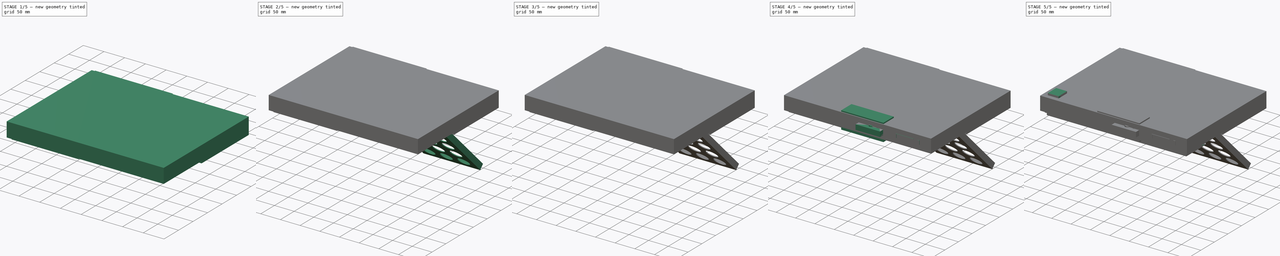
[diagram: build sequence overview — one tinted view per stage of 5, left to right]
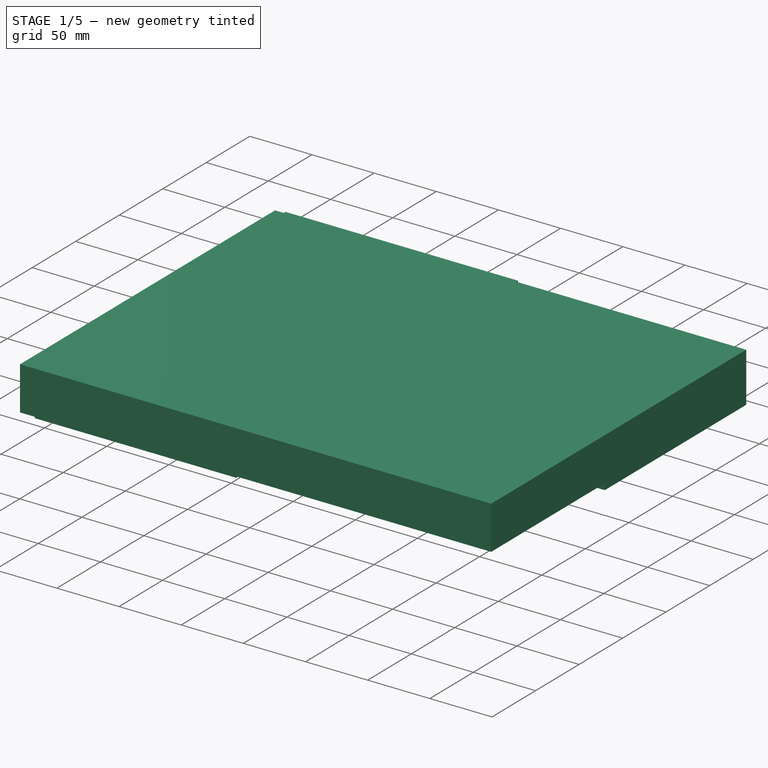
[diagram: stage 1 of 5 — iso view after this stage's code; geometry added in this stage tinted green]
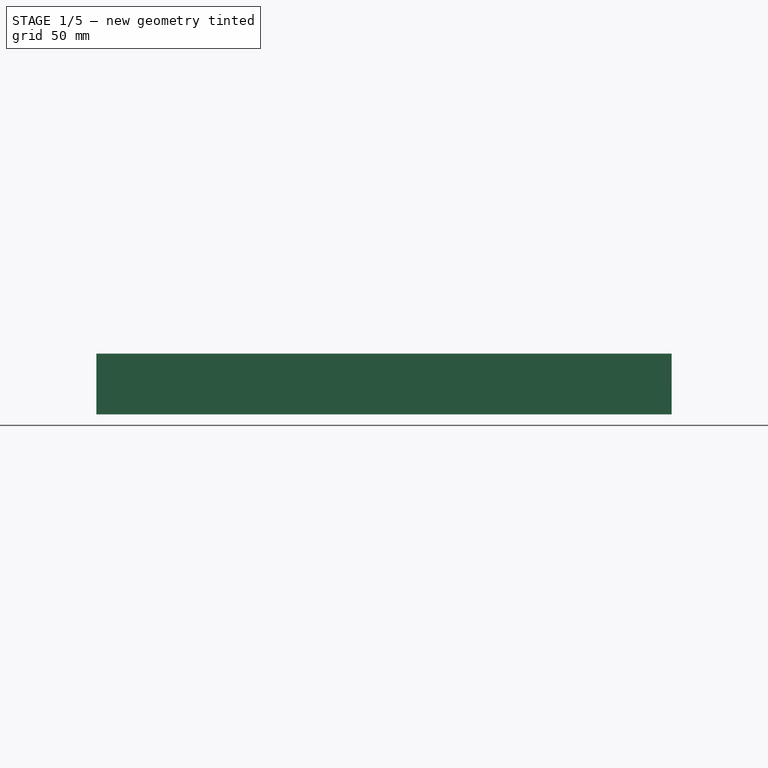
[diagram: stage 1 of 5 — front view after this stage's code; geometry added in this stage tinted green]
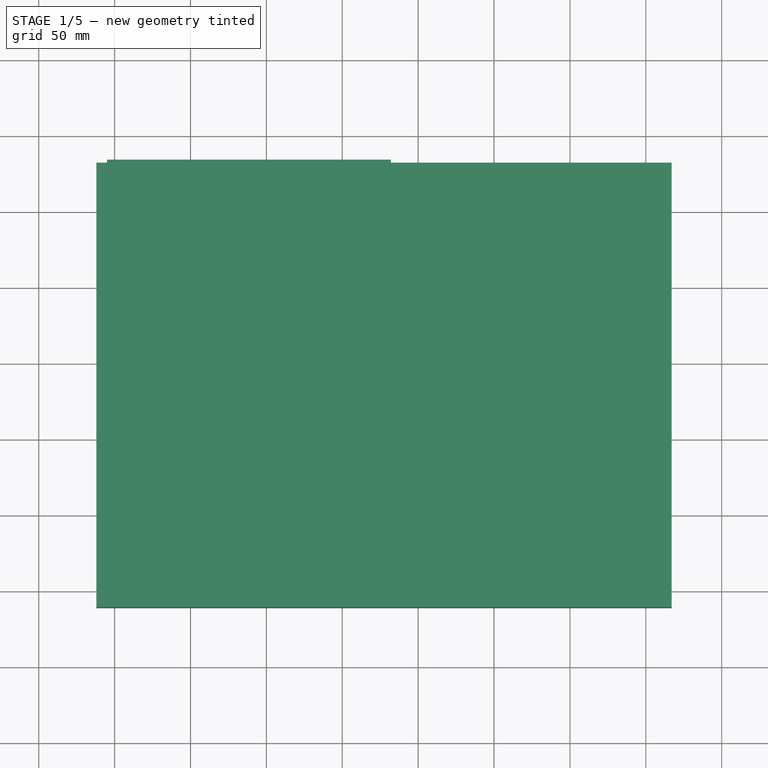
[diagram: stage 1 of 5 — top view after this stage's code; geometry added in this stage tinted green]
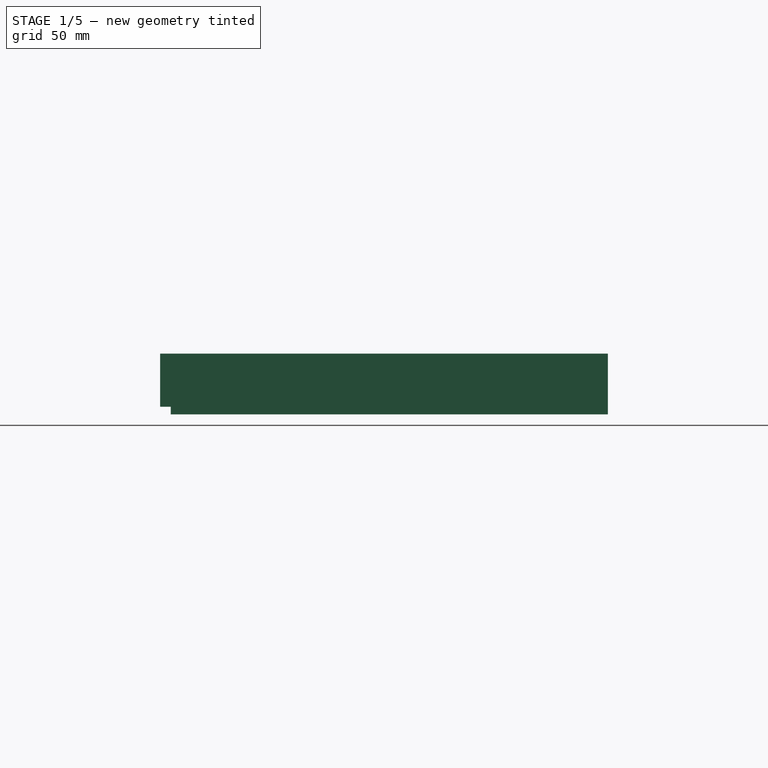
[diagram: stage 1 of 5 — right view after this stage's code; geometry added in this stage tinted green]
FCSTD DOCUMENT  (FreeCAD 0.19R24291 (Git))
Label: enclosure4
License: All rights reserved
LicenseURL: http://en.wikipedia.org/wiki/All_rights_reserved
objects: Sketcher::SketchObject×137, Part::Extrusion×127, PartDesign::FeatureBase×87, PartDesign::Body×87, Part::Compound×34, Part::Cut×12, Part::FeaturePython×7, Part::Mirroring×5, Part::Sweep×4, Part::Box×3, Part::Revolution×2, Spreadsheet::Sheet×1, Part::MultiCommon×1, Part::Cylinder×1, Part::MultiFuse×1
note: 501 computed .brp shape members not serialized (recipe doc carries the construction recipe); baked Part::Feature solids carry a one-line shape summary decoded from their .brp

FEATURE [Sketcher::SketchObject] Sketch032
  FullyConstrained = true
  Placement = pos=(0,0,5.32) rot=(1,0,0;3.14159rad)
  sketch-geometry (12):
    g0: LineSegment StartX=323 StartY=-213.5 StartZ=0 EndX=323 EndY=-239.5 EndZ=0
    g1: LineSegment StartX=323 StartY=-239.5 StartZ=0 EndX=311 EndY=-239.5 EndZ=0
    g2: LineSegment StartX=311 StartY=-239.5 StartZ=0 EndX=311 EndY=-240.5 EndZ=0
    g3: LineSegment StartX=311 StartY=-240.5 StartZ=0 EndX=324 EndY=-240.5 EndZ=0
    g4: LineSegment StartX=324 StartY=-240.5 StartZ=0 EndX=324 EndY=-213.5 EndZ=0
    g5: LineSegment StartX=324 StartY=-213.5 StartZ=0 EndX=323 EndY=-213.5 EndZ=0
    g6: LineSegment StartX=218 StartY=-213.5 StartZ=0 EndX=219 EndY=-213.5 EndZ=0
    g7: LineSegment StartX=219 StartY=-213.5 StartZ=0 EndX=219 EndY=-239.5 EndZ=0
    g8: LineSegment StartX=219 StartY=-239.5 StartZ=0 EndX=231 EndY=-239.5 EndZ=0
    g9: LineSegment StartX=231 StartY=-239.5 StartZ=0 EndX=231 EndY=-240.5 EndZ=0
    g10: LineSegment StartX=231 StartY=-240.5 StartZ=0 EndX=218 EndY=-240.5 EndZ=0
    g11: LineSegment StartX=218 StartY=-240.5 StartZ=0 EndX=218 EndY=-213.5 EndZ=0
  constraints (36):
    c: Vertical(g0)
    c: Coincident(g0,g1)
    c: Horizontal(g1)
    c: Coincident(g1,g2)
    c: Vertical(g2)
    c: Coincident(g2,g3)
    c: Horizontal(g3)
    c: Coincident(g3,g4)
    c: Vertical(g4)
    c: Coincident(g4,g5)
    c: Coincident(g5,g0)
    c: Horizontal(g6)
    c: Coincident(g6,g7)
    c: Vertical(g7)
    c: Coincident(g7,g8)
    c: Horizontal(g8)
    c: Coincident(g8,g9)
    c: Vertical(g9)
    c: Coincident(g9,g10)
    c: Horizontal(g10)
    c: Coincident(g10,g11)
    c: Coincident(g11,g6)
    c: Vertical(g11)
    c: DistanceX(g6,g6) = 1
    c: DistanceX(g6) = 219
    c: DistanceY(g6) = -213.5
    c: DistanceY(g7,g7) = 26
    c: DistanceY(g10,g7) = 1
    c: DistanceX(g8,g8) = 12
    c: Horizontal(g5)
    c: Horizontal(g0,g6)
    c: Horizontal(g9,g2)
    c: DistanceY(g2,g2) = 1
    c: DistanceX(g5,g5) = 1
    c: DistanceX(g7,g0) = 104
    c: DistanceX(g1,g1) = 12
FEATURE [Part::Extrusion] Extrude026  label="jetson align"
  Base = -> Sketch032
  Dir = (0,1e-16,-1)
  DirMode = 2
  FaceMakerClass = Part::FaceMakerBullseye
  LengthFwd = 1
  LengthRev = 0
  Solid = true
  Symmetric = false
FEATURE [Sketcher::SketchObject] Sketch033
  FullyConstrained = true
  Placement = pos=(0,0,7.32) rot=(1,0,0;3.14159rad)
  sketch-geometry (4):
    g0: LineSegment StartX=-3.5 StartY=-213.5 StartZ=0 EndX=361.5 EndY=-213.5 EndZ=0
    g1: LineSegment StartX=361.5 StartY=-213.5 StartZ=0 EndX=361.5 EndY=-279.5 EndZ=0
    g2: LineSegment StartX=361.5 StartY=-279.5 StartZ=0 EndX=-3.5 EndY=-279.5 EndZ=0
    g3: LineSegment StartX=-3.5 StartY=-279.5 StartZ=0 EndX=-3.5 EndY=-213.5 EndZ=0
  constraints (12):
    c: Coincident(g0,g1)
    c: Coincident(g1,g2)
    c: Coincident(g2,g3)
    c: Coincident(g3,g0)
    c: Horizontal(g0)
    c: Horizontal(g2)
    c: Vertical(g1)
    c: Vertical(g3)
    c: DistanceX(g0) = -3.5
    c: DistanceY(g0) = -213.5
    c: DistanceY(g3,g3) = 66
    c: DistanceX(g0,g0) = 365
FEATURE [Part::Extrusion] Extrude027  label="bottom002"
  Base = -> Sketch033
  Dir = (0,0,-1)
  DirMode = 2
  FaceMakerClass = Part::FaceMakerBullseye
  LengthFwd = 2
  LengthRev = 0
  Solid = true
  Symmetric = false
FEATURE [Sketcher::SketchObject] Sketch034
  FullyConstrained = true
  Placement = pos=(0,0,4.32) rot=(1,0,0;3.14159rad)
  sketch-geometry (4):
    g0: LineSegment StartX=236 StartY=-218 StartZ=0 EndX=302 EndY=-218 EndZ=0
    g1: LineSegment StartX=302 StartY=-218 StartZ=0 EndX=302 EndY=-264 EndZ=0
    g2: LineSegment StartX=302 StartY=-264 StartZ=0 EndX=236 EndY=-264 EndZ=0
    g3: LineSegment StartX=236 StartY=-264 StartZ=0 EndX=236 EndY=-218 EndZ=0
  constraints (12):
    c: Coincident(g0,g1)
    c: Coincident(g1,g2)
    c: Coincident(g2,g3)
    c: Coincident(g3,g0)
    c: Horizontal(g0)
    c: Horizontal(g2)
    c: Vertical(g1)
    c: Vertical(g3)
    c: DistanceX(g0) = 236
    c: DistanceY(g0) = -218
    c: DistanceX(g0,g0) = 66
    c: DistanceY(g3,g3) = 46
FEATURE [Part::Extrusion] Extrude028  label="jetson heatsink"
  Base = -> Sketch034
  Dir = (0,0,-1)
  DirMode = 2
  FaceMakerClass = Part::FaceMakerBullseye
  LengthFwd = 0
  LengthRev = 4
  Solid = true
  Symmetric = false
FEATURE [Sketcher::SketchObject] Sketch035
  FullyConstrained = true
  Placement = pos=(0,0,1) rot=(0,0,1;0rad)
  sketch-geometry (4):
    g0: LineSegment StartX=0 StartY=0 StartZ=0 EndX=2 EndY=0 EndZ=0
    g1: LineSegment StartX=2 StartY=0 StartZ=0 EndX=2 EndY=2 EndZ=0
    g2: LineSegment StartX=2 StartY=2 StartZ=0 EndX=0 EndY=2 EndZ=0
    g3: LineSegment StartX=0 StartY=2 StartZ=0 EndX=0 EndY=0 EndZ=0
  constraints (11):
    c: Coincident(g0,g1)
    c: Coincident(g1,g2)
    c: Coincident(g2,g3)
    c: Coincident(g3,g0)
    c: Horizontal(g0)
    c: Horizontal(g2)
    c: Vertical(g1)
    c: Vertical(g3)
    c: Coincident(g0,g-1)
    c: DistanceX(g2,g2) = 2
    c: DistanceY(g1,g1) = 2
FEATURE [Part::Extrusion] Extrude029
  Base = -> Sketch035
  Dir = (0,0,1)
  DirMode = 2
  FaceMakerClass = Part::FaceMakerBullseye
  LengthFwd = 4
  LengthRev = 0
  Solid = true
  Symmetric = false
FEATURE [Part::FeaturePython] Array005  label="speaker grill"  # Draft array (typed FeaturePython)
  Angle = 360
  ArrayType = 0
  Axis = (0,0,1)
  Base = -> Extrude029
  Center = (0,0,0)
  Count = 36
  ExpandArray = false
  Fuse = false
  IntervalAxis = (0,0,0)
  IntervalX = (4,0,0)
  IntervalY = (0,4,0)
  IntervalZ = (0,0,100)
  NumberCircles = 3
  NumberPolar = 5
  NumberX = 6
  NumberY = 6
  NumberZ = 1
  PlacementList = 36 placements: [(0,0,0),(0,4,0),(0,8,0),(0,12,0),(0,16,0),(0,20,0),(4,0,0),(4,4,0),(4,8,0),(4,12,0),(4,16,0),(4,20,0),(8,0,0),(8,4,0),(8,8,0),(8,12,0),(8,16,0),(8,20,0),(12,0,0),(12,4,0),(12,8,0),(12,12,0),(12,16,0),(12,20,0),(16,0,0),(16,4,0),(16,8,0),(16,12,0),(16,16,0),(16,20,0),(20,0,0),(20,4,0),(20,8,0),(20,12,0),(20,16,0),(20,20,0)]
  RadialDistance = 50
  ScaleList = (36) [(1,1,1),(1,1,1),(1,1,1),(1,1,1),(1,1,1),(1,1,1),(1,1,1),(1,1,1),(1,1,1),(1,1,1),(1,1,1),(1,1,1),(1,1,1),(1,1,1),(1,1,1),(1,1,1),(1,1,1),(1,1,1),+18 more]
  Symmetry = 1
  TangentialDistance = 25
FEATURE [PartDesign::FeatureBase] Clone017
  BaseFeature = -> Array005
FEATURE [PartDesign::Body] Body017  label="speaker grill001"
  BaseFeature = -> Array005
  Group = -> [Clone017]
  Origin = -> Origin017
  Placement = pos=(3.5,226,4) rot=(0,0,1;0rad)
  Tip = -> Clone017
FEATURE [PartDesign::FeatureBase] Clone018
  BaseFeature = -> Array005
FEATURE [PartDesign::Body] Body020  label="screw hole003"
  BaseFeature = -> Extrude
  Group = -> [Clone020]
  Origin = -> Origin020
  Placement = pos=(330,209,-3.68) rot=(0.57735,0.57735,-0.57735;2.0944rad)
  Tip = -> Clone020
FEATURE [Sketcher::SketchObject] Sketch036
  FullyConstrained = true
  Placement = pos=(0,0,5.32) rot=(1,0,0;3.14159rad)
  expr: Constraints[1] = Spreadsheet.m2_r3
  expr: Constraints[0] = Spreadsheet.m2_r3
  sketch-geometry (10):
    g0: Circle CenterX=15.5 CenterY=-218.5 CenterZ=0 NormalX=0 NormalY=0 NormalZ=1 AngleXU=0 Radius=1.05
    g1: Circle CenterX=15.5 CenterY=-255.5 CenterZ=0 NormalX=0 NormalY=0 NormalZ=1 AngleXU=0 Radius=1.05
    g2: LineSegment StartX=11.5 StartY=-214.5 StartZ=0 EndX=19.5 EndY=-214.5 EndZ=0
    g3: LineSegment StartX=19.5 StartY=-214.5 StartZ=0 EndX=19.5 EndY=-222.5 EndZ=0
    g4: LineSegment StartX=19.5 StartY=-222.5 StartZ=0 EndX=11.5 EndY=-222.5 EndZ=0
    g5: LineSegment StartX=11.5 StartY=-222.5 StartZ=0 EndX=11.5 EndY=-214.5 EndZ=0
    g6: LineSegment StartX=11.5 StartY=-251.5 StartZ=0 EndX=19.5 EndY=-251.5 EndZ=0
    g7: LineSegment StartX=19.5 StartY=-251.5 StartZ=0 EndX=19.5 EndY=-259.5 EndZ=0
    g8: LineSegment StartX=19.5 StartY=-259.5 StartZ=0 EndX=11.5 EndY=-259.5 EndZ=0
    g9: LineSegment StartX=11.5 StartY=-259.5 StartZ=0 EndX=11.5 EndY=-251.5 EndZ=0
  constraints (30):
    c: Radius(g1) = 1.05
    c: Radius(g0) = 1.05
    c: Vertical(g0,g1)
    c: DistanceY(g0) = -218.5
    c: DistanceY(g1,g0) = 37
    c: DistanceX(g0) = 15.5
    c: Coincident(g2,g3)
    c: Coincident(g3,g4)
    c: Coincident(g4,g5)
    c: Coincident(g5,g2)
    c: Horizontal(g2)
    c: Horizontal(g4)
    c: Vertical(g3)
    c: Vertical(g5)
    c: DistanceX(g2,g2) = 8
    c: DistanceY(g5,g5) = 8
    c: DistanceX(g0,g2) = 4
    c: DistanceY(g0,g2) = 4
    c: Coincident(g6,g7)
    c: Coincident(g7,g8)
    c: Coincident(g8,g9)
    c: Coincident(g9,g6)
    c: Horizontal(g6)
    c: Horizontal(g8)
    c: Vertical(g7)
    c: Vertical(g9)
    c: Vertical(g6,g3)
    c: Vertical(g4,g6)
    c: DistanceY(g7,g7) = 8
    c: DistanceY(g7,g1) = 4
FEATURE [Part::Extrusion] Extrude030  label="speaker standoff"
  Base = -> Sketch036
  Dir = (0,0,-1)
  DirMode = 2
  FaceMakerClass = Part::FaceMakerBullseye
  LengthFwd = 7.32
  LengthRev = 0
  Placement = pos=(-1,0,0) rot=(0,0,1;0rad)
  Solid = true
  Symmetric = false
FEATURE [PartDesign::FeatureBase] Clone021
  BaseFeature = -> Extrude030
FEATURE [PartDesign::Body] Body021  label="speaker standoff001"
  BaseFeature = -> Extrude030
  Group = -> [Clone021]
  Origin = -> Origin021
  Placement = pos=(328,0,0) rot=(0,0,1;0rad)
  Tip = -> Clone021
FEATURE [Sketcher::SketchObject] Sketch037
  FullyConstrained = true
  Placement = pos=(0,0,6.32) rot=(1,0,0;3.14159rad)
  sketch-geometry (16):
    g0: LineSegment StartX=361.5 StartY=-213.5 StartZ=0 EndX=361.5 EndY=-278.5 EndZ=0
    g1: LineSegment StartX=-3.5 StartY=-278.5 StartZ=0 EndX=-3.5 EndY=-213.5 EndZ=0
    g2: LineSegment StartX=-3.5 StartY=-213.5 StartZ=0 EndX=-0.5 EndY=-213.5 EndZ=0
    g3: LineSegment StartX=-1.5 StartY=-215.5 StartZ=0 EndX=-1.5 EndY=-276.5 EndZ=0
    g4: LineSegment StartX=361.5 StartY=-213.5 StartZ=0 EndX=358.5 EndY=-213.5 EndZ=0
    g5: LineSegment StartX=359.5 StartY=-215.5 StartZ=0 EndX=359.5 EndY=-276.5 EndZ=0
    g6: LineSegment StartX=-1.5 StartY=-276.5 StartZ=0 EndX=47 EndY=-276.5 EndZ=0
    g7: LineSegment StartX=47 StartY=-276.5 StartZ=0 EndX=47 EndY=-278.5 EndZ=0
    g8: LineSegment StartX=47 StartY=-278.5 StartZ=0 EndX=-3.5 EndY=-278.5 EndZ=0
    g9: LineSegment StartX=359.5 StartY=-276.5 StartZ=0 EndX=215 EndY=-276.5 EndZ=0
    g10: LineSegment StartX=215 StartY=-276.5 StartZ=0 EndX=215 EndY=-278.5 EndZ=0
    g11: LineSegment StartX=215 StartY=-278.5 StartZ=0 EndX=361.5 EndY=-278.5 EndZ=0
    g12: LineSegment StartX=-0.5 StartY=-213.5 StartZ=0 EndX=-0.5 EndY=-215.5 EndZ=0
    g13: LineSegment StartX=-0.5 StartY=-215.5 StartZ=0 EndX=-1.5 EndY=-215.5 EndZ=0
    g14: LineSegment StartX=359.5 StartY=-215.5 StartZ=0 EndX=358.5 EndY=-215.5 EndZ=0
    g15: LineSegment StartX=358.5 StartY=-215.5 StartZ=0 EndX=358.5 EndY=-213.5 EndZ=0
  constraints (48):
    c: Vertical(g0)
    c: Vertical(g1)
    c: DistanceX(g1) = -3.5
    c: DistanceX(g1,g0) = 365
    c: Coincident(g1,g2)
    c: DistanceY(g1,g3) = 2
    c: Vertical(g3)
    c: Coincident(g0,g4)
    c: Horizontal(g4)
    c: Vertical(g5)
    c: Horizontal(g4,g2)
    c: Horizontal(g2)
    c: DistanceY(g1) = -278.5
    c: DistanceY(g1,g1) = 65
    c: Coincident(g3,g6)
    c: Horizontal(g6)
    c: Coincident(g6,g7)
    c: Vertical(g7)
    c: Coincident(g7,g8)
    c: Coincident(g8,g1)
    c: Horizontal(g8)
    c: Coincident(g5,g9)
    c: Horizontal(g9)
    c: Coincident(g9,g10)
    c: Vertical(g10)
    c: Coincident(g10,g11)
    c: Coincident(g11,g0)
    c: Horizontal(g11)
    c: Horizontal(g9,g6)
    c: Horizontal(g7,g10)
    c: DistanceX(g6,g6) = 48.5
    c: DistanceX(g9,g9) = 144.5
    c: DistanceX(g1,g3) = 2
    c: DistanceY(g3,g1) = 2
    c: Coincident(g2,g12)
    c: Vertical(g12)
    c: Coincident(g12,g13)
    c: Coincident(g13,g3)
    c: Horizontal(g13)
    c: DistanceX(g13,g13) = 1
    c: DistanceX(g5,g0) = 2
    c: DistanceY(g5,g0) = 2
    c: Coincident(g5,g14)
    c: Horizontal(g14)
    c: Coincident(g14,g15)
    c: Coincident(g15,g4)
    c: Vertical(g15)
    c: DistanceX(g14,g14) = 1
FEATURE [Part::Extrusion] Extrude031  label="side002"
  Base = -> Sketch037
  Dir = (0,0,-1)
  DirMode = 2
  FaceMakerClass = Part::FaceMakerBullseye
  LengthFwd = 18.32
  LengthRev = 0
  Solid = true
  Symmetric = false
FEATURE [Sketcher::SketchObject] Sketch038
  FullyConstrained = true
  Placement = pos=(0,0,6.32) rot=(1,0,0;3.14159rad)
  sketch-geometry (4):
    g0: LineSegment StartX=36.5 StartY=-211.5 StartZ=0 EndX=36.5 EndY=-276.5 EndZ=0
    g1: LineSegment StartX=36.5 StartY=-276.5 StartZ=0 EndX=34.5 EndY=-276.5 EndZ=0
    g2: LineSegment StartX=34.5 StartY=-276.5 StartZ=0 EndX=34.5 EndY=-211.5 EndZ=0
    g3: LineSegment StartX=34.5 StartY=-211.5 StartZ=0 EndX=36.5 EndY=-211.5 EndZ=0
  constraints (12):
    c: Vertical(g0)
    c: Coincident(g0,g1)
    c: Coincident(g1,g2)
    c: Vertical(g2)
    c: DistanceX(g1,g1) = 2
    c: Horizontal(g1)
    c: Horizontal(g0,g2)
    c: Coincident(g3,g2)
    c: Coincident(g3,g0)
    c: DistanceY(g2) = -211.5
    c: DistanceX(g2) = 34.5
    c: DistanceY(g1) = -276.5
FEATURE [Part::Extrusion] Extrude032  label="stringer013"
  Base = -> Sketch038
  Dir = (0,0,-1)
  DirMode = 2
  FaceMakerClass = Part::FaceMakerBullseye
  LengthFwd = 18.32
  LengthRev = 0
  Solid = true
  Symmetric = false
FEATURE [PartDesign::Body] Body023  label="screw hole002"
  BaseFeature = -> Extrude
  Group = -> [Clone023]
  Origin = -> Origin023
  Placement = pos=(356,146,-3.68) rot=(0.707107,0,-0.707107;3.14159rad)
  Tip = -> Clone023
FEATURE [Sketcher::SketchObject] Sketch040
  FullyConstrained = true
  Placement = pos=(0,0,6.32) rot=(1,0,0;3.14159rad)
  sketch-geometry (4):
    g0: LineSegment StartX=218 StartY=-276.5 StartZ=0 EndX=218 EndY=-211.5 EndZ=0
    g1: LineSegment StartX=218 StartY=-276.5 StartZ=0 EndX=216 EndY=-276.5 EndZ=0
    g2: LineSegment StartX=216 StartY=-276.5 StartZ=0 EndX=216 EndY=-211.5 EndZ=0
    g3: LineSegment StartX=216 StartY=-211.5 StartZ=0 EndX=218 EndY=-211.5 EndZ=0
  constraints (12):
    c: Vertical(g0)
    c: Coincident(g0,g1)
    c: Horizontal(g1)
    c: Coincident(g1,g2)
    c: Vertical(g2)
    c: DistanceX(g1,g1) = 2
    c: DistanceX(g0) = 218
    c: Coincident(g3,g0)
    c: Horizontal(g3)
    c: DistanceY(g0) = -211.5
    c: Coincident(g2,g3)
    c: DistanceY(g1) = -276.5
FEATURE [Part::Extrusion] Extrude034  label="stringer014"
  Base = -> Sketch040
  Dir = (0,0,-1)
  DirMode = 2
  FaceMakerClass = Part::FaceMakerBullseye
  LengthFwd = 8.32
  LengthRev = 0
  Solid = true
  Symmetric = false
FEATURE [Sketcher::SketchObject] Sketch059
  FullyConstrained = true
  Placement = pos=(0,115,0) rot=(1,0,0;1.5708rad)
  sketch-geometry (6):
    g0: LineSegment StartX=-1.5 StartY=6.32 StartZ=0 EndX=7 EndY=6.32 EndZ=0
    g1: LineSegment StartX=7 StartY=6.32 StartZ=0 EndX=7 EndY=5.32 EndZ=0
    g2: LineSegment StartX=7 StartY=5.32 StartZ=0 EndX=-0.5 EndY=5.32 EndZ=0
    g3: LineSegment StartX=-0.5 StartY=5.32 StartZ=0 EndX=-0.5 EndY=-11 EndZ=0
    g4: LineSegment StartX=-0.5 StartY=-11 StartZ=0 EndX=-1.5 EndY=-11 EndZ=0
    g5: LineSegment StartX=-1.5 StartY=-11 StartZ=0 EndX=-1.5 EndY=6.32 EndZ=0
  constraints (18):
    c: Horizontal(g0)
    c: Coincident(g0,g1)
    c: Vertical(g1)
    c: Coincident(g1,g2)
    c: Horizontal(g2)
    c: Coincident(g2,g3)
    c: Vertical(g3)
    c: Coincident(g3,g4)
    c: Horizontal(g4)
    c: Coincident(g4,g5)
    c: Coincident(g5,g0)
    c: Vertical(g5)
    c: DistanceX(g0) = -1.5
    c: DistanceY(g0) = 6.32
    c: DistanceY(g1,g1) = 1
    c: DistanceX(g4,g4) = 1
    c: DistanceY(g4) = -11
    c: DistanceX(g0,g0) = 8.5
FEATURE [Part::Extrusion] Extrude049  label="joiner"
  Base = -> Sketch059
  Dir = (0,-1,2e-16)
  DirMode = 2
  FaceMakerClass = Part::FaceMakerBullseye
  LengthFwd = 20
  LengthRev = 0
  Placement = pos=(0,15,0) rot=(0,0,1;0rad)
  Solid = true
  Symmetric = false
FEATURE [PartDesign::FeatureBase] Clone036
  BaseFeature = -> Extrude049
FEATURE [PartDesign::Body] Body036  label="joiner001"
  BaseFeature = -> Extrude049
  Group = -> [Clone036]
  Origin = -> Origin036
  Placement = pos=(358,225,0) rot=(0,0,1;3.14159rad)
  Tip = -> Clone036
FEATURE [Sketcher::SketchObject] Sketch060
  FullyConstrained = true
  Placement = pos=(167,0,0) rot=(0.57735,0.57735,0.57735;2.0944rad)
  sketch-geometry (6):
    g0: LineSegment StartX=-0.5 StartY=6.32 StartZ=0 EndX=8 EndY=6.32 EndZ=0
    g1: LineSegment StartX=8 StartY=6.32 StartZ=0 EndX=8 EndY=5.32 EndZ=0
    g2: LineSegment StartX=8 StartY=5.32 StartZ=0 EndX=0.5 EndY=5.32 EndZ=0
    g3: LineSegment StartX=0.5 StartY=5.32 StartZ=0 EndX=0.5 EndY=-11 EndZ=0
    g4: LineSegment StartX=0.5 StartY=-11 StartZ=0 EndX=-0.5 EndY=-11 EndZ=0
    g5: LineSegment StartX=-0.5 StartY=-11 StartZ=0 EndX=-0.5 EndY=6.32 EndZ=0
  constraints (18):
    c: Horizontal(g0)
    c: Coincident(g0,g1)
    c: Vertical(g1)
    c: Coincident(g1,g2)
    c: Horizontal(g2)
    c: Coincident(g2,g3)
    c: Vertical(g3)
    c: Coincident(g3,g4)
    c: Horizontal(g4)
    c: Coincident(g4,g5)
    c: Coincident(g5,g0)
    c: Vertical(g5)
    c: DistanceY(g1,g1) = 1
    c: DistanceX(g4,g4) = 1
    c: DistanceY(g0) = 6.32
    c: DistanceY(g5,g5) = 17.32
    c: DistanceX(g0,g0) = 8.5
    c: DistanceX(g0) = -0.5
FEATURE [Part::Extrusion] Extrude050  label="joiner005"
  Base = -> Sketch060
  Dir = (1,0,0)
  DirMode = 2
  FaceMakerClass = Part::FaceMakerBullseye
  LengthFwd = 0
  LengthRev = 20
  Solid = true
  Symmetric = false
FEATURE [Sketcher::SketchObject] Sketch062
  FullyConstrained = true
  Placement = pos=(178,0,0) rot=(0.57735,0.57735,0.57735;2.0944rad)
  sketch-geometry (4):
    g0: LineSegment StartX=276.5 StartY=6.32 StartZ=0 EndX=276.5 EndY=-19.32 EndZ=0
    g1: LineSegment StartX=276.5 StartY=-19.32 StartZ=0 EndX=277.5 EndY=-19.32 EndZ=0
    g2: LineSegment StartX=277.5 StartY=-19.32 StartZ=0 EndX=277.5 EndY=6.32 EndZ=0
    g3: LineSegment StartX=276.5 StartY=6.32 StartZ=0 EndX=277.5 EndY=6.32 EndZ=0
  constraints (12):
    c: Vertical(g0)
    c: Coincident(g0,g1)
    c: Horizontal(g1)
    c: Coincident(g1,g2)
    c: Vertical(g2)
    c: DistanceY(g2) = 6.32
    c: DistanceX(g1,g1) = 1
    c: DistanceX(g2) = 277.5
    c: DistanceY(g1) = -19.32
    c: Coincident(g3,g0)
    c: Coincident(g3,g2)
    c: Horizontal(g3)
FEATURE [Part::Extrusion] Extrude052  label="joiner009"
  Base = -> Sketch062
  Dir = (1,0,0)
  DirMode = 2
  FaceMakerClass = Part::FaceMakerBullseye
  LengthFwd = 0
  LengthRev = 20
  Solid = true
  Symmetric = false
FEATURE [Sketcher::SketchObject] Sketch065
  FullyConstrained = true
  Placement = pos=(0,257,0) rot=(1,0,0;1.5708rad)
  sketch-geometry (10):
    g0: LineSegment StartX=224 StartY=-22.32 StartZ=0 EndX=226 EndY=-22.32 EndZ=0
    g1: LineSegment StartX=226 StartY=-22.32 StartZ=0 EndX=226 EndY=-20.32 EndZ=0
    g2: LineSegment StartX=226 StartY=-20.32 StartZ=0 EndX=228 EndY=-20.32 EndZ=0
    g3: LineSegment StartX=228 StartY=-20.32 StartZ=0 EndX=228 EndY=6.32 EndZ=0
    g4: LineSegment StartX=228 StartY=6.32 StartZ=0 EndX=219 EndY=6.32 EndZ=0
    g5: LineSegment StartX=219 StartY=6.32 StartZ=0 EndX=219 EndY=-22.32 EndZ=0
    g6: LineSegment StartX=219 StartY=-22.32 StartZ=0 EndX=220.5 EndY=-22.32 EndZ=0
    g7: LineSegment StartX=220.5 StartY=-22.32 StartZ=0 EndX=220.5 EndY=-20.32 EndZ=0
    g8: LineSegment StartX=220.5 StartY=-20.32 StartZ=0 EndX=224 EndY=-20.32 EndZ=0
    g9: LineSegment StartX=224 StartY=-20.32 StartZ=0 EndX=224 EndY=-22.32 EndZ=0
  constraints (30):
    c: Horizontal(g0)
    c: Coincident(g0,g1)
    c: Vertical(g1)
    c: Coincident(g1,g2)
    c: Horizontal(g2)
    c: Coincident(g2,g3)
    c: Vertical(g3)
    c: Coincident(g3,g4)
    c: Horizontal(g4)
    c: Coincident(g4,g5)
    c: Vertical(g5)
    c: Coincident(g5,g6)
    c: Horizontal(g6)
    c: Coincident(g6,g7)
    c: Vertical(g7)
    c: Coincident(g7,g8)
    c: Horizontal(g8)
    c: Coincident(g8,g9)
    c: Coincident(g9,g0)
    c: Vertical(g9)
    c: Horizontal(g8,g1)
    c: DistanceY(g1,g1) = 2
    c: Horizontal(g6,g0)
    c: DistanceX(g6,g6) = 1.5
    c: DistanceX(g0,g0) = 2
    c: DistanceX(g4,g4) = 9
    c: DistanceX(g4) = 219
    c: DistanceX(g2,g2) = 2
    c: DistanceY(g5,g5) = 28.64
    c: DistanceY(g4) = 6.32
FEATURE [Part::Extrusion] Extrude055
  Base = -> Sketch065
  Dir = (0,-1,2e-16)
  DirMode = 2
  FaceMakerClass = Part::FaceMakerBullseye
  LengthFwd = 1
  LengthRev = 1
  Solid = true
  Symmetric = false
FEATURE [Sketcher::SketchObject] Sketch066
  FullyConstrained = true
  Placement = pos=(0,261,0) rot=(1,0,0;1.5708rad)
  sketch-geometry (4):
    g0: LineSegment StartX=220.5 StartY=6.32 StartZ=0 EndX=219 EndY=6.32 EndZ=0
    g1: LineSegment StartX=219 StartY=6.32 StartZ=0 EndX=219 EndY=-22.32 EndZ=0
    g2: LineSegment StartX=219 StartY=-22.32 StartZ=0 EndX=220.5 EndY=-22.32 EndZ=0
    g3: LineSegment StartX=220.5 StartY=-22.32 StartZ=0 EndX=220.5 EndY=6.32 EndZ=0
  constraints (12):
    c: Horizontal(g0)
    c: Coincident(g0,g1)
    c: Vertical(g1)
    c: Coincident(g1,g2)
    c: Horizontal(g2)
    c: Coincident(g2,g3)
    c: Vertical(g3)
    c: DistanceX(g2,g2) = 1.5
    c: DistanceX(g0) = 219
    c: Coincident(g0,g3)
    c: DistanceY(g1,g1) = 28.64
    c: DistanceY(g0) = 6.32
FEATURE [Part::Extrusion] Extrude056
  Base = -> Sketch066
  Dir = (0,-1,2e-16)
  DirMode = 2
  FaceMakerClass = Part::FaceMakerBullseye
  LengthFwd = 15
  LengthRev = 0
  Solid = true
  Symmetric = false
FEATURE [Sketcher::SketchObject] Sketch067
  FullyConstrained = true
  Placement = pos=(0,0,6.32) rot=(1,0,0;3.14159rad)
  sketch-geometry (8):
    g0: LineSegment StartX=321.5 StartY=-246 StartZ=0 EndX=323 EndY=-246 EndZ=0
    g1: LineSegment StartX=323 StartY=-246 StartZ=0 EndX=323 EndY=-263 EndZ=0
    g2: LineSegment StartX=323 StartY=-263 StartZ=0 EndX=310 EndY=-263 EndZ=0
    g3: LineSegment StartX=310 StartY=-263 StartZ=0 EndX=310 EndY=-256 EndZ=0
    g4: LineSegment StartX=310 StartY=-256 StartZ=0 EndX=312 EndY=-256 EndZ=0
    g5: LineSegment StartX=312 StartY=-256 StartZ=0 EndX=312 EndY=-261.5 EndZ=0
    g6: LineSegment StartX=312 StartY=-261.5 StartZ=0 EndX=321.5 EndY=-261.5 EndZ=0
    g7: LineSegment StartX=321.5 StartY=-261.5 StartZ=0 EndX=321.5 EndY=-246 EndZ=0
  constraints (24):
    c: Horizontal(g0)
    c: Coincident(g0,g1)
    c: Vertical(g1)
    c: Coincident(g1,g2)
    c: Horizontal(g2)
    c: Coincident(g2,g3)
    c: Vertical(g3)
    c: Coincident(g3,g4)
    c: Horizontal(g4)
    c: Coincident(g4,g5)
    c: Vertical(g5)
    c: Coincident(g5,g6)
    c: Horizontal(g6)
    c: Coincident(g6,g7)
    c: Coincident(g7,g0)
    c: Vertical(g7)
    c: DistanceX(g0) = 321.5
    c: DistanceX(g6,g6) = 9.5
    c: DistanceX(g4,g4) = 2
    c: DistanceX(g0,g0) = 1.5
    c: DistanceY(g6) = -261.5
    c: DistanceY(g7,g7) = 15.5
    c: DistanceY(g1,g6) = 1.5
    c: DistanceY(g3,g3) = 7
FEATURE [Part::Extrusion] Extrude057
  Base = -> Sketch067
  Dir = (0,0,-1)
  DirMode = 2
  FaceMakerClass = Part::FaceMakerBullseye
  LengthFwd = 28.64
  LengthRev = 0
  Solid = true
  Symmetric = false
FEATURE [Sketcher::SketchObject] Sketch068
  FullyConstrained = true
  Placement = pos=(311,0,0) rot=(0.57735,0.57735,0.57735;2.0944rad)
  sketch-geometry (4):
    g0: LineSegment StartX=258 StartY=-23.32 StartZ=0 EndX=261.5 EndY=-23.32 EndZ=0
    g1: LineSegment StartX=261.5 StartY=-23.32 StartZ=0 EndX=261.5 EndY=-20.32 EndZ=0
    g2: LineSegment StartX=261.5 StartY=-20.32 StartZ=0 EndX=258 EndY=-20.32 EndZ=0
    g3: LineSegment StartX=258 StartY=-20.32 StartZ=0 EndX=258 EndY=-23.32 EndZ=0
  constraints (12):
    c: Coincident(g0,g1)
    c: Coincident(g1,g2)
    c: Coincident(g2,g3)
    c: Coincident(g3,g0)
    c: Horizontal(g0)
    c: Horizontal(g2)
    c: Vertical(g1)
    c: Vertical(g3)
    c: DistanceY(g2) = -20.32
    c: DistanceY(g3,g3) = 3
    c: DistanceX(g1) = 261.5
    c: DistanceX(g2,g2) = 3.5
FEATURE [Part::Extrusion] Extrude058
  Base = -> Sketch068
  Dir = (1,0,0)
  DirMode = 2
  FaceMakerClass = Part::FaceMakerBullseye
  LengthFwd = 1
  LengthRev = 1
  Solid = true
  Symmetric = false
FEATURE [Part::Cut] Cut005
  Base = -> Extrude057
  Tool = -> Extrude058
FEATURE [Part::Compound] Compound015  label="jetson003"
  Links = -> [Extrude026,Extrude055,Extrude056,Cut005]
FEATURE [Sketcher::SketchObject] Sketch076
  FullyConstrained = true
  Placement = pos=(47,0,0) rot=(0.57735,0.57735,0.57735;2.0944rad)
  sketch-geometry (6):
    g0: Circle CenterX=275.34 CenterY=-23.84 CenterZ=0 NormalX=0 NormalY=0 NormalZ=1 AngleXU=0 Radius=1.16
    g1: ArcOfCircle CenterX=275.34 CenterY=-23.84 CenterZ=0 NormalX=0 NormalY=0 NormalZ=1 AngleXU=0 Radius=3.16 StartAngle=2.35619 EndAngle=6.28319
    g2: LineSegment StartX=273.106 StartY=-21.6055 StartZ=0 EndX=276.5 EndY=-18.2111 EndZ=0
    g3: LineSegment StartX=276.5 StartY=-18.2111 StartZ=0 EndX=276.5 EndY=-15 EndZ=0
    g4: LineSegment StartX=276.5 StartY=-15 StartZ=0 EndX=278.5 EndY=-15 EndZ=0
    g5: LineSegment StartX=278.5 StartY=-15 StartZ=0 EndX=278.5 EndY=-23.84 EndZ=0
  constraints (18):
    c: Radius(g0) = 1.16
    c: DistanceX(g0) = 275.34
    c: DistanceY(g0) = -23.84
    c: Coincident(g1,g0)
    c: Coincident(g2,g3)
    c: Vertical(g3)
    c: Coincident(g3,g4)
    c: Horizontal(g4)
    c: Coincident(g4,g5)
    c: Coincident(g5,g1)
    c: Vertical(g5)
    c: DistanceX(g4,g4) = 2
    c: Horizontal(g1,g0)
    c: Angle(g2,g3,g2) = 0.785398
    c: Coincident(g2,g1)
    c: Radius(g1) = 3.16
    c: Tangent(g1,g2,g1) = 1.5708
    c: DistanceY(g3) = -15
FEATURE [Part::Extrusion] Extrude068
  Base = -> Sketch076
  Dir = (1,0,0)
  DirMode = 2
  FaceMakerClass = Part::FaceMakerBullseye
  LengthFwd = 175
  LengthRev = 0
  Solid = true
  Symmetric = false
FEATURE [Sketcher::SketchObject] Sketch077
  FullyConstrained = true
  Placement = pos=(0,280,0) rot=(0,0.707107,0.707107;3.14159rad)
  sketch-geometry (8):
    g0: LineSegment StartX=-46 StartY=-28 StartZ=0 EndX=-71 EndY=-28 EndZ=0
    g1: LineSegment StartX=-71 StartY=-28 StartZ=0 EndX=-71 EndY=-13 EndZ=0
    g2: LineSegment StartX=-71 StartY=-13 StartZ=0 EndX=-46 EndY=-13 EndZ=0
    g3: LineSegment StartX=-46 StartY=-13 StartZ=0 EndX=-46 EndY=-28 EndZ=0
    g4: LineSegment StartX=-215 StartY=-13 StartZ=0 EndX=-190 EndY=-13 EndZ=0
    g5: LineSegment StartX=-190 StartY=-13 StartZ=0 EndX=-190 EndY=-28 EndZ=0
    g6: LineSegment StartX=-190 StartY=-28 StartZ=0 EndX=-215 EndY=-28 EndZ=0
    g7: LineSegment StartX=-215 StartY=-28 StartZ=0 EndX=-215 EndY=-13 EndZ=0
  constraints (24):
    c: Coincident(g0,g1)
    c: Coincident(g1,g2)
    c: Coincident(g2,g3)
    c: Coincident(g3,g0)
    c: Horizontal(g0)
    c: Horizontal(g2)
    c: Vertical(g1)
    c: Vertical(g3)
    c: DistanceX(g0,g0) = 25
    c: DistanceY(g3,g3) = 15
    c: DistanceY(g0) = -28
    c: DistanceX(g0) = -46
    c: Coincident(g4,g5)
    c: Coincident(g5,g6)
    c: Coincident(g6,g7)
    c: Coincident(g7,g4)
    c: Horizontal(g4)
    c: Horizontal(g6)
    c: Vertical(g5)
    c: Vertical(g7)
    c: DistanceX(g6,g6) = 25
    c: DistanceX(g6) = -215
    c: Horizontal(g5,g0)
    c: Horizontal(g4,g1)
FEATURE [Part::Extrusion] Extrude069
  Base = -> Sketch077
  Dir = (1e-16,1,0)
  DirMode = 2
  FaceMakerClass = Part::FaceMakerBullseye
  LengthFwd = 0
  LengthRev = 10
  Solid = true
  Symmetric = false
FEATURE [Part::MultiCommon] Common  label="battery hinge001"
  Shapes = -> [Extrude068,Extrude069]
FEATURE [PartDesign::Body] Body050  label="magnet001"
  BaseFeature = -> Cylinder
  Group = -> [Clone050]
  Origin = -> Origin050
  Tip = -> Clone050
FEATURE [Sketcher::SketchObject] Sketch104
  FullyConstrained = false
  Placement = pos=(0,0,0) rot=(1,0,0;1.5708rad)
  sketch-geometry (9):
    g0: LineSegment StartX=3.5 StartY=-12 StartZ=0 EndX=3.5 EndY=-8.5 EndZ=0
    g1: LineSegment StartX=3.5 StartY=-8.5 StartZ=0 EndX=0 EndY=-8.5 EndZ=0
    g2: LineSegment StartX=0 StartY=-8.5 StartZ=0 EndX=0 EndY=-7.5 EndZ=0
    g3: LineSegment StartX=4.5 StartY=6.32 StartZ=0 EndX=4.5 EndY=-12 EndZ=0
    g4: LineSegment StartX=4.5 StartY=-12 StartZ=0 EndX=3.5 EndY=-12 EndZ=0
    g5: LineSegment StartX=4.5 StartY=6.32 StartZ=0 EndX=3.5 EndY=6.32 EndZ=0
    g6: LineSegment StartX=3.5 StartY=6.32 StartZ=0 EndX=3.5 EndY=-4 EndZ=0
    g7: LineSegment StartX=3.5 StartY=-4 StartZ=0 EndX=0 EndY=-7.5 EndZ=0
    g8: LineSegment StartX=0 StartY=-7.5 StartZ=0 EndX=0 EndY=-8.5 EndZ=0
  constraints (25):
    c: Coincident(g0,g1)
    c: PointOnObject(g1,g-2)
    c: Coincident(g1,g2)
    c: Vertical(g3)
    c: Coincident(g3,g4)
    c: Coincident(g4,g0)
    c: Horizontal(g4)
    c: DistanceY(g0,g0) = 3.5
    c: DistanceX(g4,g4) = 1
    c: DistanceX(g1,g1) = 3.5
    c: Coincident(g3,g5)
    c: Coincident(g5,g6)
    c: Vertical(g6)
    c: Coincident(g6,g7)
    c: Coincident(g7,g8)
    c: Coincident(g8,g1)
    c: Coincident(g2,g7)
    c: Angle(g7,g6,g6) = 0.785398
    c: Vertical(g6,g0)
    c: DistanceY(g2,g2) = 1
    c: Vertical(g2)
    c: Horizontal(g1)
    c: Vertical(g0)
    c: Horizontal(g5)
    c: DistanceY(g0) = -12
FEATURE [Part::Revolution] Revolve  label="magnet front"
  Angle = 360
  Axis = (0,0,1)
  Base = (0,0,0)
  FaceMakerClass = Part::FaceMakerBullseye
  Solid = false
  Source = -> Sketch104
  Symmetric = false
FEATURE [PartDesign::FeatureBase] Clone051
  BaseFeature = -> Revolve
FEATURE [PartDesign::Body] Body051  label="front magnet"
  BaseFeature = -> Revolve
  Group = -> [Clone051]
  Origin = -> Origin051
  Placement = pos=(4,272,0) rot=(0,0,1;0rad)
  Tip = -> Clone051
FEATURE [PartDesign::FeatureBase] Clone052
  BaseFeature = -> Revolve
FEATURE [PartDesign::Body] Body052  label="front magnet001"
  BaseFeature = -> Revolve
  Group = -> [Clone052]
  Origin = -> Origin052
  Placement = pos=(222.5,272,0) rot=(0,0,1;0rad)
  Tip = -> Clone052
FEATURE [PartDesign::FeatureBase] Clone053
  BaseFeature = -> Revolve
FEATURE [PartDesign::Body] Body053  label="front magnet002"
  BaseFeature = -> Revolve
  Group = -> [Clone053]
  Origin = -> Origin053
  Placement = pos=(354,272,0) rot=(0,0,1;0rad)
  Tip = -> Clone053
FEATURE [PartDesign::FeatureBase] Clone054
  BaseFeature = -> Revolve
FEATURE [PartDesign::Body] Body054  label="front magnet003"
  BaseFeature = -> Revolve
  Group = -> [Clone054]
  Origin = -> Origin054
  Placement = pos=(30,272,0) rot=(0,0,1;0rad)
  Tip = -> Clone054
FEATURE [Sketcher::SketchObject] Sketch105
  FullyConstrained = true
  Placement = pos=(0,0,5.32) rot=(1,0,0;3.14159rad)
  sketch-geometry (4):
    g0: LineSegment StartX=157.5 StartY=-213.5 StartZ=0 EndX=178.5 EndY=-213.5 EndZ=0
    g1: LineSegment StartX=157.5 StartY=-213.5 StartZ=0 EndX=157.5 EndY=-277.5 EndZ=0
    g2: LineSegment StartX=157.5 StartY=-277.5 StartZ=0 EndX=178.5 EndY=-277.5 EndZ=0
    g3: LineSegment StartX=178.5 StartY=-277.5 StartZ=0 EndX=178.5 EndY=-213.5 EndZ=0
  constraints (12):
    c: Horizontal(g0)
    c: DistanceX(g0,g0) = 21
    c: Vertical(g1)
    c: Coincident(g1,g2)
    c: Coincident(g2,g3)
    c: Vertical(g3)
    c: DistanceX(g0) = 157.5
    c: DistanceY(g0) = -213.5
    c: DistanceY(g1,g0) = 64
    c: Coincident(g1,g0)
    c: Coincident(g3,g0)
    c: Horizontal(g2)
FEATURE [Part::Extrusion] Extrude096
  Base = -> Sketch105
  Dir = (0,0,-1)
  DirMode = 2
  FaceMakerClass = Part::FaceMakerBullseye
  LengthFwd = 0
  LengthRev = 1
  Solid = true
  Symmetric = false
FEATURE [Sketcher::SketchObject] Sketch106
  FullyConstrained = true
  Placement = pos=(0,0,-20.32) rot=(1,0,0;3.14159rad)
  sketch-geometry (8):
    g0: LineSegment StartX=47 StartY=-278.5 StartZ=0 EndX=215 EndY=-278.5 EndZ=0
    g1: LineSegment StartX=215 StartY=-278.5 StartZ=0 EndX=215 EndY=-276.5 EndZ=0
    g2: LineSegment StartX=47 StartY=-276.5 StartZ=0 EndX=47 EndY=-278.5 EndZ=0
    g3: LineSegment StartX=47 StartY=-276.5 StartZ=0 EndX=157.5 EndY=-276.5 EndZ=0
    g4: LineSegment StartX=157.5 StartY=-276.5 StartZ=0 EndX=157.5 EndY=-277.5 EndZ=0
    g5: LineSegment StartX=157.5 StartY=-277.5 StartZ=0 EndX=178.5 EndY=-277.5 EndZ=0
    g6: LineSegment StartX=178.5 StartY=-277.5 StartZ=0 EndX=178.5 EndY=-276.5 EndZ=0
    g7: LineSegment StartX=178.5 StartY=-276.5 StartZ=0 EndX=215 EndY=-276.5 EndZ=0
  constraints (24):
    c: Coincident(g0,g1)
    c: Coincident(g2,g0)
    c: Horizontal(g0)
    c: Vertical(g1)
    c: Vertical(g2)
    c: DistanceY(g2,g2) = 2
    c: DistanceY(g2) = -276.5
    c: DistanceX(g2) = 47
    c: DistanceX(g0,g0) = 168
    c: Coincident(g2,g3)
    c: Horizontal(g3)
    c: Coincident(g3,g4)
    c: Vertical(g4)
    c: Coincident(g4,g5)
    c: Horizontal(g5)
    c: Coincident(g5,g6)
    c: Vertical(g6)
    c: Coincident(g6,g7)
    c: Coincident(g7,g1)
    c: Horizontal(g7)
    c: Horizontal(g3,g6)
    c: DistanceX(g7,g7) = 36.5
    c: DistanceX(g5,g5) = 21
    c: DistanceY(g6,g6) = 1
FEATURE [Part::Extrusion] Extrude097  label="battery001"
  Base = -> Sketch106
  Dir = (0,1e-16,-1)
  DirMode = 2
  FaceMakerClass = Part::FaceMakerBullseye
  LengthFwd = 0
  LengthRev = 26.64
  Solid = true
  Symmetric = false
FEATURE [Sketcher::SketchObject] Sketch107
  FullyConstrained = true
  Placement = pos=(178,0,0) rot=(0.57735,-0.57735,-0.57735;2.0944rad)
  sketch-geometry (6):
    g0: LineSegment StartX=-212.5 StartY=6.32 StartZ=0 EndX=-204 EndY=6.32 EndZ=0
    g1: LineSegment StartX=-204 StartY=6.32 StartZ=0 EndX=-204 EndY=5.32 EndZ=0
    g2: LineSegment StartX=-204 StartY=5.32 StartZ=0 EndX=-211.5 EndY=5.32 EndZ=0
    g3: LineSegment StartX=-211.5 StartY=5.32 StartZ=0 EndX=-211.5 EndY=-24 EndZ=0
    g4: LineSegment StartX=-211.5 StartY=-24 StartZ=0 EndX=-212.5 EndY=-24 EndZ=0
    g5: LineSegment StartX=-212.5 StartY=-24 StartZ=0 EndX=-212.5 EndY=6.32 EndZ=0
  constraints (18):
    c: Horizontal(g0)
    c: Coincident(g0,g1)
    c: Vertical(g1)
    c: Coincident(g1,g2)
    c: Horizontal(g2)
    c: Coincident(g2,g3)
    c: Vertical(g3)
    c: Coincident(g3,g4)
    c: Horizontal(g4)
    c: Coincident(g4,g5)
    c: Coincident(g5,g0)
    c: Vertical(g5)
    c: DistanceY(g1,g1) = 1
    c: DistanceX(g4,g4) = 1
    c: DistanceY(g0) = 6.32
    c: DistanceX(g0,g0) = 8.5
    c: DistanceX(g0) = -212.5
    c: DistanceY(g5,g5) = 30.32
FEATURE [Part::Extrusion] Extrude098  label="joiner015"
  Base = -> Sketch107
  Dir = (-1,0,0)
  DirMode = 2
  FaceMakerClass = Part::FaceMakerBullseye
  LengthFwd = 20
  LengthRev = 0
  Solid = true
  Symmetric = false
FEATURE [Sketcher::SketchObject] Sketch127
  FullyConstrained = true
  expr: Constraints[1] = Spreadsheet.m3_r2
  sketch-geometry (1):
    g0: Circle CenterX=0 CenterY=0 CenterZ=0 NormalX=0 NormalY=0 NormalZ=1 AngleXU=0 Radius=1.6
  constraints (2):
    c: Coincident(g0,g-1)
    c: Radius(g0) = 1.6
FEATURE [Part::Extrusion] Extrude117  label="screw outer"
  Base = -> Sketch127
  Dir = (0,0,1)
  DirMode = 2
  FaceMakerClass = Part::FaceMakerBullseye
  LengthFwd = 10
  LengthRev = 0
  Solid = true
  Symmetric = false
FEATURE [Sketcher::SketchObject] Sketch133
  FullyConstrained = true
  Placement = pos=(-3,0,0) rot=(0.57735,-0.57735,-0.57735;2.0944rad)
  sketch-geometry (1):
    g0: Circle CenterX=-28 CenterY=-10 CenterZ=0 NormalX=0 NormalY=0 NormalZ=1 AngleXU=0 Radius=6.25
  constraints (3):
    c: Radius(g0) = 6.25
    c: DistanceY(g0) = -10
    c: DistanceX(g0) = -28
FEATURE [Part::Extrusion] Extrude123  label="power hole"
  Base = -> Sketch133
  Dir = (-1,0,0)
  DirMode = 2
  FaceMakerClass = Part::FaceMakerBullseye
  LengthFwd = 1
  LengthRev = 10
  Solid = true
  Symmetric = false
FEATURE [PartDesign::FeatureBase] Clone094
  BaseFeature = -> Extrude123
FEATURE [Sketcher::SketchObject] Sketch134
  FullyConstrained = true
  Placement = pos=(-2.5,0,0) rot=(0.57735,-0.57735,-0.57735;2.0944rad)
  sketch-geometry (4):
    g0: LineSegment StartX=-44 StartY=-12 StartZ=0 EndX=-12 EndY=-12 EndZ=0
    g1: LineSegment StartX=-12 StartY=-12 StartZ=0 EndX=-12 EndY=-19 EndZ=0
    g2: LineSegment StartX=-12 StartY=-19 StartZ=0 EndX=-44 EndY=-19 EndZ=0
    g3: LineSegment StartX=-44 StartY=-19 StartZ=0 EndX=-44 EndY=-12 EndZ=0
  constraints (12):
    c: Coincident(g0,g1)
    c: Coincident(g1,g2)
    c: Coincident(g2,g3)
    c: Coincident(g3,g0)
    c: Horizontal(g0)
    c: Horizontal(g2)
    c: Vertical(g1)
    c: Vertical(g3)
    c: DistanceY(g0) = -12
    c: DistanceX(g0) = -12
    c: DistanceX(g0,g0) = 32
    c: DistanceY(g1,g1) = 7
FEATURE [Part::Extrusion] Extrude124  label="power cover"
  Base = -> Sketch134
  Dir = (-1,0,0)
  DirMode = 2
  FaceMakerClass = Part::FaceMakerBullseye
  LengthFwd = 0
  LengthRev = 2
  Solid = true
  Symmetric = false
FEATURE [Sketcher::SketchObject] Sketch139
  FullyConstrained = true
  Placement = pos=(0,0,5.32) rot=(1,0,0;3.14159rad)
  sketch-geometry (3):
    g0: Circle CenterX=65 CenterY=-245 CenterZ=0 NormalX=0 NormalY=0 NormalZ=1 AngleXU=0 Radius=20
    g1: Circle CenterX=123 CenterY=-245 CenterZ=0 NormalX=0 NormalY=0 NormalZ=1 AngleXU=0 Radius=20
    g2: Circle CenterX=197 CenterY=-245 CenterZ=0 NormalX=0 NormalY=0 NormalZ=1 AngleXU=0 Radius=13
  constraints (9):
    c: Radius(g0) = 20
    c: Radius(g1) = 20
    c: Radius(g2) = 13
    c: Horizontal(g2,g1)
    c: Horizontal(g1,g0)
    c: DistanceX(g0) = 65
    c: DistanceY(g0) = -245
    c: DistanceX(g0,g1) = 58
    c: DistanceX(g1,g2) = 74
FEATURE [Part::Extrusion] Extrude129
  Base = -> Sketch139
  Dir = (0,0,-1)
  DirMode = 2
  FaceMakerClass = Part::FaceMakerBullseye
  LengthFwd = 1
  LengthRev = 3
  Solid = true
  Symmetric = false
FEATURE [Part::Compound] Compound007  label="bottom holes"
  Links = -> [Extrude028,Body018,Body017,Extrude096,Extrude129]
FEATURE [Part::Cut] Cut002  label="bottom001"
  Base = -> Extrude027
  Tool = -> Compound007
FEATURE [Sketcher::SketchObject] Sketch142
  FullyConstrained = true
  Placement = pos=(0,0,-25) rot=(1,0,0;3.14159rad)
  sketch-geometry (4):
    g0: LineSegment StartX=-12 StartY=11 StartZ=0 EndX=157.5 EndY=11 EndZ=0
    g1: LineSegment StartX=157.5 StartY=11 StartZ=0 EndX=157.5 EndY=-119.5 EndZ=0
    g2: LineSegment StartX=157.5 StartY=-119.5 StartZ=0 EndX=-12 EndY=-119.5 EndZ=0
    g3: LineSegment StartX=-12 StartY=-119.5 StartZ=0 EndX=-12 EndY=11 EndZ=0
  constraints (12):
    c: Coincident(g0,g1)
    c: Coincident(g1,g2)
    c: Coincident(g2,g3)
    c: Coincident(g3,g0)
    c: Horizontal(g0)
    c: Horizontal(g2)
    c: Vertical(g1)
    c: Vertical(g3)
    c: DistanceY(g2) = -119.5
    c: DistanceX(g0) = 157.5
    c: DistanceX(g0) = -12
    c: DistanceY(g0) = 11
FEATURE [Part::Extrusion] Extrude132  label="outer mask"
  Base = -> Sketch142
  Dir = (0,1e-16,-1)
  DirMode = 2
  FaceMakerClass = Part::FaceMakerBullseye
  LengthFwd = 0
  LengthRev = 35
  Solid = true
  Symmetric = false
FEATURE [Sketcher::SketchObject] Sketch143
  FullyConstrained = true
  Placement = pos=(0,0,-25) rot=(1,0,0;3.14159rad)
  sketch-geometry (4):
    g0: LineSegment StartX=157.5 StartY=11 StartZ=0 EndX=367 EndY=11 EndZ=0
    g1: LineSegment StartX=367 StartY=11 StartZ=0 EndX=367 EndY=-119.5 EndZ=0
    g2: LineSegment StartX=367 StartY=-119.5 StartZ=0 EndX=157.5 EndY=-119.5 EndZ=0
    g3: LineSegment StartX=157.5 StartY=-119.5 StartZ=0 EndX=157.5 EndY=11 EndZ=0
  constraints (12):
    c: Coincident(g0,g1)
    c: Coincident(g1,g2)
    c: Coincident(g2,g3)
    c: Coincident(g3,g0)
    c: Horizontal(g0)
    c: Horizontal(g2)
    c: Vertical(g1)
    c: Vertical(g3)
    c: DistanceX(g0) = 157.5
    c: DistanceY(g0) = 11
    c: DistanceY(g2) = -119.5
    c: DistanceX(g0) = 367
FEATURE [Part::Extrusion] Extrude133  label="outer mask001"
  Base = -> Sketch143
  Dir = (0,0,-1)
  DirMode = 2
  FaceMakerClass = Part::FaceMakerBullseye
  LengthFwd = 0
  LengthRev = 35
  Solid = true
  Symmetric = false
FEATURE [Sketcher::SketchObject] Sketch144
  FullyConstrained = true
  Placement = pos=(0,0,-25) rot=(1,0,0;3.14159rad)
  sketch-geometry (4):
    g0: LineSegment StartX=-12 StartY=-119.5 StartZ=0 EndX=168.5 EndY=-119.5 EndZ=0
    g1: LineSegment StartX=168.5 StartY=-119.5 StartZ=0 EndX=168.5 EndY=-282 EndZ=0
    g2: LineSegment StartX=168.5 StartY=-282 StartZ=0 EndX=-12 EndY=-282 EndZ=0
    g3: LineSegment StartX=-12 StartY=-282 StartZ=0 EndX=-12 EndY=-119.5 EndZ=0
  constraints (12):
    c: Coincident(g0,g1)
    c: Coincident(g1,g2)
    c: Coincident(g2,g3)
    c: Coincident(g3,g0)
    c: Horizontal(g0)
    c: Horizontal(g2)
    c: Vertical(g1)
    c: Vertical(g3)
    c: DistanceY(g0) = -119.5
    c: DistanceX(g0) = -12
    c: DistanceX(g1) = 168.5
    c: DistanceY(g1) = -282
FEATURE [Part::Extrusion] Extrude134  label="outer mask002"
  Base = -> Sketch144
  Dir = (0,0,-1)
  DirMode = 2
  FaceMakerClass = Part::FaceMakerBullseye
  LengthFwd = 5
  LengthRev = 35
  Solid = true
  Symmetric = false
FEATURE [Sketcher::SketchObject] Sketch145
  FullyConstrained = true
  Placement = pos=(0,0,-25) rot=(1,0,0;3.14159rad)
  sketch-geometry (4):
    g0: LineSegment StartX=168.5 StartY=-119.5 StartZ=0 EndX=367 EndY=-119.5 EndZ=0
    g1: LineSegment StartX=367 StartY=-119.5 StartZ=0 EndX=367 EndY=-282 EndZ=0
    g2: LineSegment StartX=367 StartY=-282 StartZ=0 EndX=168.5 EndY=-282 EndZ=0
    g3: LineSegment StartX=168.5 StartY=-282 StartZ=0 EndX=168.5 EndY=-119.5 EndZ=0
  constraints (12):
    c: Coincident(g0,g1)
    c: Coincident(g1,g2)
    c: Coincident(g2,g3)
    c: Coincident(g3,g0)
    c: Horizontal(g0)
    c: Horizontal(g2)
    c: Vertical(g1)
    c: Vertical(g3)
    c: DistanceX(g0) = 168.5
    c: DistanceY(g0) = -119.5
    c: DistanceY(g2) = -282
    c: DistanceX(g1) = 367
FEATURE [Part::Extrusion] Extrude135  label="outer mask003"
  Base = -> Sketch145
  Dir = (0,0,-1)
  DirMode = 2
  FaceMakerClass = Part::FaceMakerBullseye
  LengthFwd = 5
  LengthRev = 35
  Solid = true
  Symmetric = false
FEATURE [Sketcher::SketchObject] Sketch146
  FullyConstrained = true
  Placement = pos=(178,0,0) rot=(0.57735,0.57735,0.57735;2.0944rad)
  sketch-geometry (4):
    g0: LineSegment StartX=276 StartY=6.32 StartZ=0 EndX=214 EndY=6.32 EndZ=0
    g1: LineSegment StartX=214 StartY=6.32 StartZ=0 EndX=214 EndY=5.32 EndZ=0
    g2: LineSegment StartX=214 StartY=5.32 StartZ=0 EndX=276 EndY=5.32 EndZ=0
    g3: LineSegment StartX=276 StartY=5.32 StartZ=0 EndX=276 EndY=6.32 EndZ=0
  constraints (12):
    c: Horizontal(g0)
    c: Coincident(g0,g1)
    c: Vertical(g1)
    c: Coincident(g1,g2)
    c: Horizontal(g2)
    c: DistanceY(g1,g1) = 1
    c: DistanceY(g0) = 6.32
    c: DistanceX(g0) = 276
    c: DistanceX(g0,g0) = 62
    c: Coincident(g3,g2)
    c: Coincident(g3,g0)
    c: Vertical(g3)
FEATURE [Part::Extrusion] Extrude136  label="joiner023"
  Base = -> Sketch146
  Dir = (1,0,0)
  DirMode = 2
  FaceMakerClass = Part::FaceMakerBullseye
  LengthFwd = 0
  LengthRev = 20
  Solid = true
  Symmetric = false
FEATURE [Part::Compound] Compound033  label="outer joiners"
  Links = -> [Extrude098,Extrude052,Extrude050,Extrude136,Extrude049,Body036]
FEATURE [Sketcher::SketchObject] Sketch149
  FullyConstrained = true
  Placement = pos=(172,0,0) rot=(0.57735,-0.57735,-0.57735;2.0944rad)
  sketch-geometry (4):
    g0: LineSegment StartX=-203 StartY=-25 StartZ=0 EndX=-203 EndY=-26 EndZ=0
    g1: LineSegment StartX=-203 StartY=-26 StartZ=0 EndX=-106.5 EndY=-26 EndZ=0
    g2: LineSegment StartX=-106.5 StartY=-26 StartZ=0 EndX=-106.5 EndY=-25 EndZ=0
    g3: LineSegment StartX=-106.5 StartY=-25 StartZ=0 EndX=-203 EndY=-25 EndZ=0
  constraints (12):
    c: Vertical(g0)
    c: Coincident(g0,g1)
    c: Horizontal(g1)
    c: Coincident(g1,g2)
    c: Vertical(g2)
    c: Coincident(g2,g3)
    c: Horizontal(g3)
    c: DistanceY(g0,g3) = 1
    c: DistanceY(g0) = -26
    c: DistanceX(g1) = -106.5
    c: Coincident(g0,g3)
    c: DistanceX(g3,g3) = 96.5
FEATURE [Part::Extrusion] Extrude139  label="joiner026"
  Base = -> Sketch149
  Dir = (-1,0,0)
  DirMode = 2
  FaceMakerClass = Part::FaceMakerBullseye
  LengthFwd = 0
  LengthRev = 20
  Solid = true
  Symmetric = false
FEATURE [Sketcher::SketchObject] Sketch150
  FullyConstrained = true
  Placement = pos=(172,0,0) rot=(0.57735,-0.57735,-0.57735;2.0944rad)
  sketch-geometry (6):
    g0: LineSegment StartX=-105 StartY=-21 StartZ=0 EndX=-105 EndY=-26 EndZ=0
    g1: LineSegment StartX=-105 StartY=-26 StartZ=0 EndX=-102.5 EndY=-26 EndZ=0
    g2: LineSegment StartX=-102.5 StartY=-26 StartZ=0 EndX=-102.5 EndY=-25 EndZ=0
    g3: LineSegment StartX=-102.5 StartY=-25 StartZ=0 EndX=-104 EndY=-25 EndZ=0
    g4: LineSegment StartX=-104 StartY=-25 StartZ=0 EndX=-104 EndY=-21 EndZ=0
    g5: LineSegment StartX=-104 StartY=-21 StartZ=0 EndX=-105 EndY=-21 EndZ=0
  constraints (18):
    c: Vertical(g0)
    c: Coincident(g0,g1)
    c: Horizontal(g1)
    c: Coincident(g1,g2)
    c: Vertical(g2)
    c: Coincident(g2,g3)
    c: Horizontal(g3)
    c: Coincident(g3,g4)
    c: Vertical(g4)
    c: Coincident(g4,g5)
    c: Coincident(g5,g0)
    c: Horizontal(g5)
    c: DistanceX(g0) = -105
    c: DistanceY(g0,g0) = 5
    c: DistanceX(g5,g5) = 1
    c: DistanceY(g2,g2) = 1
    c: DistanceX(g1,g1) = 2.5
    c: DistanceY(g0) = -26
FEATURE [Part::Extrusion] Extrude140  label="joiner027"
  Base = -> Sketch150
  Dir = (-1,0,0)
  DirMode = 2
  FaceMakerClass = Part::FaceMakerBullseye
  LengthFwd = 0
  LengthRev = 20
  Solid = true
  Symmetric = false
FEATURE [Sketcher::SketchObject] Sketch151
  FullyConstrained = true
  Placement = pos=(143,0,0) rot=(0.57735,-0.57735,-0.57735;2.0944rad)
  sketch-geometry (4):
    g0: LineSegment StartX=0.5 StartY=-13.5 StartZ=0 EndX=0.5 EndY=-26 EndZ=0
    g1: LineSegment StartX=-0.5 StartY=-26 StartZ=0 EndX=-0.5 EndY=-13.5 EndZ=0
    g2: LineSegment StartX=-0.5 StartY=-13.5 StartZ=0 EndX=0.5 EndY=-13.5 EndZ=0
    g3: LineSegment StartX=-0.5 StartY=-26 StartZ=0 EndX=0.5 EndY=-26 EndZ=0
  constraints (12):
    c: Vertical(g0)
    c: Vertical(g1)
    c: Coincident(g1,g2)
    c: Coincident(g2,g0)
    c: Horizontal(g2)
    c: DistanceX(g0) = 0.5
    c: DistanceX(g2,g2) = 1
    c: DistanceY(g0,g0) = 12.5
    c: Coincident(g3,g1)
    c: Coincident(g3,g0)
    c: Horizontal(g3)
    c: DistanceY(g0) = -13.5
FEATURE [Part::Extrusion] Extrude141  label="joiner028"
  Base = -> Sketch151
  Dir = (-1,0,0)
  DirMode = 2
  FaceMakerClass = Part::FaceMakerBullseye
  LengthFwd = 0
  LengthRev = 20
  Solid = true
  Symmetric = false
FEATURE [Sketcher::SketchObject] Sketch152
  FullyConstrained = true
  Placement = pos=(143,0,0) rot=(0.57735,-0.57735,-0.57735;2.0944rad)
  sketch-geometry (4):
    g0: LineSegment StartX=-1 StartY=-26 StartZ=0 EndX=-89.49 EndY=-26 EndZ=0
    g1: LineSegment StartX=-89.49 StartY=-26 StartZ=0 EndX=-89.49 EndY=-25 EndZ=0
    g2: LineSegment StartX=-89.49 StartY=-25 StartZ=0 EndX=-1 EndY=-25 EndZ=0
    g3: LineSegment StartX=-1 StartY=-25 StartZ=0 EndX=-1 EndY=-26 EndZ=0
  constraints (12):
    c: Horizontal(g0)
    c: Coincident(g0,g1)
    c: Vertical(g1)
    c: Coincident(g1,g2)
    c: Horizontal(g2)
    c: DistanceY(g2) = -25
    c: DistanceY(g0,g2) = 1
    c: Coincident(g3,g2)
    c: Coincident(g3,g0)
    c: Vertical(g3)
    c: DistanceX(g2,g2) = 88.49
    c: DistanceX(g2) = -1
FEATURE [Part::Extrusion] Extrude142  label="joiner029"
  Base = -> Sketch152
  Dir = (-1,0,0)
  DirMode = 2
  FaceMakerClass = Part::FaceMakerBullseye
  LengthFwd = 0
  LengthRev = 20
  Solid = true
  Symmetric = false
FEATURE [Sketcher::SketchObject] Sketch153
  FullyConstrained = true
  Placement = pos=(0,0,-30) rot=(1,0,0;3.14159rad)
  sketch-geometry (6):
    g0: LineSegment StartX=-5 StartY=4 StartZ=0 EndX=157 EndY=4 EndZ=0
    g1: LineSegment StartX=157 StartY=4 StartZ=0 EndX=157 EndY=-120 EndZ=0
    g2: LineSegment StartX=-5 StartY=-218 StartZ=0 EndX=-5 EndY=4 EndZ=0
    g3: LineSegment StartX=157 StartY=-120 StartZ=0 EndX=168 EndY=-120 EndZ=0
    g4: LineSegment StartX=168 StartY=-120 StartZ=0 EndX=168 EndY=-218 EndZ=0
    g5: LineSegment StartX=168 StartY=-218 StartZ=0 EndX=-5 EndY=-218 EndZ=0
  constraints (18):
    c: Coincident(g0,g1)
    c: Coincident(g2,g0)
    c: Horizontal(g0)
    c: Vertical(g1)
    c: Vertical(g2)
    c: DistanceX(g0) = -5
    c: DistanceY(g0) = 4
    c: DistanceX(g0) = 157
    c: Coincident(g1,g3)
    c: Horizontal(g3)
    c: Coincident(g3,g4)
    c: Vertical(g4)
    c: Coincident(g4,g5)
    c: Horizontal(g5)
    c: Coincident(g2,g5)
    c: DistanceX(g4) = 168
    c: DistanceY(g1) = -120
    c: DistanceY(g2) = -218
FEATURE [Part::Extrusion] Extrude143  label="inner mask"
  Base = -> Sketch153
  Dir = (0,1e-16,-1)
  DirMode = 2
  FaceMakerClass = Part::FaceMakerBullseye
  LengthFwd = 0
  LengthRev = 40
  Solid = true
  Symmetric = false
FEATURE [Sketcher::SketchObject] Sketch154
  FullyConstrained = true
  Placement = pos=(0,0,-30) rot=(1,0,0;3.14159rad)
  sketch-geometry (4):
    g0: LineSegment StartX=-5 StartY=4 StartZ=0 EndX=153 EndY=4 EndZ=0
    g1: LineSegment StartX=153 StartY=4 StartZ=0 EndX=153 EndY=-120 EndZ=0
    g2: LineSegment StartX=-5 StartY=-120 StartZ=0 EndX=-5 EndY=4 EndZ=0
    g3: LineSegment StartX=153 StartY=-120 StartZ=0 EndX=-5 EndY=-120 EndZ=0
  constraints (12):
    c: Coincident(g0,g1)
    c: Coincident(g2,g0)
    c: Horizontal(g0)
    c: Vertical(g1)
    c: Vertical(g2)
    c: DistanceX(g0) = -5
    c: DistanceY(g0) = 4
    c: Horizontal(g3)
    c: Coincident(g2,g3)
    c: DistanceY(g1) = -120
    c: Coincident(g1,g3)
    c: DistanceX(g0,g0) = 158
FEATURE [Part::Extrusion] Extrude144  label="back mask"
  Base = -> Sketch154
  Dir = (0,0,-1)
  DirMode = 2
  FaceMakerClass = Part::FaceMakerBullseye
  LengthFwd = 0
  LengthRev = 40
  Solid = true
  Symmetric = false
FEATURE [Sketcher::SketchObject] Sketch155
  FullyConstrained = true
  Placement = pos=(0,0,-30) rot=(1,0,0;3.14159rad)
  sketch-geometry (4):
    g0: LineSegment StartX=-5 StartY=-92 StartZ=0 EndX=182 EndY=-92 EndZ=0
    g1: LineSegment StartX=182 StartY=-92 StartZ=0 EndX=182 EndY=-284 EndZ=0
    g2: LineSegment StartX=-5 StartY=-284 StartZ=0 EndX=-5 EndY=-92 EndZ=0
    g3: LineSegment StartX=182 StartY=-284 StartZ=0 EndX=-5 EndY=-284 EndZ=0
  constraints (12):
    c: Coincident(g0,g1)
    c: Coincident(g2,g0)
    c: Horizontal(g0)
    c: Vertical(g1)
    c: Vertical(g2)
    c: Horizontal(g3)
    c: Coincident(g2,g3)
    c: Coincident(g1,g3)
    c: DistanceX(g0) = 182
    c: DistanceY(g1) = -284
    c: DistanceX(g0) = -5
    c: DistanceY(g0) = -92
FEATURE [Part::Extrusion] Extrude145  label="stand mask"
  Base = -> Sketch155
  Dir = (0,0,-1)
  DirMode = 2
  FaceMakerClass = Part::FaceMakerBullseye
  LengthFwd = 0
  LengthRev = 40
  Solid = true
  Symmetric = false
FEATURE [Part::Compound] Compound034  label="print masks"
  Links = -> [Extrude132,Extrude133,Extrude134,Extrude135,Extrude143,Extrude144,Extrude145]
FEATURE [Sketcher::SketchObject] Sketch156
  FullyConstrained = true
  Placement = pos=(0,280,0) rot=(0,0.707107,0.707107;3.14159rad)
  sketch-geometry (1):
    g0: Circle CenterX=-330 CenterY=-3.64 CenterZ=0 NormalX=0 NormalY=0 NormalZ=1 AngleXU=0 Radius=3.5
  constraints (3):
    c: DistanceX(g0) = -330
    c: DistanceY(g0) = -3.64
    c: Radius(g0) = 3.5
FEATURE [Part::Extrusion] Extrude146
  Base = -> Sketch156
  Dir = (1e-16,1,0)
  DirMode = 2
  FaceMakerClass = Part::FaceMakerBullseye
  LengthFwd = 0
  LengthRev = 10
  Solid = true
  Symmetric = false
FEATURE [Part::Cut] Cut016  label="side004"
  Base = -> Extrude031
  Tool = -> Extrude146
FEATURE [Sketcher::SketchObject] Sketch157
  FullyConstrained = true
  Placement = pos=(0,280,0) rot=(0,0.707107,0.707107;3.14159rad)
  sketch-geometry (1):
    g0: Circle CenterX=-134 CenterY=-3.64 CenterZ=0 NormalX=0 NormalY=0 NormalZ=1 AngleXU=0 Radius=3.5
  constraints (3):
    c: DistanceY(g0) = -3.64
    c: Radius(g0) = 3.5
    c: DistanceX(g0) = -134
FEATURE [Part::Extrusion] Extrude147
  Base = -> Sketch157
  Dir = (0,1,-2e-16)
  DirMode = 2
  FaceMakerClass = Part::FaceMakerBullseye
  LengthFwd = 0
  LengthRev = 10
  Solid = true
  Symmetric = false
FEATURE [Part::Cut] Cut017  label="battery side"
  Base = -> Extrude097
  Tool = -> Extrude147
FEATURE [Part::Compound] Compound031  label="bottom"
  Links = -> [Body021,Cut002,Extrude030,Extrude032,Extrude034,Compound015,Common,Body051,Body052,Body053,Body054,Cut016,Cut017]
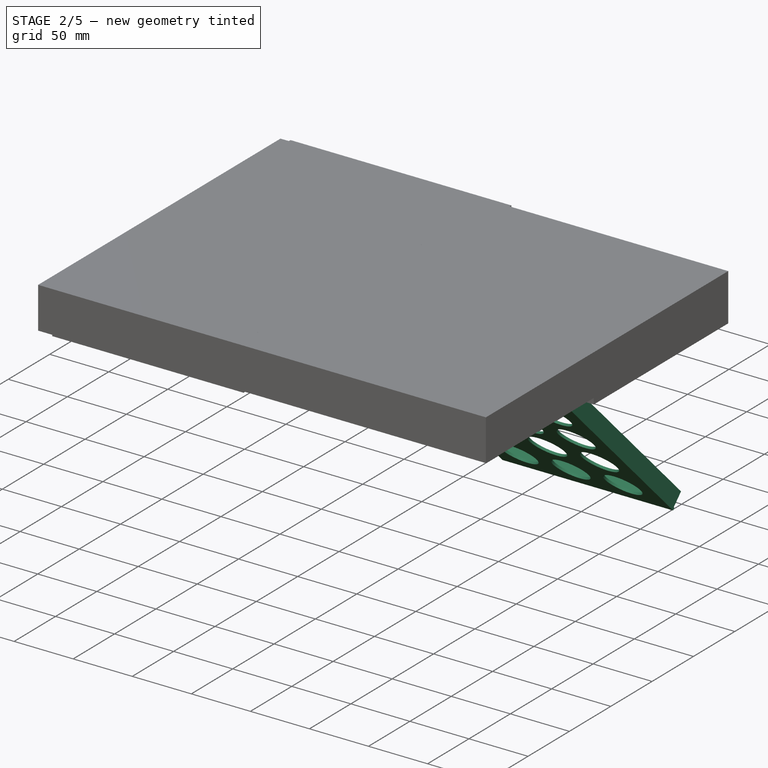
[diagram: stage 2 of 5 — iso view after this stage's code; geometry added in this stage tinted green]
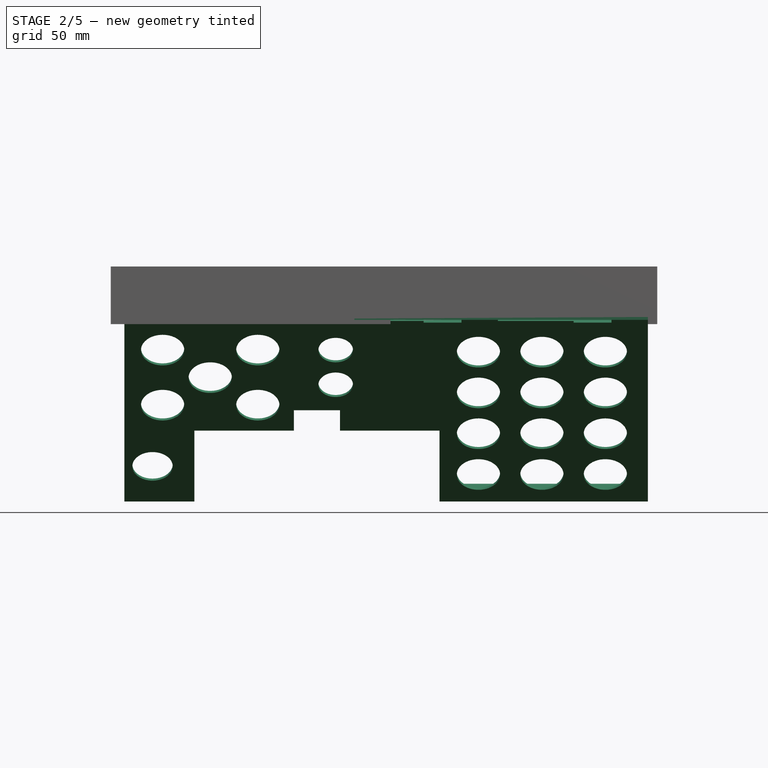
[diagram: stage 2 of 5 — front view after this stage's code; geometry added in this stage tinted green]
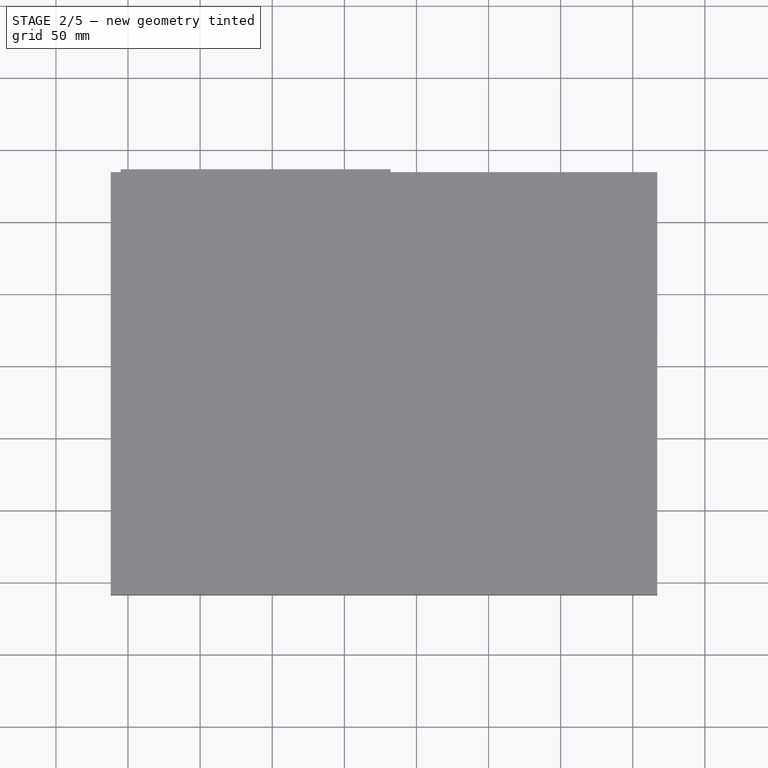
[diagram: stage 2 of 5 — top view after this stage's code; geometry added in this stage tinted green]
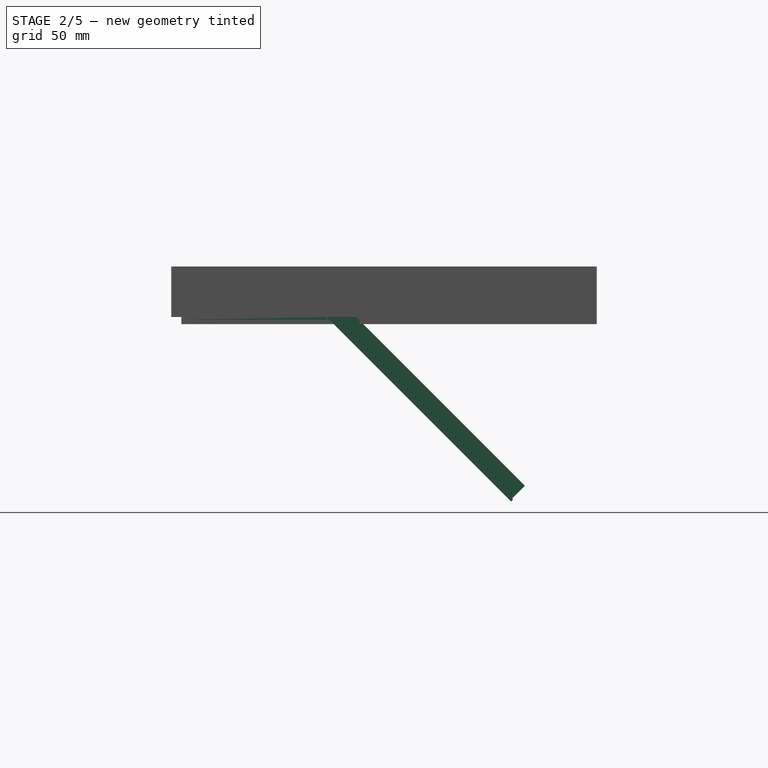
[diagram: stage 2 of 5 — right view after this stage's code; geometry added in this stage tinted green]
FEATURE [Sketcher::SketchObject] Sketch  label="profile"
  FullyConstrained = true
  Placement = pos=(0,14,0) rot=(1,0,0;1.5708rad)
  sketch-geometry (6):
    g0: LineSegment StartX=7 StartY=5.32 StartZ=0 EndX=7 EndY=7.32 EndZ=0
    g1: LineSegment StartX=7 StartY=7.32 StartZ=0 EndX=-2.5 EndY=7.32 EndZ=0
    g2: LineSegment StartX=-2.5 StartY=7.32 StartZ=0 EndX=-2.5 EndY=-12 EndZ=0
    g3: LineSegment StartX=-2.5 StartY=-12 StartZ=0 EndX=-0.5 EndY=-12 EndZ=0
    g4: LineSegment StartX=-0.5 StartY=-12 StartZ=0 EndX=-0.5 EndY=5.32 EndZ=0
    g5: LineSegment StartX=-0.5 StartY=5.32 StartZ=0 EndX=7 EndY=5.32 EndZ=0
  constraints (18):
    c: Vertical(g0)
    c: Coincident(g0,g1)
    c: Horizontal(g1)
    c: Coincident(g1,g2)
    c: Vertical(g2)
    c: Coincident(g2,g3)
    c: Horizontal(g3)
    c: Coincident(g3,g4)
    c: Vertical(g4)
    c: Coincident(g4,g5)
    c: Coincident(g5,g0)
    c: Horizontal(g5)
    c: DistanceX(g4) = -0.5
    c: DistanceY(g0,g0) = 2
    c: DistanceX(g3,g3) = 2
    c: DistanceY(g4) = 5.32
    c: DistanceX(g1,g1) = 9.5
    c: DistanceY(g2) = -12
FEATURE [Sketcher::SketchObject] Sketch001  label="path"
  FullyConstrained = true
  sketch-geometry (4):
    g0: LineSegment StartX=0.5 StartY=210.5 StartZ=0 EndX=357.5 EndY=210.5 EndZ=0
    g1: LineSegment StartX=357.5 StartY=210.5 StartZ=0 EndX=357.5 EndY=1.5 EndZ=0
    g2: LineSegment StartX=357.5 StartY=1.5 StartZ=0 EndX=0.5 EndY=1.5 EndZ=0
    g3: LineSegment StartX=0.5 StartY=1.5 StartZ=0 EndX=0.5 EndY=210.5 EndZ=0
  constraints (12):
    c: Coincident(g0,g1)
    c: Coincident(g1,g2)
    c: Coincident(g2,g3)
    c: Coincident(g3,g0)
    c: Horizontal(g0)
    c: Horizontal(g2)
    c: Vertical(g1)
    c: Vertical(g3)
    c: DistanceX(g2) = 0.5
    c: DistanceY(g2) = 1.5
    c: DistanceY(g0) = 210.5
    c: DistanceX(g0,g0) = 357
FEATURE [Part::Sweep] Sweep
  Frenet = false
  Sections = -> [Sketch]
  Solid = true
  Spine = -> Sketch001
  Transition = 1
FEATURE [Sketcher::SketchObject] Sketch028
  FullyConstrained = true
  Placement = pos=(0,203,0) rot=(0,0.707107,0.707107;3.14159rad)
  sketch-geometry (10):
    g0: LineSegment StartX=-2 StartY=-26 StartZ=0 EndX=-356 EndY=-26 EndZ=0
    g1: LineSegment StartX=-356 StartY=-26 StartZ=0 EndX=-356 EndY=-12 EndZ=0
    g2: LineSegment StartX=-321.5 StartY=-6.68 StartZ=0 EndX=-219 EndY=-6.68 EndZ=0
    g3: LineSegment StartX=-180.5 StartY=-12 StartZ=0 EndX=-2 EndY=-12 EndZ=0
    g4: LineSegment StartX=-2 StartY=-12 StartZ=0 EndX=-2 EndY=-26 EndZ=0
    g5: LineSegment StartX=-356 StartY=-12 StartZ=0 EndX=-321.5 EndY=-12 EndZ=0
    g6: LineSegment StartX=-321.5 StartY=-12 StartZ=0 EndX=-321.5 EndY=-6.68 EndZ=0
    g7: LineSegment StartX=-180.5 StartY=-12 StartZ=0 EndX=-180.5 EndY=-2 EndZ=0
    g8: LineSegment StartX=-180.5 StartY=-2 StartZ=0 EndX=-219 EndY=-2 EndZ=0
    g9: LineSegment StartX=-219 StartY=-2 StartZ=0 EndX=-219 EndY=-6.68 EndZ=0
  constraints (30):
    c: Coincident(g0,g1)
    c: Horizontal(g0)
    c: Horizontal(g2)
    c: Vertical(g1)
    c: DistanceY(g2) = -6.68
    c: DistanceY(g0,g2) = 19.32
    c: Horizontal(g3)
    c: Vertical(g4)
    c: DistanceX(g2) = -219
    c: Coincident(g0,g4)
    c: DistanceX(g1) = -356
    c: Coincident(g1,g5)
    c: Horizontal(g5)
    c: Coincident(g5,g6)
    c: Coincident(g6,g2)
    c: Vertical(g6)
    c: Coincident(g3,g7)
    c: Vertical(g7)
    c: Coincident(g7,g8)
    c: Horizontal(g8)
    c: Coincident(g8,g9)
    c: Coincident(g9,g2)
    c: Vertical(g9)
    c: DistanceY(g6,g6) = 5.32
    c: DistanceY(g9,g9) = 4.68
    c: Horizontal(g5,g3)
    c: DistanceX(g2) = -321.5
    c: DistanceX(g0) = -2
    c: Coincident(g3,g4)
    c: DistanceX(g8,g8) = 38.5
FEATURE [Part::Extrusion] Extrude022
  Base = -> Sketch028
  Dir = (0,1,-2e-16)
  DirMode = 2
  FaceMakerClass = Part::FaceMakerBullseye
  LengthFwd = 11
  LengthRev = 0
  Solid = true
  Symmetric = false
FEATURE [Part::Compound] Compound004  label="bottom holes002"
  Links = -> [Extrude022]
FEATURE [PartDesign::FeatureBase] Clone013
  BaseFeature = -> Compound004
FEATURE [Sketcher::SketchObject] Sketch041
  FullyConstrained = true
  Placement = pos=(0,-4,0) rot=(1,0,0;1.5708rad)
  expr: Constraints[0] = Spreadsheet.m3_r2
  sketch-geometry (2):
    g0: Circle CenterX=7 CenterY=-8.5 CenterZ=0 NormalX=0 NormalY=0 NormalZ=1 AngleXU=0 Radius=1.6
    g1: Circle CenterX=99.5 CenterY=-8.5 CenterZ=0 NormalX=0 NormalY=0 NormalZ=1 AngleXU=0 Radius=1.6
  constraints (6):
    c: Radius(g0) = 1.6
    c: Equal(g0,g1) = 2
    c: Horizontal(g0,g1)
    c: DistanceX(g1) = 99.5
    c: DistanceX(g0) = 7
    c: DistanceY(g1) = -8.5
FEATURE [Part::Extrusion] Extrude035  label="front holes004"
  Base = -> Sketch041
  Dir = (0,-1,2e-16)
  DirMode = 2
  FaceMakerClass = Part::FaceMakerBullseye
  LengthFwd = 0
  LengthRev = 5.7
  Solid = true
  Symmetric = false
FEATURE [Sketcher::SketchObject] Sketch055
  FullyConstrained = true
  Placement = pos=(0,-3,0) rot=(1,0,0;1.5708rad)
  sketch-geometry (12):
    g0: LineSegment StartX=172 StartY=-2 StartZ=0 EndX=252 EndY=-2 EndZ=0
    g1: LineSegment StartX=252 StartY=-2 StartZ=0 EndX=252 EndY=-16 EndZ=0
    g2: LineSegment StartX=252 StartY=-16 StartZ=0 EndX=172 EndY=-16 EndZ=0
    g3: LineSegment StartX=172 StartY=-16 StartZ=0 EndX=172 EndY=-2 EndZ=0
    g4: LineSegment StartX=268.5 StartY=-2 StartZ=0 EndX=345.5 EndY=-2 EndZ=0
    g5: LineSegment StartX=345.5 StartY=-2 StartZ=0 EndX=345.5 EndY=-13 EndZ=0
    g6: LineSegment StartX=345.5 StartY=-13 StartZ=0 EndX=268.5 EndY=-13 EndZ=0
    g7: LineSegment StartX=268.5 StartY=-13 StartZ=0 EndX=268.5 EndY=-2 EndZ=0
    g8: LineSegment StartX=112 StartY=-2 StartZ=0 EndX=122 EndY=-2 EndZ=0
    g9: LineSegment StartX=122 StartY=-2 StartZ=0 EndX=122 EndY=-19 EndZ=0
    g10: LineSegment StartX=122 StartY=-19 StartZ=0 EndX=112 EndY=-19 EndZ=0
    g11: LineSegment StartX=112 StartY=-19 StartZ=0 EndX=112 EndY=-2 EndZ=0
  constraints (36):
    c: Coincident(g0,g1)
    c: Coincident(g1,g2)
    c: Coincident(g2,g3)
    c: Coincident(g3,g0)
    c: Horizontal(g0)
    c: Horizontal(g2)
    c: Vertical(g1)
    c: Vertical(g3)
    c: DistanceY(g0) = -2
    c: DistanceX(g0,g0) = 80
    c: DistanceY(g3,g3) = 14
    c: Coincident(g4,g5)
    c: Coincident(g5,g6)
    c: Coincident(g6,g7)
    c: Coincident(g7,g4)
    c: Horizontal(g4)
    c: Horizontal(g6)
    c: Vertical(g5)
    c: Vertical(g7)
    c: DistanceX(g4) = 268.5
    c: Horizontal(g4,g0)
    c: DistanceX(g4,g4) = 77
    c: DistanceY(g7,g7) = 11
    c: DistanceX(g0) = 172
    c: Coincident(g8,g9)
    c: Coincident(g9,g10)
    c: Coincident(g10,g11)
    c: Coincident(g11,g8)
    c: Horizontal(g8)
    c: Horizontal(g10)
    c: Vertical(g9)
    c: Vertical(g11)
    c: DistanceX(g8,g8) = 10
    c: DistanceY(g11,g11) = 17
    c: DistanceX(g8) = 112
    c: DistanceY(g8) = -2
FEATURE [Part::Extrusion] Extrude045  label="front holes002"
  Base = -> Sketch055
  Dir = (0,-1,2e-16)
  DirMode = 2
  FaceMakerClass = Part::FaceMakerBullseye
  LengthFwd = 0
  LengthRev = 8
  Solid = true
  Symmetric = false
FEATURE [PartDesign::FeatureBase] Clone031
  BaseFeature = -> Extrude045
FEATURE [Sketcher::SketchObject] Sketch074
  FullyConstrained = true
  Placement = pos=(0,0.5,0) rot=(1,0,0;1.5708rad)
  sketch-geometry (4):
    g0: LineSegment StartX=-2.5 StartY=-12 StartZ=0 EndX=112 EndY=-12 EndZ=0
    g1: LineSegment StartX=112 StartY=-12 StartZ=0 EndX=112 EndY=-18.36 EndZ=0
    g2: LineSegment StartX=112 StartY=-18.36 StartZ=0 EndX=-2.5 EndY=-18.36 EndZ=0
    g3: LineSegment StartX=-2.5 StartY=-18.36 StartZ=0 EndX=-2.5 EndY=-12 EndZ=0
  constraints (12):
    c: Coincident(g0,g1)
    c: Coincident(g1,g2)
    c: Coincident(g2,g3)
    c: Coincident(g3,g0)
    c: Horizontal(g0)
    c: Horizontal(g2)
    c: Vertical(g1)
    c: Vertical(g3)
    c: DistanceX(g0) = -2.5
    c: DistanceX(g1) = 112
    c: DistanceY(g2) = -18.36
    c: DistanceY(g0) = -12
FEATURE [Part::Extrusion] Extrude066
  Base = -> Sketch074
  Dir = (0,-1,2e-16)
  DirMode = 2
  FaceMakerClass = Part::FaceMakerBullseye
  LengthFwd = 2
  LengthRev = 0
  Solid = true
  Symmetric = false
FEATURE [Sketcher::SketchObject] Sketch081
  FullyConstrained = true
  Placement = pos=(0,211.5,0) rot=(1,0,0;1.5708rad)
  sketch-geometry (8):
    g0: LineSegment StartX=37 StartY=-7.32 StartZ=0 EndX=180.5 EndY=-7.32 EndZ=0
    g1: LineSegment StartX=180.5 StartY=-7.32 StartZ=0 EndX=180.5 EndY=-25 EndZ=0
    g2: LineSegment StartX=180.5 StartY=-25 StartZ=0 EndX=37 EndY=-25 EndZ=0
    g3: LineSegment StartX=37 StartY=-25 StartZ=0 EndX=37 EndY=-7.32 EndZ=0
    g4: LineSegment StartX=115 StartY=-20.5 StartZ=0 EndX=147 EndY=-20.5 EndZ=0
    g5: LineSegment StartX=147 StartY=-20.5 StartZ=0 EndX=147 EndY=-16.5 EndZ=0
    g6: LineSegment StartX=147 StartY=-16.5 StartZ=0 EndX=115 EndY=-16.5 EndZ=0
    g7: LineSegment StartX=115 StartY=-16.5 StartZ=0 EndX=115 EndY=-20.5 EndZ=0
  constraints (24):
    c: Coincident(g0,g1)
    c: Coincident(g1,g2)
    c: Coincident(g2,g3)
    c: Coincident(g3,g0)
    c: Horizontal(g0)
    c: Horizontal(g2)
    c: Vertical(g1)
    c: Vertical(g3)
    c: DistanceY(g0) = -7.32
    c: DistanceY(g3,g3) = 17.68
    c: Coincident(g4,g5)
    c: Coincident(g5,g6)
    c: Coincident(g6,g7)
    c: Coincident(g7,g4)
    c: Horizontal(g4)
    c: Horizontal(g6)
    c: Vertical(g5)
    c: Vertical(g7)
    c: DistanceY(g1,g4) = 4.5
    c: DistanceY(g5,g5) = 4
    c: DistanceX(g6,g6) = 32
    c: DistanceX(g1) = 180.5
    c: DistanceX(g4) = 115
    c: DistanceX(g0) = 37
FEATURE [Part::Extrusion] Extrude073
  Base = -> Sketch081
  Dir = (0,-1,2e-16)
  DirMode = 2
  FaceMakerClass = Part::FaceMakerBullseye
  LengthFwd = 0
  LengthRev = 2
  Solid = true
  Symmetric = false
FEATURE [Sketcher::SketchObject] Sketch082
  FullyConstrained = true
  Placement = pos=(0,0,-25) rot=(1,0,0;3.14159rad)
  sketch-geometry (16):
    g0: LineSegment StartX=-2.5 StartY=1.5 StartZ=0 EndX=360.5 EndY=1.5 EndZ=0
    g1: LineSegment StartX=360.5 StartY=1.5 StartZ=0 EndX=360.5 EndY=-96.5 EndZ=0
    g2: LineSegment StartX=-2.5 StartY=-96.5 StartZ=0 EndX=-2.5 EndY=1.5 EndZ=0
    g3: LineSegment StartX=360.5 StartY=-96.5 StartZ=0 EndX=309.5 EndY=-96.5 EndZ=0
    g4: LineSegment StartX=309.5 StartY=-96.5 StartZ=0 EndX=309.5 EndY=-99 EndZ=0
    g5: LineSegment StartX=309.5 StartY=-99 StartZ=0 EndX=257 EndY=-99 EndZ=0
    g6: LineSegment StartX=257 StartY=-99 StartZ=0 EndX=257 EndY=-96.5 EndZ=0
    g7: LineSegment StartX=257 StartY=-96.5 StartZ=0 EndX=205.5 EndY=-96.5 EndZ=0
    g8: LineSegment StartX=205.5 StartY=-96.5 StartZ=0 EndX=205.5 EndY=-99 EndZ=0
    g9: LineSegment StartX=205.5 StartY=-99 StartZ=0 EndX=153 EndY=-99 EndZ=0
    g10: LineSegment StartX=153 StartY=-99 StartZ=0 EndX=153 EndY=-96.5 EndZ=0
    g11: LineSegment StartX=153 StartY=-96.5 StartZ=0 EndX=101.5 EndY=-96.5 EndZ=0
    g12: LineSegment StartX=101.5 StartY=-96.5 StartZ=0 EndX=101.5 EndY=-99 EndZ=0
    g13: LineSegment StartX=101.5 StartY=-99 StartZ=0 EndX=49 EndY=-99 EndZ=0
    g14: LineSegment StartX=49 StartY=-99 StartZ=0 EndX=49 EndY=-96.5 EndZ=0
    g15: LineSegment StartX=49 StartY=-96.5 StartZ=0 EndX=-2.5 EndY=-96.5 EndZ=0
  constraints (48):
    c: Coincident(g0,g1)
    c: Coincident(g2,g0)
    c: Horizontal(g0)
    c: Vertical(g1)
    c: Vertical(g2)
    c: DistanceX(g0) = -2.5
    c: DistanceY(g0) = 1.5
    c: DistanceX(g1) = 360.5
    c: DistanceY(g1) = -96.5
    c: Coincident(g1,g3)
    c: Horizontal(g3)
    c: Coincident(g3,g4)
    c: Vertical(g4)
    c: Coincident(g4,g5)
    c: Horizontal(g5)
    c: Coincident(g5,g6)
    c: Vertical(g6)
    c: Coincident(g6,g7)
    c: Horizontal(g7)
    c: Coincident(g7,g8)
    c: Vertical(g8)
    c: Coincident(g8,g9)
    c: Horizontal(g9)
    c: Coincident(g9,g10)
    c: Vertical(g10)
    c: Coincident(g10,g11)
    c: Horizontal(g11)
    c: Coincident(g11,g12)
    c: Vertical(g12)
    c: Coincident(g12,g13)
    c: Horizontal(g13)
    c: Coincident(g13,g14)
    c: Vertical(g14)
    c: Coincident(g14,g15)
    c: Horizontal(g15)
    c: Coincident(g2,g15)
    c: Horizontal(g14,g11)
    c: Horizontal(g11,g7)
    c: Horizontal(g7,g3)
    c: Horizontal(g5,g9)
    c: Horizontal(g9,g13)
    c: DistanceY(g4) = -99
    c: DistanceX(g5,g5) = 52.5
    c: DistanceX(g7,g7) = 51.5
    c: DistanceX(g9,g9) = 52.5
    c: DistanceX(g11,g11) = 51.5
    c: DistanceX(g13,g13) = 52.5
    c: DistanceX(g15,g15) = 51.5
FEATURE [Part::Extrusion] Extrude074  label="back panel"
  Base = -> Sketch082
  Dir = (0,0,-1)
  DirMode = 2
  FaceMakerClass = Part::FaceMakerBullseye
  LengthFwd = 2
  LengthRev = 0
  Solid = true
  Symmetric = false
FEATURE [Sketcher::SketchObject] Sketch083
  FullyConstrained = true
  Placement = pos=(0,0,-25) rot=(1,0,0;3.14159rad)
  sketch-geometry (24):
    g0: LineSegment StartX=-2.5 StartY=-104 StartZ=0 EndX=-2.5 EndY=-279.5 EndZ=0
    g1: LineSegment StartX=-2.5 StartY=-279.5 StartZ=0 EndX=46 EndY=-279.5 EndZ=0
    g2: LineSegment StartX=46 StartY=-279.5 StartZ=0 EndX=46 EndY=-210 EndZ=0
    g3: LineSegment StartX=46 StartY=-210 StartZ=0 EndX=115 EndY=-210 EndZ=0
    g4: LineSegment StartX=115 StartY=-210 StartZ=0 EndX=115 EndY=-190 EndZ=0
    g5: LineSegment StartX=115 StartY=-190 StartZ=0 EndX=147 EndY=-190 EndZ=0
    g6: LineSegment StartX=147 StartY=-190 StartZ=0 EndX=147 EndY=-210 EndZ=0
    g7: LineSegment StartX=147 StartY=-210 StartZ=0 EndX=216 EndY=-210 EndZ=0
    g8: LineSegment StartX=216 StartY=-210 StartZ=0 EndX=216 EndY=-279.5 EndZ=0
    g9: LineSegment StartX=216 StartY=-279.5 StartZ=0 EndX=360.5 EndY=-279.5 EndZ=0
    g10: LineSegment StartX=360.5 StartY=-279.5 StartZ=0 EndX=360.5 EndY=-104 EndZ=0
    g11: LineSegment StartX=-2.5 StartY=-104 StartZ=0 EndX=48.5 EndY=-104 EndZ=0
    g12: LineSegment StartX=48.5 StartY=-104 StartZ=0 EndX=48.5 EndY=-102.5 EndZ=0
    g13: LineSegment StartX=48.5 StartY=-102.5 StartZ=0 EndX=101 EndY=-102.5 EndZ=0
    g14: LineSegment StartX=101 StartY=-102.5 StartZ=0 EndX=101 EndY=-104 EndZ=0
    g15: LineSegment StartX=101 StartY=-104 StartZ=0 EndX=127.75 EndY=-104 EndZ=0
    g16: LineSegment StartX=127.75 StartY=-104 StartZ=0 EndX=127.75 EndY=-102.5 EndZ=0
    g17: LineSegment StartX=127.75 StartY=-102.5 StartZ=0 EndX=205 EndY=-102.5 EndZ=0
    g18: LineSegment StartX=205 StartY=-102.5 StartZ=0 EndX=205 EndY=-104 EndZ=0
    g19: LineSegment StartX=205 StartY=-104 StartZ=0 EndX=256.5 EndY=-104 EndZ=0
    g20: LineSegment StartX=256.5 StartY=-104 StartZ=0 EndX=256.5 EndY=-102.5 EndZ=0
    g21: LineSegment StartX=256.5 StartY=-102.5 StartZ=0 EndX=309 EndY=-102.5 EndZ=0
    g22: LineSegment StartX=309 StartY=-102.5 StartZ=0 EndX=309 EndY=-104 EndZ=0
    g23: LineSegment StartX=309 StartY=-104 StartZ=0 EndX=360.5 EndY=-104 EndZ=0
  constraints (72):
    c: Vertical(g0)
    c: Coincident(g0,g1)
    c: Horizontal(g1)
    c: Coincident(g1,g2)
    c: Vertical(g2)
    c: Coincident(g2,g3)
    c: Horizontal(g3)
    c: Coincident(g3,g4)
    c: Vertical(g4)
    c: Coincident(g4,g5)
    c: Horizontal(g5)
    c: Coincident(g5,g6)
    c: Vertical(g6)
    c: Coincident(g6,g7)
    c: Horizontal(g7)
    c: Coincident(g7,g8)
    c: Vertical(g8)
    c: Coincident(g8,g9)
    c: Horizontal(g9)
    c: Coincident(g9,g10)
    c: Vertical(g10)
    c: DistanceX(g0) = -2.5
    c: DistanceY(g0) = -279.5
    c: DistanceX(g1) = 46
    c: Horizontal(g6,g3)
    c: Horizontal(g8,g1)
    c: DistanceX(g3,g3) = 69
    c: DistanceX(g5,g5) = 32
    c: DistanceY(g4,g4) = 20
    c: DistanceX(g7,g7) = 69
    c: Coincident(g0,g11)
    c: Horizontal(g11)
    c: Coincident(g11,g12)
    c: Vertical(g12)
    c: Coincident(g12,g13)
    c: Horizontal(g13)
    c: Coincident(g13,g14)
    c: Vertical(g14)
    c: Coincident(g14,g15)
    c: Horizontal(g15)
    c: Coincident(g15,g16)
    c: Vertical(g16)
    c: Coincident(g16,g17)
    c: Horizontal(g17)
    c: Coincident(g17,g18)
    c: Vertical(g18)
    c: Coincident(g18,g19)
    c: Horizontal(g19)
    c: Coincident(g19,g20)
    c: Vertical(g20)
    c: Coincident(g20,g21)
    c: Horizontal(g21)
    c: Coincident(g21,g22)
    c: Vertical(g22)
    c: Coincident(g22,g23)
    c: Horizontal(g23)
    c: Horizontal(g13,g17)
    c: Horizontal(g17,g21)
    c: Horizontal(g22,g18)
    c: Horizontal(g18,g14)
    c: Horizontal(g14,g11)
    c: DistanceY(g12) = -102.5
    c: DistanceY(g0) = -104
    c: DistanceX(g11,g11) = 51
    c: DistanceX(g13,g13) = 52.5
    c: DistanceX(g15,g15) = 26.75
    c: DistanceX(g17,g17) = 77.25
    c: DistanceX(g19,g19) = 51.5
    c: DistanceX(g21,g21) = 52.5
    c: Coincident(g10,g23)
    c: DistanceX(g10) = 360.5
    c: DistanceY(g2) = -210
FEATURE [Part::Extrusion] Extrude075  label="panel"
  Base = -> Sketch083
  Dir = (0,0,-1)
  DirMode = 2
  FaceMakerClass = Part::FaceMakerBullseye
  LengthFwd = 2
  LengthRev = 0
  Solid = true
  Symmetric = false
FEATURE [Sketcher::SketchObject] Sketch084
  FullyConstrained = true
  Placement = pos=(0,0,-25) rot=(1,0,0;3.14159rad)
  sketch-geometry (16):
    g0: LineSegment StartX=-2.5 StartY=-104 StartZ=0 EndX=-2.5 EndY=-278.5 EndZ=0
    g1: LineSegment StartX=-2.5 StartY=-278.5 StartZ=0 EndX=46 EndY=-278.5 EndZ=0
    g2: LineSegment StartX=216 StartY=-276.5 StartZ=0 EndX=358.5 EndY=-276.5 EndZ=0
    g3: LineSegment StartX=358.5 StartY=-276.5 StartZ=0 EndX=358.5 EndY=-102 EndZ=0
    g4: LineSegment StartX=-2.5 StartY=-104 StartZ=0 EndX=-0.5 EndY=-104 EndZ=0
    g5: LineSegment StartX=-0.5 StartY=-104 StartZ=0 EndX=-0.5 EndY=-276.5 EndZ=0
    g6: LineSegment StartX=-0.5 StartY=-276.5 StartZ=0 EndX=34.5 EndY=-276.5 EndZ=0
    g7: LineSegment StartX=34.5 StartY=-276.5 StartZ=0 EndX=34.5 EndY=-208 EndZ=0
    g8: LineSegment StartX=46 StartY=-278.5 StartZ=0 EndX=46 EndY=-276.5 EndZ=0
    g9: LineSegment StartX=46 StartY=-276.5 StartZ=0 EndX=36.5 EndY=-276.5 EndZ=0
    g10: LineSegment StartX=36.5 StartY=-276.5 StartZ=0 EndX=36.5 EndY=-208 EndZ=0
    g11: LineSegment StartX=216 StartY=-278.5 StartZ=0 EndX=360.5 EndY=-278.5 EndZ=0
    g12: LineSegment StartX=360.5 StartY=-278.5 StartZ=0 EndX=360.5 EndY=-102 EndZ=0
    g13: LineSegment StartX=360.5 StartY=-102 StartZ=0 EndX=358.5 EndY=-102 EndZ=0
    g14: LineSegment StartX=34.5 StartY=-208 StartZ=0 EndX=36.5 EndY=-208 EndZ=0
    g15: LineSegment StartX=216 StartY=-276.5 StartZ=0 EndX=216 EndY=-278.5 EndZ=0
  constraints (48):
    c: Vertical(g0)
    c: Coincident(g0,g1)
    c: Horizontal(g1)
    c: Horizontal(g2)
    c: Coincident(g2,g3)
    c: Vertical(g3)
    c: DistanceX(g0) = -2.5
    c: DistanceY(g0) = -278.5
    c: DistanceX(g1) = 46
    c: DistanceY(g0,g0) = 174.5
    c: Coincident(g0,g4)
    c: Horizontal(g4)
    c: Coincident(g4,g5)
    c: Vertical(g5)
    c: Coincident(g5,g6)
    c: Horizontal(g6)
    c: Coincident(g6,g7)
    c: Vertical(g7)
    c: Coincident(g1,g8)
    c: Vertical(g8)
    c: Coincident(g8,g9)
    c: Horizontal(g9)
    c: Coincident(g9,g10)
    c: Vertical(g10)
    c: Horizontal(g11)
    c: Coincident(g11,g12)
    c: Vertical(g12)
    c: Coincident(g12,g13)
    c: Coincident(g13,g3)
    c: Horizontal(g13)
    c: Coincident(g14,g7)
    c: Coincident(g14,g10)
    c: Horizontal(g14)
    c: DistanceX(g14,g14) = 2
    c: Horizontal(g6,g9)
    c: DistanceY(g8,g8) = 2
    c: DistanceX(g9,g9) = 9.5
    c: DistanceX(g4,g4) = 2
    c: DistanceX(g11) = 360.5
    c: DistanceX(g2,g11) = 2
    c: DistanceY(g11,g2) = 2
    c: DistanceY(g12,g12) = 176.5
    c: Horizontal(g11,g1)
    c: DistanceX(g11) = 216
    c: Coincident(g15,g2)
    c: Coincident(g15,g11)
    c: Vertical(g15)
    c: DistanceY(g7,g7) = 68.5
FEATURE [Part::Extrusion] Extrude076  label="side"
  Base = -> Sketch084
  Dir = (0,0,-1)
  DirMode = 2
  FaceMakerClass = Part::FaceMakerBullseye
  LengthFwd = 0
  LengthRev = 12.5
  Solid = true
  Symmetric = false
FEATURE [Sketcher::SketchObject] Sketch087
  FullyConstrained = false
  Placement = pos=(-2.5,0,0) rot=(0.57735,-0.57735,-0.57735;2.0944rad)
  sketch-geometry (7):
    g0: Circle CenterX=-100 CenterY=-23.84 CenterZ=0 NormalX=0 NormalY=0 NormalZ=1 AngleXU=0 Radius=1.16
    g1: ArcOfCircle CenterX=-100 CenterY=-23.84 CenterZ=0 NormalX=0 NormalY=0 NormalZ=1 AngleXU=0 Radius=3.16 StartAngle=0 EndAngle=3.92699
    g2: LineSegment StartX=-102.234 StartY=-26.0745 StartZ=0 EndX=-101.309 EndY=-27 EndZ=0
    g3: LineSegment StartX=-101.309 StartY=-27 StartZ=0 EndX=-94 EndY=-27 EndZ=0
    g4: LineSegment StartX=-94 StartY=-27 StartZ=0 EndX=-94 EndY=-25 EndZ=0
    g5: LineSegment StartX=-94 StartY=-25 StartZ=0 EndX=-96.84 EndY=-25 EndZ=0
    g6: LineSegment StartX=-96.84 StartY=-25 StartZ=0 EndX=-96.84 EndY=-23.84 EndZ=0
  constraints (19):
    c: Radius(g0) = 1.16
    c: Coincident(g1,g0)
    c: Tangent(g1,g2) = -1.5708
    c: Coincident(g2,g3)
    c: Horizontal(g3)
    c: Coincident(g3,g4)
    c: Vertical(g4)
    c: Coincident(g4,g5)
    c: Horizontal(g5)
    c: Coincident(g6,g5)
    c: Coincident(g6,g1)
    c: Vertical(g6)
    c: Radius(g1) = 3.16
    c: DistanceY(g2,g0) = 3.16
    c: Angle(g2,g3,g2) = 0.785398
    c: DistanceX(g0) = -100
    c: Horizontal(g1,g0)
    c: DistanceY(g3) = -27
    c: DistanceY(g4,g4) = 2
FEATURE [Part::Extrusion] Extrude079  label="hinge001"
  Base = -> Sketch087
  Dir = (-1,2e-16,-2e-16)
  DirMode = 2
  FaceMakerClass = Part::FaceMakerBullseye
  LengthFwd = 0
  LengthRev = 25.25
  Solid = true
  Symmetric = false
FEATURE [PartDesign::FeatureBase] Clone046
  BaseFeature = -> Extrude079
FEATURE [PartDesign::Body] Body046  label="hinge002"
  BaseFeature = -> Extrude079
  Group = -> [Clone046]
  Origin = -> Origin046
  Placement = pos=(358,200,0) rot=(0,0,1;3.14159rad)
  Tip = -> Clone046
FEATURE [Part::FeaturePython] Array007  label="hinges001"  # Draft array (typed FeaturePython)
  Angle = 360
  ArrayType = 0
  Axis = (0,0,1)
  Base = -> Body046
  Center = (0,0,0)
  Count = 4
  ExpandArray = false
  Fuse = false
  IntervalAxis = (0,0,0)
  IntervalX = (-104,0,0)
  IntervalY = (0,100,0)
  IntervalZ = (0,0,100)
  NumberCircles = 3
  NumberPolar = 5
  NumberX = 4
  NumberY = 1
  NumberZ = 1
  PlacementList = 4 placements: arithmetic series from (358,200,0) step (-104,0,0) to (46,200,0)
  RadialDistance = 50
  ScaleList = (4) [(1,1,1),(1,1,1),(1,1,1),(1,1,1)]
  Symmetry = 1
  TangentialDistance = 25
FEATURE [Sketcher::SketchObject] Sketch088
  FullyConstrained = true
  Placement = pos=(-3.5,0,0) rot=(0.57735,-0.57735,-0.57735;2.0944rad)
  sketch-geometry (7):
    g0: Circle CenterX=-100 CenterY=-23.84 CenterZ=0 NormalX=0 NormalY=0 NormalZ=1 AngleXU=0 Radius=1.16
    g1: ArcOfCircle CenterX=-100 CenterY=-23.84 CenterZ=0 NormalX=0 NormalY=0 NormalZ=1 AngleXU=0 Radius=3.16 StartAngle=3.14159 EndAngle=3.92699
    g2: LineSegment StartX=-102.234 StartY=-26.0745 StartZ=0 EndX=-101.309 EndY=-27 EndZ=0
    g3: LineSegment StartX=-101.309 StartY=-27 StartZ=0 EndX=-96 EndY=-27 EndZ=0
    g4: LineSegment StartX=-96 StartY=-27 StartZ=0 EndX=-96 EndY=-12.5 EndZ=0
    g5: LineSegment StartX=-103.16 StartY=-23.84 StartZ=0 EndX=-103.16 EndY=-12.5 EndZ=0
    g6: LineSegment StartX=-103.16 StartY=-12.5 StartZ=0 EndX=-96 EndY=-12.5 EndZ=0
  constraints (19):
    c: Radius(g0) = 1.16
    c: Coincident(g1,g0)
    c: Tangent(g1,g2) = -1.5708
    c: Coincident(g2,g3)
    c: Horizontal(g3)
    c: Vertical(g4)
    c: Radius(g1) = 3.16
    c: DistanceY(g2,g0) = 3.16
    c: DistanceY(g2) = -27
    c: Angle(g2,g3,g2) = 0.785398
    c: DistanceX(g0) = -100
    c: Coincident(g3,g4)
    c: Horizontal(g1,g0)
    c: DistanceX(g0,g3) = 4
    c: Tangent(g1,g5) = 1.5708
    c: Coincident(g5,g6)
    c: Coincident(g6,g4)
    c: Horizontal(g6)
    c: DistanceY(g4) = -12.5
FEATURE [Part::Extrusion] Extrude080  label="endpiece master"
  Base = -> Sketch088
  Dir = (-1,0,0)
  DirMode = 2
  FaceMakerClass = Part::FaceMakerBullseye
  LengthFwd = 0
  LengthRev = 2
  Solid = true
  Symmetric = false
FEATURE [PartDesign::FeatureBase] Clone047
  BaseFeature = -> Extrude080
FEATURE [Sketcher::SketchObject] Sketch091
  FullyConstrained = true
  Placement = pos=(0,0,-25) rot=(1,0,0;3.14159rad)
  sketch-geometry (8):
    g0: LineSegment StartX=192.5 StartY=-209 StartZ=0 EndX=171.5 EndY=-209 EndZ=0
    g1: LineSegment StartX=192.5 StartY=-105 StartZ=0 EndX=192.5 EndY=-98 EndZ=0
    g2: LineSegment StartX=192.5 StartY=-98 StartZ=0 EndX=171.5 EndY=-98 EndZ=0
    g3: LineSegment StartX=171.5 StartY=-98 StartZ=0 EndX=171.5 EndY=-105 EndZ=0
    g4: LineSegment StartX=171.5 StartY=-105 StartZ=0 EndX=192.5 EndY=-105 EndZ=0
    g5: LineSegment StartX=192.5 StartY=-209 StartZ=0 EndX=192.5 EndY=-106 EndZ=0
    g6: LineSegment StartX=192.5 StartY=-106 StartZ=0 EndX=171.5 EndY=-106 EndZ=0
    g7: LineSegment StartX=171.5 StartY=-106 StartZ=0 EndX=171.5 EndY=-209 EndZ=0
  constraints (24):
    c: Horizontal(g0)
    c: Vertical(g1)
    c: Coincident(g1,g2)
    c: Horizontal(g2)
    c: Coincident(g2,g3)
    c: Vertical(g3)
    c: DistanceY(g1,g1) = 7
    c: Coincident(g4,g3)
    c: Coincident(g4,g1)
    c: Horizontal(g4)
    c: DistanceY(g3) = -105
    c: DistanceX(g2,g2) = 21
    c: Vertical(g5)
    c: Coincident(g5,g6)
    c: Horizontal(g6)
    c: Coincident(g6,g7)
    c: Vertical(g7)
    c: Vertical(g6,g3)
    c: Vertical(g5,g1)
    c: DistanceX(g6) = 171.5
    c: DistanceY(g6,g3) = 1
    c: DistanceY(g0,g6) = 103
    c: Coincident(g0,g7)
    c: Coincident(g0,g5)
FEATURE [Part::Extrusion] Extrude083
  Base = -> Sketch091
  Dir = (0,0,-1)
  DirMode = 2
  FaceMakerClass = Part::FaceMakerBullseye
  LengthFwd = 1
  LengthRev = 0
  Solid = true
  Symmetric = false
FEATURE [Sketcher::SketchObject] Sketch093
  FullyConstrained = true
  Placement = pos=(0,0,-25) rot=(1,0,0;3.14159rad)
  sketch-geometry (4):
    g0: LineSegment StartX=142.5 StartY=0.5 StartZ=0 EndX=163.5 EndY=0.5 EndZ=0
    g1: LineSegment StartX=163.5 StartY=0.5 StartZ=0 EndX=163.5 EndY=-95.5 EndZ=0
    g2: LineSegment StartX=163.5 StartY=-95.5 StartZ=0 EndX=142.5 EndY=-95.5 EndZ=0
    g3: LineSegment StartX=142.5 StartY=0.5 StartZ=0 EndX=142.5 EndY=-95.5 EndZ=0
  constraints (12):
    c: Horizontal(g0)
    c: Coincident(g0,g1)
    c: Vertical(g1)
    c: Horizontal(g2)
    c: Coincident(g0,g3)
    c: Vertical(g3)
    c: DistanceX(g0,g0) = 21
    c: DistanceY(g2,g0) = 96
    c: DistanceX(g0) = 142.5
    c: Coincident(g1,g2)
    c: DistanceY(g0) = 0.5
    c: Coincident(g2,g3)
FEATURE [Part::Extrusion] Extrude085  label="cutout"
  Base = -> Sketch093
  Dir = (0,0,-1)
  DirMode = 2
  FaceMakerClass = Part::FaceMakerBullseye
  LengthFwd = 1
  LengthRev = 0
  Solid = true
  Symmetric = false
FEATURE [PartDesign::Body] Body055  label="magnet002"
  BaseFeature = -> Cylinder
  Group = -> [Clone055]
  Origin = -> Origin055
  Placement = pos=(2,273,-3) rot=(0,0,1;0rad)
  Tip = -> Clone055
FEATURE [Sketcher::SketchObject] Sketch108
  FullyConstrained = true
  Placement = pos=(0,0,0) rot=(1,0,0;1.5708rad)
  sketch-geometry (9):
    g0: LineSegment StartX=3.5 StartY=-12 StartZ=0 EndX=3.5 EndY=-15.5 EndZ=0
    g1: LineSegment StartX=3.5 StartY=-15.5 StartZ=0 EndX=-4e-16 EndY=-15.5 EndZ=0
    g2: LineSegment StartX=-4e-16 StartY=-15.5 StartZ=0 EndX=-4e-16 EndY=-16.5 EndZ=0
    g3: LineSegment StartX=4.5 StartY=-27 StartZ=0 EndX=4.5 EndY=-12 EndZ=0
    g4: LineSegment StartX=4.5 StartY=-12 StartZ=0 EndX=3.5 EndY=-12 EndZ=0
    g5: LineSegment StartX=4.5 StartY=-27 StartZ=0 EndX=3.5 EndY=-27 EndZ=0
    g6: LineSegment StartX=3.5 StartY=-27 StartZ=0 EndX=3.5 EndY=-20 EndZ=0
    g7: LineSegment StartX=3.5 StartY=-20 StartZ=0 EndX=-4e-16 EndY=-16.5 EndZ=0
    g8: LineSegment StartX=-4e-16 StartY=-16.5 StartZ=0 EndX=-4e-16 EndY=-15.5 EndZ=0
  constraints (26):
    c: Coincident(g0,g1)
    c: PointOnObject(g1,g-2)
    c: Coincident(g1,g2)
    c: Vertical(g3)
    c: Coincident(g3,g4)
    c: Coincident(g4,g0)
    c: Horizontal(g4)
    c: DistanceX(g4,g4) = 1
    c: DistanceX(g1,g1) = 3.5
    c: Coincident(g3,g5)
    c: Coincident(g5,g6)
    c: Vertical(g6)
    c: Coincident(g6,g7)
    c: Coincident(g7,g8)
    c: Coincident(g8,g1)
    c: Coincident(g2,g7)
    c: Vertical(g6,g0)
    c: Vertical(g2)
    c: Horizontal(g1)
    c: Vertical(g0)
    c: Horizontal(g5)
    c: DistanceY(g0,g0) = 3.5
    c: DistanceY(g2,g2) = 1
    c: DistanceY(g0) = -12
    c: Angle(g6,g7,g6) = 0.785398
    c: DistanceY(g5) = -27
FEATURE [Part::Revolution] Revolve001  label="magnet back"
  Angle = 360
  Axis = (0,0,1)
  Base = (0,0,0)
  FaceMakerClass = Part::FaceMakerBullseye
  Solid = false
  Source = -> Sketch108
  Symmetric = false
FEATURE [PartDesign::FeatureBase] Clone056
  BaseFeature = -> Revolve001
FEATURE [PartDesign::Body] Body056  label="magnet back001"
  BaseFeature = -> Revolve001
  Group = -> [Clone056]
  Origin = -> Origin056
  Placement = pos=(4,272,0) rot=(0,0,1;0rad)
  Tip = -> Clone056
FEATURE [PartDesign::FeatureBase] Clone057
  BaseFeature = -> Revolve001
FEATURE [PartDesign::Body] Body057  label="magnet back002"
  BaseFeature = -> Revolve001
  Group = -> [Clone057]
  Origin = -> Origin057
  Placement = pos=(30,272,0) rot=(0,0,1;0rad)
  Tip = -> Clone057
FEATURE [PartDesign::FeatureBase] Clone058
  BaseFeature = -> Revolve001
FEATURE [PartDesign::Body] Body058  label="magnet back003"
  BaseFeature = -> Revolve001
  Group = -> [Clone058]
  Origin = -> Origin058
  Placement = pos=(222.5,272,0) rot=(0,0,1;0rad)
  Tip = -> Clone058
FEATURE [PartDesign::FeatureBase] Clone059
  BaseFeature = -> Revolve001
FEATURE [PartDesign::Body] Body059  label="magnet back004"
  BaseFeature = -> Revolve001
  Group = -> [Clone059]
  Origin = -> Origin059
  Placement = pos=(354,272,0) rot=(0,0,1;0rad)
  Tip = -> Clone059
FEATURE [Sketcher::SketchObject] Sketch109
  FullyConstrained = true
  Placement = pos=(178.5,0,0) rot=(0.57735,-0.57735,-0.57735;2.0944rad)
  sketch-geometry (6):
    g0: LineSegment StartX=-212.5 StartY=6.32 StartZ=0 EndX=-204 EndY=6.32 EndZ=0
    g1: LineSegment StartX=-204 StartY=6.32 StartZ=0 EndX=-204 EndY=5.32 EndZ=0
    g2: LineSegment StartX=-204 StartY=5.32 StartZ=0 EndX=-211.5 EndY=5.32 EndZ=0
    g3: LineSegment StartX=-211.5 StartY=5.32 StartZ=0 EndX=-211.5 EndY=-25 EndZ=0
    g4: LineSegment StartX=-211.5 StartY=-25 StartZ=0 EndX=-212.5 EndY=-25 EndZ=0
    g5: LineSegment StartX=-212.5 StartY=-25 StartZ=0 EndX=-212.5 EndY=6.32 EndZ=0
  constraints (18):
    c: Horizontal(g0)
    c: Coincident(g0,g1)
    c: Vertical(g1)
    c: Coincident(g1,g2)
    c: Horizontal(g2)
    c: Coincident(g2,g3)
    c: Vertical(g3)
    c: Coincident(g3,g4)
    c: Horizontal(g4)
    c: Coincident(g4,g5)
    c: Coincident(g5,g0)
    c: Vertical(g5)
    c: DistanceY(g1,g1) = 1
    c: DistanceX(g4,g4) = 1
    c: DistanceY(g0) = 6.32
    c: DistanceX(g0,g0) = 8.5
    c: DistanceX(g0) = -212.5
    c: DistanceY(g5,g5) = 31.32
FEATURE [Part::Extrusion] Extrude099  label="joiner cutout001"
  Base = -> Sketch109
  Dir = (-1,-2e-16,2e-16)
  DirMode = 2
  FaceMakerClass = Part::FaceMakerBullseye
  LengthFwd = 21
  LengthRev = 0
  Solid = true
  Symmetric = false
FEATURE [PartDesign::FeatureBase] Clone060
  BaseFeature = -> Extrude099
FEATURE [PartDesign::Body] Body060
  BaseFeature = -> Extrude099
  Group = -> [Clone060]
  Origin = -> Origin060
  Tip = -> Clone060
FEATURE [Part::Cut] Cut012
  Base = -> Extrude073
  Tool = -> Body060
FEATURE [Sketcher::SketchObject] Sketch110
  FullyConstrained = true
  Placement = pos=(167.5,0,0) rot=(0.57735,0.57735,0.57735;2.0944rad)
  sketch-geometry (6):
    g0: LineSegment StartX=-0.5 StartY=6.32 StartZ=0 EndX=8 EndY=6.32 EndZ=0
    g1: LineSegment StartX=8 StartY=6.32 StartZ=0 EndX=8 EndY=5.32 EndZ=0
    g2: LineSegment StartX=8 StartY=5.32 StartZ=0 EndX=0.5 EndY=5.32 EndZ=0
    g3: LineSegment StartX=0.5 StartY=5.32 StartZ=0 EndX=0.5 EndY=-12.36 EndZ=0
    g4: LineSegment StartX=0.5 StartY=-12.36 StartZ=0 EndX=-0.5 EndY=-12.36 EndZ=0
    g5: LineSegment StartX=-0.5 StartY=-12.36 StartZ=0 EndX=-0.5 EndY=6.32 EndZ=0
  constraints (18):
    c: Horizontal(g0)
    c: Coincident(g0,g1)
    c: Vertical(g1)
    c: Coincident(g1,g2)
    c: Horizontal(g2)
    c: Coincident(g2,g3)
    c: Vertical(g3)
    c: Coincident(g3,g4)
    c: Horizontal(g4)
    c: Coincident(g4,g5)
    c: Coincident(g5,g0)
    c: Vertical(g5)
    c: DistanceY(g1,g1) = 1
    c: DistanceX(g4,g4) = 1
    c: DistanceY(g0) = 6.32
    c: DistanceY(g5,g5) = 18.68
    c: DistanceX(g0,g0) = 8.5
    c: DistanceX(g0) = -0.5
FEATURE [Part::Extrusion] Extrude100  label="joiner cutout"
  Base = -> Sketch110
  Dir = (1,-2e-16,2e-16)
  DirMode = 2
  FaceMakerClass = Part::FaceMakerBullseye
  LengthFwd = 0
  LengthRev = 21
  Solid = true
  Symmetric = false
FEATURE [Sketcher::SketchObject] Sketch112
  FullyConstrained = true
  Placement = pos=(0,130.5,0) rot=(1,0,0;1.5708rad)
  sketch-geometry (6):
    g0: LineSegment StartX=-1.5 StartY=6.32 StartZ=0 EndX=7 EndY=6.32 EndZ=0
    g1: LineSegment StartX=7 StartY=6.32 StartZ=0 EndX=7 EndY=5.32 EndZ=0
    g2: LineSegment StartX=7 StartY=5.32 StartZ=0 EndX=-0.5 EndY=5.32 EndZ=0
    g3: LineSegment StartX=-0.5 StartY=5.32 StartZ=0 EndX=-0.5 EndY=-12.34 EndZ=0
    g4: LineSegment StartX=-0.5 StartY=-12.34 StartZ=0 EndX=-1.5 EndY=-12.34 EndZ=0
    g5: LineSegment StartX=-1.5 StartY=-12.34 StartZ=0 EndX=-1.5 EndY=6.32 EndZ=0
  constraints (18):
    c: Horizontal(g0)
    c: Coincident(g0,g1)
    c: Vertical(g1)
    c: Coincident(g1,g2)
    c: Horizontal(g2)
    c: Coincident(g2,g3)
    c: Vertical(g3)
    c: Coincident(g3,g4)
    c: Horizontal(g4)
    c: Coincident(g4,g5)
    c: Coincident(g5,g0)
    c: Vertical(g5)
    c: DistanceX(g0) = -1.5
    c: DistanceY(g0) = 6.32
    c: DistanceY(g1,g1) = 1
    c: DistanceX(g4,g4) = 1
    c: DistanceX(g0,g0) = 8.5
    c: DistanceY(g5,g5) = 18.66
FEATURE [Part::Extrusion] Extrude102  label="joiner cutout002"
  Base = -> Sketch112
  Dir = (0,-1,2e-16)
  DirMode = 2
  FaceMakerClass = Part::FaceMakerBullseye
  LengthFwd = 21
  LengthRev = 0
  Solid = true
  Symmetric = false
FEATURE [PartDesign::FeatureBase] Clone061
  BaseFeature = -> Extrude102
  Placement = pos=(0,15,0) rot=(0,0,1;0rad)
FEATURE [Sketcher::SketchObject] Sketch122
  FullyConstrained = true
  Placement = pos=(0,0,-25) rot=(1,0,0;3.14159rad)
  sketch-geometry (30):
    g0: LineSegment StartX=115 StartY=-106 StartZ=0 EndX=115 EndY=-188 EndZ=0
    g1: LineSegment StartX=113 StartY=-208 StartZ=0 EndX=113 EndY=-106 EndZ=0
    g2: LineSegment StartX=218 StartY=-106 StartZ=0 EndX=218 EndY=-278.5 EndZ=0
    g3: LineSegment StartX=216 StartY=-278.5 StartZ=0 EndX=218 EndY=-278.5 EndZ=0
    g4: LineSegment StartX=115 StartY=-106 StartZ=0 EndX=216 EndY=-106 EndZ=0
    g5: LineSegment StartX=218 StartY=-106 StartZ=0 EndX=360.5 EndY=-106 EndZ=0
    g6: LineSegment StartX=360.5 StartY=-106 StartZ=0 EndX=360.5 EndY=-104 EndZ=0
    g7: LineSegment StartX=-2.5 StartY=-104 StartZ=0 EndX=-2.5 EndY=-106 EndZ=0
    g8: LineSegment StartX=-2.5 StartY=-106 StartZ=0 EndX=113 EndY=-106 EndZ=0
    g9: LineSegment StartX=216 StartY=-106 StartZ=0 EndX=216 EndY=-208 EndZ=0
    g10: LineSegment StartX=216 StartY=-208 StartZ=0 EndX=192.5 EndY=-208 EndZ=0
    g11: LineSegment StartX=192.5 StartY=-208 StartZ=0 EndX=192.5 EndY=-209 EndZ=0
    g12: LineSegment StartX=192.5 StartY=-209 StartZ=0 EndX=171.5 EndY=-209 EndZ=0
    g13: LineSegment StartX=171.5 StartY=-209 StartZ=0 EndX=171.5 EndY=-208 EndZ=0
    g14: LineSegment StartX=171.5 StartY=-208 StartZ=0 EndX=149 EndY=-208 EndZ=0
    g15: LineSegment StartX=149 StartY=-208 StartZ=0 EndX=149 EndY=-188 EndZ=0
    g16: LineSegment StartX=149 StartY=-188 StartZ=0 EndX=115 EndY=-188 EndZ=0
    g17: LineSegment StartX=115 StartY=-210 StartZ=0 EndX=115 EndY=-190 EndZ=0
    g18: LineSegment StartX=115 StartY=-190 StartZ=0 EndX=147 EndY=-190 EndZ=0
    g19: LineSegment StartX=147 StartY=-190 StartZ=0 EndX=147 EndY=-210 EndZ=0
    g20: LineSegment StartX=147 StartY=-210 StartZ=0 EndX=216 EndY=-210 EndZ=0
    g21: LineSegment StartX=216 StartY=-210 StartZ=0 EndX=216 EndY=-278.5 EndZ=0
    g22: LineSegment StartX=115 StartY=-210 StartZ=0 EndX=34.5 EndY=-210 EndZ=0
    g23: LineSegment StartX=34.5 StartY=-210 StartZ=0 EndX=34.5 EndY=-208 EndZ=0
    g24: LineSegment StartX=34.5 StartY=-208 StartZ=0 EndX=113 EndY=-208 EndZ=0
    g25: LineSegment StartX=-2.5 StartY=-104 StartZ=0 EndX=171.5 EndY=-104 EndZ=0
    g26: LineSegment StartX=171.5 StartY=-104 StartZ=0 EndX=171.5 EndY=-105 EndZ=0
    g27: LineSegment StartX=171.5 StartY=-105 StartZ=0 EndX=192.5 EndY=-105 EndZ=0
    g28: LineSegment StartX=192.5 StartY=-105 StartZ=0 EndX=192.5 EndY=-104 EndZ=0
    g29: LineSegment StartX=192.5 StartY=-104 StartZ=0 EndX=360.5 EndY=-104 EndZ=0
  constraints (90):
    c: Vertical(g0)
    c: Vertical(g1)
    c: DistanceX(g0) = 115
    c: DistanceY(g1) = -106
    c: Vertical(g2)
    c: DistanceX(g4,g2) = 2
    c: DistanceX(g3) = 216
    c: Coincident(g3,g2)
    c: Horizontal(g3)
    c: DistanceY(g3) = -278.5
    c: Coincident(g4,g0)
    c: Horizontal(g4)
    c: Horizontal(g2,g4)
    c: Horizontal(g0,g1)
    c: Coincident(g2,g5)
    c: Horizontal(g5)
    c: Coincident(g5,g6)
    c: Coincident(g7,g8)
    c: Coincident(g8,g1)
    c: Horizontal(g8)
    c: Vertical(g7)
    c: DistanceY(g7,g7) = 2
    c: DistanceX(g7) = -2.5
    c: DistanceX(g6) = 360.5
    c: Vertical(g6)
    c: Coincident(g4,g9)
    c: Vertical(g9)
    c: Coincident(g9,g10)
    c: Horizontal(g10)
    c: Coincident(g10,g11)
    c: Vertical(g11)
    c: Coincident(g11,g12)
    c: Horizontal(g12)
    c: Coincident(g12,g13)
    c: DistanceX(g1,g0) = 2
    c: Vertical(g13)
    c: Coincident(g13,g14)
    c: Horizontal(g14)
    c: Coincident(g14,g15)
    c: Vertical(g15)
    c: Coincident(g15,g16)
    c: Horizontal(g16)
    c: Coincident(g0,g16)
    c: Vertical(g17)
    c: Coincident(g17,g18)
    c: Horizontal(g18)
    c: Coincident(g18,g19)
    c: Vertical(g19)
    c: Coincident(g19,g20)
    c: Horizontal(g20)
    c: Coincident(g20,g21)
    c: Coincident(g21,g3)
    c: Vertical(g21)
    c: DistanceY(g11,g11) = 1
    c: DistanceX(g12,g12) = 21
    c: DistanceX(g10,g10) = 23.5
    c: DistanceY(g9,g9) = 102
    c: DistanceY(g20,g9) = 2
    c: DistanceX(g16,g16) = 34
    c: DistanceX(g18,g15) = 2
    c: Vertical(g17,g0)
    c: DistanceY(g17,g0) = 2
    c: DistanceY(g0,g0) = 82
    c: Horizontal(g13,g10)
    c: Vertical(g9,g20)
    c: DistanceY(g17,g1) = 2
    c: DistanceY(g17,g17) = 20
    c: Coincident(g17,g22)
    c: Horizontal(g22)
    c: Coincident(g22,g23)
    c: Coincident(g23,g24)
    c: Coincident(g24,g1)
    c: Horizontal(g24)
    c: Vertical(g23)
    c: DistanceX(g24,g24) = 78.5
    c: Coincident(g7,g25)
    c: Horizontal(g25)
    c: Coincident(g25,g26)
    c: Coincident(g26,g27)
    c: Horizontal(g27)
    c: Coincident(g27,g28)
    c: Coincident(g28,g29)
    c: Coincident(g29,g6)
    c: Horizontal(g29)
    c: Vertical(g26)
    c: Vertical(g26,g13)
    c: Vertical(g27,g10)
    c: Vertical(g28)
    c: Horizontal(g28,g25)
    c: DistanceY(g28,g28) = 1
FEATURE [Part::Extrusion] Extrude112  label="stringer011"
  Base = -> Sketch122
  Dir = (0,0,-1)
  DirMode = 2
  FaceMakerClass = Part::FaceMakerBullseye
  LengthFwd = 0
  LengthRev = 4
  Solid = true
  Symmetric = false
FEATURE [PartDesign::Body] Body064  label="screw inner001"
  BaseFeature = -> Extrude116
  Group = -> [Clone064]
  Origin = -> Origin064
  Placement = pos=(-1.5,51,-3.68) rot=(0,1,0;1.5708rad)
  Tip = -> Clone064
FEATURE [PartDesign::FeatureBase] Clone065
  BaseFeature = -> Extrude117
FEATURE [PartDesign::Body] Body065  label="screw outer001"
  BaseFeature = -> Extrude117
  Group = -> [Clone065]
  Origin = -> Origin065
  Placement = pos=(-3,51,-3.68) rot=(0,1,0;1.5708rad)
  Tip = -> Clone065
FEATURE [PartDesign::FeatureBase] Clone066
  BaseFeature = -> Extrude117
FEATURE [PartDesign::Body] Body066  label="screw outer003"
  BaseFeature = -> Extrude117
  Group = -> [Clone066]
  Origin = -> Origin066
  Placement = pos=(7,-6,-8.5) rot=(-1,0,0;1.5708rad)
  Tip = -> Clone066
FEATURE [PartDesign::FeatureBase] Clone067
  BaseFeature = -> Extrude117
FEATURE [PartDesign::Body] Body072  label="screw inner006"
  BaseFeature = -> Extrude116
  Group = -> [Clone072]
  Origin = -> Origin072
  Placement = pos=(360,51,-3.68) rot=(0.57735,0.57735,-0.57735;4.18879rad)
  Tip = -> Clone072
FEATURE [PartDesign::FeatureBase] Clone073
  BaseFeature = -> Extrude117
FEATURE [PartDesign::Body] Body073  label="screw outer004"
  BaseFeature = -> Extrude117
  Group = -> [Clone073]
  Origin = -> Origin073
  Placement = pos=(133,-6,-3.68) rot=(-1,0,0;1.5708rad)
  Tip = -> Clone073
FEATURE [PartDesign::FeatureBase] Clone074
  BaseFeature = -> Extrude117
FEATURE [PartDesign::Body] Body074  label="screw outer005"
  BaseFeature = -> Extrude117
  Group = -> [Clone074]
  Origin = -> Origin074
  Placement = pos=(260,-6,-3.68) rot=(-1,0,0;1.5708rad)
  Tip = -> Clone074
FEATURE [PartDesign::FeatureBase] Clone075
  BaseFeature = -> Extrude117
FEATURE [PartDesign::Body] Body079  label="screw inner010"
  BaseFeature = -> Extrude116
  Group = -> [Clone079]
  Origin = -> Origin079
  Placement = pos=(330,213,-3.68) rot=(0,0.707107,-0.707107;3.14159rad)
  Tip = -> Clone079
FEATURE [PartDesign::FeatureBase] Clone080
  BaseFeature = -> Extrude117
FEATURE [PartDesign::Body] Body080  label="screw outer007"
  BaseFeature = -> Extrude117
  Group = -> [Clone080]
  Origin = -> Origin080
  Placement = pos=(-6,146,-3.68) rot=(0.57735,-0.57735,0.57735;4.18879rad)
  Tip = -> Clone080
FEATURE [PartDesign::FeatureBase] Clone081
  BaseFeature = -> Extrude117
FEATURE [PartDesign::Body] Body081  label="screw outer008"
  BaseFeature = -> Extrude117
  Group = -> [Clone081]
  Origin = -> Origin081
  Placement = pos=(364,146,-3.68) rot=(0.57735,0.57735,-0.57735;4.18879rad)
  Tip = -> Clone081
FEATURE [PartDesign::FeatureBase] Clone082
  BaseFeature = -> Extrude117
FEATURE [PartDesign::Body] Body082  label="screw outer009"
  BaseFeature = -> Extrude117
  Group = -> [Clone082]
  Origin = -> Origin082
  Placement = pos=(134,214.5,-3.68) rot=(0,0.707107,-0.707107;3.14159rad)
  Tip = -> Clone082
FEATURE [PartDesign::FeatureBase] Clone083
  BaseFeature = -> Extrude117
FEATURE [PartDesign::Body] Body094  label="power hole001"
  BaseFeature = -> Extrude123
  Group = -> [Clone094]
  Origin = -> Origin094
  Tip = -> Clone094
FEATURE [Part::Compound] Compound011
  Links = -> [Extrude035,Body031,Body013,Extrude099,Extrude100,Extrude102,Body061,Body065,Body067,Body066,Body073,Body074,Body075,Body080,Body081,Body082,Body083,Body094]
FEATURE [Part::MultiFuse] Fusion
  Shapes = -> [Extrude066,Sweep,Extrude124]
FEATURE [Part::Cut] Cut006
  Base = -> Fusion
  Tool = -> Compound011
FEATURE [Part::Compound] Compound006  label="outer case001"
  Links = -> [Cut006,Cut012]
FEATURE [Sketcher::SketchObject] Sketch135
  FullyConstrained = true
  Placement = pos=(-3.5,0,0) rot=(0.57735,-0.57735,-0.57735;2.0944rad)
  sketch-geometry (4):
    g0: LineSegment StartX=-44.5 StartY=-12 StartZ=0 EndX=-11.5 EndY=-12 EndZ=0
    g1: LineSegment StartX=-11.5 StartY=-12 StartZ=0 EndX=-11.5 EndY=-19.5 EndZ=0
    g2: LineSegment StartX=-11.5 StartY=-19.5 StartZ=0 EndX=-44.5 EndY=-19.5 EndZ=0
    g3: LineSegment StartX=-44.5 StartY=-19.5 StartZ=0 EndX=-44.5 EndY=-12 EndZ=0
  constraints (12):
    c: Coincident(g0,g1)
    c: Coincident(g1,g2)
    c: Coincident(g2,g3)
    c: Coincident(g3,g0)
    c: Horizontal(g0)
    c: Horizontal(g2)
    c: Vertical(g1)
    c: Vertical(g3)
    c: DistanceY(g0) = -12
    c: DistanceX(g0) = -11.5
    c: DistanceX(g0,g0) = 33
    c: DistanceY(g1,g1) = 7.5
FEATURE [Part::Extrusion] Extrude125  label="power cover001"
  Base = -> Sketch135
  Dir = (-1,0,0)
  DirMode = 2
  FaceMakerClass = Part::FaceMakerBullseye
  LengthFwd = 0
  LengthRev = 4
  Solid = true
  Symmetric = false
FEATURE [Sketcher::SketchObject] Sketch136
  FullyConstrained = true
  Placement = pos=(0,8,0) rot=(0,0.707107,0.707107;3.14159rad)
  expr: Constraints[1] = Spreadsheet.m3_r3
  expr: Constraints[3] = Spreadsheet.m3_r3 + 2
  sketch-geometry (7):
    g0: Circle CenterX=-7 CenterY=-8.5 CenterZ=0 NormalX=0 NormalY=0 NormalZ=1 AngleXU=0 Radius=1.28
    g1: ArcOfCircle CenterX=-7 CenterY=-8.5 CenterZ=0 NormalX=0 NormalY=0 NormalZ=1 AngleXU=0 Radius=3.28 StartAngle=2.35619 EndAngle=7.06858
    g2: LineSegment StartX=-4.68069 StartY=-6.18069 StartZ=0 EndX=-6 EndY=-4.86138 EndZ=0
    g3: LineSegment StartX=-6 StartY=-4.86138 StartZ=0 EndX=-6 EndY=-2 EndZ=0
    g4: LineSegment StartX=-6 StartY=-2 StartZ=0 EndX=-8 EndY=-2 EndZ=0
    g5: LineSegment StartX=-8 StartY=-2 StartZ=0 EndX=-8 EndY=-4.86138 EndZ=0
    g6: LineSegment StartX=-8 StartY=-4.86138 StartZ=0 EndX=-9.31931 EndY=-6.18069 EndZ=0
  constraints (20):
    c: DistanceY(g0) = -8.5
    c: Radius(g0) = 1.28
    c: Coincident(g1,g0)
    c: Radius(g1) = 3.28
    c: Tangent(g1,g2) = -1.5708
    c: Coincident(g2,g3)
    c: Vertical(g3)
    c: Coincident(g3,g4)
    c: Horizontal(g4)
    c: Coincident(g4,g5)
    c: Vertical(g5)
    c: Coincident(g5,g6)
    c: Coincident(g6,g1)
    c: Horizontal(g2,g5)
    c: Horizontal(g1,g1)
    c: Angle(g3,g2,g2) = 0.785398
    c: DistanceX(g4,g4) = 2
    c: DistanceX(g0,g2) = 1
    c: DistanceX(g0) = -7
    c: DistanceY(g3) = -2
FEATURE [Part::Extrusion] Extrude126  label="screw hole013"
  Base = -> Sketch136
  Dir = (1e-16,1,0)
  DirMode = 2
  FaceMakerClass = Part::FaceMakerBullseye
  LengthFwd = 0
  LengthRev = 5
  Solid = true
  Symmetric = false
FEATURE [PartDesign::FeatureBase] Clone097
  BaseFeature = -> Extrude126
FEATURE [PartDesign::Body] Body097  label="screw hole014"
  BaseFeature = -> Extrude126
  Group = -> [Clone097]
  Origin = -> Origin097
  Placement = pos=(92.5,0,0) rot=(0,0,1;0rad)
  Tip = -> Clone097
FEATURE [Sketcher::SketchObject] Sketch137
  FullyConstrained = true
  Placement = pos=(0,0,-28) rot=(1,0,0;3.14159rad)
  sketch-geometry (4):
    g0: Circle CenterX=150 CenterY=-245 CenterZ=0 NormalX=0 NormalY=0 NormalZ=1 AngleXU=0 Radius=15
    g1: Circle CenterX=190 CenterY=-245 CenterZ=0 NormalX=0 NormalY=0 NormalZ=1 AngleXU=0 Radius=15
    g2: Circle CenterX=70 CenterY=-245 CenterZ=0 NormalX=0 NormalY=0 NormalZ=1 AngleXU=0 Radius=15
    g3: Circle CenterX=110 CenterY=-245 CenterZ=0 NormalX=0 NormalY=0 NormalZ=1 AngleXU=0 Radius=15
  constraints (12):
    c: Radius(g0) = 15
    c: DistanceY(g0) = -245
    c: Equal(g0,g1) = 15
    c: Equal(g0,g2) = 15
    c: Equal(g0,g3) = 15
    c: Horizontal(g2,g3)
    c: Horizontal(g3,g0)
    c: Horizontal(g0,g1)
    c: DistanceX(g2,g3) = 40
    c: DistanceX(g3,g0) = 40
    c: DistanceX(g0,g1) = 40
    c: DistanceX(g2) = 70
FEATURE [Part::Extrusion] Extrude127
  Base = -> Sketch137
  Dir = (0,-1e-16,-1)
  DirMode = 2
  FaceMakerClass = Part::FaceMakerBullseye
  LengthFwd = 0
  LengthRev = 4
  Solid = true
  Symmetric = false
FEATURE [Sketcher::SketchObject] Sketch138
  FullyConstrained = true
  Placement = pos=(0,0,-2) rot=(1,0,0;3.14159rad)
  sketch-geometry (8):
    g0: Circle CenterX=28 CenterY=-97 CenterZ=0 NormalX=0 NormalY=0 NormalZ=1 AngleXU=0 Radius=7
    g1: Circle CenterX=53 CenterY=-97 CenterZ=0 NormalX=0 NormalY=0 NormalZ=1 AngleXU=0 Radius=7
    g2: Circle CenterX=22 CenterY=-146 CenterZ=0 NormalX=0 NormalY=0 NormalZ=1 AngleXU=0 Radius=10
    g3: Circle CenterX=50 CenterY=-146 CenterZ=0 NormalX=0 NormalY=0 NormalZ=1 AngleXU=0 Radius=10
    g4: Circle CenterX=22 CenterY=-172 CenterZ=0 NormalX=0 NormalY=0 NormalZ=1 AngleXU=0 Radius=10
    g5: Circle CenterX=50 CenterY=-172 CenterZ=0 NormalX=0 NormalY=0 NormalZ=1 AngleXU=0 Radius=10
    g6: Circle CenterX=22 CenterY=-120 CenterZ=0 NormalX=0 NormalY=0 NormalZ=1 AngleXU=0 Radius=10
    g7: Circle CenterX=50 CenterY=-120 CenterZ=0 NormalX=0 NormalY=0 NormalZ=1 AngleXU=0 Radius=10
  constraints (24):
    c: Horizontal(g1,g0)
    c: Radius(g1) = 7
    c: Radius(g0) = 7
    c: Radius(g3) = 10
    c: Radius(g2) = 10
    c: Radius(g4) = 10
    c: Radius(g5) = 10
    c: Vertical(g5,g3)
    c: Vertical(g2,g4)
    c: Horizontal(g2,g3)
    c: Horizontal(g5,g4)
    c: DistanceX(g2,g3) = 28
    c: DistanceY(g5,g3) = 26
    c: DistanceX(g0,g1) = 25
    c: DistanceX(g0) = 28
    c: DistanceY(g0) = -97
    c: DistanceX(g2) = 22
    c: DistanceY(g2) = -146
    c: Equal(g2,g6) = 10
    c: Equal(g2,g7) = 10
    c: Vertical(g7,g3)
    c: Vertical(g6,g2)
    c: Horizontal(g6,g7)
    c: DistanceY(g2,g6) = 26
FEATURE [Part::Extrusion] Extrude128
  Base = -> Sketch138
  Dir = (0,0,-1)
  DirMode = 2
  FaceMakerClass = Part::FaceMakerBullseye
  LengthFwd = 1
  LengthRev = 3
  Solid = true
  Symmetric = false
FEATURE [Sketcher::SketchObject] Sketch140
  FullyConstrained = true
  Placement = pos=(0,0,-25) rot=(1,0,0;3.14159rad)
  sketch-geometry (14):
    g0: Circle CenterX=25 CenterY=-27 CenterZ=0 NormalX=0 NormalY=0 NormalZ=1 AngleXU=0 Radius=15
    g1: Circle CenterX=103 CenterY=-27 CenterZ=0 NormalX=0 NormalY=0 NormalZ=1 AngleXU=0 Radius=15
    g2: Circle CenterX=64 CenterY=-27 CenterZ=0 NormalX=0 NormalY=0 NormalZ=1 AngleXU=0 Radius=15
    g3: Circle CenterX=103 CenterY=-71 CenterZ=0 NormalX=0 NormalY=0 NormalZ=1 AngleXU=0 Radius=15
    g4: Circle CenterX=25 CenterY=-71 CenterZ=0 NormalX=0 NormalY=0 NormalZ=1 AngleXU=0 Radius=15
    g5: Circle CenterX=64 CenterY=-71 CenterZ=0 NormalX=0 NormalY=0 NormalZ=1 AngleXU=0 Radius=15
    g6: Circle CenterX=188 CenterY=-30 CenterZ=0 NormalX=0 NormalY=0 NormalZ=1 AngleXU=0 Radius=15
    g7: Circle CenterX=231 CenterY=-30 CenterZ=0 NormalX=0 NormalY=0 NormalZ=1 AngleXU=0 Radius=15
    g8: Circle CenterX=188 CenterY=-71 CenterZ=0 NormalX=0 NormalY=0 NormalZ=1 AngleXU=0 Radius=15
    g9: Circle CenterX=231 CenterY=-71 CenterZ=0 NormalX=0 NormalY=0 NormalZ=1 AngleXU=0 Radius=15
    g10: Circle CenterX=284 CenterY=-30 CenterZ=0 NormalX=0 NormalY=0 NormalZ=1 AngleXU=0 Radius=15
    g11: Circle CenterX=329 CenterY=-30 CenterZ=0 NormalX=0 NormalY=0 NormalZ=1 AngleXU=0 Radius=15
    g12: Circle CenterX=284 CenterY=-71 CenterZ=0 NormalX=0 NormalY=0 NormalZ=1 AngleXU=0 Radius=15
    g13: Circle CenterX=329 CenterY=-71 CenterZ=0 NormalX=0 NormalY=0 NormalZ=1 AngleXU=0 Radius=15
  constraints (42):
    c: Radius(g0) = 15
    c: Equal(g0,g1) = 15
    c: Equal(g0,g2) = 15
    c: Equal(g0,g3) = 15
    c: Equal(g0,g4) = 15
    c: Equal(g0,g5) = 15
    c: Horizontal(g5,g4)
    c: Horizontal(g4,g3)
    c: Horizontal(g0,g2)
    c: Horizontal(g2,g1)
    c: Vertical(g0,g4)
    c: Vertical(g5,g2)
    c: Vertical(g3,g1)
    c: DistanceX(g0,g2) = 39
    c: DistanceX(g2,g1) = 39
    c: DistanceY(g4,g0) = 44
    c: DistanceX(g0) = 25
    c: DistanceY(g0) = -27
    c: Radius(g6) = 15
    c: Equal(g6,g7) = 17
    c: Equal(g6,g8) = 17
    c: Equal(g6,g9) = 17
    c: Horizontal(g6,g7)
    c: Horizontal(g9,g8)
    c: Vertical(g6,g8)
    c: Vertical(g7,g9)
    c: DistanceX(g6) = 188
    c: DistanceY(g6) = -30
    c: DistanceX(g6,g7) = 43
    c: DistanceY(g8,g6) = 41
    c: Radius(g10) = 15
    c: Equal(g10,g11) = 15
    c: Equal(g10,g12) = 15
    c: Equal(g10,g13) = 15
    c: Horizontal(g11,g10)
    c: Vertical(g10,g12)
    c: Vertical(g13,g11)
    c: Horizontal(g12,g9)
    c: Horizontal(g10,g7)
    c: DistanceX(g10,g11) = 45
    c: Horizontal(g12,g13)
    c: DistanceX(g10) = 284
FEATURE [Part::Extrusion] Extrude130  label="cutout001"
  Base = -> Sketch140
  Dir = (0,0,-1)
  DirMode = 2
  FaceMakerClass = Part::FaceMakerBullseye
  LengthFwd = 3
  LengthRev = 1
  Solid = true
  Symmetric = false
FEATURE [Part::Compound] Compound029
  Links = -> [Extrude130,Extrude085]
FEATURE [Part::Cut] Cut  label="panel002"
  Base = -> Extrude074
  Tool = -> Compound029
FEATURE [Sketcher::SketchObject] Sketch141
  FullyConstrained = true
  Placement = pos=(0,0,-25) rot=(1,0,0;3.14159rad)
  sketch-geometry (20):
    g0: Circle CenterX=17 CenterY=-245 CenterZ=0 NormalX=0 NormalY=0 NormalZ=1 AngleXU=0 Radius=14
    g1: Circle CenterX=24 CenterY=-131 CenterZ=0 NormalX=0 NormalY=0 NormalZ=1 AngleXU=0 Radius=15
    g2: Circle CenterX=57 CenterY=-158 CenterZ=0 NormalX=0 NormalY=0 NormalZ=1 AngleXU=0 Radius=15
    g3: Circle CenterX=90 CenterY=-131 CenterZ=0 NormalX=0 NormalY=0 NormalZ=1 AngleXU=0 Radius=15
    g4: Circle CenterX=24 CenterY=-185 CenterZ=0 NormalX=0 NormalY=0 NormalZ=1 AngleXU=0 Radius=15
    g5: Circle CenterX=90 CenterY=-185 CenterZ=0 NormalX=0 NormalY=0 NormalZ=1 AngleXU=0 Radius=15
    g6: Circle CenterX=144 CenterY=-131 CenterZ=0 NormalX=0 NormalY=0 NormalZ=1 AngleXU=0 Radius=12
    g7: Circle CenterX=144 CenterY=-165 CenterZ=0 NormalX=0 NormalY=0 NormalZ=1 AngleXU=0 Radius=12
    g8: Circle CenterX=243 CenterY=-133 CenterZ=0 NormalX=0 NormalY=0 NormalZ=1 AngleXU=0 Radius=15
    g9: Circle CenterX=287 CenterY=-133 CenterZ=0 NormalX=0 NormalY=0 NormalZ=1 AngleXU=0 Radius=15
    g10: Circle CenterX=331 CenterY=-133 CenterZ=0 NormalX=0 NormalY=0 NormalZ=1 AngleXU=0 Radius=15
    g11: Circle CenterX=243 CenterY=-173 CenterZ=0 NormalX=0 NormalY=0 NormalZ=1 AngleXU=0 Radius=15
    g12: Circle CenterX=287 CenterY=-173 CenterZ=0 NormalX=0 NormalY=0 NormalZ=1 AngleXU=0 Radius=15
    g13: Circle CenterX=331 CenterY=-173 CenterZ=0 NormalX=0 NormalY=0 NormalZ=1 AngleXU=0 Radius=15
    g14: Circle CenterX=243 CenterY=-253 CenterZ=0 NormalX=0 NormalY=0 NormalZ=1 AngleXU=0 Radius=15
    g15: Circle CenterX=287 CenterY=-253 CenterZ=0 NormalX=0 NormalY=0 NormalZ=1 AngleXU=0 Radius=15
    g16: Circle CenterX=243 CenterY=-213 CenterZ=0 NormalX=0 NormalY=0 NormalZ=1 AngleXU=0 Radius=15
    g17: Circle CenterX=287 CenterY=-213 CenterZ=0 NormalX=0 NormalY=0 NormalZ=1 AngleXU=0 Radius=15
    g18: Circle CenterX=331 CenterY=-213 CenterZ=0 NormalX=0 NormalY=0 NormalZ=1 AngleXU=0 Radius=15
    g19: Circle CenterX=331 CenterY=-253 CenterZ=0 NormalX=0 NormalY=0 NormalZ=1 AngleXU=0 Radius=15
  constraints (60):
    c: Vertical(g1,g4)
    c: Vertical(g3,g5)
    c: Radius(g1) = 15
    c: Radius(g2) = 15
    c: Radius(g3) = 15
    c: Radius(g4) = 15
    c: Radius(g5) = 15
    c: Horizontal(g1,g3)
    c: Horizontal(g5,g4)
    c: Radius(g6) = 12
    c: Radius(g7) = 12
    c: Vertical(g7,g6)
    c: Equal(g1,g8) = 15
    c: Equal(g1,g9) = 15
    c: Equal(g1,g10) = 15
    c: Equal(g1,g11) = 15
    c: Equal(g1,g12) = 15
    c: Equal(g1,g13) = 15
    c: Equal(g1,g14) = 15
    c: Equal(g1,g15) = 15
    c: Equal(g1,g16) = 15
    c: Equal(g1,g17) = 15
    c: Vertical(g8,g11)
    c: Vertical(g11,g16)
    c: Vertical(g16,g14)
    c: Vertical(g15,g17)
    c: Vertical(g17,g12)
    c: Vertical(g12,g9)
    c: Vertical(g10,g13)
    c: DistanceX(g0) = 17
    c: DistanceY(g0) = -245
    c: Radius(g0) = 14
    c: Horizontal(g14,g15)
    c: Horizontal(g8,g9)
    c: Horizontal(g9,g10)
    c: Horizontal(g13,g12)
    c: Horizontal(g12,g11)
    c: DistanceX(g8,g9) = 44
    c: DistanceX(g9,g10) = 44
    c: DistanceY(g11,g8) = 40
    c: DistanceY(g16,g11) = 40
    c: DistanceY(g14,g16) = 40
    c: DistanceX(g8) = 243
    c: DistanceY(g8) = -133
    c: Horizontal(g17,g16)
    c: DistanceX(g1) = 24
    c: DistanceY(g1) = -131
    c: DistanceX(g1,g3) = 66
    c: DistanceY(g4,g1) = 54
    c: DistanceY(g2,g1) = 27
    c: DistanceX(g1,g2) = 33
    c: DistanceX(g6) = 144
    c: DistanceY(g6) = -131
    c: DistanceY(g7,g6) = 34
    c: Equal(g1,g18) = 15
    c: Equal(g1,g19) = 15
    c: Vertical(g18,g13)
    c: Vertical(g13,g19)
    c: Horizontal(g18,g17)
    c: Horizontal(g19,g15)
FEATURE [Part::Extrusion] Extrude131
  Base = -> Sketch141
  Dir = (0,0,-1)
  DirMode = 2
  FaceMakerClass = Part::FaceMakerBullseye
  LengthFwd = 3
  LengthRev = 1
  Solid = true
  Symmetric = false
FEATURE [Part::Compound] Compound030
  Links = -> [Extrude083,Extrude131]
FEATURE [Part::Cut] Cut015  label="panel003"
  Base = -> Extrude075
  Tool = -> Compound030
FEATURE [Part::Compound] Compound020  label="stand001"
  Links = -> [Extrude076,Array007,Body047,Body056,Body057,Body058,Body059,Extrude112,Cut015]
FEATURE [PartDesign::FeatureBase] Clone096
  BaseFeature = -> Compound020
FEATURE [PartDesign::Body] Body096
  BaseFeature = -> Compound020
  Group = -> [Clone096]
  Origin = -> Origin096
  Placement = pos=(0,-100,23.84) rot=(0,0,1;0rad)
  Tip = -> Clone096
FEATURE [Part::Compound] Compound028  label="stand pivot"
  Links = -> [Body096]
  Placement = pos=(0,100,-23.84) rot=(-1,0,0;0.785398rad)
FEATURE [Part::Compound] Compound032  label="outer case"
  Links = -> [Compound031,Compound006]
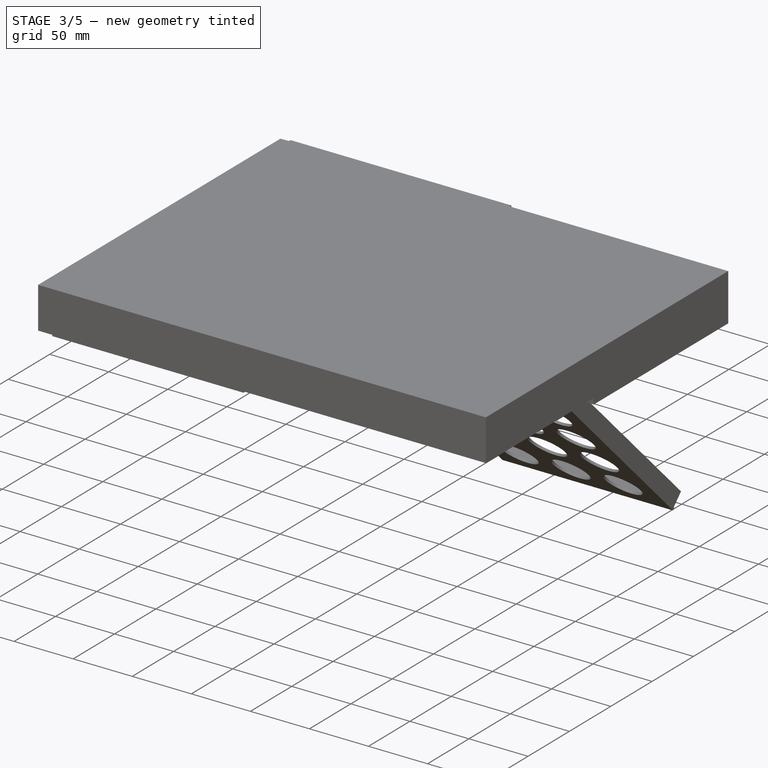
[diagram: stage 3 of 5 — iso view after this stage's code; geometry added in this stage tinted green]
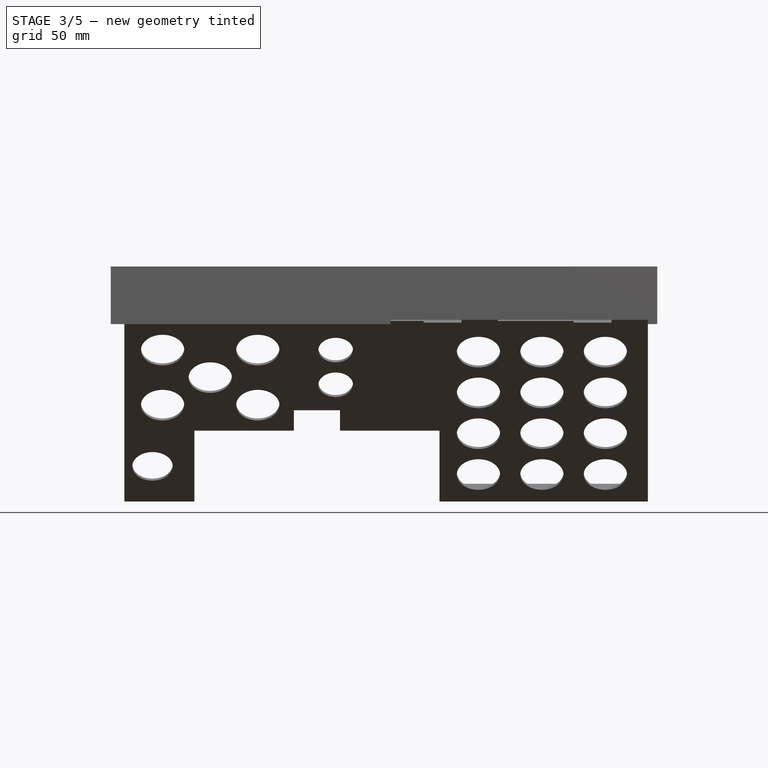
[diagram: stage 3 of 5 — front view after this stage's code; geometry added in this stage tinted green]
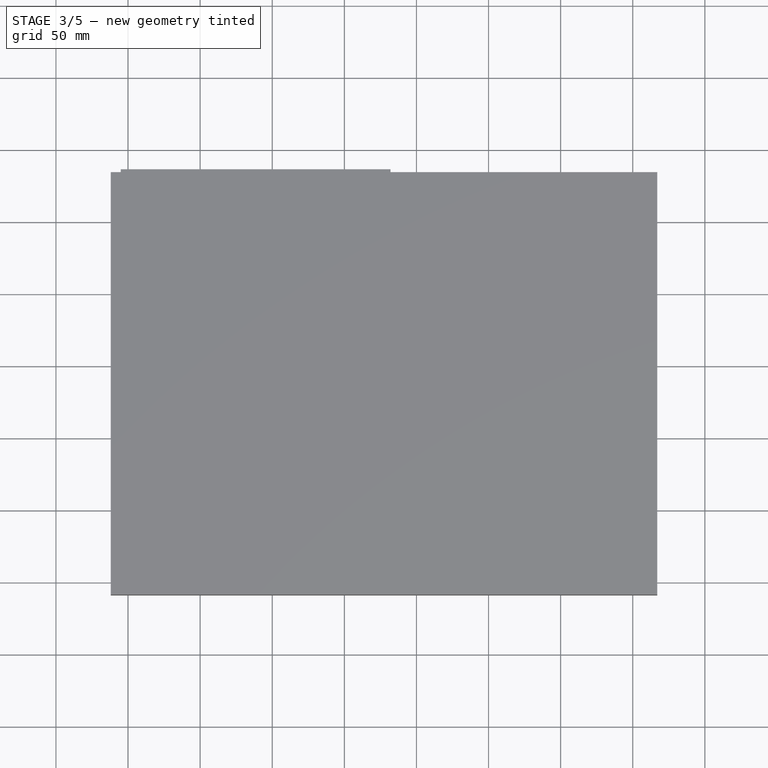
[diagram: stage 3 of 5 — top view after this stage's code; geometry added in this stage tinted green]
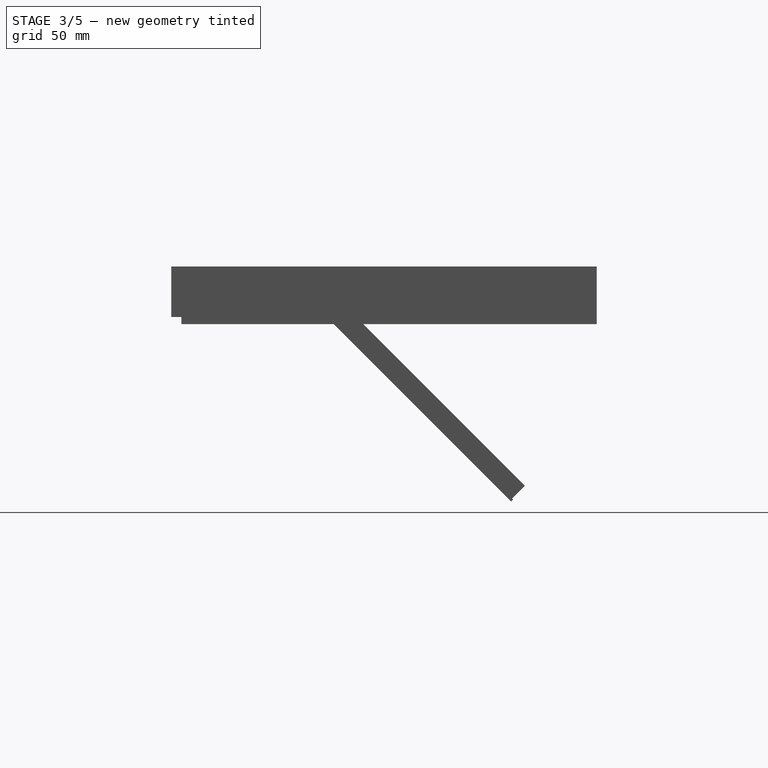
[diagram: stage 3 of 5 — right view after this stage's code; geometry added in this stage tinted green]
FEATURE [PartDesign::Body] Body011  label="jetson caddy001"
  BaseFeature = -> Compound003
  Group = -> [Clone011]
  Origin = -> Origin011
  Placement = pos=(321,262,-22) rot=(0.707107,-0.707107,0;3.14159rad)
  Tip = -> Clone011
FEATURE [Sketcher::SketchObject] Sketch027
  FullyConstrained = true
  Placement = pos=(0,239,0) rot=(0,0.707107,0.707107;3.14159rad)
  sketch-geometry (8):
    g0: LineSegment StartX=-251.5 StartY=-22.18 StartZ=0 EndX=-249.5 EndY=-24.18 EndZ=0
    g1: LineSegment StartX=-249.5 StartY=-24.18 StartZ=0 EndX=-247.5 EndY=-24.18 EndZ=0
    g2: LineSegment StartX=-247.5 StartY=-24.18 StartZ=0 EndX=-247.5 EndY=5.32 EndZ=0
    g3: LineSegment StartX=-251.5 StartY=-22.18 StartZ=0 EndX=-248.5 EndY=-22.18 EndZ=0
    g4: LineSegment StartX=-248.5 StartY=-22.18 StartZ=0 EndX=-248.5 EndY=3.32 EndZ=0
    g5: LineSegment StartX=-247.5 StartY=5.32 StartZ=0 EndX=-258.5 EndY=5.32 EndZ=0
    g6: LineSegment StartX=-258.5 StartY=5.32 StartZ=0 EndX=-258.5 EndY=3.32 EndZ=0
    g7: LineSegment StartX=-258.5 StartY=3.32 StartZ=0 EndX=-248.5 EndY=3.32 EndZ=0
  constraints (24):
    c: Coincident(g0,g1)
    c: Horizontal(g1)
    c: Coincident(g1,g2)
    c: Vertical(g2)
    c: DistanceY(g2) = 5.32
    c: Coincident(g0,g3)
    c: Horizontal(g3)
    c: Vertical(g4)
    c: DistanceY(g4,g2) = 2
    c: Coincident(g2,g5)
    c: Horizontal(g5)
    c: Coincident(g5,g6)
    c: Vertical(g6)
    c: DistanceY(g0,g3) = 2
    c: DistanceX(g3,g3) = 3
    c: DistanceX(g4,g2) = 1
    c: DistanceX(g6,g4) = 10
    c: Coincident(g7,g4)
    c: Coincident(g7,g6)
    c: Horizontal(g7)
    c: DistanceX(g4) = -248.5
    c: Coincident(g3,g4)
    c: DistanceY(g2,g2) = 29.5
    c: DistanceX(g1,g1) = 2
FEATURE [Part::Extrusion] Extrude021  label="clip"
  Base = -> Sketch027
  Dir = (0,1,-2e-16)
  DirMode = 2
  FaceMakerClass = Part::FaceMakerBullseye
  LengthFwd = 0
  LengthRev = 25
  Placement = pos=(-28,0,0) rot=(0,0,1;0rad)
  Solid = true
  Symmetric = false
FEATURE [PartDesign::FeatureBase] Clone012
  BaseFeature = -> Extrude021
FEATURE [PartDesign::Body] Body012
  BaseFeature = -> Extrude021
  Group = -> [Clone012]
  Origin = -> Origin012
  Tip = -> Clone012
FEATURE [Part::Mirroring] Part__Mirroring  label="clip001"
  Base = (0,0,0)
  Normal = (1,0,0)
  Placement = pos=(570,0,0) rot=(0,0,1;0rad)
  Source = -> Body012
FEATURE [Sketcher::SketchObject] Sketch051
  FullyConstrained = true
  Placement = pos=(0,0,-3.64) rot=(0,0,1;0rad)
  sketch-geometry (16):
    g0: LineSegment StartX=155.5 StartY=-2.5 StartZ=0 EndX=157.5 EndY=-0.5 EndZ=0
    g1: LineSegment StartX=157.5 StartY=-0.5 StartZ=0 EndX=155.5 EndY=-0.5 EndZ=0
    g2: LineSegment StartX=157 StartY=19.5 StartZ=0 EndX=147 EndY=19.5 EndZ=0
    g3: LineSegment StartX=147 StartY=19.5 StartZ=0 EndX=147 EndY=17.5 EndZ=0
    g4: LineSegment StartX=147 StartY=17.5 StartZ=0 EndX=156 EndY=17.5 EndZ=0
    g5: LineSegment StartX=155.5 StartY=-0.5 StartZ=0 EndX=155.5 EndY=2 EndZ=0
    g6: LineSegment StartX=155.5 StartY=2 StartZ=0 EndX=157 EndY=3.5 EndZ=0
    g7: LineSegment StartX=157 StartY=3.5 StartZ=0 EndX=157 EndY=19.5 EndZ=0
    g8: LineSegment StartX=154.5 StartY=-1.5 StartZ=0 EndX=154.5 EndY=2.41421 EndZ=0
    g9: LineSegment StartX=154.5 StartY=2.41421 StartZ=0 EndX=156 EndY=3.91421 EndZ=0
    g10: LineSegment StartX=156 StartY=3.91421 StartZ=0 EndX=156 EndY=17.5 EndZ=0
    g11: LineSegment StartX=155.5 StartY=-2.5 StartZ=0 EndX=153.5 EndY=-2.5 EndZ=0
    g12: LineSegment StartX=153.5 StartY=-2.5 StartZ=0 EndX=153.5 EndY=-3.5 EndZ=0
    g13: LineSegment StartX=153.5 StartY=-3.5 StartZ=0 EndX=152.5 EndY=-3.5 EndZ=0
    g14: LineSegment StartX=152.5 StartY=-3.5 StartZ=0 EndX=152.5 EndY=-1.5 EndZ=0
    g15: LineSegment StartX=152.5 StartY=-1.5 StartZ=0 EndX=154.5 EndY=-1.5 EndZ=0
  constraints (48):
    c: Coincident(g0,g1)
    c: Horizontal(g1)
    c: Horizontal(g2)
    c: Coincident(g2,g3)
    c: Vertical(g3)
    c: Coincident(g3,g4)
    c: Horizontal(g4)
    c: Vertical(g1,g0)
    c: DistanceX(g8,g0) = 1
    c: DistanceX(g1,g1) = 2
    c: DistanceX(g8) = 154.5
    c: DistanceY(g1,g2) = 20
    c: DistanceY(g3,g3) = 2
    c: DistanceX(g2,g2) = 10
    c: Coincident(g1,g5)
    c: Coincident(g5,g6)
    c: Coincident(g6,g7)
    c: Vertical(g7)
    c: Vertical(g8)
    c: Coincident(g8,g9)
    c: Coincident(g9,g10)
    c: Vertical(g10)
    c: Coincident(g4,g10)
    c: Coincident(g2,g7)
    c: Parallel(g9,g6)
    c: DistanceX(g4,g2) = 1
    c: DistanceX(g2) = 157
    c: Vertical(g5)
    c: DistanceY(g5,g5) = 2.5
    c: Angle(g6,g5,g5) = 0.785398
    c: Distance(g9,g6) = 1
    c: DistanceY(g0,g1) = 2
    c: DistanceY(g1) = -0.5
    c: Coincident(g0,g11)
    c: Horizontal(g11)
    c: Coincident(g11,g12)
    c: Vertical(g12)
    c: Coincident(g12,g13)
    c: Horizontal(g13)
    c: Coincident(g13,g14)
    c: Vertical(g14)
    c: Coincident(g14,g15)
    c: Coincident(g15,g8)
    c: Horizontal(g15)
    c: DistanceX(g13,g13) = 1
    c: DistanceY(g11,g14) = 1
    c: DistanceX(g11,g11) = 2
    c: DistanceY(g12,g12) = 1
FEATURE [Part::Extrusion] Extrude041  label="clip003"
  Base = -> Sketch051
  Dir = (0,0,1)
  DirMode = 2
  FaceMakerClass = Part::FaceMakerBullseye
  LengthFwd = 0
  LengthRev = 10.4
  Placement = pos=(23,2,0) rot=(0,0,1;0rad)
  Solid = true
  Symmetric = false
FEATURE [PartDesign::FeatureBase] Clone029
  BaseFeature = -> Extrude041
FEATURE [PartDesign::Body] Body029
  BaseFeature = -> Extrude041
  Group = -> [Clone029]
  Origin = -> Origin029
  Tip = -> Clone029
FEATURE [Part::Mirroring] Part__Mirroring001  label="clip002"
  Base = (-9.53674e-07,10,-8.84)
  Normal = (1,0,-1.19209e-07)
  Placement = pos=(401,2,0) rot=(0,0,1;0rad)
  Source = -> Body029
FEATURE [Sketcher::SketchObject] Sketch061
  FullyConstrained = true
  Placement = pos=(147,0,0) rot=(0.57735,0.57735,0.57735;2.0944rad)
  sketch-geometry (6):
    g0: LineSegment StartX=3 StartY=-2 StartZ=0 EndX=8 EndY=-2 EndZ=0
    g1: LineSegment StartX=8 StartY=-2 StartZ=0 EndX=8 EndY=-3 EndZ=0
    g2: LineSegment StartX=8 StartY=-3 StartZ=0 EndX=4 EndY=-3 EndZ=0
    g3: LineSegment StartX=4 StartY=-3 StartZ=0 EndX=4 EndY=-23.5 EndZ=0
    g4: LineSegment StartX=4 StartY=-23.5 StartZ=0 EndX=3 EndY=-23.5 EndZ=0
    g5: LineSegment StartX=3 StartY=-23.5 StartZ=0 EndX=3 EndY=-2 EndZ=0
  constraints (18):
    c: Horizontal(g0)
    c: Coincident(g0,g1)
    c: Vertical(g1)
    c: Coincident(g1,g2)
    c: Horizontal(g2)
    c: Coincident(g2,g3)
    c: Vertical(g3)
    c: Coincident(g3,g4)
    c: Horizontal(g4)
    c: Coincident(g4,g5)
    c: Coincident(g5,g0)
    c: Vertical(g5)
    c: DistanceY(g1,g1) = 1
    c: DistanceX(g4,g4) = 1
    c: DistanceX(g0) = 3
    c: DistanceY(g0) = -2
    c: DistanceX(g0,g0) = 5
    c: DistanceY(g5,g5) = 21.5
FEATURE [Part::Extrusion] Extrude051  label="joiner006"
  Base = -> Sketch061
  Dir = (1,0,0)
  DirMode = 2
  FaceMakerClass = Part::FaceMakerBullseye
  LengthFwd = 20
  LengthRev = 0
  Solid = true
  Symmetric = false
FEATURE [PartDesign::FeatureBase] Clone042
  BaseFeature = -> Sketch051
  Placement = pos=(0,0,-3.64) rot=(0,0,1;0rad)
FEATURE [PartDesign::Body] Body042
  BaseFeature = -> Sketch051
  Group = -> [Clone042]
  Origin = -> Origin042
  Placement = pos=(119,0,0) rot=(0,0,1;0rad)
  Tip = -> Clone042
FEATURE [Part::Extrusion] Extrude062  label="clip004"
  Base = -> Body042
  Dir = (0,0,1)
  DirMode = 2
  FaceMakerClass = Part::FaceMakerBullseye
  LengthFwd = 0
  LengthRev = 8.4
  Placement = pos=(0,2,0) rot=(0,0,1;0rad)
  Solid = true
  Symmetric = false
FEATURE [PartDesign::FeatureBase] Clone043
  BaseFeature = -> Extrude062
FEATURE [PartDesign::Body] Body043
  BaseFeature = -> Extrude062
  Group = -> [Clone043]
  Origin = -> Origin043
  Tip = -> Clone043
FEATURE [Part::Mirroring] Part__Mirroring003  label="clip005"
  Base = (0,0,0)
  Normal = (1,0,0)
  Placement = pos=(614,2,0) rot=(0,0,1;0rad)
  Source = -> Body043
FEATURE [PartDesign::Body] Body045  label="screw hole008"
  BaseFeature = -> Extrude
  Group = -> [Clone045]
  Origin = -> Origin045
  Placement = pos=(260,3,-3.68) rot=(0.57735,-0.57735,-0.57735;4.18879rad)
  Tip = -> Clone045
FEATURE [Sketcher::SketchObject] Sketch073
  FullyConstrained = true
  Placement = pos=(178,0,0) rot=(0.57735,0.57735,0.57735;2.0944rad)
  sketch-geometry (6):
    g0: LineSegment StartX=209 StartY=-2 StartZ=0 EndX=204 EndY=-2 EndZ=0
    g1: LineSegment StartX=204 StartY=-2 StartZ=0 EndX=204 EndY=-3 EndZ=0
    g2: LineSegment StartX=204 StartY=-3 StartZ=0 EndX=208 EndY=-3 EndZ=0
    g3: LineSegment StartX=208 StartY=-3 StartZ=0 EndX=208 EndY=-12 EndZ=0
    g4: LineSegment StartX=208 StartY=-12 StartZ=0 EndX=209 EndY=-12 EndZ=0
    g5: LineSegment StartX=209 StartY=-12 StartZ=0 EndX=209 EndY=-2 EndZ=0
  constraints (18):
    c: Horizontal(g0)
    c: Coincident(g0,g1)
    c: Vertical(g1)
    c: Coincident(g1,g2)
    c: Horizontal(g2)
    c: Coincident(g2,g3)
    c: Vertical(g3)
    c: Coincident(g3,g4)
    c: Horizontal(g4)
    c: Coincident(g4,g5)
    c: Coincident(g5,g0)
    c: Vertical(g5)
    c: DistanceY(g1,g1) = 1
    c: DistanceY(g0) = -2
    c: DistanceX(g4,g4) = 1
    c: DistanceX(g0,g0) = 5
    c: DistanceX(g0) = 209
    c: DistanceY(g3,g3) = 9
FEATURE [Part::Extrusion] Extrude065  label="joiner010"
  Base = -> Sketch073
  Dir = (1,0,0)
  DirMode = 2
  FaceMakerClass = Part::FaceMakerBullseye
  LengthFwd = 0
  LengthRev = 20
  Solid = true
  Symmetric = false
FEATURE [Sketcher::SketchObject] Sketch075
  FullyConstrained = true
  Placement = pos=(47,0,0) rot=(0.57735,0.57735,0.57735;2.0944rad)
  sketch-geometry (8):
    g0: Circle CenterX=275.34 CenterY=-23.84 CenterZ=0 NormalX=0 NormalY=0 NormalZ=1 AngleXU=0 Radius=1.16
    g1: LineSegment StartX=272.18 StartY=-25 StartZ=0 EndX=211.5 EndY=-25 EndZ=0
    g2: LineSegment StartX=211.5 StartY=-25 StartZ=0 EndX=211.5 EndY=-27 EndZ=0
    g3: LineSegment StartX=211.5 StartY=-27 StartZ=0 EndX=276.5 EndY=-27 EndZ=0
    g4: LineSegment StartX=278.5 StartY=-25 StartZ=0 EndX=278.5 EndY=-23.84 EndZ=0
    g5: LineSegment StartX=272.18 StartY=-23.84 StartZ=0 EndX=272.18 EndY=-25 EndZ=0
    g6: LineSegment StartX=278.5 StartY=-25 StartZ=0 EndX=276.5 EndY=-27 EndZ=0
    g7: ArcOfCircle CenterX=275.34 CenterY=-23.84 CenterZ=0 NormalX=0 NormalY=0 NormalZ=1 AngleXU=0 Radius=3.16 StartAngle=0 EndAngle=3.14159
  constraints (24):
    c: Radius(g0) = 1.16
    c: DistanceX(g0) = 275.34
    c: DistanceY(g0) = -23.84
    c: Coincident(g1,g2)
    c: Vertical(g2)
    c: Coincident(g2,g3)
    c: Horizontal(g3)
    c: Horizontal(g1)
    c: Vertical(g4)
    c: Coincident(g5,g1)
    c: Coincident(g4,g6)
    c: Coincident(g3,g6)
    c: Vertical(g5)
    c: DistanceY(g1,g0) = 1.16
    c: DistanceY(g3,g4) = 2
    c: Coincident(g7,g0)
    c: Coincident(g7,g4)
    c: Coincident(g7,g5)
    c: Horizontal(g5,g0)
    c: Horizontal(g0,g4)
    c: Radius(g7) = 3.16
    c: Horizontal(g4,g1)
    c: DistanceX(g3,g4) = 2
    c: DistanceX(g1) = 211.5
FEATURE [Part::Extrusion] Extrude067
  Base = -> Sketch075
  Dir = (1,0,0)
  DirMode = 2
  FaceMakerClass = Part::FaceMakerBullseye
  LengthFwd = 168
  LengthRev = 0
  Solid = true
  Symmetric = false
FEATURE [Sketcher::SketchObject] Sketch078
  FullyConstrained = true
  Placement = pos=(0,279,0) rot=(0,0.707107,0.707107;3.14159rad)
  sketch-geometry (8):
    g0: LineSegment StartX=-215 StartY=-28 StartZ=0 EndX=-189.5 EndY=-28 EndZ=0
    g1: LineSegment StartX=-189.5 StartY=-28 StartZ=0 EndX=-189.5 EndY=-20 EndZ=0
    g2: LineSegment StartX=-189.5 StartY=-20 StartZ=0 EndX=-215 EndY=-20 EndZ=0
    g3: LineSegment StartX=-215 StartY=-20 StartZ=0 EndX=-215 EndY=-28 EndZ=0
    g4: LineSegment StartX=-46 StartY=-28 StartZ=0 EndX=-71.5 EndY=-28 EndZ=0
    g5: LineSegment StartX=-71.5 StartY=-28 StartZ=0 EndX=-71.5 EndY=-20 EndZ=0
    g6: LineSegment StartX=-71.5 StartY=-20 StartZ=0 EndX=-46 EndY=-20 EndZ=0
    g7: LineSegment StartX=-46 StartY=-20 StartZ=0 EndX=-46 EndY=-28 EndZ=0
  constraints (24):
    c: Coincident(g0,g1)
    c: Coincident(g1,g2)
    c: Coincident(g2,g3)
    c: Coincident(g3,g0)
    c: Horizontal(g0)
    c: Horizontal(g2)
    c: Vertical(g1)
    c: Vertical(g3)
    c: DistanceX(g0) = -215
    c: DistanceY(g0) = -28
    c: DistanceY(g3,g3) = 8
    c: DistanceX(g0,g0) = 25.5
    c: Coincident(g4,g5)
    c: Coincident(g5,g6)
    c: Coincident(g6,g7)
    c: Coincident(g7,g4)
    c: Horizontal(g4)
    c: Horizontal(g6)
    c: Vertical(g5)
    c: Vertical(g7)
    c: DistanceX(g4) = -46
    c: DistanceX(g4,g4) = 25.5
    c: Horizontal(g1,g5)
    c: Horizontal(g4,g0)
FEATURE [Part::Extrusion] Extrude070
  Base = -> Sketch078
  Dir = (0,1,-2e-16)
  DirMode = 2
  FaceMakerClass = Part::FaceMakerBullseye
  LengthFwd = 0
  LengthRev = 7
  Solid = true
  Symmetric = false
FEATURE [PartDesign::Body] Body048  label="endpiece002"
  BaseFeature = -> Extrude080
  Group = -> [Clone048]
  Origin = -> Origin048
  Placement = pos=(1,0,0) rot=(0,0,1;0rad)
  Tip = -> Clone048
FEATURE [Sketcher::SketchObject] Sketch089
  FullyConstrained = true
  Placement = pos=(143,0,0) rot=(0.57735,-0.57735,-0.57735;2.0944rad)
  sketch-geometry (6):
    g0: LineSegment StartX=-90.5 StartY=-25 StartZ=0 EndX=-90.5 EndY=-26 EndZ=0
    g1: LineSegment StartX=-90.5 StartY=-26 StartZ=0 EndX=-95.5 EndY=-26 EndZ=0
    g2: LineSegment StartX=-95.5 StartY=-26 StartZ=0 EndX=-95.5 EndY=-21 EndZ=0
    g3: LineSegment StartX=-95.5 StartY=-21 StartZ=0 EndX=-94.5 EndY=-21 EndZ=0
    g4: LineSegment StartX=-94.5 StartY=-21 StartZ=0 EndX=-94.5 EndY=-25 EndZ=0
    g5: LineSegment StartX=-94.5 StartY=-25 StartZ=0 EndX=-90.5 EndY=-25 EndZ=0
  constraints (18):
    c: Vertical(g0)
    c: Coincident(g0,g1)
    c: Horizontal(g1)
    c: Coincident(g1,g2)
    c: Vertical(g2)
    c: Coincident(g2,g3)
    c: Horizontal(g3)
    c: Coincident(g3,g4)
    c: Vertical(g4)
    c: Coincident(g4,g5)
    c: Coincident(g5,g0)
    c: Horizontal(g5)
    c: DistanceX(g1) = -95.5
    c: DistanceY(g2,g2) = 5
    c: DistanceX(g3,g3) = 1
    c: DistanceX(g1,g1) = 5
    c: DistanceY(g0,g0) = 1
    c: DistanceY(g1) = -26
FEATURE [Part::Extrusion] Extrude081  label="joiner011"
  Base = -> Sketch089
  Dir = (-1,0,0)
  DirMode = 2
  FaceMakerClass = Part::FaceMakerBullseye
  LengthFwd = 0
  LengthRev = 20
  Solid = true
  Symmetric = false
FEATURE [Sketcher::SketchObject] Sketch097
  FullyConstrained = true
  Placement = pos=(147,0,0) rot=(0.57735,0.57735,0.57735;2.0944rad)
  sketch-geometry (6):
    g0: LineSegment StartX=94.5 StartY=-6 StartZ=0 EndX=94.5 EndY=-2 EndZ=0
    g1: LineSegment StartX=94.5 StartY=-2 StartZ=0 EndX=86.5 EndY=-2 EndZ=0
    g2: LineSegment StartX=86.5 StartY=-2 StartZ=0 EndX=86.5 EndY=-3 EndZ=0
    g3: LineSegment StartX=86.5 StartY=-3 StartZ=0 EndX=93.5 EndY=-3 EndZ=0
    g4: LineSegment StartX=93.5 StartY=-3 StartZ=0 EndX=93.5 EndY=-6 EndZ=0
    g5: LineSegment StartX=93.5 StartY=-6 StartZ=0 EndX=94.5 EndY=-6 EndZ=0
  constraints (18):
    c: Vertical(g0)
    c: Coincident(g0,g1)
    c: Horizontal(g1)
    c: Coincident(g1,g2)
    c: Vertical(g2)
    c: Coincident(g2,g3)
    c: Horizontal(g3)
    c: Coincident(g3,g4)
    c: Vertical(g4)
    c: Coincident(g4,g5)
    c: Coincident(g5,g0)
    c: Horizontal(g5)
    c: DistanceX(g5,g5) = 1
    c: DistanceY(g2,g2) = 1
    c: DistanceX(g0) = 94.5
    c: DistanceY(g0) = -2
    c: DistanceX(g1,g1) = 8
    c: DistanceY(g0,g0) = 4
FEATURE [Part::Extrusion] Extrude089  label="joiner013"
  Base = -> Sketch097
  Dir = (1,-2e-16,2e-16)
  DirMode = 2
  FaceMakerClass = Part::FaceMakerBullseye
  LengthFwd = 20
  LengthRev = 0
  Placement = pos=(0,10.5,0) rot=(0,0,1;0rad)
  Solid = true
  Symmetric = false
FEATURE [Sketcher::SketchObject] Sketch117
  FullyConstrained = true
  Placement = pos=(0,0,1) rot=(1,0,0;3.14159rad)
  expr: Constraints[0] = Spreadsheet.m3_r3
  sketch-geometry (4):
    g0: Circle CenterX=12 CenterY=-88 CenterZ=0 NormalX=0 NormalY=0 NormalZ=1 AngleXU=0 Radius=1.28
    g1: Circle CenterX=40 CenterY=-82.25 CenterZ=0 NormalX=0 NormalY=0 NormalZ=1 AngleXU=0 Radius=1.28
    g2: Circle CenterX=12 CenterY=-192.75 CenterZ=0 NormalX=0 NormalY=0 NormalZ=1 AngleXU=0 Radius=1.28
    g3: Circle CenterX=40 CenterY=-193.75 CenterZ=0 NormalX=0 NormalY=0 NormalZ=1 AngleXU=0 Radius=1.28
  constraints (12):
    c: Radius(g0) = 1.28
    c: Equal(g0,g1) = 1.6
    c: Equal(g0,g2) = 1.6
    c: Equal(g0,g3) = 1.6
    c: DistanceX(g0) = 12
    c: DistanceY(g0) = -88
    c: DistanceX(g1) = 40
    c: DistanceY(g1) = -82.25
    c: DistanceY(g2) = -192.75
    c: DistanceY(g3) = -193.75
    c: Vertical(g1,g3)
    c: Vertical(g2,g0)
FEATURE [Part::Extrusion] Extrude107
  Base = -> Sketch117
  Dir = (0,1e-16,-1)
  DirMode = 2
  FaceMakerClass = Part::FaceMakerBullseye
  LengthFwd = 3
  LengthRev = 0
  Solid = true
  Symmetric = false
FEATURE [Sketcher::SketchObject] Sketch118
  FullyConstrained = true
  Placement = pos=(0,105,0) rot=(0,0.707107,0.707107;3.14159rad)
  sketch-geometry (8):
    g0: LineSegment StartX=-146 StartY=-6 StartZ=0 EndX=-144 EndY=-6 EndZ=0
    g1: LineSegment StartX=-144 StartY=-6 StartZ=0 EndX=-144 EndY=-2 EndZ=0
    g2: LineSegment StartX=-144 StartY=-2 StartZ=0 EndX=-136 EndY=-2 EndZ=0
    g3: LineSegment StartX=-136 StartY=-2 StartZ=0 EndX=-136 EndY=0 EndZ=0
    g4: LineSegment StartX=-136 StartY=0 StartZ=0 EndX=-154 EndY=0 EndZ=0
    g5: LineSegment StartX=-154 StartY=0 StartZ=0 EndX=-154 EndY=-2 EndZ=0
    g6: LineSegment StartX=-154 StartY=-2 StartZ=0 EndX=-146 EndY=-2 EndZ=0
    g7: LineSegment StartX=-146 StartY=-2 StartZ=0 EndX=-146 EndY=-6 EndZ=0
  constraints (24):
    c: Horizontal(g0)
    c: Coincident(g0,g1)
    c: Vertical(g1)
    c: Coincident(g1,g2)
    c: Horizontal(g2)
    c: Coincident(g2,g3)
    c: Vertical(g3)
    c: Coincident(g3,g4)
    c: Horizontal(g4)
    c: Coincident(g4,g5)
    c: Coincident(g5,g6)
    c: Horizontal(g6)
    c: Coincident(g6,g7)
    c: Coincident(g7,g0)
    c: Vertical(g7)
    c: Vertical(g5)
    c: DistanceY(g1,g1) = 4
    c: DistanceX(g0,g0) = 2
    c: DistanceY(g3,g3) = 2
    c: DistanceX(g2,g2) = 8
    c: DistanceX(g4,g4) = 18
    c: DistanceX(g0) = -144
    c: PointOnObject(g3,g-1)
    c: Horizontal(g6,g1)
FEATURE [Part::Extrusion] Extrude108  label="stringer008"
  Base = -> Sketch118
  Dir = (1e-16,1,0)
  DirMode = 2
  FaceMakerClass = Part::FaceMakerBullseye
  LengthFwd = 0
  LengthRev = 102
  Solid = true
  Symmetric = false
FEATURE [PartDesign::FeatureBase] Clone063
  BaseFeature = -> Extrude089
  Placement = pos=(0,10.5,0) rot=(0,0,1;0rad)
FEATURE [PartDesign::Body] Body063  label="joiner020"
  BaseFeature = -> Extrude089
  Group = -> [Clone063]
  Origin = -> Origin063
  Placement = pos=(314,212,0) rot=(0,0,1;3.14159rad)
  Tip = -> Clone063
FEATURE [Part::Compound] Compound023  label="inner joiners"
  Links = -> [Body063,Extrude089,Extrude065,Extrude051]
FEATURE [Part::Compound] Compound024  label="clips"
  Links = -> [Extrude021,Part__Mirroring,Extrude041,Part__Mirroring001,Extrude062,Part__Mirroring003]
FEATURE [Sketcher::SketchObject] Sketch123
  FullyConstrained = true
  Placement = pos=(0,0,-25) rot=(1,0,0;3.14159rad)
  sketch-geometry (16):
    g0: LineSegment StartX=-2.5 StartY=-96.5 StartZ=0 EndX=360.5 EndY=-96.5 EndZ=0
    g1: LineSegment StartX=360.5 StartY=-96.5 StartZ=0 EndX=360.5 EndY=-94.5 EndZ=0
    g2: LineSegment StartX=254 StartY=-94.5 StartZ=0 EndX=163.5 EndY=-94.5 EndZ=0
    g3: LineSegment StartX=-2.5 StartY=-94.5 StartZ=0 EndX=-2.5 EndY=-96.5 EndZ=0
    g4: LineSegment StartX=127 StartY=-94.5 StartZ=0 EndX=127 EndY=-0.5 EndZ=0
    g5: LineSegment StartX=127 StartY=-0.5 StartZ=0 EndX=125 EndY=-0.5 EndZ=0
    g6: LineSegment StartX=125 StartY=-0.5 StartZ=0 EndX=125 EndY=-94.5 EndZ=0
    g7: LineSegment StartX=125 StartY=-94.5 StartZ=0 EndX=-2.5 EndY=-94.5 EndZ=0
    g8: LineSegment StartX=360.5 StartY=-94.5 StartZ=0 EndX=256 EndY=-94.5 EndZ=0
    g9: LineSegment StartX=256 StartY=-94.5 StartZ=0 EndX=256 EndY=-0.5 EndZ=0
    g10: LineSegment StartX=256 StartY=-0.5 StartZ=0 EndX=254 EndY=-0.5 EndZ=0
    g11: LineSegment StartX=254 StartY=-0.5 StartZ=0 EndX=254 EndY=-94.5 EndZ=0
    g12: LineSegment StartX=142.5 StartY=-94.5 StartZ=0 EndX=127 EndY=-94.5 EndZ=0
    g13: LineSegment StartX=142.5 StartY=-94.5 StartZ=0 EndX=142.5 EndY=-95.5 EndZ=0
    g14: LineSegment StartX=142.5 StartY=-95.5 StartZ=0 EndX=163.5 EndY=-95.5 EndZ=0
    g15: LineSegment StartX=163.5 StartY=-95.5 StartZ=0 EndX=163.5 EndY=-94.5 EndZ=0
  constraints (48):
    c: Horizontal(g0)
    c: Coincident(g0,g1)
    c: Vertical(g1)
    c: Horizontal(g2)
    c: DistanceY(g0) = -96.5
    c: Vertical(g3)
    c: Vertical(g4)
    c: Coincident(g4,g5)
    c: Horizontal(g5)
    c: Coincident(g5,g6)
    c: Vertical(g6)
    c: Coincident(g6,g7)
    c: Coincident(g7,g3)
    c: Horizontal(g7)
    c: DistanceX(g3) = -2.5
    c: DistanceX(g5,g5) = 2
    c: DistanceY(g5) = -0.5
    c: DistanceX(g1) = 360.5
    c: Coincident(g1,g8)
    c: Horizontal(g8)
    c: Coincident(g8,g9)
    c: Vertical(g9)
    c: Coincident(g9,g10)
    c: Horizontal(g10)
    c: Coincident(g10,g11)
    c: Vertical(g11)
    c: Coincident(g2,g11)
    c: DistanceX(g10,g10) = 2
    c: Horizontal(g10,g4)
    c: Horizontal(g8,g2)
    c: DistanceX(g5) = 125
    c: DistanceX(g10) = 254
    c: Horizontal(g4,g6)
    c: Coincident(g12,g4)
    c: Horizontal(g12)
    c: DistanceX(g12,g12) = 15.5
    c: Horizontal(g2,g12)
    c: Coincident(g0,g3)
    c: DistanceY(g3,g3) = 2
    c: Coincident(g12,g13)
    c: Coincident(g13,g14)
    c: Horizontal(g14)
    c: Coincident(g14,g15)
    c: Coincident(g15,g2)
    c: Vertical(g15)
    c: DistanceY(g15,g15) = 1
    c: Vertical(g13)
    c: DistanceX(g14,g14) = 21
FEATURE [Part::Extrusion] Extrude113  label="stringer012"
  Base = -> Sketch123
  Dir = (0,0,-1)
  DirMode = 2
  FaceMakerClass = Part::FaceMakerBullseye
  LengthFwd = 0
  LengthRev = 4
  Solid = true
  Symmetric = false
FEATURE [Sketcher::SketchObject] Sketch124
  FullyConstrained = true
  Placement = pos=(0,0,-26) rot=(1,0,0;3.14159rad)
  sketch-geometry (16):
    g0: LineSegment StartX=-0.5 StartY=-94 StartZ=0 EndX=2.5 EndY=-94 EndZ=0
    g1: LineSegment StartX=2.5 StartY=-94 StartZ=0 EndX=2.5 EndY=-106.5 EndZ=0
    g2: LineSegment StartX=2.5 StartY=-106.5 StartZ=0 EndX=-0.5 EndY=-106.5 EndZ=0
    g3: LineSegment StartX=-0.5 StartY=-106.5 StartZ=0 EndX=-0.5 EndY=-94 EndZ=0
    g4: LineSegment StartX=355.5 StartY=-94 StartZ=0 EndX=358.5 EndY=-94 EndZ=0
    g5: LineSegment StartX=358.5 StartY=-94 StartZ=0 EndX=358.5 EndY=-106.5 EndZ=0
    g6: LineSegment StartX=358.5 StartY=-106.5 StartZ=0 EndX=355.5 EndY=-106.5 EndZ=0
    g7: LineSegment StartX=355.5 StartY=-106.5 StartZ=0 EndX=355.5 EndY=-94 EndZ=0
    g8: LineSegment StartX=124.5 StartY=-0.5 StartZ=0 EndX=127.5 EndY=-0.5 EndZ=0
    g9: LineSegment StartX=127.5 StartY=-0.5 StartZ=0 EndX=127.5 EndY=-3.5 EndZ=0
    g10: LineSegment StartX=127.5 StartY=-3.5 StartZ=0 EndX=124.5 EndY=-3.5 EndZ=0
    g11: LineSegment StartX=124.5 StartY=-3.5 StartZ=0 EndX=124.5 EndY=-0.5 EndZ=0
    g12: LineSegment StartX=253.5 StartY=-0.5 StartZ=0 EndX=256.5 EndY=-0.5 EndZ=0
    g13: LineSegment StartX=256.5 StartY=-0.5 StartZ=0 EndX=256.5 EndY=-3.5 EndZ=0
    g14: LineSegment StartX=256.5 StartY=-3.5 StartZ=0 EndX=253.5 EndY=-3.5 EndZ=0
    g15: LineSegment StartX=253.5 StartY=-3.5 StartZ=0 EndX=253.5 EndY=-0.5 EndZ=0
  constraints (48):
    c: Coincident(g0,g1)
    c: Coincident(g1,g2)
    c: Coincident(g2,g3)
    c: Coincident(g3,g0)
    c: Horizontal(g0)
    c: Horizontal(g2)
    c: Vertical(g1)
    c: Vertical(g3)
    c: DistanceX(g0) = -0.5
    c: DistanceX(g0,g0) = 3
    c: DistanceY(g3,g3) = 12.5
    c: DistanceY(g0) = -94
    c: Coincident(g4,g5)
    c: Coincident(g5,g6)
    c: Coincident(g6,g7)
    c: Coincident(g7,g4)
    c: Horizontal(g4)
    c: Horizontal(g6)
    c: Vertical(g5)
    c: Vertical(g7)
    c: DistanceX(g4,g4) = 3
    c: DistanceX(g4) = 355.5
    c: Horizontal(g4,g0)
    c: Horizontal(g6,g1)
    c: Coincident(g8,g9)
    c: Coincident(g9,g10)
    c: Coincident(g10,g11)
    c: Coincident(g11,g8)
    c: Horizontal(g8)
    c: Horizontal(g10)
    c: Vertical(g9)
    c: Vertical(g11)
    c: DistanceY(g8) = -0.5
    c: DistanceX(g8,g8) = 3
    c: DistanceY(g11,g11) = 3
    c: Coincident(g12,g13)
    c: Coincident(g13,g14)
    c: Coincident(g14,g15)
    c: Coincident(g15,g12)
    c: Horizontal(g12)
    c: Horizontal(g14)
    c: Vertical(g13)
    c: Vertical(g15)
    c: DistanceX(g12,g12) = 3
    c: Horizontal(g12,g8)
    c: Horizontal(g9,g14)
    c: DistanceX(g12) = 253.5
    c: DistanceX(g8) = 124.5
FEATURE [Part::Extrusion] Extrude114
  Base = -> Sketch124
  Dir = (0,1e-16,-1)
  DirMode = 2
  FaceMakerClass = Part::FaceMakerBullseye
  LengthFwd = 0
  LengthRev = 6
  Solid = true
  Symmetric = false
FEATURE [Sketcher::SketchObject] Sketch126
  FullyConstrained = true
  expr: Constraints[1] = Spreadsheet.m3_r3
  sketch-geometry (1):
    g0: Circle CenterX=0 CenterY=0 CenterZ=0 NormalX=0 NormalY=0 NormalZ=1 AngleXU=0 Radius=1.28
  constraints (2):
    c: Coincident(g0,g-1)
    c: Radius(g0) = 1.28
FEATURE [Part::Extrusion] Extrude116  label="screw inner"
  Base = -> Sketch126
  Dir = (0,0,1)
  DirMode = 2
  FaceMakerClass = Part::FaceMakerBullseye
  LengthFwd = 10
  LengthRev = 0
  Solid = true
  Symmetric = false
FEATURE [PartDesign::FeatureBase] Clone064
  BaseFeature = -> Extrude116
FEATURE [PartDesign::Body] Body067  label="screw outer002"
  BaseFeature = -> Extrude117
  Group = -> [Clone067]
  Origin = -> Origin067
  Placement = pos=(99.5,-6,-8.5) rot=(-1,0,0;1.5708rad)
  Tip = -> Clone067
FEATURE [PartDesign::FeatureBase] Clone068
  BaseFeature = -> Extrude116
FEATURE [PartDesign::Body] Body068  label="screw inner002"
  BaseFeature = -> Extrude116
  Group = -> [Clone068]
  Origin = -> Origin068
  Placement = pos=(7,-1,-8.5) rot=(-1,0,0;1.5708rad)
  Tip = -> Clone068
FEATURE [PartDesign::FeatureBase] Clone069
  BaseFeature = -> Extrude116
FEATURE [PartDesign::Body] Body069  label="screw inner003"
  BaseFeature = -> Extrude116
  Group = -> [Clone069]
  Origin = -> Origin069
  Placement = pos=(99.5,-1,-8.5) rot=(-1,0,0;1.5708rad)
  Tip = -> Clone069
FEATURE [PartDesign::FeatureBase] Clone070
  BaseFeature = -> Extrude116
FEATURE [PartDesign::Body] Body070  label="screw inner004"
  BaseFeature = -> Extrude116
  Group = -> [Clone070]
  Origin = -> Origin070
  Placement = pos=(133,-1,-3.68) rot=(-1,0,0;1.5708rad)
  Tip = -> Clone070
FEATURE [PartDesign::FeatureBase] Clone071
  BaseFeature = -> Extrude116
FEATURE [PartDesign::Body] Body071  label="screw inner005"
  BaseFeature = -> Extrude116
  Group = -> [Clone071]
  Origin = -> Origin071
  Placement = pos=(260,-1,-3.68) rot=(-1,0,0;1.5708rad)
  Tip = -> Clone071
FEATURE [PartDesign::FeatureBase] Clone072
  BaseFeature = -> Extrude116
FEATURE [PartDesign::Body] Body075  label="screw outer006"
  BaseFeature = -> Extrude117
  Group = -> [Clone075]
  Origin = -> Origin075
  Placement = pos=(366,51,-3.68) rot=(0.57735,0.57735,-0.57735;4.18879rad)
  Tip = -> Clone075
FEATURE [PartDesign::FeatureBase] Clone076
  BaseFeature = -> Extrude116
FEATURE [PartDesign::Body] Body076  label="screw inner007"
  BaseFeature = -> Extrude116
  Group = -> [Clone076]
  Origin = -> Origin076
  Placement = pos=(-2,146,-3.68) rot=(0.57735,-0.57735,0.57735;4.18879rad)
  Tip = -> Clone076
FEATURE [PartDesign::FeatureBase] Clone077
  BaseFeature = -> Extrude116
FEATURE [PartDesign::Body] Body077  label="screw inner008"
  BaseFeature = -> Extrude116
  Group = -> [Clone077]
  Origin = -> Origin077
  Placement = pos=(360,146,-3.68) rot=(0.57735,0.57735,-0.57735;4.18879rad)
  Tip = -> Clone077
FEATURE [PartDesign::FeatureBase] Clone078
  BaseFeature = -> Extrude116
FEATURE [PartDesign::Body] Body078  label="screw inner009"
  BaseFeature = -> Extrude116
  Group = -> [Clone078]
  Origin = -> Origin078
  Placement = pos=(134,213,-3.68) rot=(0,0.707107,-0.707107;3.14159rad)
  Tip = -> Clone078
FEATURE [PartDesign::FeatureBase] Clone079
  BaseFeature = -> Extrude116
FEATURE [PartDesign::Body] Body083  label="screw outer010"
  BaseFeature = -> Extrude117
  Group = -> [Clone083]
  Origin = -> Origin083
  Placement = pos=(330,214.5,-3.68) rot=(0,0.707107,-0.707107;3.14159rad)
  Tip = -> Clone083
FEATURE [Sketcher::SketchObject] Sketch128
  FullyConstrained = true
  Placement = pos=(7,0,0) rot=(0.57735,0.57735,0.57735;2.0944rad)
  expr: Constraints[4] = Spreadsheet.m3_r3 + 2
  expr: Constraints[1] = Spreadsheet.m3_r3
  sketch-geometry (7):
    g0: Circle CenterX=88 CenterY=-21 CenterZ=0 NormalX=0 NormalY=0 NormalZ=1 AngleXU=0 Radius=1.28
    g1: ArcOfCircle CenterX=88 CenterY=-21 CenterZ=0 NormalX=0 NormalY=0 NormalZ=1 AngleXU=0 Radius=3.28 StartAngle=2.35619 EndAngle=7.06858
    g2: LineSegment StartX=90.3193 StartY=-18.6807 StartZ=0 EndX=89 EndY=-17.3614 EndZ=0
    g3: LineSegment StartX=89 StartY=-17.3614 StartZ=0 EndX=89 EndY=-2 EndZ=0
    g4: LineSegment StartX=89 StartY=-2 StartZ=0 EndX=87 EndY=-2 EndZ=0
    g5: LineSegment StartX=87 StartY=-2 StartZ=0 EndX=87 EndY=-17.3614 EndZ=0
    g6: LineSegment StartX=87 StartY=-17.3614 StartZ=0 EndX=85.6807 EndY=-18.6807 EndZ=0
  constraints (20):
    c: DistanceY(g0) = -21
    c: Radius(g0) = 1.28
    c: DistanceX(g0) = 88
    c: Coincident(g1,g0)
    c: Radius(g1) = 3.28
    c: Horizontal(g1,g1)
    c: Tangent(g1,g2) = -1.5708
    c: Coincident(g2,g3)
    c: Vertical(g3)
    c: Coincident(g3,g4)
    c: Horizontal(g4)
    c: Coincident(g4,g5)
    c: Vertical(g5)
    c: Coincident(g5,g6)
    c: Coincident(g6,g1)
    c: DistanceY(g4) = -2
    c: DistanceX(g4,g4) = 2
    c: DistanceX(g0,g2) = 1
    c: Horizontal(g2,g5)
    c: Angle(g6,g5,g5) = 0.785398
FEATURE [Part::Extrusion] Extrude118  label="screw hole009"
  Base = -> Sketch128
  Dir = (1,0,0)
  DirMode = 2
  FaceMakerClass = Part::FaceMakerBullseye
  LengthFwd = 0
  LengthRev = 5
  Solid = true
  Symmetric = false
FEATURE [PartDesign::FeatureBase] Clone084
  BaseFeature = -> Extrude118
FEATURE [PartDesign::Body] Body084  label="screw hole010"
  BaseFeature = -> Extrude118
  Group = -> [Clone084]
  Origin = -> Origin084
  Placement = pos=(358,176,0) rot=(0,0,1;3.14159rad)
  Tip = -> Clone084
FEATURE [Sketcher::SketchObject] Sketch129
  FullyConstrained = true
  Placement = pos=(0,3,0) rot=(1,0,0;1.5708rad)
  expr: Constraints[1] = Spreadsheet.m3_r3
  expr: Constraints[3] = Spreadsheet.m3_r3 + 2
  sketch-geometry (7):
    g0: Circle CenterX=133 CenterY=-21 CenterZ=0 NormalX=0 NormalY=0 NormalZ=1 AngleXU=0 Radius=1.28
    g1: ArcOfCircle CenterX=133 CenterY=-21 CenterZ=0 NormalX=0 NormalY=0 NormalZ=1 AngleXU=0 Radius=3.28 StartAngle=2.35619 EndAngle=7.06858
    g2: LineSegment StartX=135.319 StartY=-18.6807 StartZ=0 EndX=134 EndY=-17.3614 EndZ=0
    g3: LineSegment StartX=134 StartY=-17.3614 StartZ=0 EndX=134 EndY=-6 EndZ=0
    g4: LineSegment StartX=134 StartY=-6 StartZ=0 EndX=132 EndY=-6 EndZ=0
    g5: LineSegment StartX=132 StartY=-6 StartZ=0 EndX=132 EndY=-17.3614 EndZ=0
    g6: LineSegment StartX=132 StartY=-17.3614 StartZ=0 EndX=130.681 EndY=-18.6807 EndZ=0
  constraints (20):
    c: DistanceY(g0) = -21
    c: Radius(g0) = 1.28
    c: Coincident(g1,g0)
    c: Radius(g1) = 3.28
    c: Horizontal(g1,g1)
    c: Tangent(g1,g2) = -1.5708
    c: Coincident(g2,g3)
    c: Vertical(g3)
    c: Coincident(g3,g4)
    c: Horizontal(g4)
    c: Coincident(g4,g5)
    c: Vertical(g5)
    c: Coincident(g5,g6)
    c: Coincident(g6,g1)
    c: DistanceX(g4,g4) = 2
    c: DistanceX(g0,g2) = 1
    c: Horizontal(g2,g5)
    c: Angle(g6,g5,g5) = 0.785398
    c: DistanceX(g0) = 133
    c: DistanceY(g3) = -6
FEATURE [Part::Extrusion] Extrude119  label="screw hole011"
  Base = -> Sketch129
  Dir = (0,-1,2e-16)
  DirMode = 2
  FaceMakerClass = Part::FaceMakerBullseye
  LengthFwd = 0
  LengthRev = 5
  Solid = true
  Symmetric = false
FEATURE [PartDesign::FeatureBase] Clone085
  BaseFeature = -> Extrude119
FEATURE [PartDesign::Body] Body085  label="screw hole012"
  BaseFeature = -> Extrude119
  Group = -> [Clone085]
  Origin = -> Origin085
  Placement = pos=(127,0,0) rot=(0,0,1;0rad)
  Tip = -> Clone085
FEATURE [Sketcher::SketchObject] Sketch130
  FullyConstrained = true
  Placement = pos=(172,0,0) rot=(0.57735,-0.57735,-0.57735;2.0944rad)
  sketch-geometry (6):
    g0: LineSegment StartX=-209 StartY=-21 StartZ=0 EndX=-209 EndY=-26 EndZ=0
    g1: LineSegment StartX=-209 StartY=-26 StartZ=0 EndX=-204 EndY=-26 EndZ=0
    g2: LineSegment StartX=-204 StartY=-26 StartZ=0 EndX=-204 EndY=-25 EndZ=0
    g3: LineSegment StartX=-204 StartY=-25 StartZ=0 EndX=-208 EndY=-25 EndZ=0
    g4: LineSegment StartX=-208 StartY=-25 StartZ=0 EndX=-208 EndY=-21 EndZ=0
    g5: LineSegment StartX=-208 StartY=-21 StartZ=0 EndX=-209 EndY=-21 EndZ=0
  constraints (18):
    c: Vertical(g0)
    c: Coincident(g0,g1)
    c: Horizontal(g1)
    c: Coincident(g1,g2)
    c: Vertical(g2)
    c: Coincident(g2,g3)
    c: Horizontal(g3)
    c: Coincident(g3,g4)
    c: Vertical(g4)
    c: Coincident(g4,g5)
    c: Coincident(g5,g0)
    c: Horizontal(g5)
    c: DistanceX(g5,g5) = 1
    c: DistanceY(g0,g3) = 1
    c: DistanceY(g0) = -26
    c: DistanceY(g0,g0) = 5
    c: DistanceX(g0) = -209
    c: DistanceX(g3,g3) = 4
FEATURE [Part::Extrusion] Extrude120  label="joiner022"
  Base = -> Sketch130
  Dir = (-1,0,0)
  DirMode = 2
  FaceMakerClass = Part::FaceMakerBullseye
  LengthFwd = 0
  LengthRev = 20
  Solid = true
  Symmetric = false
FEATURE [PartDesign::FeatureBase] Clone086
  BaseFeature = -> Extrude116
FEATURE [PartDesign::Body] Body086  label="screw inner011"
  BaseFeature = -> Extrude116
  Group = -> [Clone086]
  Origin = -> Origin086
  Placement = pos=(-1,88,-21) rot=(0,1,0;1.5708rad)
  Tip = -> Clone086
FEATURE [PartDesign::FeatureBase] Clone087
  BaseFeature = -> Extrude116
FEATURE [PartDesign::Body] Body087  label="screw inner012"
  BaseFeature = -> Extrude116
  Group = -> [Clone087]
  Origin = -> Origin087
  Placement = pos=(359,88,-21) rot=(0,-1,0;1.5708rad)
  Tip = -> Clone087
FEATURE [PartDesign::FeatureBase] Clone088
  BaseFeature = -> Extrude116
FEATURE [PartDesign::Body] Body088  label="screw inner013"
  BaseFeature = -> Extrude116
  Group = -> [Clone088]
  Origin = -> Origin088
  Placement = pos=(133,0,-21) rot=(-1,0,0;1.5708rad)
  Tip = -> Clone088
FEATURE [PartDesign::FeatureBase] Clone089
  BaseFeature = -> Extrude116
FEATURE [PartDesign::Body] Body089  label="screw inner014"
  BaseFeature = -> Extrude116
  Group = -> [Clone089]
  Origin = -> Origin089
  Placement = pos=(260,0,-21) rot=(-1,0,0;1.5708rad)
  Tip = -> Clone089
FEATURE [PartDesign::FeatureBase] Clone090
  BaseFeature = -> Extrude117
FEATURE [PartDesign::Body] Body090  label="screw outer011"
  BaseFeature = -> Extrude117
  Group = -> [Clone090]
  Origin = -> Origin090
  Placement = pos=(-3.5,88,-21) rot=(0,1,0;1.5708rad)
  Tip = -> Clone090
FEATURE [PartDesign::FeatureBase] Clone091
  BaseFeature = -> Extrude117
FEATURE [PartDesign::Body] Body091  label="screw outer012"
  BaseFeature = -> Extrude117
  Group = -> [Clone091]
  Origin = -> Origin091
  Placement = pos=(361.5,88,-21) rot=(0,-1,0;1.5708rad)
  Tip = -> Clone091
FEATURE [PartDesign::FeatureBase] Clone092
  BaseFeature = -> Extrude117
FEATURE [PartDesign::Body] Body092  label="screw outer013"
  BaseFeature = -> Extrude117
  Group = -> [Clone092]
  Origin = -> Origin092
  Placement = pos=(133,-2.5,-21) rot=(-1,0,0;1.5708rad)
  Tip = -> Clone092
FEATURE [PartDesign::FeatureBase] Clone093
  BaseFeature = -> Extrude117
FEATURE [PartDesign::Body] Body093  label="screw outer014"
  BaseFeature = -> Extrude117
  Group = -> [Clone093]
  Origin = -> Origin093
  Placement = pos=(260,-2.5,-21) rot=(-1,0,0;1.5708rad)
  Tip = -> Clone093
FEATURE [Sketcher::SketchObject] Sketch131
  FullyConstrained = true
  sketch-geometry (1):
    g0: Circle CenterX=0 CenterY=0 CenterZ=0 NormalX=0 NormalY=0 NormalZ=1 AngleXU=0 Radius=6
  constraints (2):
    c: Coincident(g0,g-1)
    c: Radius(g0) = 6
FEATURE [Part::Extrusion] Extrude121
  Base = -> Sketch131
  Dir = (0,0,1)
  DirMode = 2
  FaceMakerClass = Part::FaceMakerBullseye
  LengthFwd = 10.5
  LengthRev = 0
  Solid = true
  Symmetric = false
FEATURE [Sketcher::SketchObject] Sketch132
  FullyConstrained = true
  sketch-geometry (4):
    g0: LineSegment StartX=-6 StartY=14.5 StartZ=0 EndX=6 EndY=14.5 EndZ=0
    g1: LineSegment StartX=6 StartY=14.5 StartZ=0 EndX=6 EndY=-14.5 EndZ=0
    g2: LineSegment StartX=6 StartY=-14.5 StartZ=0 EndX=-6 EndY=-14.5 EndZ=0
    g3: LineSegment StartX=-6 StartY=-14.5 StartZ=0 EndX=-6 EndY=14.5 EndZ=0
  constraints (12):
    c: Coincident(g0,g1)
    c: Coincident(g1,g2)
    c: Coincident(g2,g3)
    c: Coincident(g3,g0)
    c: Horizontal(g0)
    c: Horizontal(g2)
    c: Vertical(g1)
    c: Vertical(g3)
    c: DistanceX(g0,g0) = 12
    c: DistanceY(g1,g1) = 29
    c: DistanceX(g0) = 6
    c: DistanceY(g0) = 14.5
FEATURE [Part::Extrusion] Extrude122
  Base = -> Sketch132
  Dir = (0,0,1)
  DirMode = 2
  FaceMakerClass = Part::FaceMakerBullseye
  LengthFwd = 0
  LengthRev = 17
  Solid = true
  Symmetric = false
FEATURE [Part::Compound] Compound027  label="power"
  Links = -> [Extrude122,Extrude121]
  Placement = pos=(2,28,-10) rot=(0,-1,0;1.5708rad)
FEATURE [PartDesign::FeatureBase] Clone095
  BaseFeature = -> Extrude123
FEATURE [Part::Compound] Compound026
  Links = -> [Extrude070,Extrude127]
FEATURE [Part::Cut] Cut014  label="battery lid"
  Base = -> Extrude067
  Tool = -> Compound026
FEATURE [Part::Compound] Compound022
  Links = -> [Extrude107,Extrude128]
FEATURE [Part::Compound] Compound025  label="lid joiners"
  Links = -> [Extrude081,Extrude120,Extrude139,Extrude140,Extrude141,Extrude142]
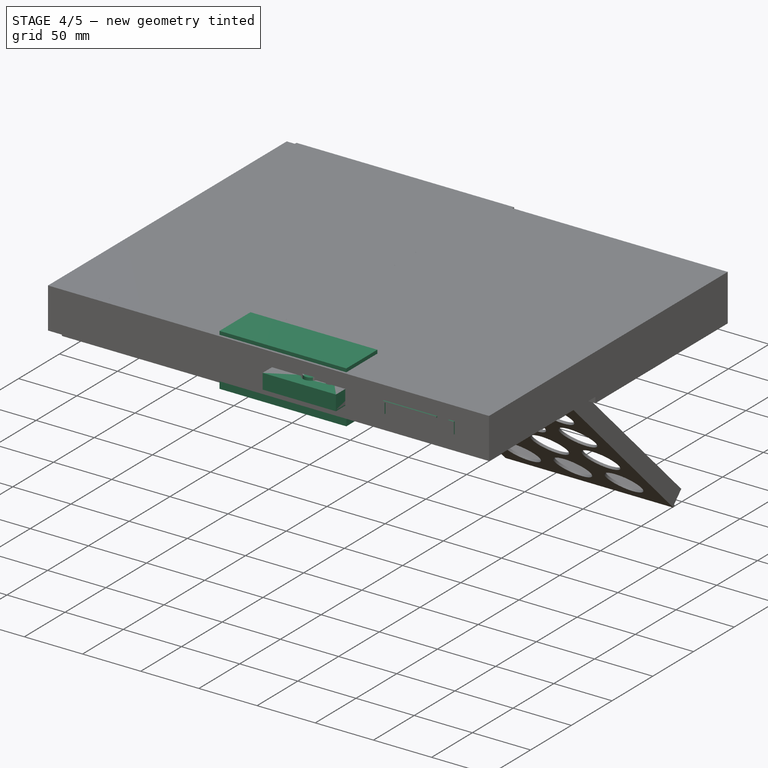
[diagram: stage 4 of 5 — iso view after this stage's code; geometry added in this stage tinted green]
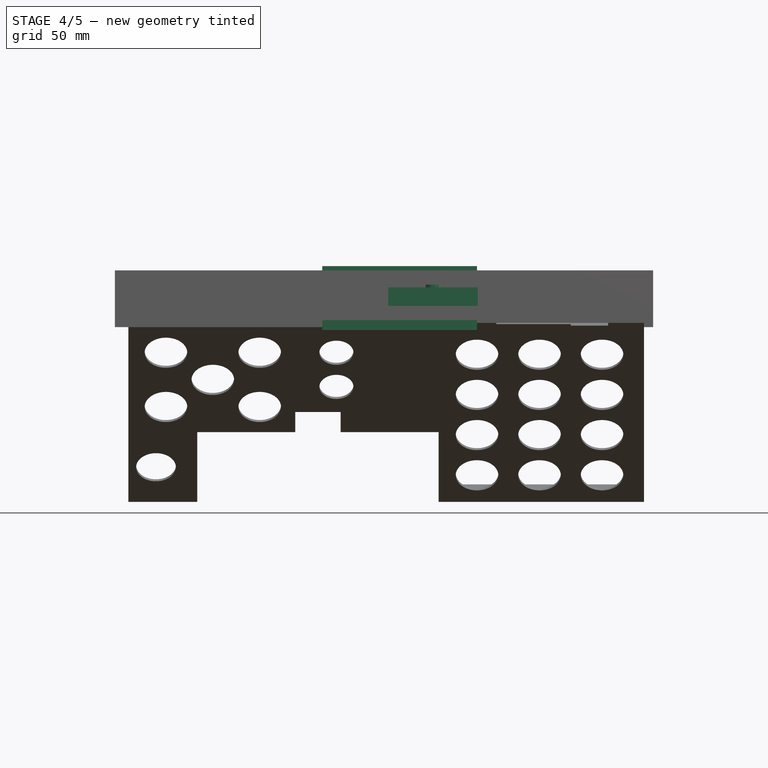
[diagram: stage 4 of 5 — front view after this stage's code; geometry added in this stage tinted green]
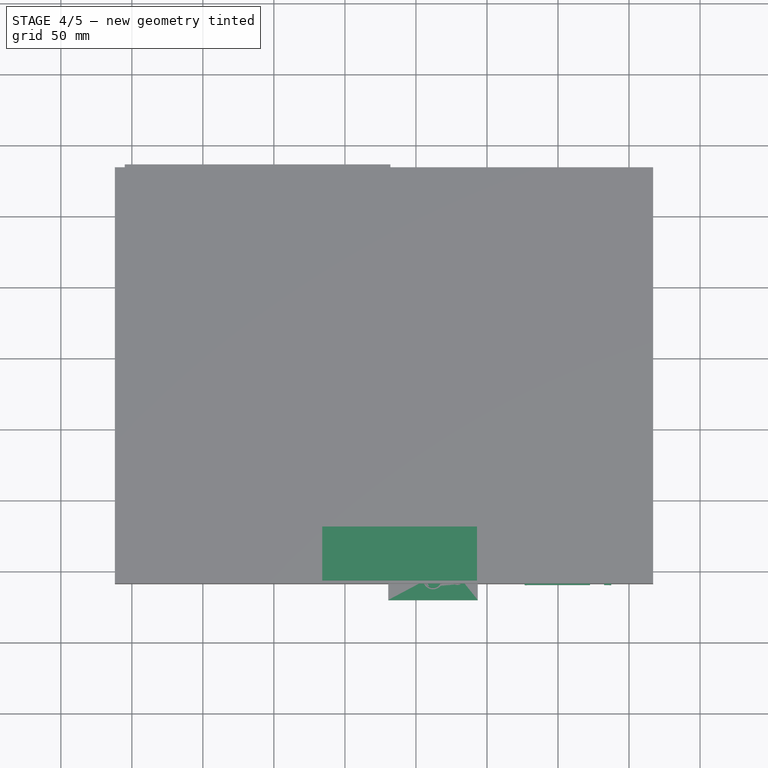
[diagram: stage 4 of 5 — top view after this stage's code; geometry added in this stage tinted green]
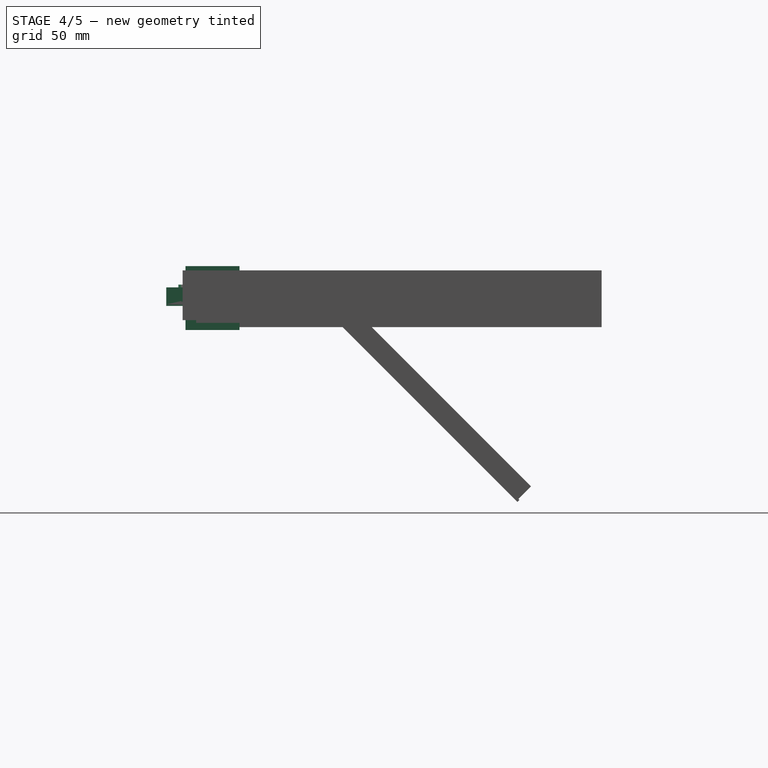
[diagram: stage 4 of 5 — right view after this stage's code; geometry added in this stage tinted green]
FEATURE [PartDesign::Body] Body007  label="standoff004"
  BaseFeature = -> Extrude018
  Group = -> [Clone007]
  Origin = -> Origin007
  Placement = pos=(40,82.25,3) rot=(0,0,1;0rad)
  Tip = -> Clone007
FEATURE [Sketcher::SketchObject] Sketch024
  FullyConstrained = true
  expr: Constraints[2] = Spreadsheet.m3_r3
  expr: Constraints[3] = Spreadsheet.m3_r3 + 2
  sketch-geometry (2):
    g0: Circle CenterX=0 CenterY=0 CenterZ=0 NormalX=0 NormalY=0 NormalZ=1 AngleXU=0 Radius=1.28
    g1: Circle CenterX=0 CenterY=0 CenterZ=0 NormalX=0 NormalY=0 NormalZ=1 AngleXU=0 Radius=3.28
  constraints (4):
    c: Coincident(g0,g-1)
    c: Coincident(g1,g0)
    c: Radius(g0) = 1.28
    c: Radius(g1) = 3.28
FEATURE [Part::Extrusion] Extrude  label="screw hole"
  Base = -> Sketch024
  Dir = (0,0,1)
  DirMode = 2
  FaceMakerClass = Part::FaceMakerBullseye
  LengthFwd = 5
  LengthRev = 0
  Solid = true
  Symmetric = false
FEATURE [Sketcher::SketchObject] Sketch042
  FullyConstrained = true
  sketch-geometry (4):
    g0: LineSegment StartX=-27.5 StartY=10.5 StartZ=0 EndX=27.5 EndY=10.5 EndZ=0
    g1: LineSegment StartX=27.5 StartY=10.5 StartZ=0 EndX=27.5 EndY=-10.5 EndZ=0
    g2: LineSegment StartX=27.5 StartY=-10.5 StartZ=0 EndX=-27.5 EndY=-10.5 EndZ=0
    g3: LineSegment StartX=-27.5 StartY=-10.5 StartZ=0 EndX=-27.5 EndY=10.5 EndZ=0
  constraints (12):
    c: Coincident(g0,g1)
    c: Coincident(g1,g2)
    c: Coincident(g2,g3)
    c: Coincident(g3,g0)
    c: Horizontal(g0)
    c: Horizontal(g2)
    c: Vertical(g1)
    c: Vertical(g3)
    c: DistanceY(g1,g1) = 21
    c: DistanceX(g0,g0) = 55
    c: DistanceY(g0) = 10.5
    c: DistanceX(g0) = 27.5
FEATURE [Part::Extrusion] Extrude036
  Base = -> Sketch042
  Dir = (0,0,1)
  DirMode = 2
  FaceMakerClass = Part::FaceMakerBullseye
  LengthFwd = 1
  LengthRev = 0
  Solid = true
  Symmetric = false
FEATURE [Sketcher::SketchObject] Sketch043
  FullyConstrained = true
  Placement = pos=(0,0,1) rot=(0,0,1;0rad)
  sketch-geometry (1):
    g0: Circle CenterX=0 CenterY=0 CenterZ=0 NormalX=0 NormalY=0 NormalZ=1 AngleXU=0 Radius=6
  constraints (2):
    c: Coincident(g0,g-1)
    c: Radius(g0) = 6
FEATURE [Part::Extrusion] Extrude037
  Base = -> Sketch043
  Dir = (0,0,1)
  DirMode = 2
  FaceMakerClass = Part::FaceMakerBullseye
  LengthFwd = 8
  LengthRev = 0
  Solid = true
  Symmetric = false
FEATURE [Sketcher::SketchObject] Sketch044
  FullyConstrained = false
  Placement = pos=(0,0,1) rot=(0,0,1;0rad)
  sketch-geometry (5):
    g0: LineSegment StartX=-23.706 StartY=7 StartZ=0 EndX=-18.4767 EndY=7 EndZ=0
    g1: LineSegment StartX=-18.4767 StartY=7 StartZ=0 EndX=-18.4767 EndY=-7 EndZ=0
    g2: LineSegment StartX=-18.4767 StartY=-7 StartZ=0 EndX=-23.706 EndY=-7 EndZ=0
    g3: LineSegment StartX=-23.706 StartY=-7 StartZ=0 EndX=-23.706 EndY=7 EndZ=0
    g4: Circle CenterX=16.7873 CenterY=0 CenterZ=0 NormalX=0 NormalY=0 NormalZ=1 AngleXU=0 Radius=3.72773
  constraints (9):
    c: Coincident(g0,g1)
    c: Coincident(g1,g2)
    c: Coincident(g2,g3)
    c: Coincident(g3,g0)
    c: Horizontal(g0)
    c: Horizontal(g2)
    c: Vertical(g1)
    c: Vertical(g3)
    c: PointOnObject(g4,g-1)
FEATURE [Part::Extrusion] Extrude038
  Base = -> Sketch044
  Dir = (0,0,1)
  DirMode = 2
  FaceMakerClass = Part::FaceMakerBullseye
  LengthFwd = 3
  LengthRev = 0
  Solid = true
  Symmetric = false
FEATURE [Part::Compound] Compound009  label="cam"
  Links = -> [Extrude036,Extrude037,Extrude038]
FEATURE [Sketcher::SketchObject] Sketch045  label="path002"
  FullyConstrained = true
  Placement = pos=(0,0,1) rot=(0,0,1;0rad)
  sketch-geometry (5):
    g0: LineSegment StartX=28.5 StartY=11.5 StartZ=0 EndX=28.5 EndY=-11.5 EndZ=0
    g1: LineSegment StartX=28.5 StartY=-11.5 StartZ=0 EndX=-28.5 EndY=-11.5 EndZ=0
    g2: LineSegment StartX=-28.5 StartY=-11.5 StartZ=0 EndX=-28.5 EndY=11.5 EndZ=0
    g3: LineSegment StartX=-5 StartY=11.5 StartZ=0 EndX=-28.5 EndY=11.5 EndZ=0
    g4: LineSegment StartX=5 StartY=11.5 StartZ=0 EndX=28.5 EndY=11.5 EndZ=0
  constraints (16):
    c: Coincident(g0,g1)
    c: Coincident(g1,g2)
    c: Horizontal(g1)
    c: Vertical(g0)
    c: Vertical(g2)
    c: Coincident(g3,g2)
    c: Horizontal(g3)
    c: Coincident(g4,g0)
    c: Horizontal(g4)
    c: Horizontal(g4,g3)
    c: DistanceX(g4,g4) = 23.5
    c: DistanceX(g3,g3) = 23.5
    c: DistanceX(g0) = 28.5
    c: DistanceY(g0) = -11.5
    c: DistanceX(g1,g1) = 57
    c: DistanceY(g0,g0) = 23
FEATURE [Sketcher::SketchObject] Sketch046  label="profile002"
  FullyConstrained = true
  Placement = pos=(0,0,0) rot=(0.57735,0.57735,0.57735;2.0944rad)
  sketch-geometry (8):
    g0: LineSegment StartX=-9.5 StartY=1 StartZ=0 EndX=-9.5 EndY=6 EndZ=0
    g1: LineSegment StartX=-9.5 StartY=6 StartZ=0 EndX=-11 EndY=6 EndZ=0
    g2: LineSegment StartX=-12 StartY=2 StartZ=0 EndX=-12 EndY=-2 EndZ=0
    g3: LineSegment StartX=-12 StartY=-2 StartZ=0 EndX=-11 EndY=-2 EndZ=0
    g4: LineSegment StartX=-11 StartY=-2 StartZ=0 EndX=-11 EndY=1 EndZ=0
    g5: LineSegment StartX=-11 StartY=1 StartZ=0 EndX=-9.5 EndY=1 EndZ=0
    g6: LineSegment StartX=-12 StartY=2 StartZ=0 EndX=-11 EndY=3 EndZ=0
    g7: LineSegment StartX=-11 StartY=3 StartZ=0 EndX=-11 EndY=6 EndZ=0
  constraints (24):
    c: Vertical(g0)
    c: Coincident(g0,g1)
    c: Horizontal(g1)
    c: Vertical(g2)
    c: Coincident(g2,g3)
    c: Horizontal(g3)
    c: Coincident(g3,g4)
    c: Vertical(g4)
    c: Coincident(g4,g5)
    c: Coincident(g5,g0)
    c: Horizontal(g5)
    c: DistanceY(g0,g0) = 5
    c: DistanceX(g3,g3) = 1
    c: DistanceY(g4,g4) = 3
    c: DistanceX(g2) = -12
    c: DistanceY(g2) = -2
    c: DistanceX(g5,g5) = 1.5
    c: Coincident(g2,g6)
    c: Coincident(g6,g7)
    c: Coincident(g7,g1)
    c: Vertical(g7)
    c: DistanceX(g2,g6) = 1
    c: DistanceY(g2,g6) = 1
    c: DistanceY(g2,g2) = 4
FEATURE [Part::Sweep] Sweep002
  Frenet = false
  Sections = -> [Sketch046]
  Solid = true
  Spine = -> Sketch045
  Transition = 1
FEATURE [Sketcher::SketchObject] Sketch047  label="path003"
  FullyConstrained = true
  Placement = pos=(0,0,6) rot=(0,0,1;0rad)
  sketch-geometry (7):
    g0: LineSegment StartX=-30 StartY=-13 StartZ=0 EndX=30 EndY=-13 EndZ=0
    g1: LineSegment StartX=30 StartY=-13 StartZ=0 EndX=30 EndY=32 EndZ=0
    g2: LineSegment StartX=-30 StartY=-13 StartZ=0 EndX=-30 EndY=32 EndZ=0
    g3: LineSegment StartX=-30 StartY=32 StartZ=0 EndX=-4 EndY=32 EndZ=0
    g4: LineSegment StartX=30 StartY=32 StartZ=0 EndX=4 EndY=32 EndZ=0
    g5: LineSegment StartX=4 StartY=32 StartZ=0 EndX=4 EndY=22 EndZ=0
    g6: LineSegment StartX=-4 StartY=32 StartZ=0 EndX=-4 EndY=22 EndZ=0
  constraints (22):
    c: Horizontal(g0)
    c: Coincident(g0,g1)
    c: Vertical(g1)
    c: DistanceY(g1,g1) = 45
    c: DistanceX(g0) = 30
    c: DistanceY(g0) = -13
    c: DistanceX(g0,g0) = 60
    c: Coincident(g0,g2)
    c: Vertical(g2)
    c: Coincident(g2,g3)
    c: Horizontal(g3)
    c: Coincident(g4,g1)
    c: Horizontal(g4)
    c: Horizontal(g4,g3)
    c: DistanceX(g3,g4) = 8
    c: DistanceX(g4) = 4
    c: Coincident(g5,g4)
    c: Vertical(g5)
    c: Coincident(g6,g3)
    c: Vertical(g6)
    c: Horizontal(g6,g5)
    c: DistanceY(g5,g5) = 10
FEATURE [Sketcher::SketchObject] Sketch048  label="profile003"
  FullyConstrained = true
  Placement = pos=(0,0,0) rot=(0.57735,0.57735,0.57735;2.0944rad)
  sketch-geometry (4):
    g0: LineSegment StartX=-14.5 StartY=6 StartZ=0 EndX=-13 EndY=6 EndZ=0
    g1: LineSegment StartX=-13 StartY=6 StartZ=0 EndX=-13 EndY=-5 EndZ=0
    g2: LineSegment StartX=-13 StartY=-5 StartZ=0 EndX=-14.5 EndY=-5 EndZ=0
    g3: LineSegment StartX=-14.5 StartY=-5 StartZ=0 EndX=-14.5 EndY=6 EndZ=0
  constraints (12):
    c: Horizontal(g0)
    c: Coincident(g0,g1)
    c: Vertical(g1)
    c: Coincident(g1,g2)
    c: Horizontal(g2)
    c: Vertical(g3)
    c: Coincident(g0,g3)
    c: DistanceY(g1,g1) = 11
    c: DistanceX(g0,g0) = 1.5
    c: DistanceX(g0) = -13
    c: DistanceY(g0) = 6
    c: Coincident(g3,g2)
FEATURE [Part::Sweep] Sweep003
  Frenet = false
  Sections = -> [Sketch048]
  Solid = true
  Spine = -> Sketch047
  Transition = 1
FEATURE [Sketcher::SketchObject] Sketch049  label="path004"
  FullyConstrained = true
  Placement = pos=(0,0,6) rot=(0,0,1;0rad)
  sketch-geometry (10):
    g0: LineSegment StartX=-31.5 StartY=-14.5 StartZ=0 EndX=31.5 EndY=-14.5 EndZ=0
    g1: LineSegment StartX=33.5 StartY=6.5 StartZ=0 EndX=33.5 EndY=33.5 EndZ=0
    g2: LineSegment StartX=-33.5 StartY=6.5 StartZ=0 EndX=-33.5 EndY=33.5 EndZ=0
    g3: LineSegment StartX=33.5 StartY=33.5 StartZ=0 EndX=-33.5 EndY=33.5 EndZ=0
    g4: Circle CenterX=0 CenterY=0 CenterZ=0 NormalX=0 NormalY=0 NormalZ=1 AngleXU=0 Radius=7
    g5: Circle CenterX=17 CenterY=0 CenterZ=0 NormalX=0 NormalY=0 NormalZ=1 AngleXU=0 Radius=4
    g6: LineSegment StartX=-33.5 StartY=6.5 StartZ=0 EndX=-31.5 EndY=6.5 EndZ=0
    g7: LineSegment StartX=-31.5 StartY=6.5 StartZ=0 EndX=-31.5 EndY=-14.5 EndZ=0
    g8: LineSegment StartX=33.5 StartY=6.5 StartZ=0 EndX=31.5 EndY=6.5 EndZ=0
    g9: LineSegment StartX=31.5 StartY=6.5 StartZ=0 EndX=31.5 EndY=-14.5 EndZ=0
  constraints (29):
    c: Horizontal(g0)
    c: Vertical(g1)
    c: DistanceX(g0) = 31.5
    c: DistanceY(g0) = -14.5
    c: DistanceX(g0,g0) = 63
    c: Vertical(g2)
    c: Coincident(g3,g1)
    c: Horizontal(g3)
    c: Coincident(g2,g3)
    c: Coincident(g4,g-1)
    c: Radius(g4) = 7
    c: PointOnObject(g5,g-1)
    c: Radius(g5) = 4
    c: DistanceX(g5) = 17
    c: DistanceY(g0,g1) = 48
    c: DistanceX(g3,g3) = 67
    c: Coincident(g2,g6)
    c: Horizontal(g6)
    c: Coincident(g6,g7)
    c: Coincident(g7,g0)
    c: Vertical(g7)
    c: Coincident(g1,g8)
    c: Horizontal(g8)
    c: Coincident(g8,g9)
    c: Coincident(g9,g0)
    c: Vertical(g9)
    c: Horizontal(g8,g6)
    c: DistanceX(g8,g8) = 2
    c: DistanceY(g7,g7) = 21
FEATURE [Part::Extrusion] Extrude039
  Base = -> Sketch049
  Dir = (0,0,1)
  DirMode = 2
  FaceMakerClass = Part::FaceMakerBullseye
  LengthFwd = 1
  LengthRev = 0
  Solid = true
  Symmetric = false
FEATURE [Sketcher::SketchObject] Sketch050  label="path005"
  FullyConstrained = true
  Placement = pos=(0,0,-5) rot=(0,0,1;0rad)
  sketch-geometry (4):
    g0: LineSegment StartX=-31.5 StartY=-14.5 StartZ=0 EndX=31.5 EndY=-14.5 EndZ=0
    g1: LineSegment StartX=31.5 StartY=-14.5 StartZ=0 EndX=31.5 EndY=33.5 EndZ=0
    g2: LineSegment StartX=-31.5 StartY=-14.5 StartZ=0 EndX=-31.5 EndY=33.5 EndZ=0
    g3: LineSegment StartX=31.5 StartY=33.5 StartZ=0 EndX=-31.5 EndY=33.5 EndZ=0
  constraints (12):
    c: Horizontal(g0)
    c: Coincident(g0,g1)
    c: Vertical(g1)
    c: DistanceY(g1,g1) = 48
    c: DistanceX(g0) = 31.5
    c: DistanceY(g0) = -14.5
    c: DistanceX(g0,g0) = 63
    c: Coincident(g0,g2)
    c: Vertical(g2)
    c: Coincident(g3,g1)
    c: Horizontal(g3)
    c: Coincident(g2,g3)
FEATURE [Part::Extrusion] Extrude040  label="cam top"
  Base = -> Sketch050
  Dir = (0,0,1)
  DirMode = 2
  FaceMakerClass = Part::FaceMakerBullseye
  LengthFwd = 0
  LengthRev = 1
  Solid = true
  Symmetric = false
FEATURE [Sketcher::SketchObject] Sketch052
  FullyConstrained = true
  Placement = pos=(0,0,7) rot=(0,0,1;0rad)
  sketch-geometry (8):
    g0: LineSegment StartX=31.5 StartY=9.5 StartZ=0 EndX=33.5 EndY=9.5 EndZ=0
    g1: LineSegment StartX=33.5 StartY=9.5 StartZ=0 EndX=33.5 EndY=11.5 EndZ=0
    g2: LineSegment StartX=33.5 StartY=11.5 StartZ=0 EndX=31.5 EndY=11.5 EndZ=0
    g3: LineSegment StartX=31.5 StartY=11.5 StartZ=0 EndX=31.5 EndY=9.5 EndZ=0
    g4: LineSegment StartX=-31.5 StartY=9.5 StartZ=0 EndX=-33.5 EndY=9.5 EndZ=0
    g5: LineSegment StartX=-33.5 StartY=9.5 StartZ=0 EndX=-33.5 EndY=11.5 EndZ=0
    g6: LineSegment StartX=-33.5 StartY=11.5 StartZ=0 EndX=-31.5 EndY=11.5 EndZ=0
    g7: LineSegment StartX=-31.5 StartY=11.5 StartZ=0 EndX=-31.5 EndY=9.5 EndZ=0
  constraints (24):
    c: Coincident(g0,g1)
    c: Coincident(g1,g2)
    c: Coincident(g2,g3)
    c: Coincident(g3,g0)
    c: Horizontal(g0)
    c: Horizontal(g2)
    c: Vertical(g1)
    c: Vertical(g3)
    c: Coincident(g4,g5)
    c: Coincident(g5,g6)
    c: Coincident(g6,g7)
    c: Coincident(g7,g4)
    c: Horizontal(g4)
    c: Horizontal(g6)
    c: Vertical(g5)
    c: Vertical(g7)
    c: Horizontal(g4,g0)
    c: DistanceY(g3,g3) = 2
    c: Horizontal(g6,g2)
    c: DistanceX(g2,g2) = 2
    c: DistanceX(g6,g6) = 2
    c: DistanceX(g6,g2) = 63
    c: DistanceX(g2) = 31.5
    c: DistanceY(g4) = 9.5
FEATURE [Part::Extrusion] Extrude042  label="tabs"
  Base = -> Sketch052
  Dir = (0,0,1)
  DirMode = 2
  FaceMakerClass = Part::FaceMakerBullseye
  LengthFwd = 0
  LengthRev = 12
  Solid = true
  Symmetric = false
FEATURE [Sketcher::SketchObject] Sketch053
  FullyConstrained = true
  Placement = pos=(0,0,-2) rot=(0,0,1;0rad)
  sketch-geometry (10):
    g0: LineSegment StartX=169.5 StartY=2 StartZ=0 EndX=169.5 EndY=21.5 EndZ=0
    g1: LineSegment StartX=169.5 StartY=21.5 StartZ=0 EndX=178 EndY=21.5 EndZ=0
    g2: LineSegment StartX=178 StartY=23 StartZ=0 EndX=169.5 EndY=23 EndZ=0
    g3: LineSegment StartX=168 StartY=27 StartZ=0 EndX=168 EndY=2 EndZ=0
    g4: LineSegment StartX=168 StartY=2 StartZ=0 EndX=169.5 EndY=2 EndZ=0
    g5: LineSegment StartX=169.5 StartY=23 StartZ=0 EndX=169.5 EndY=26 EndZ=0
    g6: LineSegment StartX=189 StartY=27 StartZ=0 EndX=168 EndY=27 EndZ=0
    g7: LineSegment StartX=178 StartY=23 StartZ=0 EndX=178 EndY=21.5 EndZ=0
    g8: LineSegment StartX=189 StartY=27 StartZ=0 EndX=189 EndY=26 EndZ=0
    g9: LineSegment StartX=189 StartY=26 StartZ=0 EndX=169.5 EndY=26 EndZ=0
  constraints (30):
    c: Vertical(g0)
    c: Coincident(g0,g1)
    c: Horizontal(g1)
    c: Horizontal(g2)
    c: Vertical(g3)
    c: Coincident(g3,g4)
    c: Coincident(g4,g0)
    c: Horizontal(g4)
    c: DistanceX(g4,g4) = 1.5
    c: DistanceY(g0,g2) = 1.5
    c: Vertical(g2,g0)
    c: Coincident(g2,g5)
    c: Vertical(g5)
    c: Coincident(g6,g3)
    c: Horizontal(g6)
    c: DistanceY(g5,g5) = 3
    c: DistanceX(g1,g1) = 8.5
    c: DistanceY(g0,g0) = 19.5
    c: Coincident(g7,g2)
    c: Coincident(g7,g1)
    c: Vertical(g7)
    c: DistanceX(g2) = 178
    c: Coincident(g6,g8)
    c: Vertical(g8)
    c: Coincident(g8,g9)
    c: Coincident(g9,g5)
    c: Horizontal(g9)
    c: DistanceX(g9,g9) = 19.5
    c: DistanceY(g8,g8) = 1
    c: DistanceY(g0) = 2
FEATURE [Part::Extrusion] Extrude043  label="cam005"
  Base = -> Sketch053
  Dir = (0,0,1)
  DirMode = 2
  FaceMakerClass = Part::FaceMakerBullseye
  LengthFwd = 0
  LengthRev = 13
  Solid = true
  Symmetric = false
FEATURE [PartDesign::FeatureBase] Clone030
  BaseFeature = -> Extrude043
FEATURE [PartDesign::Body] Body030
  BaseFeature = -> Extrude043
  Group = -> [Clone030]
  Origin = -> Origin030
  Tip = -> Clone030
FEATURE [Part::Mirroring] Part__Mirroring002  label="cam004"
  Base = (0,0,0)
  Normal = (1,0,0)
  Placement = pos=(424,0,0) rot=(0,0,1;0rad)
  Source = -> Body030
FEATURE [Sketcher::SketchObject] Sketch054
  FullyConstrained = true
  Placement = pos=(0,0,-2) rot=(0,0,1;0rad)
  sketch-geometry (8):
    g0: LineSegment StartX=256 StartY=4 StartZ=0 EndX=256 EndY=27 EndZ=0
    g1: LineSegment StartX=168 StartY=27 StartZ=0 EndX=168 EndY=2 EndZ=0
    g2: LineSegment StartX=235 StartY=17 StartZ=0 EndX=235 EndY=4 EndZ=0
    g3: LineSegment StartX=256 StartY=4 StartZ=0 EndX=235 EndY=4 EndZ=0
    g4: LineSegment StartX=168 StartY=27 StartZ=0 EndX=256 EndY=27 EndZ=0
    g5: LineSegment StartX=189 StartY=17 StartZ=0 EndX=189 EndY=2 EndZ=0
    g6: LineSegment StartX=189 StartY=2 StartZ=0 EndX=168 EndY=2 EndZ=0
    g7: LineSegment StartX=189 StartY=17 StartZ=0 EndX=235 EndY=17 EndZ=0
  constraints (24):
    c: Vertical(g0)
    c: Vertical(g1)
    c: DistanceX(g1) = 168
    c: DistanceY(g1) = 2
    c: DistanceX(g1,g0) = 88
    c: DistanceY(g1,g1) = 25
    c: Vertical(g2)
    c: Coincident(g3,g0)
    c: Horizontal(g3)
    c: Coincident(g2,g3)
    c: DistanceY(g0,g0) = 23
    c: Coincident(g1,g4)
    c: Horizontal(g4)
    c: Vertical(g5)
    c: Coincident(g5,g6)
    c: Coincident(g6,g1)
    c: Horizontal(g6)
    c: Coincident(g0,g4)
    c: DistanceX(g6,g6) = 21
    c: DistanceX(g3,g3) = 21
    c: Coincident(g7,g5)
    c: Coincident(g7,g2)
    c: Horizontal(g7)
    c: DistanceY(g5,g1) = 10
FEATURE [Part::Extrusion] Extrude044  label="cam003"
  Base = -> Sketch054
  Dir = (0,0,1)
  DirMode = 2
  FaceMakerClass = Part::FaceMakerBullseye
  LengthFwd = 2
  LengthRev = 0
  Solid = true
  Symmetric = false
FEATURE [PartDesign::Body] Body032  label="front holes003"
  BaseFeature = -> Extrude045
  Group = -> [Clone032]
  Origin = -> Origin032
  Tip = -> Clone032
FEATURE [Sketcher::SketchObject] Sketch056
  FullyConstrained = true
  Placement = pos=(0,0,-2) rot=(0,0,1;0rad)
  sketch-geometry (8):
    g0: LineSegment StartX=246 StartY=21.5 StartZ=0 EndX=256 EndY=21.5 EndZ=0
    g1: LineSegment StartX=256 StartY=21.5 StartZ=0 EndX=256 EndY=19.5 EndZ=0
    g2: LineSegment StartX=256 StartY=19.5 StartZ=0 EndX=246 EndY=19.5 EndZ=0
    g3: LineSegment StartX=246 StartY=19.5 StartZ=0 EndX=246 EndY=21.5 EndZ=0
    g4: LineSegment StartX=168 StartY=21.5 StartZ=0 EndX=178 EndY=21.5 EndZ=0
    g5: LineSegment StartX=178 StartY=21.5 StartZ=0 EndX=178 EndY=19.5 EndZ=0
    g6: LineSegment StartX=178 StartY=19.5 StartZ=0 EndX=168 EndY=19.5 EndZ=0
    g7: LineSegment StartX=168 StartY=19.5 StartZ=0 EndX=168 EndY=21.5 EndZ=0
  constraints (24):
    c: Coincident(g0,g1)
    c: Coincident(g1,g2)
    c: Coincident(g2,g3)
    c: Coincident(g3,g0)
    c: Horizontal(g0)
    c: Horizontal(g2)
    c: Vertical(g1)
    c: Vertical(g3)
    c: Coincident(g4,g5)
    c: Coincident(g5,g6)
    c: Coincident(g6,g7)
    c: Coincident(g7,g4)
    c: Horizontal(g4)
    c: Horizontal(g6)
    c: Vertical(g5)
    c: Vertical(g7)
    c: Horizontal(g4,g0)
    c: Horizontal(g2,g5)
    c: DistanceY(g5,g5) = 2
    c: DistanceX(g4,g4) = 10
    c: DistanceX(g0,g0) = 10
    c: DistanceY(g4) = 21.5
    c: DistanceX(g4) = 178
    c: DistanceX(g4,g0) = 68
FEATURE [Part::Extrusion] Extrude046
  Base = -> Sketch056
  Dir = (0,0,1)
  DirMode = 2
  FaceMakerClass = Part::FaceMakerBullseye
  LengthFwd = 0
  LengthRev = 1.64
  Solid = true
  Symmetric = false
FEATURE [Part::Compound] Compound013  label="cam006"
  Links = -> [Extrude046,Extrude043,Part__Mirroring002,Extrude044]
FEATURE [Part::Compound] Compound014  label="cam bottom"
  Links = -> [Sweep003,Extrude039,Sweep002,Extrude042]
FEATURE [PartDesign::FeatureBase] Clone033
  BaseFeature = -> Extrude040
FEATURE [PartDesign::Body] Body033  label="cam top001"
  BaseFeature = -> Extrude040
  Group = -> [Clone033]
  Origin = -> Origin033
  Tip = -> Clone033
FEATURE [PartDesign::FeatureBase] Clone034
  BaseFeature = -> Compound014
FEATURE [PartDesign::Body] Body034  label="cam bottom001"
  BaseFeature = -> Compound014
  Group = -> [Clone034]
  Origin = -> Origin034
  Tip = -> Clone034
FEATURE [PartDesign::FeatureBase] Clone035
  BaseFeature = -> Compound009
FEATURE [PartDesign::Body] Body035  label="cam007"
  BaseFeature = -> Compound009
  Group = -> [Clone035]
  Origin = -> Origin035
  Tip = -> Clone035
FEATURE [Part::Compound] Compound010  label="cam001"
  Links = -> [Body033,Body034,Body035]
  Placement = pos=(212,-8,-9) rot=(0,0,1;0rad)
FEATURE [Sketcher::SketchObject] Sketch058
  FullyConstrained = true
  Placement = pos=(0,0,5.32) rot=(1,0,0;3.14159rad)
  sketch-geometry (16):
    g0: LineSegment StartX=321 StartY=-241 StartZ=0 EndX=321 EndY=-262 EndZ=0
    g1: LineSegment StartX=321 StartY=-262 StartZ=0 EndX=325 EndY=-262 EndZ=0
    g2: LineSegment StartX=321 StartY=-241 StartZ=0 EndX=325 EndY=-241 EndZ=0
    g3: LineSegment StartX=325 StartY=-241 StartZ=0 EndX=325 EndY=-242 EndZ=0
    g4: LineSegment StartX=325 StartY=-242 StartZ=0 EndX=322 EndY=-242 EndZ=0
    g5: LineSegment StartX=322 StartY=-242 StartZ=0 EndX=322 EndY=-261 EndZ=0
    g6: LineSegment StartX=322 StartY=-261 StartZ=0 EndX=325 EndY=-261 EndZ=0
    g7: LineSegment StartX=325 StartY=-261 StartZ=0 EndX=325 EndY=-262 EndZ=0
    g8: LineSegment StartX=217 StartY=-241 StartZ=0 EndX=221 EndY=-241 EndZ=0
    g9: LineSegment StartX=221 StartY=-241 StartZ=0 EndX=221 EndY=-262 EndZ=0
    g10: LineSegment StartX=221 StartY=-262 StartZ=0 EndX=217 EndY=-262 EndZ=0
    g11: LineSegment StartX=217 StartY=-262 StartZ=0 EndX=217 EndY=-261 EndZ=0
    g12: LineSegment StartX=217 StartY=-261 StartZ=0 EndX=220 EndY=-261 EndZ=0
    g13: LineSegment StartX=220 StartY=-261 StartZ=0 EndX=220 EndY=-242 EndZ=0
    g14: LineSegment StartX=220 StartY=-242 StartZ=0 EndX=217 EndY=-242 EndZ=0
    g15: LineSegment StartX=217 StartY=-242 StartZ=0 EndX=217 EndY=-241 EndZ=0
  constraints (48):
    c: Vertical(g0)
    c: Coincident(g0,g1)
    c: Horizontal(g1)
    c: Coincident(g0,g2)
    c: Horizontal(g2)
    c: Coincident(g2,g3)
    c: Vertical(g3)
    c: Coincident(g3,g4)
    c: Horizontal(g4)
    c: Coincident(g4,g5)
    c: Vertical(g5)
    c: Coincident(g5,g6)
    c: Coincident(g6,g7)
    c: Coincident(g7,g1)
    c: Vertical(g7)
    c: Horizontal(g6)
    c: DistanceY(g7,g7) = 1
    c: DistanceY(g3,g3) = 1
    c: DistanceX(g0) = 321
    c: DistanceY(g0) = -241
    c: DistanceY(g0,g0) = 21
    c: DistanceX(g0,g5) = 1
    c: Vertical(g6,g3)
    c: DistanceX(g2,g2) = 4
    c: Horizontal(g8)
    c: Coincident(g8,g9)
    c: Vertical(g9)
    c: Coincident(g9,g10)
    c: Horizontal(g10)
    c: Coincident(g10,g11)
    c: Coincident(g11,g12)
    c: Horizontal(g12)
    c: Coincident(g12,g13)
    c: Vertical(g13)
    c: Coincident(g13,g14)
    c: Horizontal(g14)
    c: Coincident(g14,g15)
    c: Coincident(g15,g8)
    c: Vertical(g15)
    c: Vertical(g11)
    c: DistanceX(g8,g8) = 4
    c: DistanceX(g8) = 221
    c: DistanceY(g8) = -241
    c: DistanceY(g15,g15) = 1
    c: DistanceY(g9,g9) = 21
    c: DistanceY(g11,g11) = 1
    c: DistanceX(g12,g9) = 1
    c: Vertical(g11,g14)
FEATURE [Part::Extrusion] Extrude048
  Base = -> Sketch058
  Dir = (0,1e-16,-1)
  DirMode = 2
  FaceMakerClass = Part::FaceMakerBullseye
  LengthFwd = 15
  LengthRev = 0
  Solid = true
  Symmetric = false
FEATURE [Part::Box] Box002  label="mask"
  AttacherType = Attacher::AttachEngine3D
  Height = 45
  Length = 109
  Placement = pos=(134,-9,-32) rot=(0,0,1;0rad)
  Width = 38
FEATURE [Sketcher::SketchObject] Sketch063
  FullyConstrained = true
  Placement = pos=(0,199,0) rot=(1,0,0;1.5708rad)
  sketch-geometry (20):
    g0: LineSegment StartX=310 StartY=-20.32 StartZ=0 EndX=310 EndY=-22.32 EndZ=0
    g1: LineSegment StartX=310 StartY=-22.32 StartZ=0 EndX=312 EndY=-22.32 EndZ=0
    g2: LineSegment StartX=312 StartY=-22.32 StartZ=0 EndX=312 EndY=-20.32 EndZ=0
    g3: LineSegment StartX=312 StartY=-20.32 StartZ=0 EndX=321.5 EndY=-20.32 EndZ=0
    g4: LineSegment StartX=321.5 StartY=-20.32 StartZ=0 EndX=321.5 EndY=-22.32 EndZ=0
    g5: LineSegment StartX=321.5 StartY=-22.32 StartZ=0 EndX=323 EndY=-22.32 EndZ=0
    g6: LineSegment StartX=323 StartY=-22.32 StartZ=0 EndX=323 EndY=-2 EndZ=0
    g7: LineSegment StartX=323 StartY=-2 StartZ=0 EndX=308 EndY=-2 EndZ=0
    g8: LineSegment StartX=308 StartY=-2 StartZ=0 EndX=308 EndY=-20.32 EndZ=0
    g9: LineSegment StartX=308 StartY=-20.32 StartZ=0 EndX=310 EndY=-20.32 EndZ=0
    g10: LineSegment StartX=224 StartY=-22.32 StartZ=0 EndX=226 EndY=-22.32 EndZ=0
    g11: LineSegment StartX=226 StartY=-22.32 StartZ=0 EndX=226 EndY=-20.32 EndZ=0
    g12: LineSegment StartX=226 StartY=-20.32 StartZ=0 EndX=228 EndY=-20.32 EndZ=0
    g13: LineSegment StartX=228 StartY=-20.32 StartZ=0 EndX=228 EndY=-2 EndZ=0
    g14: LineSegment StartX=228 StartY=-2 StartZ=0 EndX=219 EndY=-2 EndZ=0
    g15: LineSegment StartX=219 StartY=-2 StartZ=0 EndX=219 EndY=-22.32 EndZ=0
    g16: LineSegment StartX=219 StartY=-22.32 StartZ=0 EndX=220.5 EndY=-22.32 EndZ=0
    g17: LineSegment StartX=220.5 StartY=-22.32 StartZ=0 EndX=220.5 EndY=-20.32 EndZ=0
    g18: LineSegment StartX=220.5 StartY=-20.32 StartZ=0 EndX=224 EndY=-20.32 EndZ=0
    g19: LineSegment StartX=224 StartY=-20.32 StartZ=0 EndX=224 EndY=-22.32 EndZ=0
  constraints (60):
    c: Vertical(g0)
    c: Coincident(g0,g1)
    c: Horizontal(g1)
    c: Coincident(g1,g2)
    c: Vertical(g2)
    c: Coincident(g2,g3)
    c: Horizontal(g3)
    c: Coincident(g3,g4)
    c: Vertical(g4)
    c: Coincident(g4,g5)
    c: Horizontal(g5)
    c: Coincident(g5,g6)
    c: Vertical(g6)
    c: Coincident(g6,g7)
    c: Horizontal(g7)
    c: Coincident(g7,g8)
    c: Vertical(g8)
    c: Coincident(g8,g9)
    c: Coincident(g9,g0)
    c: Horizontal(g9)
    c: Horizontal(g0,g2)
    c: DistanceY(g7) = -2
    c: DistanceY(g8,g8) = 18.32
    c: DistanceX(g9,g9) = 2
    c: DistanceX(g1,g1) = 2
    c: DistanceY(g0,g0) = 2
    c: DistanceX(g7) = 308
    c: DistanceX(g7,g7) = 15
    c: Horizontal(g4,g1)
    c: DistanceX(g5,g5) = 1.5
    c: Horizontal(g10)
    c: Coincident(g10,g11)
    c: Vertical(g11)
    c: Coincident(g11,g12)
    c: Horizontal(g12)
    c: Coincident(g12,g13)
    c: Vertical(g13)
    c: Coincident(g13,g14)
    c: Horizontal(g14)
    c: Coincident(g14,g15)
    c: Vertical(g15)
    c: Coincident(g15,g16)
    c: Horizontal(g16)
    c: Coincident(g16,g17)
    c: Vertical(g17)
    c: Coincident(g17,g18)
    c: Horizontal(g18)
    c: Coincident(g18,g19)
    c: Coincident(g19,g10)
    c: Vertical(g19)
    c: Horizontal(g18,g11)
    c: Horizontal(g8,g12)
    c: Horizontal(g13,g7)
    c: DistanceY(g11,g11) = 2
    c: Horizontal(g16,g10)
    c: DistanceX(g16,g16) = 1.5
    c: DistanceX(g10,g10) = 2
    c: DistanceX(g14,g14) = 9
    c: DistanceX(g14) = 219
    c: DistanceX(g12,g12) = 2
FEATURE [Part::Extrusion] Extrude053
  Base = -> Sketch063
  Dir = (0,-1,2e-16)
  DirMode = 2
  FaceMakerClass = Part::FaceMakerBullseye
  LengthFwd = 1
  LengthRev = 1
  Solid = true
  Symmetric = false
FEATURE [Sketcher::SketchObject] Sketch064
  FullyConstrained = true
  Placement = pos=(0,198.2,0) rot=(1,0,0;1.5708rad)
  sketch-geometry (12):
    g0: LineSegment StartX=321.5 StartY=-2 StartZ=0 EndX=321.5 EndY=-22.32 EndZ=0
    g1: LineSegment StartX=321.5 StartY=-22.32 StartZ=0 EndX=323 EndY=-22.32 EndZ=0
    g2: LineSegment StartX=323 StartY=-22.32 StartZ=0 EndX=323 EndY=0 EndZ=0
    g3: LineSegment StartX=323 StartY=0 StartZ=0 EndX=308 EndY=0 EndZ=0
    g4: LineSegment StartX=308 StartY=0 StartZ=0 EndX=308 EndY=-2 EndZ=0
    g5: LineSegment StartX=308 StartY=-2 StartZ=0 EndX=321.5 EndY=-2 EndZ=0
    g6: LineSegment StartX=228 StartY=-2 StartZ=0 EndX=228 EndY=0 EndZ=0
    g7: LineSegment StartX=228 StartY=0 StartZ=0 EndX=219 EndY=0 EndZ=0
    g8: LineSegment StartX=219 StartY=0 StartZ=0 EndX=219 EndY=-22.32 EndZ=0
    g9: LineSegment StartX=219 StartY=-22.32 StartZ=0 EndX=220.5 EndY=-22.32 EndZ=0
    g10: LineSegment StartX=220.5 StartY=-22.32 StartZ=0 EndX=220.5 EndY=-2 EndZ=0
    g11: LineSegment StartX=220.5 StartY=-2 StartZ=0 EndX=228 EndY=-2 EndZ=0
  constraints (36):
    c: Vertical(g0)
    c: Coincident(g0,g1)
    c: Horizontal(g1)
    c: Coincident(g1,g2)
    c: Vertical(g2)
    c: Coincident(g2,g3)
    c: Horizontal(g3)
    c: Coincident(g3,g4)
    c: Vertical(g4)
    c: Coincident(g4,g5)
    c: Horizontal(g5)
    c: DistanceY(g4,g4) = 2
    c: DistanceX(g3) = 308
    c: DistanceX(g3,g3) = 15
    c: DistanceX(g1,g1) = 1.5
    c: Vertical(g6)
    c: Coincident(g6,g7)
    c: Horizontal(g7)
    c: Coincident(g7,g8)
    c: Vertical(g8)
    c: Coincident(g8,g9)
    c: Horizontal(g9)
    c: Coincident(g9,g10)
    c: Vertical(g10)
    c: Coincident(g10,g11)
    c: Horizontal(g11)
    c: Horizontal(g4,g6)
    c: Horizontal(g6,g3)
    c: DistanceX(g9,g9) = 1.5
    c: DistanceX(g7,g7) = 9
    c: DistanceX(g7) = 219
    c: PointOnObject(g3,g-1)
    c: DistanceY(g2,g2) = 22.32
    c: Coincident(g0,g5)
    c: Coincident(g6,g11)
    c: Horizontal(g9,g0)
FEATURE [Part::Extrusion] Extrude054
  Base = -> Sketch064
  Dir = (0,-1,2e-16)
  DirMode = 2
  FaceMakerClass = Part::FaceMakerBullseye
  LengthFwd = 0
  LengthRev = 10.8
  Solid = true
  Symmetric = false
FEATURE [Part::Compound] Compound016  label="jetson004"
  Links = -> [Extrude053,Extrude054]
FEATURE [Sketcher::SketchObject] Sketch069
  FullyConstrained = true
  Placement = pos=(0,0,-2) rot=(1,0,0;3.14159rad)
  sketch-geometry (12):
    g0: LineSegment StartX=337.5 StartY=14 StartZ=0 EndX=337.5 EndY=3.5 EndZ=0
    g1: LineSegment StartX=339.5 StartY=-56 StartZ=0 EndX=274.5 EndY=-56 EndZ=0
    g2: LineSegment StartX=276.5 StartY=3.5 StartZ=0 EndX=276.5 EndY=14 EndZ=0
    g3: LineSegment StartX=276.5 StartY=14 StartZ=0 EndX=322.5 EndY=14 EndZ=0
    g4: LineSegment StartX=322.5 StartY=14 StartZ=0 EndX=322.5 EndY=4 EndZ=0
    g5: LineSegment StartX=322.5 StartY=4 StartZ=0 EndX=332.5 EndY=4 EndZ=0
    g6: LineSegment StartX=332.5 StartY=4 StartZ=0 EndX=332.5 EndY=14 EndZ=0
    g7: LineSegment StartX=332.5 StartY=14 StartZ=0 EndX=337.5 EndY=14 EndZ=0
    g8: LineSegment StartX=276.5 StartY=3.5 StartZ=0 EndX=274.5 EndY=3.5 EndZ=0
    g9: LineSegment StartX=274.5 StartY=3.5 StartZ=0 EndX=274.5 EndY=-56 EndZ=0
    g10: LineSegment StartX=337.5 StartY=3.5 StartZ=0 EndX=339.5 EndY=3.5 EndZ=0
    g11: LineSegment StartX=339.5 StartY=3.5 StartZ=0 EndX=339.5 EndY=-56 EndZ=0
  constraints (36):
    c: Horizontal(g1)
    c: Vertical(g0)
    c: Vertical(g2)
    c: DistanceX(g2,g0) = 61
    c: DistanceY(g2) = 14
    c: DistanceX(g2) = 276.5
    c: Coincident(g2,g3)
    c: Horizontal(g3)
    c: Coincident(g3,g4)
    c: Vertical(g4)
    c: Coincident(g4,g5)
    c: Horizontal(g5)
    c: Coincident(g5,g6)
    c: Vertical(g6)
    c: Coincident(g6,g7)
    c: Coincident(g7,g0)
    c: Horizontal(g7)
    c: DistanceX(g7,g7) = 5
    c: DistanceX(g5,g5) = 10
    c: DistanceY(g6,g6) = 10
    c: Horizontal(g6,g3)
    c: DistanceY(g1,g2) = 70
    c: Coincident(g2,g8)
    c: Coincident(g8,g9)
    c: Vertical(g9)
    c: Coincident(g1,g9)
    c: Coincident(g0,g10)
    c: Horizontal(g10)
    c: Coincident(g10,g11)
    c: Coincident(g11,g1)
    c: Vertical(g11)
    c: Horizontal(g8)
    c: Horizontal(g2,g0)
    c: DistanceY(g2,g2) = 10.5
    c: DistanceX(g8,g8) = 2
    c: DistanceX(g10,g10) = 2
FEATURE [Part::Extrusion] Extrude060
  Base = -> Sketch069
  Dir = (0,1e-16,-1)
  DirMode = 2
  FaceMakerClass = Part::FaceMakerBullseye
  LengthFwd = 1
  LengthRev = 0
  Solid = true
  Symmetric = false
FEATURE [Sketcher::SketchObject] Sketch070
  FullyConstrained = true
  Placement = pos=(0,0,-2) rot=(1,0,0;3.14159rad)
  sketch-geometry (24):
    g0: LineSegment StartX=304.5 StartY=-56 StartZ=0 EndX=276.5 EndY=-56 EndZ=0
    g1: LineSegment StartX=276.5 StartY=14 StartZ=0 EndX=278 EndY=14 EndZ=0
    g2: LineSegment StartX=336 StartY=14 StartZ=0 EndX=337.5 EndY=14 EndZ=0
    g3: LineSegment StartX=337.5 StartY=-56 StartZ=0 EndX=309.5 EndY=-56 EndZ=0
    g4: LineSegment StartX=336 StartY=-54.5 StartZ=0 EndX=336 EndY=14 EndZ=0
    g5: LineSegment StartX=278 StartY=-54.5 StartZ=0 EndX=278 EndY=14 EndZ=0
    g6: LineSegment StartX=276.5 StartY=-56 StartZ=0 EndX=276.5 EndY=-1.5 EndZ=0
    g7: LineSegment StartX=276.5 StartY=-1.5 StartZ=0 EndX=274.5 EndY=-1.5 EndZ=0
    g8: LineSegment StartX=274.5 StartY=-1.5 StartZ=0 EndX=274.5 EndY=0.5 EndZ=0
    g9: LineSegment StartX=274.5 StartY=0.5 StartZ=0 EndX=276.5 EndY=0.5 EndZ=0
    g10: LineSegment StartX=276.5 StartY=0.5 StartZ=0 EndX=276.5 EndY=14 EndZ=0
    g11: LineSegment StartX=337.5 StartY=14 StartZ=0 EndX=337.5 EndY=0.5 EndZ=0
    g12: LineSegment StartX=337.5 StartY=0.5 StartZ=0 EndX=339.5 EndY=0.5 EndZ=0
    g13: LineSegment StartX=339.5 StartY=0.5 StartZ=0 EndX=339.5 EndY=-1.5 EndZ=0
    g14: LineSegment StartX=339.5 StartY=-1.5 StartZ=0 EndX=337.5 EndY=-1.5 EndZ=0
    g15: LineSegment StartX=337.5 StartY=-1.5 StartZ=0 EndX=337.5 EndY=-56 EndZ=0
    g16: LineSegment StartX=304.5 StartY=-56 StartZ=0 EndX=304.5 EndY=-46 EndZ=0
    g17: LineSegment StartX=303 StartY=-54.5 StartZ=0 EndX=278 EndY=-54.5 EndZ=0
    g18: LineSegment StartX=309.5 StartY=-56 StartZ=0 EndX=309.5 EndY=-46 EndZ=0
    g19: LineSegment StartX=311 StartY=-54.5 StartZ=0 EndX=336 EndY=-54.5 EndZ=0
    g20: LineSegment StartX=304.5 StartY=-46 StartZ=0 EndX=303 EndY=-46 EndZ=0
    g21: LineSegment StartX=303 StartY=-46 StartZ=0 EndX=303 EndY=-54.5 EndZ=0
    g22: LineSegment StartX=309.5 StartY=-46 StartZ=0 EndX=311 EndY=-46 EndZ=0
    g23: LineSegment StartX=311 StartY=-46 StartZ=0 EndX=311 EndY=-54.5 EndZ=0
  constraints (72):
    c: Horizontal(g0)
    c: DistanceX(g1,g2) = 61
    c: DistanceY(g1) = 14
    c: DistanceX(g1) = 276.5
    c: Horizontal(g1)
    c: Horizontal(g2)
    c: DistanceX(g2,g2) = 1.5
    c: Horizontal(g2,g1)
    c: DistanceX(g1,g1) = 1.5
    c: Horizontal(g3)
    c: Coincident(g4,g2)
    c: Vertical(g4)
    c: Coincident(g5,g1)
    c: Vertical(g5)
    c: Horizontal(g3,g0)
    c: DistanceY(g0,g1) = 70
    c: Coincident(g0,g6)
    c: Vertical(g6)
    c: Coincident(g6,g7)
    c: Horizontal(g7)
    c: Coincident(g7,g8)
    c: Vertical(g8)
    c: Coincident(g8,g9)
    c: Coincident(g9,g10)
    c: Coincident(g10,g1)
    c: Vertical(g10)
    c: Horizontal(g9)
    c: Coincident(g2,g11)
    c: Vertical(g11)
    c: Coincident(g11,g12)
    c: Coincident(g12,g13)
    c: Vertical(g13)
    c: Coincident(g13,g14)
    c: Horizontal(g14)
    c: Coincident(g14,g15)
    c: Coincident(g15,g3)
    c: Vertical(g15)
    c: Horizontal(g12)
    c: Horizontal(g11,g9)
    c: DistanceY(g11,g11) = 13.5
    c: DistanceY(g8,g8) = 2
    c: Horizontal(g6,g14)
    c: DistanceX(g12,g12) = 2
    c: DistanceX(g9,g9) = 2
    c: Vertical(g6,g9)
    c: Vertical(g14,g11)
    c: Coincident(g0,g16)
    c: Coincident(g17,g5)
    c: Horizontal(g17)
    c: Coincident(g3,g18)
    c: Coincident(g19,g4)
    c: Horizontal(g19)
    c: Vertical(g18)
    c: Vertical(g16)
    c: Horizontal(g18,g16)
    c: DistanceY(g0,g5) = 1.5
    c: DistanceY(g18,g18) = 10
    c: Coincident(g16,g20)
    c: Horizontal(g20)
    c: Coincident(g20,g21)
    c: Coincident(g21,g17)
    c: Vertical(g21)
    c: Coincident(g18,g22)
    c: Horizontal(g22)
    c: Coincident(g22,g23)
    c: Coincident(g23,g19)
    c: Vertical(g23)
    c: DistanceX(g22,g22) = 1.5
    c: DistanceX(g20,g20) = 1.5
    c: DistanceX(g19,g19) = 25
    c: DistanceX(g17,g17) = 25
    c: Horizontal(g19,g17)
FEATURE [Part::Extrusion] Extrude061
  Base = -> Sketch070
  Dir = (0,0,-1)
  DirMode = 2
  FaceMakerClass = Part::FaceMakerBullseye
  LengthFwd = 10
  LengthRev = 0
  Solid = true
  Symmetric = false
FEATURE [Sketcher::SketchObject] Sketch071
  FullyConstrained = true
  Placement = pos=(0,0,-2) rot=(0,0,1;0rad)
  sketch-geometry (10):
    g0: LineSegment StartX=350 StartY=2 StartZ=0 EndX=350 EndY=60 EndZ=0
    g1: LineSegment StartX=350 StartY=60 StartZ=0 EndX=329 EndY=60 EndZ=0
    g2: LineSegment StartX=329 StartY=60 StartZ=0 EndX=329 EndY=58.5 EndZ=0
    g3: LineSegment StartX=329 StartY=58.5 StartZ=0 EndX=348.5 EndY=58.5 EndZ=0
    g4: LineSegment StartX=348.5 StartY=58.5 StartZ=0 EndX=348.5 EndY=23 EndZ=0
    g5: LineSegment StartX=348.5 StartY=23 StartZ=0 EndX=340 EndY=23 EndZ=0
    g6: LineSegment StartX=340 StartY=23 StartZ=0 EndX=340 EndY=21.5 EndZ=0
    g7: LineSegment StartX=340 StartY=21.5 StartZ=0 EndX=348.5 EndY=21.5 EndZ=0
    g8: LineSegment StartX=348.5 StartY=21.5 StartZ=0 EndX=348.5 EndY=2 EndZ=0
    g9: LineSegment StartX=348.5 StartY=2 StartZ=0 EndX=350 EndY=2 EndZ=0
  constraints (30):
    c: Vertical(g0)
    c: Coincident(g0,g1)
    c: Horizontal(g1)
    c: Coincident(g1,g2)
    c: Vertical(g2)
    c: Coincident(g2,g3)
    c: Horizontal(g3)
    c: Coincident(g3,g4)
    c: Vertical(g4)
    c: Coincident(g4,g5)
    c: Horizontal(g5)
    c: Coincident(g5,g6)
    c: Coincident(g6,g7)
    c: Horizontal(g7)
    c: Coincident(g7,g8)
    c: Vertical(g8)
    c: Coincident(g8,g9)
    c: Coincident(g9,g0)
    c: Horizontal(g9)
    c: DistanceX(g9,g9) = 1.5
    c: Vertical(g7,g4)
    c: DistanceY(g2,g2) = 1.5
    c: Vertical(g6)
    c: DistanceX(g5,g5) = 8.5
    c: DistanceY(g6,g6) = 1.5
    c: DistanceY(g8,g8) = 19.5
    c: DistanceY(g8) = 2
    c: DistanceX(g1,g1) = 21
    c: DistanceY(g4,g4) = 35.5
    c: DistanceX(g0) = 350
FEATURE [Part::Extrusion] Extrude063
  Base = -> Sketch071
  Dir = (0,0,1)
  DirMode = 2
  FaceMakerClass = Part::FaceMakerBullseye
  LengthFwd = 0
  LengthRev = 10
  Solid = true
  Symmetric = false
FEATURE [Sketcher::SketchObject] Sketch072
  FullyConstrained = true
  Placement = pos=(0,0,-2) rot=(0,0,1;0rad)
  sketch-geometry (8):
    g0: LineSegment StartX=350 StartY=60 StartZ=0 EndX=350 EndY=2 EndZ=0
    g1: LineSegment StartX=350 StartY=2 StartZ=0 EndX=329 EndY=2 EndZ=0
    g2: LineSegment StartX=329 StartY=2 StartZ=0 EndX=329 EndY=50 EndZ=0
    g3: LineSegment StartX=264 StartY=2 StartZ=0 EndX=285 EndY=2 EndZ=0
    g4: LineSegment StartX=285 StartY=2 StartZ=0 EndX=285 EndY=50 EndZ=0
    g5: LineSegment StartX=350 StartY=60 StartZ=0 EndX=264 EndY=60 EndZ=0
    g6: LineSegment StartX=264 StartY=60 StartZ=0 EndX=264 EndY=2 EndZ=0
    g7: LineSegment StartX=285 StartY=50 StartZ=0 EndX=329 EndY=50 EndZ=0
  constraints (24):
    c: Coincident(g0,g1)
    c: Coincident(g1,g2)
    c: Horizontal(g1)
    c: Vertical(g0)
    c: Vertical(g2)
    c: DistanceY(g0,g0) = 58
    c: DistanceX(g0) = 350
    c: DistanceY(g0) = 2
    c: Coincident(g3,g4)
    c: Coincident(g5,g6)
    c: Coincident(g6,g3)
    c: Horizontal(g3)
    c: Horizontal(g5)
    c: Vertical(g4)
    c: Vertical(g6)
    c: Horizontal(g3,g1)
    c: DistanceX(g3) = 264
    c: DistanceX(g1,g1) = 21
    c: DistanceX(g3,g3) = 21
    c: Coincident(g0,g5)
    c: Coincident(g7,g4)
    c: Coincident(g7,g2)
    c: Horizontal(g7)
    c: DistanceY(g4,g5) = 10
FEATURE [Part::Extrusion] Extrude064
  Base = -> Sketch072
  Dir = (0,0,1)
  DirMode = 2
  FaceMakerClass = Part::FaceMakerBullseye
  LengthFwd = 2
  LengthRev = 0
  Solid = true
  Symmetric = false
FEATURE [PartDesign::FeatureBase] Clone044
  BaseFeature = -> Extrude063
FEATURE [PartDesign::Body] Body044
  BaseFeature = -> Extrude063
  Group = -> [Clone044]
  Origin = -> Origin044
  Tip = -> Clone044
FEATURE [Part::Mirroring] Part__Mirroring004  label="Body044 (Mirror #5)"
  Base = (0,0,0)
  Normal = (1,0,0)
  Placement = pos=(614,0,0) rot=(0,0,1;0rad)
  Source = -> Body044
FEATURE [PartDesign::FeatureBase] Clone045
  BaseFeature = -> Extrude
FEATURE [Part::Compound] Compound017  label="ir"
  Links = -> [Extrude061,Extrude060]
  Placement = pos=(0,2,0) rot=(0,0,1;0rad)
FEATURE [Sketcher::SketchObject] Sketch079
  FullyConstrained = true
  Placement = pos=(131,0,0) rot=(0.57735,0.57735,0.57735;2.0944rad)
  sketch-geometry (12):
    g0: LineSegment StartX=211.5 StartY=-27 StartZ=0 EndX=211.5 EndY=-20 EndZ=0
    g1: LineSegment StartX=211.5 StartY=-20 StartZ=0 EndX=214 EndY=-20 EndZ=0
    g2: LineSegment StartX=214 StartY=-20 StartZ=0 EndX=212 EndY=-18 EndZ=0
    g3: LineSegment StartX=210.5 StartY=-19 StartZ=0 EndX=210.5 EndY=-28 EndZ=0
    g4: LineSegment StartX=210.5 StartY=-28 StartZ=0 EndX=220.5 EndY=-28 EndZ=0
    g5: LineSegment StartX=220.5 StartY=-28 StartZ=0 EndX=220.5 EndY=-27 EndZ=0
    g6: LineSegment StartX=220.5 StartY=-27 StartZ=0 EndX=211.5 EndY=-27 EndZ=0
    g7: LineSegment StartX=212 StartY=-18 StartZ=0 EndX=209 EndY=-18 EndZ=0
    g8: LineSegment StartX=209 StartY=-18 StartZ=0 EndX=209 EndY=-17 EndZ=0
    g9: LineSegment StartX=209 StartY=-17 StartZ=0 EndX=208 EndY=-17 EndZ=0
    g10: LineSegment StartX=208 StartY=-17 StartZ=0 EndX=208 EndY=-19 EndZ=0
    g11: LineSegment StartX=208 StartY=-19 StartZ=0 EndX=210.5 EndY=-19 EndZ=0
  constraints (36):
    c: Vertical(g0)
    c: Coincident(g0,g1)
    c: Horizontal(g1)
    c: Coincident(g1,g2)
    c: Vertical(g3)
    c: Coincident(g3,g4)
    c: Horizontal(g4)
    c: Coincident(g4,g5)
    c: Vertical(g5)
    c: Coincident(g5,g6)
    c: Coincident(g6,g0)
    c: Horizontal(g6)
    c: DistanceX(g0) = 211.5
    c: DistanceY(g5,g5) = 1
    c: DistanceX(g1,g1) = 2.5
    c: DistanceY(g0) = -27
    c: DistanceX(g6,g6) = 9
    c: DistanceY(g0,g0) = 7
    c: DistanceX(g3,g0) = 1
    c: Angle(g1,g2,g1) = 2.35619
    c: Coincident(g2,g7)
    c: Horizontal(g7)
    c: Coincident(g7,g8)
    c: Vertical(g8)
    c: Coincident(g8,g9)
    c: Horizontal(g9)
    c: Coincident(g9,g10)
    c: Vertical(g10)
    c: Coincident(g10,g11)
    c: Coincident(g11,g3)
    c: Horizontal(g11)
    c: DistanceX(g9,g9) = 1
    c: DistanceY(g10,g10) = 2
    c: DistanceY(g10,g7) = 1
    c: DistanceX(g11,g11) = 2.5
    c: DistanceY(g3,g3) = 9
FEATURE [Part::Extrusion] Extrude071  label="battery lid001"
  Base = -> Sketch079
  Dir = (1,-2e-16,2e-16)
  DirMode = 2
  FaceMakerClass = Part::FaceMakerBullseye
  LengthFwd = 15
  LengthRev = 15
  Solid = true
  Symmetric = false
FEATURE [Sketcher::SketchObject] Sketch085
  FullyConstrained = true
  Placement = pos=(0,0,-25) rot=(1,0,0;3.14159rad)
  sketch-geometry (8):
    g0: LineSegment StartX=-2.5 StartY=1.5 StartZ=0 EndX=360.5 EndY=1.5 EndZ=0
    g1: LineSegment StartX=360.5 StartY=1.5 StartZ=0 EndX=360.5 EndY=-96.5 EndZ=0
    g2: LineSegment StartX=-2.5 StartY=-98 StartZ=0 EndX=-2.5 EndY=1.5 EndZ=0
    g3: LineSegment StartX=-2.5 StartY=-98 StartZ=0 EndX=-0.5 EndY=-98 EndZ=0
    g4: LineSegment StartX=-0.5 StartY=-98 StartZ=0 EndX=-0.5 EndY=-0.5 EndZ=0
    g5: LineSegment StartX=-0.5 StartY=-0.5 StartZ=0 EndX=358.5 EndY=-0.5 EndZ=0
    g6: LineSegment StartX=358.5 StartY=-0.5 StartZ=0 EndX=358.5 EndY=-96.5 EndZ=0
    g7: LineSegment StartX=358.5 StartY=-96.5 StartZ=0 EndX=360.5 EndY=-96.5 EndZ=0
  constraints (24):
    c: Coincident(g0,g1)
    c: Coincident(g2,g0)
    c: Horizontal(g0)
    c: Vertical(g1)
    c: Vertical(g2)
    c: DistanceX(g0) = -2.5
    c: DistanceY(g0) = 1.5
    c: DistanceX(g1) = 360.5
    c: DistanceY(g1) = -96.5
    c: Coincident(g2,g3)
    c: Horizontal(g3)
    c: Coincident(g3,g4)
    c: Vertical(g4)
    c: Coincident(g4,g5)
    c: Horizontal(g5)
    c: Coincident(g5,g6)
    c: Vertical(g6)
    c: Coincident(g6,g7)
    c: Coincident(g7,g1)
    c: Horizontal(g7)
    c: DistanceX(g7,g7) = 2
    c: DistanceX(g3,g3) = 2
    c: DistanceY(g2) = -98
    c: DistanceY(g4,g0) = 2
FEATURE [Part::Extrusion] Extrude077
  Base = -> Sketch085
  Dir = (0,0,-1)
  DirMode = 2
  FaceMakerClass = Part::FaceMakerBullseye
  LengthFwd = 0
  LengthRev = 12.5
  Solid = true
  Symmetric = false
FEATURE [Part::FeaturePython] Array006  label="hinges"  # Draft array (typed FeaturePython)
  Angle = 360
  ArrayType = 0
  Axis = (0,0,1)
  Base = -> Extrude079
  Center = (0,0,0)
  Count = 4
  ExpandArray = false
  Fuse = false
  IntervalAxis = (0,0,0)
  IntervalX = (104,0,0)
  IntervalY = (0,0,0)
  IntervalZ = (0,0,100)
  NumberCircles = 3
  NumberPolar = 5
  NumberX = 4
  NumberY = 1
  NumberZ = 1
  PlacementList = 4 placements: arithmetic series from (0,0,0) step (104,0,0) to (312,0,0)
  RadialDistance = 50
  ScaleList = (4) [(1,1,1),(1,1,1),(1,1,1),(1,1,1)]
  Symmetry = 1
  TangentialDistance = 25
FEATURE [PartDesign::Body] Body047  label="endpiece001"
  BaseFeature = -> Extrude080
  Group = -> [Clone047]
  Origin = -> Origin047
  Placement = pos=(357,200,0) rot=(0,0,1;3.14159rad)
  Tip = -> Clone047
FEATURE [PartDesign::FeatureBase] Clone048
  BaseFeature = -> Extrude080
FEATURE [Sketcher::SketchObject] Sketch096
  FullyConstrained = true
  Placement = pos=(71,0,0) rot=(0.57735,-0.57735,-0.57735;2.0944rad)
  sketch-geometry (8):
    g0: LineSegment StartX=-107 StartY=-6 StartZ=0 EndX=-107 EndY=-2 EndZ=0
    g1: LineSegment StartX=-115 StartY=0 StartZ=0 EndX=-97 EndY=0 EndZ=0
    g2: LineSegment StartX=-97 StartY=0 StartZ=0 EndX=-97 EndY=-2 EndZ=0
    g3: LineSegment StartX=-97 StartY=-2 StartZ=0 EndX=-105 EndY=-2 EndZ=0
    g4: LineSegment StartX=-105 StartY=-2 StartZ=0 EndX=-105 EndY=-6 EndZ=0
    g5: LineSegment StartX=-105 StartY=-6 StartZ=0 EndX=-107 EndY=-6 EndZ=0
    g6: LineSegment StartX=-115 StartY=0 StartZ=0 EndX=-115 EndY=-2 EndZ=0
    g7: LineSegment StartX=-115 StartY=-2 StartZ=0 EndX=-107 EndY=-2 EndZ=0
  constraints (24):
    c: Vertical(g0)
    c: PointOnObject(g1,g-1)
    c: Coincident(g1,g2)
    c: Vertical(g2)
    c: Coincident(g2,g3)
    c: Horizontal(g3)
    c: Coincident(g3,g4)
    c: Vertical(g4)
    c: Coincident(g4,g5)
    c: Coincident(g5,g0)
    c: Horizontal(g5)
    c: DistanceY(g2,g2) = 2
    c: DistanceX(g5,g5) = 2
    c: DistanceX(g1,g1) = 18
    c: Horizontal(g1)
    c: DistanceY(g4,g4) = 4
    c: DistanceX(g3,g3) = 8
    c: Vertical(g6)
    c: Coincident(g6,g7)
    c: Coincident(g7,g0)
    c: Horizontal(g7)
    c: Horizontal(g0,g3)
    c: Coincident(g1,g6)
    c: DistanceX(g4) = -105
FEATURE [Part::Extrusion] Extrude088  label="stringer003"
  Base = -> Sketch096
  Dir = (-1,2e-16,-2e-16)
  DirMode = 2
  FaceMakerClass = Part::FaceMakerBullseye
  LengthFwd = 0
  LengthRev = 287
  Solid = true
  Symmetric = false
FEATURE [Sketcher::SketchObject] Sketch098
  FullyConstrained = true
  Placement = pos=(7,0,0) rot=(0.57735,-0.57735,-0.57735;2.0944rad)
  sketch-geometry (6):
    g0: LineSegment StartX=-276.5 StartY=-17 StartZ=0 EndX=-276.5 EndY=-1.5 EndZ=0
    g1: LineSegment StartX=-276.5 StartY=-1.5 StartZ=0 EndX=-279 EndY=-1.5 EndZ=0
    g2: LineSegment StartX=-279 StartY=-1.5 StartZ=0 EndX=-276.5 EndY=1 EndZ=0
    g3: LineSegment StartX=-276.5 StartY=1 StartZ=0 EndX=-275.5 EndY=1 EndZ=0
    g4: LineSegment StartX=-275.5 StartY=1 StartZ=0 EndX=-275.5 EndY=-17 EndZ=0
    g5: LineSegment StartX=-275.5 StartY=-17 StartZ=0 EndX=-276.5 EndY=-17 EndZ=0
  constraints (18):
    c: Vertical(g0)
    c: Coincident(g0,g1)
    c: Horizontal(g1)
    c: Coincident(g1,g2)
    c: Coincident(g2,g3)
    c: Horizontal(g3)
    c: Coincident(g3,g4)
    c: Vertical(g4)
    c: Coincident(g4,g5)
    c: Coincident(g5,g0)
    c: Horizontal(g5)
    c: DistanceY(g0) = -1.5
    c: Angle(g2,g1,g1) = 2.35619
    c: DistanceX(g5,g5) = 1
    c: Vertical(g2,g0)
    c: DistanceY(g4,g4) = 18
    c: DistanceX(g0) = -276.5
    c: DistanceX(g1,g1) = 2.5
FEATURE [Part::Extrusion] Extrude090  label="clip006"
  Base = -> Sketch098
  Dir = (-1,2e-16,-2e-16)
  DirMode = 2
  FaceMakerClass = Part::FaceMakerBullseye
  LengthFwd = 0
  LengthRev = 19
  Solid = true
  Symmetric = false
FEATURE [PartDesign::FeatureBase] Clone049
  BaseFeature = -> Extrude090
FEATURE [PartDesign::Body] Body049  label="clip007"
  BaseFeature = -> Extrude090
  Group = -> [Clone049]
  Origin = -> Origin049
  Placement = pos=(273,0,0) rot=(0,0,1;0rad)
  Tip = -> Clone049
FEATURE [Sketcher::SketchObject] Sketch099
  FullyConstrained = true
  Placement = pos=(0,209,0) rot=(0,0.707107,0.707107;3.14159rad)
  sketch-geometry (6):
    g0: LineSegment StartX=-178.5 StartY=0 StartZ=0 EndX=-200.5 EndY=0 EndZ=0
    g1: LineSegment StartX=-200.5 StartY=0 StartZ=0 EndX=-200.5 EndY=-2 EndZ=0
    g2: LineSegment StartX=-200.5 StartY=-2 StartZ=0 EndX=-180.5 EndY=-2 EndZ=0
    g3: LineSegment StartX=-180.5 StartY=-2 StartZ=0 EndX=-180.5 EndY=-6 EndZ=0
    g4: LineSegment StartX=-180.5 StartY=-6 StartZ=0 EndX=-178.5 EndY=-6 EndZ=0
    g5: LineSegment StartX=-178.5 StartY=-6 StartZ=0 EndX=-178.5 EndY=0 EndZ=0
  constraints (18):
    c: Horizontal(g0)
    c: Coincident(g0,g1)
    c: Vertical(g1)
    c: Coincident(g1,g2)
    c: Horizontal(g2)
    c: Coincident(g2,g3)
    c: Vertical(g3)
    c: Coincident(g3,g4)
    c: Horizontal(g4)
    c: Coincident(g4,g5)
    c: Coincident(g5,g0)
    c: Vertical(g5)
    c: DistanceX(g4,g4) = 2
    c: DistanceY(g1,g1) = 2
    c: DistanceX(g0,g0) = 22
    c: DistanceY(g5,g5) = 6
    c: DistanceX(g0) = -178.5
    c: DistanceY(g0) = 0
FEATURE [Part::Extrusion] Extrude091  label="stringer"
  Base = -> Sketch099
  Dir = (1e-16,1,0)
  DirMode = 2
  FaceMakerClass = Part::FaceMakerBullseye
  LengthFwd = 0
  LengthRev = 104
  Solid = true
  Symmetric = false
FEATURE [Sketcher::SketchObject] Sketch102
  FullyConstrained = true
  Placement = pos=(0,-3,0) rot=(1,0,0;1.5708rad)
  sketch-geometry (12):
    g0: LineSegment StartX=-4 StartY=-1 StartZ=0 EndX=122 EndY=-1 EndZ=0
    g1: LineSegment StartX=122 StartY=-1 StartZ=0 EndX=122 EndY=-19 EndZ=0
    g2: LineSegment StartX=122 StartY=-19 StartZ=0 EndX=-4 EndY=-19 EndZ=0
    g3: LineSegment StartX=-4 StartY=-19 StartZ=0 EndX=-4 EndY=-1 EndZ=0
    g4: LineSegment StartX=172 StartY=-2 StartZ=0 EndX=252 EndY=-2 EndZ=0
    g5: LineSegment StartX=252 StartY=-2 StartZ=0 EndX=252 EndY=-16 EndZ=0
    g6: LineSegment StartX=252 StartY=-16 StartZ=0 EndX=172 EndY=-16 EndZ=0
    g7: LineSegment StartX=172 StartY=-16 StartZ=0 EndX=172 EndY=-2 EndZ=0
    g8: LineSegment StartX=268.43 StartY=-2 StartZ=0 EndX=345.43 EndY=-2 EndZ=0
    g9: LineSegment StartX=345.43 StartY=-2 StartZ=0 EndX=345.43 EndY=-14 EndZ=0
    g10: LineSegment StartX=345.43 StartY=-14 StartZ=0 EndX=268.43 EndY=-14 EndZ=0
    g11: LineSegment StartX=268.43 StartY=-14 StartZ=0 EndX=268.43 EndY=-2 EndZ=0
  constraints (36):
    c: Coincident(g0,g1)
    c: Coincident(g1,g2)
    c: Coincident(g2,g3)
    c: Coincident(g3,g0)
    c: Horizontal(g0)
    c: Horizontal(g2)
    c: Vertical(g1)
    c: Vertical(g3)
    c: DistanceY(g0) = -1
    c: DistanceX(g0) = 122
    c: Coincident(g4,g5)
    c: Coincident(g5,g6)
    c: Coincident(g6,g7)
    c: Coincident(g7,g4)
    c: Horizontal(g4)
    c: Horizontal(g6)
    c: Vertical(g5)
    c: Vertical(g7)
    c: DistanceY(g1,g1) = 18
    c: DistanceX(g6) = 172
    c: DistanceY(g7,g7) = 14
    c: DistanceX(g6,g6) = 80
    c: DistanceY(g4) = -2
    c: Coincident(g8,g9)
    c: Coincident(g9,g10)
    c: Coincident(g10,g11)
    c: Coincident(g11,g8)
    c: Horizontal(g8)
    c: Horizontal(g10)
    c: Vertical(g9)
    c: Vertical(g11)
    c: DistanceY(g8) = -2
    c: DistanceX(g8) = 268.43
    c: DistanceX(g8,g8) = 77
    c: DistanceY(g11,g11) = 12
    c: DistanceX(g0) = -4
FEATURE [Part::Extrusion] Extrude094
  Base = -> Sketch102
  Dir = (0,-1,2e-16)
  DirMode = 2
  FaceMakerClass = Part::FaceMakerBullseye
  LengthFwd = 0
  LengthRev = 4
  Solid = true
  Symmetric = false
FEATURE [Sketcher::SketchObject] Sketch103
  FullyConstrained = true
  Placement = pos=(0,-0.5,0) rot=(1,0,0;1.5708rad)
  sketch-geometry (4):
    g0: LineSegment StartX=142.5 StartY=-26 StartZ=0 EndX=163.5 EndY=-26 EndZ=0
    g1: LineSegment StartX=163.5 StartY=-26 StartZ=0 EndX=163.5 EndY=-7 EndZ=0
    g2: LineSegment StartX=163.5 StartY=-7 StartZ=0 EndX=142.5 EndY=-7 EndZ=0
    g3: LineSegment StartX=142.5 StartY=-7 StartZ=0 EndX=142.5 EndY=-26 EndZ=0
  constraints (12):
    c: Coincident(g0,g1)
    c: Coincident(g1,g2)
    c: Coincident(g2,g3)
    c: Coincident(g3,g0)
    c: Horizontal(g0)
    c: Horizontal(g2)
    c: Vertical(g1)
    c: Vertical(g3)
    c: DistanceY(g2) = -7
    c: DistanceX(g2) = 142.5
    c: DistanceX(g2,g2) = 21
    c: DistanceY(g3,g3) = 19
FEATURE [Part::Extrusion] Extrude095
  Base = -> Sketch103
  Dir = (0,-1,2e-16)
  DirMode = 2
  FaceMakerClass = Part::FaceMakerBullseye
  LengthFwd = 0
  LengthRev = 2
  Solid = true
  Symmetric = false
FEATURE [Part::Cylinder] Cylinder  label="magnet"
  Angle = 360
  AttacherType = Attacher::AttachEngine3D
  Height = 3
  Placement = pos=(0,0,-7.36) rot=(0,0,1;0rad)
  Radius = 3
FEATURE [PartDesign::FeatureBase] Clone050
  BaseFeature = -> Cylinder
  Placement = pos=(2,273,-7.36) rot=(0,0,1;0rad)
FEATURE [PartDesign::FeatureBase] Clone055
  BaseFeature = -> Cylinder
  Placement = pos=(0,0,-7.36) rot=(0,0,1;0rad)
FEATURE [Sketcher::SketchObject] Sketch111
  FullyConstrained = true
  Placement = pos=(0,0,-2) rot=(0,0,1;0rad)
  sketch-geometry (8):
    g0: LineSegment StartX=264 StartY=21.5 StartZ=0 EndX=274 EndY=21.5 EndZ=0
    g1: LineSegment StartX=274 StartY=21.5 StartZ=0 EndX=274 EndY=19.5 EndZ=0
    g2: LineSegment StartX=274 StartY=19.5 StartZ=0 EndX=264 EndY=19.5 EndZ=0
    g3: LineSegment StartX=264 StartY=19.5 StartZ=0 EndX=264 EndY=21.5 EndZ=0
    g4: LineSegment StartX=350 StartY=21.5 StartZ=0 EndX=340 EndY=21.5 EndZ=0
    g5: LineSegment StartX=340 StartY=21.5 StartZ=0 EndX=340 EndY=19.5 EndZ=0
    g6: LineSegment StartX=340 StartY=19.5 StartZ=0 EndX=350 EndY=19.5 EndZ=0
    g7: LineSegment StartX=350 StartY=19.5 StartZ=0 EndX=350 EndY=21.5 EndZ=0
  constraints (24):
    c: Coincident(g0,g1)
    c: Coincident(g1,g2)
    c: Coincident(g2,g3)
    c: Coincident(g3,g0)
    c: Horizontal(g0)
    c: Horizontal(g2)
    c: Vertical(g1)
    c: Vertical(g3)
    c: Coincident(g4,g5)
    c: Coincident(g5,g6)
    c: Coincident(g6,g7)
    c: Coincident(g7,g4)
    c: Horizontal(g4)
    c: Horizontal(g6)
    c: Vertical(g5)
    c: Vertical(g7)
    c: Horizontal(g0,g4)
    c: Horizontal(g5,g1)
    c: DistanceX(g0) = 274
    c: DistanceY(g1,g1) = 2
    c: DistanceY(g0) = 21.5
    c: DistanceX(g0,g0) = 10
    c: DistanceX(g4,g4) = 10
    c: DistanceX(g0,g4) = 66
FEATURE [Part::Extrusion] Extrude101
  Base = -> Sketch111
  Dir = (0,0,1)
  DirMode = 2
  FaceMakerClass = Part::FaceMakerBullseye
  LengthFwd = 0
  LengthRev = 1.64
  Solid = true
  Symmetric = false
FEATURE [Part::Compound] Compound018  label="ir001"
  Links = -> [Extrude063,Extrude064,Part__Mirroring004,Extrude101]
FEATURE [PartDesign::Body] Body061  label="joiner cutout003"
  BaseFeature = -> Extrude102
  Group = -> [Clone061]
  Origin = -> Origin061
  Placement = pos=(358,255,0) rot=(0,0,1;3.14159rad)
  Tip = -> Clone061
FEATURE [Sketcher::SketchObject] Sketch114
  FullyConstrained = true
  Placement = pos=(0,66,0) rot=(0,0.707107,0.707107;3.14159rad)
  sketch-geometry (6):
    g0: LineSegment StartX=-7 StartY=-2 StartZ=0 EndX=-7 EndY=0 EndZ=0
    g1: LineSegment StartX=-7 StartY=0 StartZ=0 EndX=-71 EndY=0 EndZ=0
    g2: LineSegment StartX=-71 StartY=0 StartZ=0 EndX=-71 EndY=-6 EndZ=0
    g3: LineSegment StartX=-71 StartY=-6 StartZ=0 EndX=-69 EndY=-6 EndZ=0
    g4: LineSegment StartX=-69 StartY=-6 StartZ=0 EndX=-69 EndY=-2 EndZ=0
    g5: LineSegment StartX=-69 StartY=-2 StartZ=0 EndX=-7 EndY=-2 EndZ=0
  constraints (18):
    c: Vertical(g0)
    c: Coincident(g0,g1)
    c: Horizontal(g1)
    c: Coincident(g1,g2)
    c: Vertical(g2)
    c: Coincident(g2,g3)
    c: Horizontal(g3)
    c: Coincident(g3,g4)
    c: Vertical(g4)
    c: Coincident(g4,g5)
    c: Coincident(g5,g0)
    c: Horizontal(g5)
    c: DistanceX(g0) = -7
    c: DistanceY(g0,g0) = 2
    c: DistanceX(g1,g1) = 64
    c: DistanceY(g2,g2) = 6
    c: DistanceX(g3,g3) = 2
    c: PointOnObject(g0,g-1)
FEATURE [Part::Extrusion] Extrude104  label="stringer004"
  Base = -> Sketch114
  Dir = (1e-16,1,0)
  DirMode = 2
  FaceMakerClass = Part::FaceMakerBullseye
  LengthFwd = 143
  LengthRev = 0
  Solid = true
  Symmetric = false
FEATURE [Sketcher::SketchObject] Sketch116
  FullyConstrained = true
  Placement = pos=(0,130.5,0) rot=(1,0,0;1.5708rad)
  sketch-geometry (6):
    g0: LineSegment StartX=7 StartY=-1 StartZ=0 EndX=1 EndY=-1 EndZ=0
    g1: LineSegment StartX=1 StartY=-1 StartZ=0 EndX=1 EndY=-25 EndZ=0
    g2: LineSegment StartX=1 StartY=-25 StartZ=0 EndX=2 EndY=-25 EndZ=0
    g3: LineSegment StartX=2 StartY=-25 StartZ=0 EndX=2 EndY=-2 EndZ=0
    g4: LineSegment StartX=2 StartY=-2 StartZ=0 EndX=7 EndY=-2 EndZ=0
    g5: LineSegment StartX=7 StartY=-1 StartZ=0 EndX=7 EndY=-2 EndZ=0
  constraints (18):
    c: Horizontal(g0)
    c: Coincident(g0,g1)
    c: Vertical(g1)
    c: Coincident(g1,g2)
    c: Coincident(g2,g3)
    c: Vertical(g3)
    c: Coincident(g3,g4)
    c: Horizontal(g4)
    c: Horizontal(g2)
    c: DistanceX(g0) = 1
    c: DistanceY(g0) = -1
    c: DistanceX(g2,g2) = 1
    c: DistanceY(g1,g1) = 24
    c: Coincident(g5,g0)
    c: Coincident(g5,g4)
    c: Vertical(g5)
    c: DistanceX(g0,g0) = 6
    c: DistanceY(g5,g5) = 1
FEATURE [Part::Extrusion] Extrude106  label="joiner018"
  Base = -> Sketch116
  Dir = (0,-1,2e-16)
  DirMode = 2
  FaceMakerClass = Part::FaceMakerBullseye
  LengthFwd = 21
  LengthRev = 0
  Solid = true
  Symmetric = false
FEATURE [Part::Compound] Compound021
  Links = -> [Extrude094,Extrude095,Body090,Body091,Body092,Body093,Extrude125]
FEATURE [Part::Cut] Cut011  label="side001"
  Base = -> Extrude077
  Tool = -> Compound021
FEATURE [Part::Cut] Cut013  label="hdmi002"
  Base = -> Extrude104
  Tool = -> Compound022
FEATURE [Part::Compound] Compound019  label="back panel001"
  Links = -> [Array006,Body048,Cut011,Extrude113,Cut]
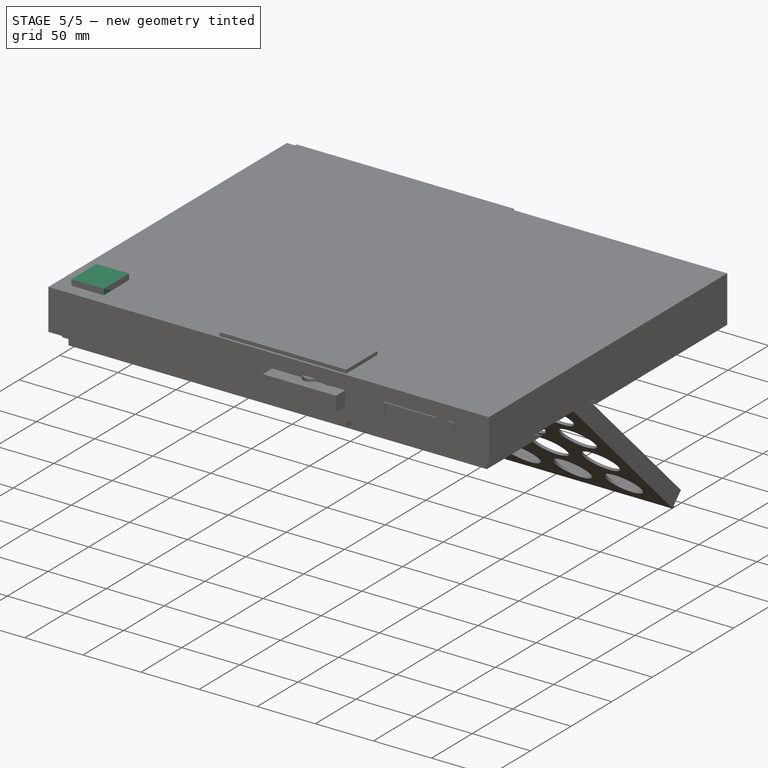
[diagram: stage 5 of 5 — iso view after this stage's code; geometry added in this stage tinted green]
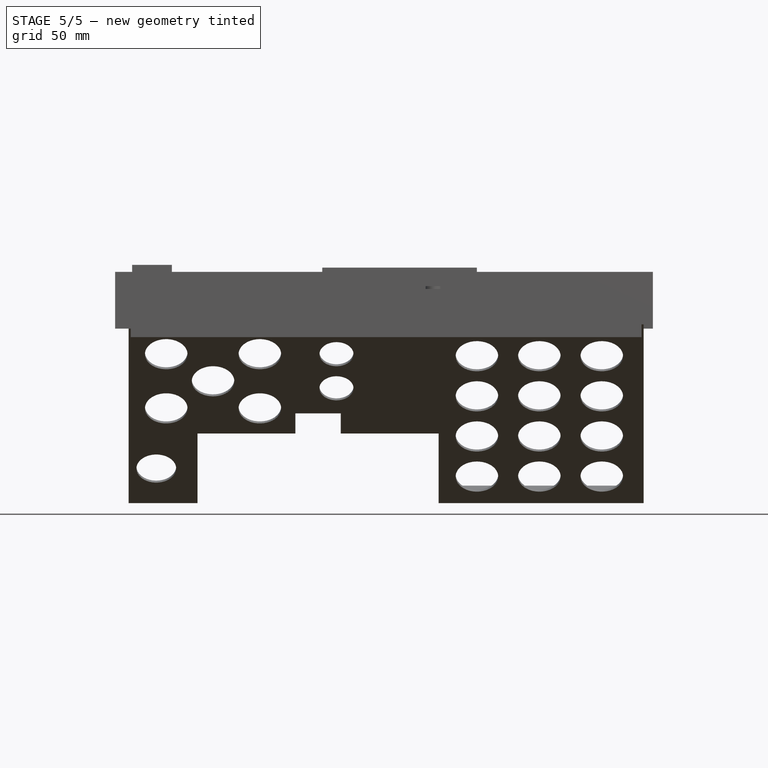
[diagram: stage 5 of 5 — front view after this stage's code; geometry added in this stage tinted green]
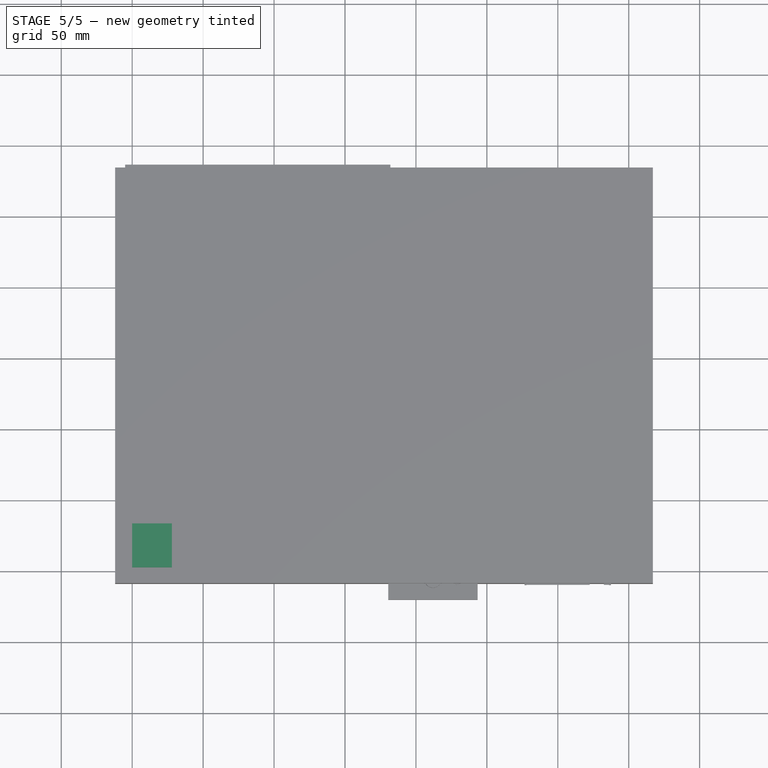
[diagram: stage 5 of 5 — top view after this stage's code; geometry added in this stage tinted green]
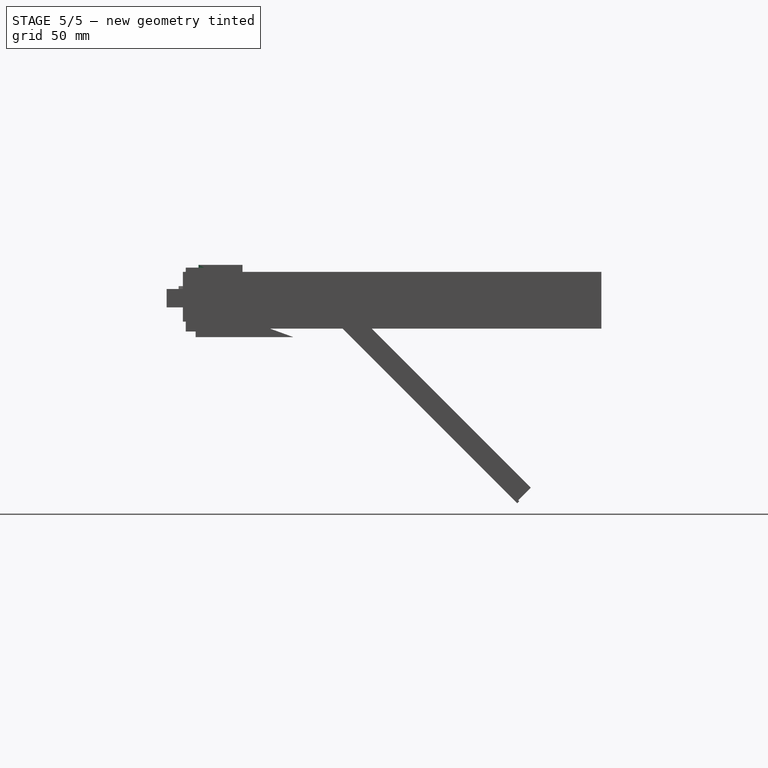
[diagram: stage 5 of 5 — right view after this stage's code; geometry added in this stage tinted green]
FEATURE [Part::Box] Box  label="lcd"
  AttacherType = Attacher::AttachEngine3D
  Height = 5
  Length = 358
  Placement = pos=(0,1,0) rot=(0,0,1;0rad)
  Width = 210
FEATURE [Spreadsheet::Sheet] Spreadsheet
  cells = A1=screw_r1; B1(screw_r1)=2.6; A2=screw_r2; B2(screw_r2)=1.5; A3=screw_r3; B3(screw_r3)=1.25; A4=m3_r3; B4(m3_r3)=1.28; A5=m3_r2; B5(m3_r2)=1.6; A6=m3_r1; B6(m3_r1)=4; A7=m2_r3; B7(m2_r3)=1.05
FEATURE [Sketcher::SketchObject] Sketch002
  FullyConstrained = true
  Placement = pos=(0,0,-2) rot=(1,0,0;3.14159rad)
  expr: Constraints[16] = Spreadsheet.m3_r3 + 2
  expr: Constraints[14] = Spreadsheet.m3_r3
  sketch-geometry (12):
    g0: LineSegment StartX=3 StartY=-67 StartZ=0 EndX=63 EndY=-67 EndZ=0
    g1: LineSegment StartX=63 StartY=-67 StartZ=0 EndX=63 EndY=-207 EndZ=0
    g2: LineSegment StartX=63 StartY=-207 StartZ=0 EndX=3 EndY=-207 EndZ=0
    g3: LineSegment StartX=3 StartY=-207 StartZ=0 EndX=3 EndY=-67 EndZ=0
    g4: Circle CenterX=7 CenterY=-192.75 CenterZ=0 NormalX=0 NormalY=0 NormalZ=1 AngleXU=0 Radius=1.28
    g5: Circle CenterX=7 CenterY=-192.75 CenterZ=0 NormalX=0 NormalY=0 NormalZ=1 AngleXU=0 Radius=3.28
    g6: Circle CenterX=35 CenterY=-193.75 CenterZ=0 NormalX=0 NormalY=0 NormalZ=1 AngleXU=0 Radius=3.28
    g7: Circle CenterX=35 CenterY=-193.75 CenterZ=0 NormalX=0 NormalY=0 NormalZ=1 AngleXU=0 Radius=1.28
    g8: Circle CenterX=7 CenterY=-88 CenterZ=0 NormalX=0 NormalY=0 NormalZ=1 AngleXU=0 Radius=3.28
    g9: Circle CenterX=7 CenterY=-88 CenterZ=0 NormalX=0 NormalY=0 NormalZ=1 AngleXU=0 Radius=1.28
    g10: Circle CenterX=35 CenterY=-82.25 CenterZ=0 NormalX=0 NormalY=0 NormalZ=1 AngleXU=0 Radius=3.28
    g11: Circle CenterX=35 CenterY=-82.25 CenterZ=0 NormalX=0 NormalY=0 NormalZ=1 AngleXU=0 Radius=1.28
  constraints (32):
    c: Coincident(g0,g1)
    c: Coincident(g1,g2)
    c: Coincident(g2,g3)
    c: Coincident(g3,g0)
    c: Horizontal(g0)
    c: Horizontal(g2)
    c: Vertical(g1)
    c: Vertical(g3)
    c: DistanceX(g0,g0) = 60
    c: DistanceY(g1,g1) = 140
    c: DistanceX(g2) = 3
    c: DistanceY(g2) = -207
    c: DistanceX(g2,g4) = 4
    c: DistanceY(g2,g4) = 14.25
    c: Radius(g4) = 1.28
    c: Coincident(g5,g4)
    c: Radius(g5) = 3.28
    c: Equal(g4,g7) = 1.6
    c: Coincident(g6,g7)
    c: Equal(g5,g6) = 3.6
    c: DistanceY(g2,g6) = 13.25
    c: DistanceX(g2,g6) = 32
    c: Equal(g4,g9) = 1.6
    c: Coincident(g8,g9)
    c: Equal(g5,g8) = 3.6
    c: DistanceX(g2,g8) = 4
    c: DistanceY(g2,g8) = 119
    c: Equal(g4,g11) = 1.6
    c: Coincident(g10,g11)
    c: Equal(g5,g10) = 3.6
    c: DistanceY(g2,g10) = 124.75
    c: DistanceX(g2,g10) = 32
FEATURE [Sketcher::SketchObject] Sketch003  label="profile001"
  FullyConstrained = true
  Placement = pos=(0,14,0) rot=(1,0,0;1.5708rad)
  sketch-geometry (6):
    g0: LineSegment StartX=7 StartY=-2 StartZ=0 EndX=7 EndY=0 EndZ=0
    g1: LineSegment StartX=7 StartY=0 StartZ=0 EndX=0 EndY=0 EndZ=0
    g2: LineSegment StartX=0 StartY=0 StartZ=0 EndX=0 EndY=-24.5 EndZ=0
    g3: LineSegment StartX=0 StartY=-24.5 StartZ=0 EndX=2 EndY=-24.5 EndZ=0
    g4: LineSegment StartX=2 StartY=-24.5 StartZ=0 EndX=2 EndY=-2 EndZ=0
    g5: LineSegment StartX=2 StartY=-2 StartZ=0 EndX=7 EndY=-2 EndZ=0
  constraints (18):
    c: Vertical(g0)
    c: Coincident(g0,g1)
    c: Horizontal(g1)
    c: Coincident(g1,g2)
    c: Vertical(g2)
    c: Coincident(g2,g3)
    c: Horizontal(g3)
    c: Coincident(g3,g4)
    c: Vertical(g4)
    c: Coincident(g4,g5)
    c: Coincident(g5,g0)
    c: Horizontal(g5)
    c: DistanceX(g0) = 7
    c: DistanceX(g3,g3) = 2
    c: PointOnObject(g1,g-1)
    c: DistanceY(g0,g0) = 2
    c: PointOnObject(g2,g-2)
    c: DistanceY(g3) = -24.5
FEATURE [Sketcher::SketchObject] Sketch004  label="path001"
  FullyConstrained = true
  sketch-geometry (4):
    g0: LineSegment StartX=-0.5 StartY=211.5 StartZ=0 EndX=358.5 EndY=211.5 EndZ=0
    g1: LineSegment StartX=358.5 StartY=211.5 StartZ=0 EndX=358.5 EndY=0.5 EndZ=0
    g2: LineSegment StartX=358.5 StartY=0.5 StartZ=0 EndX=-0.5 EndY=0.5 EndZ=0
    g3: LineSegment StartX=-0.5 StartY=0.5 StartZ=0 EndX=-0.5 EndY=211.5 EndZ=0
  constraints (12):
    c: Coincident(g0,g1)
    c: Coincident(g1,g2)
    c: Coincident(g2,g3)
    c: Coincident(g3,g0)
    c: Horizontal(g0)
    c: Horizontal(g2)
    c: Vertical(g1)
    c: Vertical(g3)
    c: DistanceX(g2) = -0.5
    c: DistanceY(g2) = 0.5
    c: DistanceX(g0) = 358.5
    c: DistanceY(g0) = 211.5
FEATURE [Part::Sweep] Sweep001
  Frenet = false
  Sections = -> [Sketch003]
  Solid = true
  Spine = -> Sketch004
  Transition = 1
FEATURE [Sketcher::SketchObject] Sketch006
  FullyConstrained = true
  Placement = pos=(0,0,-5) rot=(1,0,0;3.14159rad)
  expr: Constraints[14] = Spreadsheet.m3_r3
  sketch-geometry (8):
    g0: LineSegment StartX=3 StartY=-67 StartZ=0 EndX=63 EndY=-67 EndZ=0
    g1: LineSegment StartX=63 StartY=-67 StartZ=0 EndX=63 EndY=-207 EndZ=0
    g2: LineSegment StartX=63 StartY=-207 StartZ=0 EndX=3 EndY=-207 EndZ=0
    g3: LineSegment StartX=3 StartY=-207 StartZ=0 EndX=3 EndY=-67 EndZ=0
    g4: Circle CenterX=7 CenterY=-192.75 CenterZ=0 NormalX=0 NormalY=0 NormalZ=1 AngleXU=0 Radius=1.28
    g5: Circle CenterX=35 CenterY=-193.75 CenterZ=0 NormalX=0 NormalY=0 NormalZ=1 AngleXU=0 Radius=1.28
    g6: Circle CenterX=7 CenterY=-88 CenterZ=0 NormalX=0 NormalY=0 NormalZ=1 AngleXU=0 Radius=1.28
    g7: Circle CenterX=35 CenterY=-82.25 CenterZ=0 NormalX=0 NormalY=0 NormalZ=1 AngleXU=0 Radius=1.28
  constraints (24):
    c: Coincident(g0,g1)
    c: Coincident(g1,g2)
    c: Coincident(g2,g3)
    c: Coincident(g3,g0)
    c: Horizontal(g0)
    c: Horizontal(g2)
    c: Vertical(g1)
    c: Vertical(g3)
    c: DistanceX(g0,g0) = 60
    c: DistanceY(g1,g1) = 140
    c: DistanceX(g2) = 3
    c: DistanceY(g2) = -207
    c: DistanceX(g2,g4) = 4
    c: DistanceY(g2,g4) = 14.25
    c: Radius(g4) = 1.28
    c: Equal(g4,g5) = 1.6
    c: Equal(g4,g6) = 1.6
    c: Equal(g4,g7) = 1.6
    c: DistanceX(g2,g5) = 32
    c: DistanceY(g2,g5) = 13.25
    c: DistanceY(g2,g7) = 124.75
    c: DistanceX(g2,g7) = 32
    c: DistanceY(g2,g6) = 119
    c: DistanceX(g2,g6) = 4
FEATURE [Part::Extrusion] Extrude001  label="hdmi board"
  Base = -> Sketch006
  Dir = (0,0,-1)
  DirMode = 2
  FaceMakerClass = Part::FaceMakerBullseye
  LengthFwd = 1
  LengthRev = 0
  Solid = true
  Symmetric = false
FEATURE [Sketcher::SketchObject] Sketch007
  FullyConstrained = true
  expr: Constraints[3] = Spreadsheet.m3_r1
  expr: Constraints[2] = Spreadsheet.m3_r2
  sketch-geometry (2):
    g0: Circle CenterX=0 CenterY=0 CenterZ=0 NormalX=0 NormalY=0 NormalZ=1 AngleXU=0 Radius=1.6
    g1: Circle CenterX=0 CenterY=0 CenterZ=0 NormalX=0 NormalY=0 NormalZ=1 AngleXU=0 Radius=4
  constraints (4):
    c: Coincident(g0,g-1)
    c: Coincident(g1,g0)
    c: Radius(g0) = 1.6
    c: Radius(g1) = 4
FEATURE [Part::Extrusion] Extrude002  label="washer"
  Base = -> Sketch007
  Dir = (0,0,1)
  DirMode = 2
  FaceMakerClass = Part::FaceMakerBullseye
  LengthFwd = 3
  LengthRev = 0
  Solid = true
  Symmetric = false
FEATURE [PartDesign::FeatureBase] Clone
  BaseFeature = -> Extrude002
FEATURE [PartDesign::Body] Body  label="washer001"
  BaseFeature = -> Extrude002
  Group = -> [Clone]
  Origin = -> Origin
  Placement = pos=(12,192.75,-9) rot=(0,0,1;0rad)
  Tip = -> Clone
FEATURE [PartDesign::FeatureBase] Clone001
  BaseFeature = -> Extrude002
FEATURE [PartDesign::Body] Body001  label="washer002"
  BaseFeature = -> Extrude002
  Group = -> [Clone001]
  Origin = -> Origin001
  Placement = pos=(12,88,-9) rot=(0,0,1;0rad)
  Tip = -> Clone001
FEATURE [PartDesign::FeatureBase] Clone002
  BaseFeature = -> Extrude002
FEATURE [PartDesign::Body] Body002  label="washer003"
  BaseFeature = -> Extrude002
  Group = -> [Clone002]
  Origin = -> Origin002
  Placement = pos=(40,82.25,-9) rot=(0,0,1;0rad)
  Tip = -> Clone002
FEATURE [PartDesign::FeatureBase] Clone003
  BaseFeature = -> Extrude002
FEATURE [PartDesign::Body] Body003  label="washer004"
  BaseFeature = -> Extrude002
  Group = -> [Clone003]
  Origin = -> Origin003
  Placement = pos=(40,193.75,-9) rot=(0,0,1;0rad)
  Tip = -> Clone003
FEATURE [Sketcher::SketchObject] Sketch010
  FullyConstrained = true
  Placement = pos=(2,0,0) rot=(0.57735,0.57735,0.57735;2.0944rad)
  sketch-geometry (4):
    g0: LineSegment StartX=66 StartY=0 StartZ=0 EndX=66 EndY=-10 EndZ=0
    g1: LineSegment StartX=66 StartY=-10 StartZ=0 EndX=64 EndY=-10 EndZ=0
    g2: LineSegment StartX=64 StartY=-10 StartZ=0 EndX=64 EndY=0 EndZ=0
    g3: LineSegment StartX=64 StartY=0 StartZ=0 EndX=66 EndY=0 EndZ=0
  constraints (12):
    c: Vertical(g0)
    c: Coincident(g0,g1)
    c: Horizontal(g1)
    c: Coincident(g1,g2)
    c: Vertical(g2)
    c: Coincident(g2,g3)
    c: DistanceX(g0) = 66
    c: DistanceY(g2,g2) = 10
    c: DistanceX(g3,g3) = 2
    c: Coincident(g0,g3)
    c: PointOnObject(g0,g-1)
    c: Horizontal(g3)
FEATURE [Part::Extrusion] Extrude005  label="stringer006"
  Base = -> Sketch010
  Dir = (1,0,0)
  DirMode = 2
  FaceMakerClass = Part::FaceMakerBullseye
  LengthFwd = 69
  LengthRev = 0
  Solid = true
  Symmetric = false
FEATURE [Sketcher::SketchObject] Sketch011
  FullyConstrained = false
  Placement = pos=(0,0,-6) rot=(1,0,0;3.14159rad)
  sketch-geometry (20):
    g0: LineSegment StartX=3 StartY=-67 StartZ=0 EndX=63 EndY=-67 EndZ=0
    g1: LineSegment StartX=63 StartY=-67 StartZ=0 EndX=63 EndY=-207 EndZ=0
    g2: LineSegment StartX=63 StartY=-207 StartZ=0 EndX=3 EndY=-207 EndZ=0
    g3: LineSegment StartX=3 StartY=-67 StartZ=0 EndX=3 EndY=-83.2179 EndZ=0
    g4: LineSegment StartX=3 StartY=-83.2179 StartZ=0 EndX=13.4597 EndY=-83.2179 EndZ=0
    g5: LineSegment StartX=13.4597 StartY=-83.2179 StartZ=0 EndX=13.4597 EndY=-93 EndZ=0
    g6: LineSegment StartX=13.4597 StartY=-93 StartZ=0 EndX=3 EndY=-93 EndZ=0
    g7: LineSegment StartX=3 StartY=-93 StartZ=0 EndX=3 EndY=-187.213 EndZ=0
    g8: LineSegment StartX=3 StartY=-187.213 StartZ=0 EndX=11.4951 EndY=-187.213 EndZ=0
    g9: LineSegment StartX=11.4951 StartY=-187.213 StartZ=0 EndX=11.4951 EndY=-198 EndZ=0
    g10: LineSegment StartX=11.4951 StartY=-198 StartZ=0 EndX=3 EndY=-198 EndZ=0
    g11: LineSegment StartX=3 StartY=-198 StartZ=0 EndX=3 EndY=-207 EndZ=0
    g12: LineSegment StartX=30 StartY=-77 StartZ=0 EndX=40 EndY=-77 EndZ=0
    g13: LineSegment StartX=40 StartY=-77 StartZ=0 EndX=40 EndY=-87.2303 EndZ=0
    g14: LineSegment StartX=40 StartY=-87.2303 StartZ=0 EndX=30 EndY=-87.2303 EndZ=0
    g15: LineSegment StartX=30 StartY=-87.2303 StartZ=0 EndX=30 EndY=-77 EndZ=0
    g16: LineSegment StartX=28 StartY=-185.254 StartZ=0 EndX=42.6516 EndY=-185.254 EndZ=0
    g17: LineSegment StartX=42.6516 StartY=-185.254 StartZ=0 EndX=42.6516 EndY=-201.27 EndZ=0
    g18: LineSegment StartX=42.6516 StartY=-201.27 StartZ=0 EndX=28 EndY=-201.27 EndZ=0
    g19: LineSegment StartX=28 StartY=-201.27 StartZ=0 EndX=28 EndY=-185.254 EndZ=0
  constraints (46):
    c: Coincident(g0,g1)
    c: Coincident(g1,g2)
    c: Horizontal(g0)
    c: Horizontal(g2)
    c: Vertical(g1)
    c: DistanceX(g0,g0) = 60
    c: DistanceY(g1,g1) = 140
    c: DistanceX(g2) = 3
    c: DistanceY(g2) = -207
    c: Coincident(g0,g3)
    c: Vertical(g3)
    c: Coincident(g3,g4)
    c: Horizontal(g4)
    c: Coincident(g4,g5)
    c: Coincident(g5,g6)
    c: Horizontal(g6)
    c: Coincident(g6,g7)
    c: Vertical(g7)
    c: Coincident(g7,g8)
    c: Horizontal(g8)
    c: Coincident(g8,g9)
    c: Vertical(g9)
    c: Coincident(g9,g10)
    c: Coincident(g10,g11)
    c: Coincident(g11,g2)
    c: Vertical(g11)
    c: Horizontal(g10)
    c: Vertical(g5)
    c: Vertical(g3,g6)
    c: Vertical(g10,g7)
    c: Coincident(g12,g13)
    c: Coincident(g13,g14)
    c: Coincident(g14,g15)
    c: Coincident(g15,g12)
    c: Horizontal(g12)
    c: Horizontal(g14)
    c: Vertical(g13)
    c: Vertical(g15)
    c: Coincident(g16,g17)
    c: Coincident(g17,g18)
    c: Coincident(g18,g19)
    c: Coincident(g19,g16)
    c: Horizontal(g16)
    c: Horizontal(g18)
    c: Vertical(g17)
    c: Vertical(g19)
FEATURE [Part::Extrusion] Extrude006  label="hdmi001"
  Base = -> Sketch011
  Dir = (0,-1e-16,-1)
  DirMode = 2
  FaceMakerClass = Part::FaceMakerBullseye
  LengthFwd = 16
  LengthRev = 0
  Solid = true
  Symmetric = false
FEATURE [Sketcher::SketchObject] Sketch012
  FullyConstrained = true
  Placement = pos=(0,4,0) rot=(1,0,0;1.5708rad)
  expr: Constraints[11] = Spreadsheet.m3_r2
  sketch-geometry (7):
    g0: LineSegment StartX=0 StartY=0 StartZ=0 EndX=107 EndY=0 EndZ=0
    g1: LineSegment StartX=107 StartY=0 StartZ=0 EndX=107 EndY=-15.5 EndZ=0
    g2: LineSegment StartX=107 StartY=-15.5 StartZ=0 EndX=0 EndY=-15.5 EndZ=0
    g3: LineSegment StartX=0 StartY=-15.5 StartZ=0 EndX=0 EndY=0 EndZ=0
    g4: Circle CenterX=4 CenterY=-6.5 CenterZ=0 NormalX=0 NormalY=0 NormalZ=1 AngleXU=0 Radius=1.6
    g5: Circle CenterX=61 CenterY=-6.5 CenterZ=0 NormalX=0 NormalY=0 NormalZ=1 AngleXU=0 Radius=1.6
    g6: Circle CenterX=96.5 CenterY=-6.5 CenterZ=0 NormalX=0 NormalY=0 NormalZ=1 AngleXU=0 Radius=1.6
  constraints (20):
    c: Coincident(g0,g1)
    c: Coincident(g1,g2)
    c: Coincident(g2,g3)
    c: Coincident(g3,g0)
    c: Horizontal(g0)
    c: Horizontal(g2)
    c: Vertical(g1)
    c: Vertical(g3)
    c: DistanceX(g0,g0) = 107
    c: DistanceY(g1,g1) = 15.5
    c: Coincident(g0,g-1)
    c: Radius(g4) = 1.6
    c: DistanceY(g4) = -6.5
    c: DistanceX(g4) = 4
    c: Equal(g4,g5) = 2
    c: Equal(g4,g6) = 2
    c: Horizontal(g4,g5)
    c: Horizontal(g5,g6)
    c: DistanceX(g5) = 61
    c: DistanceX(g6) = 96.5
FEATURE [Part::Extrusion] Extrude007  label="buttons"
  Base = -> Sketch012
  Dir = (0,-1,2e-16)
  DirMode = 2
  FaceMakerClass = Part::FaceMakerBullseye
  LengthFwd = 1.5
  LengthRev = 0
  Placement = pos=(3,-5.5,-2) rot=(0,0,1;0rad)
  Solid = true
  Symmetric = false
FEATURE [Sketcher::SketchObject] Sketch013
  FullyConstrained = true
  Placement = pos=(0,26,0) rot=(1,0,0;1.5708rad)
  sketch-geometry (6):
    g0: LineSegment StartX=69 StartY=-10 StartZ=0 EndX=71 EndY=-10 EndZ=0
    g1: LineSegment StartX=71 StartY=-10 StartZ=0 EndX=71 EndY=0 EndZ=0
    g2: LineSegment StartX=71 StartY=0 StartZ=0 EndX=61 EndY=0 EndZ=0
    g3: LineSegment StartX=61 StartY=0 StartZ=0 EndX=61 EndY=-2 EndZ=0
    g4: LineSegment StartX=61 StartY=-2 StartZ=0 EndX=69 EndY=-2 EndZ=0
    g5: LineSegment StartX=69 StartY=-2 StartZ=0 EndX=69 EndY=-10 EndZ=0
  constraints (18):
    c: Horizontal(g0)
    c: Coincident(g0,g1)
    c: PointOnObject(g1,g-1)
    c: Vertical(g1)
    c: Coincident(g1,g2)
    c: PointOnObject(g2,g-1)
    c: Coincident(g2,g3)
    c: Vertical(g3)
    c: Coincident(g3,g4)
    c: Horizontal(g4)
    c: Coincident(g4,g5)
    c: Coincident(g5,g0)
    c: Vertical(g5)
    c: DistanceX(g2,g2) = 10
    c: DistanceY(g3,g3) = 2
    c: DistanceX(g0,g0) = 2
    c: DistanceY(g1,g1) = 10
    c: DistanceX(g1) = 71
FEATURE [Part::Extrusion] Extrude008  label="stringer007"
  Base = -> Sketch013
  Dir = (0,-1,2e-16)
  DirMode = 2
  FaceMakerClass = Part::FaceMakerBullseye
  LengthFwd = 24
  LengthRev = 40
  Solid = true
  Symmetric = false
FEATURE [Sketcher::SketchObject] Sketch014
  FullyConstrained = true
  Placement = pos=(0,0,0) rot=(0.57735,0.57735,0.57735;2.0944rad)
  sketch-geometry (5):
    g0: Circle CenterX=1.2e-15 CenterY=2e-16 CenterZ=0 NormalX=0 NormalY=0 NormalZ=1 AngleXU=0 Radius=1.2
    g1: ArcOfCircle CenterX=1.2e-15 CenterY=2e-16 CenterZ=0 NormalX=0 NormalY=0 NormalZ=1 AngleXU=0 Radius=3 StartAngle=1.5708 EndAngle=4.71239
    g2: LineSegment StartX=1.2e-15 StartY=3 StartZ=0 EndX=3.5 EndY=3 EndZ=0
    g3: LineSegment StartX=3.5 StartY=3 StartZ=0 EndX=3.5 EndY=-3 EndZ=0
    g4: LineSegment StartX=3.5 StartY=-3 StartZ=0 EndX=1.3e-15 EndY=-3 EndZ=0
  constraints (13):
    c: Radius(g0) = 1.2
    c: Coincident(g1,g0)
    c: Radius(g1) = 3
    c: Vertical(g1,g0)
    c: Vertical(g1,g0)
    c: Tangent(g1,g2) = 1.5708
    c: Coincident(g2,g3)
    c: Vertical(g3)
    c: Coincident(g3,g4)
    c: Coincident(g4,g1)
    c: Horizontal(g4)
    c: DistanceX(g0,g2) = 3.5
    c: Coincident(g0,g-1)
FEATURE [Part::Extrusion] Extrude009
  Base = -> Sketch014
  Dir = (1,-2e-16,2e-16)
  DirMode = 2
  FaceMakerClass = Part::FaceMakerBullseye
  LengthFwd = 25
  LengthRev = 0
  Placement = pos=(0,3,-16) rot=(-1,0,0;0.349066rad)
  Solid = true
  Symmetric = false
FEATURE [Part::FeaturePython] Array  label="hinge"  # Draft array (typed FeaturePython)
  Angle = 360
  ArrayType = 0
  Axis = (0,0,1)
  Base = -> Extrude009
  Center = (0,0,0)
  Count = 4
  ExpandArray = false
  Fuse = false
  IntervalAxis = (0,0,0)
  IntervalX = (111,0,0)
  IntervalY = (0,100,0)
  IntervalZ = (0,0,100)
  NumberCircles = 3
  NumberPolar = 5
  NumberX = 4
  NumberY = 1
  NumberZ = 1
  PlacementList = 4 placements: arithmetic series from (0,3,-16) step (111,0,0) to (333,3,-16)
  RadialDistance = 50
  ScaleList = (4) [(1,1,1),(1,1,1),(1,1,1),(1,1,1)]
  Symmetry = 1
  TangentialDistance = 25
FEATURE [Sketcher::SketchObject] Sketch015
  FullyConstrained = true
  Placement = pos=(0,0,0) rot=(1,0,0;3.14159rad)
  sketch-geometry (8):
    g0: LineSegment StartX=0 StartY=0 StartZ=0 EndX=79 EndY=0 EndZ=0
    g1: LineSegment StartX=79 StartY=0 StartZ=0 EndX=79 EndY=-100 EndZ=0
    g2: LineSegment StartX=79 StartY=-100 StartZ=0 EndX=0 EndY=-100 EndZ=0
    g3: LineSegment StartX=0 StartY=-100 StartZ=0 EndX=0 EndY=0 EndZ=0
    g4: Circle CenterX=4 CenterY=-10 CenterZ=0 NormalX=0 NormalY=0 NormalZ=1 AngleXU=0 Radius=1.25
    g5: Circle CenterX=62 CenterY=-10 CenterZ=0 NormalX=0 NormalY=0 NormalZ=1 AngleXU=0 Radius=1.25
    g6: Circle CenterX=4 CenterY=-96 CenterZ=0 NormalX=0 NormalY=0 NormalZ=1 AngleXU=0 Radius=1.25
    g7: Circle CenterX=62 CenterY=-96 CenterZ=0 NormalX=0 NormalY=0 NormalZ=1 AngleXU=0 Radius=1.25
  constraints (23):
    c: Coincident(g0,g1)
    c: Coincident(g1,g2)
    c: Coincident(g2,g3)
    c: Coincident(g3,g0)
    c: Horizontal(g0)
    c: Horizontal(g2)
    c: Vertical(g1)
    c: Vertical(g3)
    c: Coincident(g0,g-1)
    c: DistanceX(g0,g0) = 79
    c: DistanceY(g3,g3) = 100
    c: DistanceX(g4) = 4
    c: DistanceY(g4) = -10
    c: Radius(g4) = 1.25
    c: Equal(g4,g5) = 1.25
    c: Equal(g4,g6) = 1.25
    c: Equal(g4,g7) = 1.25
    c: DistanceY(g6) = -96
    c: Vertical(g6,g4)
    c: Horizontal(g4,g5)
    c: Horizontal(g7,g6)
    c: DistanceX(g5) = 62
    c: Vertical(g7,g5)
FEATURE [Part::Extrusion] Extrude010  label="jetson"
  Base = -> Sketch015
  Dir = (0,0,-1)
  DirMode = 2
  FaceMakerClass = Part::FaceMakerBullseye
  LengthFwd = 1.7
  LengthRev = 0
  Solid = true
  Symmetric = false
FEATURE [Part::Box] Box001  label="battery"
  AttacherType = Attacher::AttachEngine3D
  Height = 25
  Length = 50
  Placement = pos=(182,275,6.32) rot=(0.707107,-0.707107,0;3.14159rad)
  Width = 145
FEATURE [Sketcher::SketchObject] Sketch016
  FullyConstrained = false
  Placement = pos=(0,0,0) rot=(0.57735,0.57735,0.57735;2.0944rad)
  sketch-geometry (2):
    g0: LineSegment StartX=4.21257 StartY=-13.3437 StartZ=0 EndX=63.7128 EndY=-35 EndZ=0
    g1: LineSegment StartX=63.7128 StartY=-35 StartZ=0 EndX=212.5 EndY=-35 EndZ=0
  constraints (5):
    c: Coincident(g0,g1)
    c: Horizontal(g1)
    c: DistanceY(g1) = -35
    c: Angle(g0,g1,g0) = 0.349066
    c: DistanceX(g1) = 212.5
FEATURE [Part::Extrusion] Extrude011
  Base = -> Sketch016
  Dir = (1,0,0)
  DirMode = 2
  FaceMakerClass = Part::FaceMakerBullseye
  LengthFwd = 358
  LengthRev = 0
  Solid = false
  Symmetric = false
FEATURE [Sketcher::SketchObject] Sketch017
  FullyConstrained = true
  Placement = pos=(-1,0,0) rot=(0.57735,0.57735,0.57735;2.0944rad)
  sketch-geometry (3):
    g0: LineSegment StartX=-2 StartY=-10.8861 StartZ=0 EndX=67 EndY=-36 EndZ=0
    g1: LineSegment StartX=67 StartY=-36 StartZ=0 EndX=-2 EndY=-36 EndZ=0
    g2: LineSegment StartX=-2 StartY=-36 StartZ=0 EndX=-2 EndY=-10.8861 EndZ=0
  constraints (9):
    c: Coincident(g0,g1)
    c: Horizontal(g1)
    c: Coincident(g1,g2)
    c: Coincident(g2,g0)
    c: Vertical(g2)
    c: Angle(g1,g0,g0) = 2.79253
    c: DistanceX(g0) = 67
    c: DistanceY(g0) = -36
    c: DistanceX(g0) = -2
FEATURE [Part::Extrusion] Extrude012
  Base = -> Sketch017
  Dir = (1,-2e-16,2e-16)
  DirMode = 2
  FaceMakerClass = Part::FaceMakerBullseye
  LengthFwd = 360
  LengthRev = 0
  Solid = true
  Symmetric = false
FEATURE [Sketcher::SketchObject] Sketch018
  FullyConstrained = true
  Placement = pos=(0,0,-1.7) rot=(1,0,0;3.14159rad)
  sketch-geometry (4):
    g0: LineSegment StartX=0 StartY=-23 StartZ=0 EndX=40 EndY=-23 EndZ=0
    g1: LineSegment StartX=40 StartY=-23 StartZ=0 EndX=40 EndY=-82 EndZ=0
    g2: LineSegment StartX=40 StartY=-82 StartZ=0 EndX=0 EndY=-82 EndZ=0
    g3: LineSegment StartX=0 StartY=-82 StartZ=0 EndX=0 EndY=-23 EndZ=0
  constraints (12):
    c: Coincident(g0,g1)
    c: Coincident(g1,g2)
    c: Coincident(g2,g3)
    c: Coincident(g3,g0)
    c: Horizontal(g0)
    c: Horizontal(g2)
    c: Vertical(g1)
    c: Vertical(g3)
    c: DistanceX(g0,g0) = 40
    c: DistanceY(g3,g3) = 59
    c: PointOnObject(g0,g-2)
    c: DistanceY(g0) = -23
FEATURE [Part::Extrusion] Extrude013
  Base = -> Sketch018
  Dir = (0,-1e-16,-1)
  DirMode = 2
  FaceMakerClass = Part::FaceMakerBullseye
  LengthFwd = 26.8
  LengthRev = 0
  Solid = true
  Symmetric = false
FEATURE [Sketcher::SketchObject] Sketch019
  FullyConstrained = true
  Placement = pos=(0,0,-1.7) rot=(1,0,0;3.14159rad)
  sketch-geometry (4):
    g0: LineSegment StartX=80.5 StartY=-85 StartZ=0 EndX=58.5 EndY=-85 EndZ=0
    g1: LineSegment StartX=58.5 StartY=-85 StartZ=0 EndX=58.5 EndY=-15 EndZ=0
    g2: LineSegment StartX=58.5 StartY=-15 StartZ=0 EndX=80.5 EndY=-15 EndZ=0
    g3: LineSegment StartX=80.5 StartY=-15 StartZ=0 EndX=80.5 EndY=-85 EndZ=0
  constraints (12):
    c: Coincident(g0,g1)
    c: Coincident(g1,g2)
    c: Coincident(g2,g3)
    c: Coincident(g3,g0)
    c: Horizontal(g0)
    c: Horizontal(g2)
    c: Vertical(g1)
    c: Vertical(g3)
    c: DistanceX(g2,g2) = 22
    c: DistanceY(g3,g3) = 70
    c: DistanceX(g2) = 80.5
    c: DistanceY(g2) = -15
FEATURE [Part::Extrusion] Extrude014
  Base = -> Sketch019
  Dir = (0,0,-1)
  DirMode = 2
  FaceMakerClass = Part::FaceMakerBullseye
  LengthFwd = 19.8
  LengthRev = 0
  Solid = true
  Symmetric = false
FEATURE [Sketcher::SketchObject] Sketch020
  FullyConstrained = false
  Placement = pos=(0,0,-5) rot=(1,0,0;3.14159rad)
  sketch-geometry (1):
    g0: Circle CenterX=10 CenterY=-95 CenterZ=0 NormalX=0 NormalY=0 NormalZ=1 AngleXU=0 Radius=0.5
  constraints (2):
    c: Radius(g0) = 0.5
    c: DistanceX(g0) = 10
FEATURE [Part::Extrusion] Extrude015
  Base = -> Sketch020
  Dir = (0,0,-1)
  DirMode = 2
  FaceMakerClass = Part::FaceMakerBullseye
  LengthFwd = 0
  LengthRev = 2.5
  Solid = true
  Symmetric = false
FEATURE [Part::FeaturePython] Array001  # Draft array (typed FeaturePython)
  Angle = 360
  ArrayType = 0
  Axis = (0,0,1)
  Base = -> Extrude015
  Center = (0,0,0)
  Count = 190
  ExpandArray = false
  Fuse = false
  IntervalAxis = (0,0,0)
  IntervalX = (5,0,0)
  IntervalY = (0,5,0)
  IntervalZ = (0,0,100)
  NumberCircles = 3
  NumberPolar = 5
  NumberX = 10
  NumberY = 19
  NumberZ = 1
  PlacementList = 190 placements: [(0,0,0),(0,5,0),(0,10,0),(0,15,0),(0,20,0),(0,25,0),(0,30,0),(0,35,0),(0,40,0),(0,45,0),(0,50,0),(0,55,0),(0,60,0),(0,65,0),(0,70,0),(0,75,0),(0,80,0),(0,85,0),(0,90,0),(5,0,0),(5,5,0),(5,10,0),(5,15,0),(5,20,0),(5,25,0),(5,30,0),(5,35,0),(5,40,0),(5,45,0),(5,50,0),(5,55,0),(5,60,0),(5,65,0),(5,70,0),(5,75,0),(5,80,0),(5,85,0),(5,90,0),(10,0,0),(10,5,0),(10,10,0),(10,15,0),(10,20,0),(10,25,0),+146 more]
  RadialDistance = 50
  ScaleList = (190) [(1,1,1),(1,1,1),(1,1,1),(1,1,1),(1,1,1),(1,1,1),(1,1,1),(1,1,1),(1,1,1),(1,1,1),(1,1,1),(1,1,1),(1,1,1),(1,1,1),(1,1,1),(1,1,1),(1,1,1),(1,1,1),+172 more]
  Symmetry = 1
  TangentialDistance = 25
FEATURE [Part::Compound] Compound001  label="hdmi"
  Links = -> [Array001,Extrude006,Extrude001]
  Placement = pos=(5,0,-6.4e-14) rot=(0,0,1;0rad)
FEATURE [Sketcher::SketchObject] Sketch021
  FullyConstrained = true
  Placement = pos=(0,0,0) rot=(1,0,0;3.14159rad)
  sketch-geometry (1):
    g0: Circle CenterX=10 CenterY=-16 CenterZ=0 NormalX=0 NormalY=0 NormalZ=1 AngleXU=0 Radius=0.5
  constraints (3):
    c: Radius(g0) = 0.5
    c: DistanceX(g0) = 10
    c: DistanceY(g0) = -16
FEATURE [Part::Extrusion] Extrude016
  Base = -> Sketch021
  Dir = (0,0,-1)
  DirMode = 2
  FaceMakerClass = Part::FaceMakerBullseye
  LengthFwd = 0
  LengthRev = 2.5
  Solid = true
  Symmetric = false
FEATURE [Part::FeaturePython] Array002  # Draft array (typed FeaturePython)
  Angle = 360
  ArrayType = 0
  Axis = (0,0,1)
  Base = -> Extrude016
  Center = (0,0,0)
  Count = 192
  ExpandArray = false
  Fuse = false
  IntervalAxis = (0,0,0)
  IntervalX = (5,0,0)
  IntervalY = (0,5,0)
  IntervalZ = (0,0,100)
  NumberCircles = 3
  NumberPolar = 5
  NumberX = 12
  NumberY = 16
  NumberZ = 1
  PlacementList = 192 placements: [(0,0,0),(0,5,0),(0,10,0),(0,15,0),(0,20,0),(0,25,0),(0,30,0),(0,35,0),(0,40,0),(0,45,0),(0,50,0),(0,55,0),(0,60,0),(0,65,0),(0,70,0),(0,75,0),(5,0,0),(5,5,0),(5,10,0),(5,15,0),(5,20,0),(5,25,0),(5,30,0),(5,35,0),(5,40,0),(5,45,0),(5,50,0),(5,55,0),(5,60,0),(5,65,0),(5,70,0),(5,75,0),(10,0,0),(10,5,0),(10,10,0),(10,15,0),(10,20,0),(10,25,0),(10,30,0),(10,35,0),(10,40,0),(10,45,0),(10,50,0),+149 more]
  RadialDistance = 50
  ScaleList = (192) [(1,1,1),(1,1,1),(1,1,1),(1,1,1),(1,1,1),(1,1,1),(1,1,1),(1,1,1),(1,1,1),(1,1,1),(1,1,1),(1,1,1),(1,1,1),(1,1,1),(1,1,1),(1,1,1),(1,1,1),(1,1,1),+174 more]
  Symmetry = 1
  TangentialDistance = 25
FEATURE [Sketcher::SketchObject] Sketch022
  FullyConstrained = true
  Placement = pos=(0,0,-1.7) rot=(1,0,0;3.14159rad)
  sketch-geometry (4):
    g0: LineSegment StartX=40 StartY=0 StartZ=0 EndX=58.5 EndY=0 EndZ=0
    g1: LineSegment StartX=58.5 StartY=0 StartZ=0 EndX=58.5 EndY=-100 EndZ=0
    g2: LineSegment StartX=58.5 StartY=-100 StartZ=0 EndX=40 EndY=-100 EndZ=0
    g3: LineSegment StartX=40 StartY=-100 StartZ=0 EndX=40 EndY=0 EndZ=0
  constraints (12):
    c: Coincident(g0,g1)
    c: Coincident(g1,g2)
    c: Coincident(g2,g3)
    c: Coincident(g3,g0)
    c: Horizontal(g0)
    c: Horizontal(g2)
    c: Vertical(g1)
    c: Vertical(g3)
    c: PointOnObject(g0,g-1)
    c: DistanceX(g0) = 40
    c: DistanceX(g0,g0) = 18.5
    c: DistanceY(g3,g3) = 100
FEATURE [Part::Extrusion] Extrude017
  Base = -> Sketch022
  Dir = (0,0,-1)
  DirMode = 2
  FaceMakerClass = Part::FaceMakerBullseye
  LengthFwd = 10
  LengthRev = 0
  Solid = true
  Symmetric = false
FEATURE [Part::Compound] Compound  label="jetson001"
  Links = -> [Extrude013,Extrude014,Extrude010,Array002,Extrude017]
FEATURE [Sketcher::SketchObject] Sketch023
  FullyConstrained = true
  Placement = pos=(0,0,-4) rot=(1,0,0;3.14159rad)
  expr: Constraints[33] = Spreadsheet.m3_r3 + 1.5
  expr: Constraints[0] = Spreadsheet.m3_r3
  sketch-geometry (17):
    g0: Circle CenterX=0 CenterY=0 CenterZ=0 NormalX=0 NormalY=0 NormalZ=1 AngleXU=0 Radius=1.28
    g1: ArcOfCircle CenterX=0 CenterY=0 CenterZ=0 NormalX=0 NormalY=0 NormalZ=1 AngleXU=0 Radius=2.78 StartAngle=5.08035 EndAngle=5.91523
    g2: ArcOfCircle CenterX=0 CenterY=0 CenterZ=0 NormalX=0 NormalY=0 NormalZ=1 AngleXU=0 Radius=2.78 StartAngle=0.367959 EndAngle=1.20284
    g3: ArcOfCircle CenterX=0 CenterY=0 CenterZ=0 NormalX=0 NormalY=0 NormalZ=1 AngleXU=0 Radius=2.78 StartAngle=1.93876 EndAngle=2.77363
    g4: ArcOfCircle CenterX=0 CenterY=0 CenterZ=0 NormalX=0 NormalY=0 NormalZ=1 AngleXU=0 Radius=2.78 StartAngle=3.50955 EndAngle=4.34443
    g5: LineSegment StartX=-1 StartY=2.59392 StartZ=0 EndX=-1 EndY=6 EndZ=0
    g6: LineSegment StartX=-1 StartY=6 StartZ=0 EndX=1 EndY=6 EndZ=0
    g7: LineSegment StartX=1 StartY=6 StartZ=0 EndX=1 EndY=2.59392 EndZ=0
    g8: LineSegment StartX=2.59392 StartY=1 StartZ=0 EndX=6 EndY=1 EndZ=0
    g9: LineSegment StartX=6 StartY=1 StartZ=0 EndX=6 EndY=-1 EndZ=0
    g10: LineSegment StartX=6 StartY=-1 StartZ=0 EndX=2.59392 EndY=-1 EndZ=0
    g11: LineSegment StartX=1 StartY=-2.59392 StartZ=0 EndX=1 EndY=-6 EndZ=0
    g12: LineSegment StartX=1 StartY=-6 StartZ=0 EndX=-1 EndY=-6 EndZ=0
    g13: LineSegment StartX=-1 StartY=-6 StartZ=0 EndX=-1 EndY=-2.59392 EndZ=0
    g14: LineSegment StartX=-2.59392 StartY=-1 StartZ=0 EndX=-6 EndY=-1 EndZ=0
    g15: LineSegment StartX=-2.59392 StartY=1 StartZ=0 EndX=-6 EndY=1 EndZ=0
    g16: LineSegment StartX=-6 StartY=1 StartZ=0 EndX=-6 EndY=-1 EndZ=0
  constraints (50):
    c: Radius(g0) = 1.28
    c: Coincident(g1,g0)
    c: Coincident(g2,g0)
    c: Coincident(g3,g0)
    c: Coincident(g4,g0)
    c: Coincident(g5,g3)
    c: Vertical(g5)
    c: Coincident(g6,g5)
    c: Horizontal(g6)
    c: Coincident(g7,g6)
    c: Coincident(g7,g2)
    c: Vertical(g7)
    c: Coincident(g8,g2)
    c: Horizontal(g8)
    c: Coincident(g9,g8)
    c: Vertical(g9)
    c: Coincident(g10,g9)
    c: Coincident(g10,g1)
    c: Horizontal(g10)
    c: Coincident(g11,g1)
    c: Vertical(g11)
    c: Coincident(g12,g11)
    c: Horizontal(g12)
    c: Coincident(g13,g12)
    c: Coincident(g13,g4)
    c: Vertical(g13)
    c: Coincident(g14,g4)
    c: Horizontal(g14)
    c: Coincident(g15,g3)
    c: Horizontal(g15)
    c: Coincident(g16,g15)
    c: Coincident(g16,g14)
    c: Vertical(g16)
    c: Radius(g2) = 2.78
    c: Equal(g2,g3)
    c: Equal(g2,g4)
    c: Equal(g2,g1)
    c: DistanceX(g0,g8) = 6
    c: DistanceX(g15,g0) = 6
    c: DistanceY(g0,g6) = 6
    c: DistanceY(g11,g0) = 6
    c: Vertical(g2,g1)
    c: Horizontal(g1,g4)
    c: Vertical(g4,g3)
    c: Horizontal(g3,g2)
    c: DistanceX(g6,g6) = 2
    c: DistanceY(g9,g9) = 2
    c: DistanceX(g12,g12) = 2
    c: DistanceY(g16,g16) = 2
    c: Coincident(g0,g-1)
FEATURE [Part::Extrusion] Extrude018  label="standoff"
  Base = -> Sketch023
  Dir = (0,-1e-16,-1)
  DirMode = 2
  FaceMakerClass = Part::FaceMakerBullseye
  LengthFwd = 4
  LengthRev = 0
  Solid = true
  Symmetric = false
FEATURE [PartDesign::FeatureBase] Clone004
  BaseFeature = -> Extrude018
FEATURE [PartDesign::Body] Body004  label="standoff001"
  BaseFeature = -> Extrude018
  Group = -> [Clone004]
  Origin = -> Origin004
  Placement = pos=(12,192.75,3) rot=(0,0,1;0rad)
  Tip = -> Clone004
FEATURE [PartDesign::FeatureBase] Clone005
  BaseFeature = -> Extrude018
FEATURE [PartDesign::Body] Body005  label="standoff002"
  BaseFeature = -> Extrude018
  Group = -> [Clone005]
  Origin = -> Origin005
  Placement = pos=(12,88,3) rot=(0,0,1;0rad)
  Tip = -> Clone005
FEATURE [PartDesign::FeatureBase] Clone006
  BaseFeature = -> Extrude018
FEATURE [PartDesign::Body] Body006  label="standoff003"
  BaseFeature = -> Extrude018
  Group = -> [Clone006]
  Origin = -> Origin006
  Placement = pos=(40,193.75,3) rot=(0,0,1;0rad)
  Tip = -> Clone006
FEATURE [PartDesign::FeatureBase] Clone007
  BaseFeature = -> Extrude018
FEATURE [PartDesign::FeatureBase] Clone008
  BaseFeature = -> Extrude
FEATURE [PartDesign::Body] Body008
  BaseFeature = -> Extrude
  Group = -> [Clone008]
  Origin = -> Origin008
  Placement = pos=(2,51,-3.68) rot=(0,1,0;1.5708rad)
  Tip = -> Clone008
FEATURE [PartDesign::FeatureBase] Clone009
  BaseFeature = -> Extrude
FEATURE [PartDesign::Body] Body009  label="screw hole007"
  BaseFeature = -> Extrude
  Group = -> [Clone009]
  Origin = -> Origin009
  Placement = pos=(133,3,-3.68) rot=(0.57735,-0.57735,-0.57735;4.18879rad)
  Tip = -> Clone009
FEATURE [Part::FeaturePython] Array003  label="screw holes"  # Draft array (typed FeaturePython)
  Angle = 360
  ArrayType = 0
  Axis = (0,0,1)
  Base = -> Body008
  Center = (0,0,0)
  Count = 2
  ExpandArray = false
  Fuse = false
  IntervalAxis = (0,0,0)
  IntervalX = (349,0,0)
  IntervalY = (0,105,0)
  IntervalZ = (0,0,100)
  NumberCircles = 3
  NumberPolar = 5
  NumberX = 2
  NumberY = 1
  NumberZ = 1
  PlacementList = 2 placements: [(2,51,-3.68),(351,51,-3.68)]
  RadialDistance = 50
  ScaleList = (2) [(1,1,1),(1,1,1)]
  Symmetry = 1
  TangentialDistance = 25
FEATURE [PartDesign::FeatureBase] Clone010
  BaseFeature = -> Compound
FEATURE [PartDesign::Body] Body010  label="jetson002"
  BaseFeature = -> Compound
  Group = -> [Clone010]
  Origin = -> Origin010
  Placement = pos=(321,261,-22) rot=(0.707107,-0.707107,0;3.14159rad)
  Tip = -> Clone010
FEATURE [Sketcher::SketchObject] Sketch025
  FullyConstrained = true
  Placement = pos=(0,0,-1.68) rot=(1,0,0;3.14159rad)
  expr: Constraints[4] = Spreadsheet.screw_r3 + 2
  expr: Constraints[0] = Spreadsheet.screw_r3
  sketch-geometry (8):
    g0: Circle CenterX=4 CenterY=-10 CenterZ=0 NormalX=0 NormalY=0 NormalZ=1 AngleXU=0 Radius=1.25
    g1: Circle CenterX=4 CenterY=-10 CenterZ=0 NormalX=0 NormalY=0 NormalZ=1 AngleXU=0 Radius=3.25
    g2: Circle CenterX=62 CenterY=-10 CenterZ=0 NormalX=0 NormalY=0 NormalZ=1 AngleXU=0 Radius=1.25
    g3: Circle CenterX=62 CenterY=-10 CenterZ=0 NormalX=0 NormalY=0 NormalZ=1 AngleXU=0 Radius=3.25
    g4: Circle CenterX=4 CenterY=-96 CenterZ=0 NormalX=0 NormalY=0 NormalZ=1 AngleXU=0 Radius=1.25
    g5: Circle CenterX=4 CenterY=-96 CenterZ=0 NormalX=0 NormalY=0 NormalZ=1 AngleXU=0 Radius=3.25
    g6: Circle CenterX=62 CenterY=-96 CenterZ=0 NormalX=0 NormalY=0 NormalZ=1 AngleXU=0 Radius=1.25
    g7: Circle CenterX=62 CenterY=-96 CenterZ=0 NormalX=0 NormalY=0 NormalZ=1 AngleXU=0 Radius=3.25
  constraints (20):
    c: Radius(g0) = 1.25
    c: DistanceX(g0) = 4
    c: DistanceY(g0) = -10
    c: Coincident(g1,g0)
    c: Radius(g1) = 3.25
    c: Equal(g0,g2) = 1.25
    c: Coincident(g3,g2)
    c: Equal(g1,g3) = 3.25
    c: Equal(g0,g4) = 1.25
    c: Coincident(g5,g4)
    c: Equal(g1,g5) = 3.25
    c: Equal(g0,g6) = 1.25
    c: Coincident(g7,g6)
    c: Equal(g1,g7) = 3.25
    c: DistanceX(g6) = 62
    c: DistanceY(g6) = -96
    c: Vertical(g6,g2)
    c: Horizontal(g2,g0)
    c: Vertical(g0,g4)
    c: Horizontal(g4,g6)
FEATURE [Part::Extrusion] Extrude019
  Base = -> Sketch025
  Dir = (0,0,-1)
  DirMode = 2
  FaceMakerClass = Part::FaceMakerBullseye
  LengthFwd = 11
  LengthRev = 0
  Solid = true
  Symmetric = false
FEATURE [Sketcher::SketchObject] Sketch026
  FullyConstrained = true
  Placement = pos=(0,0,-12.68) rot=(1,0,0;3.14159rad)
  expr: Constraints[0] = Spreadsheet.screw_r3
  sketch-geometry (32):
    g0: Circle CenterX=4 CenterY=-10 CenterZ=0 NormalX=0 NormalY=0 NormalZ=1 AngleXU=0 Radius=1.25
    g1: Circle CenterX=62 CenterY=-10 CenterZ=0 NormalX=0 NormalY=0 NormalZ=1 AngleXU=0 Radius=1.25
    g2: Circle CenterX=4 CenterY=-96 CenterZ=0 NormalX=0 NormalY=0 NormalZ=1 AngleXU=0 Radius=1.25
    g3: Circle CenterX=62 CenterY=-96 CenterZ=0 NormalX=0 NormalY=0 NormalZ=1 AngleXU=0 Radius=1.25
    g4: LineSegment StartX=66 StartY=-0.5 StartZ=0 EndX=66 EndY=-14.5 EndZ=0
    g5: LineSegment StartX=66 StartY=-14.5 StartZ=0 EndX=57.5 EndY=-14.5 EndZ=0
    g6: LineSegment StartX=57.5 StartY=-14.5 StartZ=0 EndX=57.5 EndY=-85.5 EndZ=0
    g7: LineSegment StartX=57.5 StartY=-85.5 StartZ=0 EndX=66 EndY=-85.5 EndZ=0
    g8: LineSegment StartX=66 StartY=-85.5 StartZ=0 EndX=66 EndY=-99.5 EndZ=0
    g9: LineSegment StartX=0 StartY=-99.5 StartZ=0 EndX=0 EndY=-83.5 EndZ=0
    g10: LineSegment StartX=0 StartY=-83.5 StartZ=0 EndX=41 EndY=-83.5 EndZ=0
    g11: LineSegment StartX=41 StartY=-83.5 StartZ=0 EndX=41 EndY=-22.5 EndZ=0
    g12: LineSegment StartX=41 StartY=-22.5 StartZ=0 EndX=0 EndY=-22.5 EndZ=0
    g13: LineSegment StartX=0 StartY=-22.5 StartZ=0 EndX=0 EndY=-0.5 EndZ=0
    g14: LineSegment StartX=66 StartY=-0.5 StartZ=0 EndX=51.5 EndY=-0.5 EndZ=0
    g15: LineSegment StartX=51.5 StartY=-0.5 StartZ=0 EndX=51.5 EndY=1.5 EndZ=0
    g16: LineSegment StartX=51.5 StartY=1.5 StartZ=0 EndX=49.5 EndY=1.5 EndZ=0
    g17: LineSegment StartX=49.5 StartY=1.5 StartZ=0 EndX=49.5 EndY=-0.5 EndZ=0
    g18: LineSegment StartX=49.5 StartY=-0.5 StartZ=0 EndX=23.5 EndY=-0.5 EndZ=0
    g19: LineSegment StartX=23.5 StartY=-0.5 StartZ=0 EndX=23.5 EndY=1.5 EndZ=0
    g20: LineSegment StartX=23.5 StartY=1.5 StartZ=0 EndX=21.5 EndY=1.5 EndZ=0
    g21: LineSegment StartX=21.5 StartY=1.5 StartZ=0 EndX=21.5 EndY=-0.5 EndZ=0
    g22: LineSegment StartX=21.5 StartY=-0.5 StartZ=0 EndX=0 EndY=-0.5 EndZ=0
    g23: LineSegment StartX=66 StartY=-99.5 StartZ=0 EndX=51.5 EndY=-99.5 EndZ=0
    g24: LineSegment StartX=51.5 StartY=-99.5 StartZ=0 EndX=51.5 EndY=-101.5 EndZ=0
    g25: LineSegment StartX=51.5 StartY=-101.5 StartZ=0 EndX=49.5 EndY=-101.5 EndZ=0
    g26: LineSegment StartX=49.5 StartY=-101.5 StartZ=0 EndX=49.5 EndY=-99.5 EndZ=0
    g27: LineSegment StartX=49.5 StartY=-99.5 StartZ=0 EndX=23.5 EndY=-99.5 EndZ=0
    g28: LineSegment StartX=23.5 StartY=-99.5 StartZ=0 EndX=23.5 EndY=-101.5 EndZ=0
    g29: LineSegment StartX=23.5 StartY=-101.5 StartZ=0 EndX=21.5 EndY=-101.5 EndZ=0
    g30: LineSegment StartX=21.5 StartY=-101.5 StartZ=0 EndX=21.5 EndY=-99.5 EndZ=0
    g31: LineSegment StartX=21.5 StartY=-99.5 StartZ=0 EndX=0 EndY=-99.5 EndZ=0
  constraints (96):
    c: Radius(g0) = 1.25
    c: DistanceX(g0) = 4
    c: DistanceY(g0) = -10
    c: Equal(g0,g1) = 1.25
    c: Equal(g0,g2) = 1.25
    c: Equal(g0,g3) = 1.25
    c: DistanceX(g3) = 62
    c: DistanceY(g3) = -96
    c: Vertical(g3,g1)
    c: Horizontal(g1,g0)
    c: Vertical(g0,g2)
    c: Horizontal(g2,g3)
    c: Vertical(g4)
    c: Coincident(g4,g5)
    c: Horizontal(g5)
    c: Coincident(g5,g6)
    c: Vertical(g6)
    c: Coincident(g6,g7)
    c: Horizontal(g7)
    c: Coincident(g7,g8)
    c: Vertical(g8)
    c: PointOnObject(g9,g-2)
    c: PointOnObject(g9,g-2)
    c: Coincident(g9,g10)
    c: Horizontal(g10)
    c: Coincident(g10,g11)
    c: Vertical(g11)
    c: Coincident(g11,g12)
    c: PointOnObject(g12,g-2)
    c: Horizontal(g12)
    c: Coincident(g12,g13)
    c: Coincident(g4,g14)
    c: Horizontal(g14)
    c: Coincident(g14,g15)
    c: Vertical(g15)
    c: Coincident(g15,g16)
    c: Horizontal(g16)
    c: Coincident(g16,g17)
    c: Vertical(g17)
    c: Coincident(g17,g18)
    c: Coincident(g18,g19)
    c: Vertical(g19)
    c: Coincident(g19,g20)
    c: Horizontal(g20)
    c: Coincident(g20,g21)
    c: Vertical(g21)
    c: Coincident(g21,g22)
    c: Horizontal(g22)
    c: Coincident(g8,g23)
    c: Horizontal(g23)
    c: Coincident(g23,g24)
    c: Vertical(g24)
    c: Coincident(g24,g25)
    c: Horizontal(g25)
    c: Coincident(g25,g26)
    c: Vertical(g26)
    c: Coincident(g26,g27)
    c: Horizontal(g27)
    c: Coincident(g27,g28)
    c: Vertical(g28)
    c: Coincident(g28,g29)
    c: Horizontal(g29)
    c: Coincident(g29,g30)
    c: Vertical(g30)
    c: Coincident(g30,g31)
    c: Coincident(g31,g9)
    c: Horizontal(g31)
    c: Horizontal(g26,g23)
    c: Horizontal(g27,g30)
    c: Horizontal(g25,g28)
    c: DistanceY(g26,g26) = 2
    c: DistanceX(g16,g16) = 2
    c: DistanceX(g20,g20) = 2
    c: Horizontal(g19,g16)
    c: DistanceY(g17,g17) = 2
    c: Vertical(g17,g26)
    c: Vertical(g27,g18)
    c: DistanceX(g29,g29) = 2
    c: DistanceX(g25,g25) = 2
    c: DistanceX(g18,g18) = 26
    c: DistanceX(g22,g22) = 21.5
    c: DistanceX(g4) = 66
    c: DistanceY(g4,g4) = 14
    c: DistanceX(g5,g5) = 8.5
    c: DistanceY(g13,g13) = 22
    c: DistanceX(g12,g12) = 41
    c: DistanceY(g11,g11) = 61
    c: DistanceY(g9) = -99.5
    c: DistanceY(g8,g8) = 14
    c: Vertical(g7,g4)
    c: DistanceY(g13) = -0.5
    c: Coincident(g13,g22)
    c: Horizontal(g18,g21)
    c: Horizontal(g18)
    c: Horizontal(g14,g17)
    c: Vertical(g13)
FEATURE [Part::Extrusion] Extrude020
  Base = -> Sketch026
  Dir = (0,0,-1)
  DirMode = 2
  FaceMakerClass = Part::FaceMakerBullseye
  LengthFwd = 2
  LengthRev = 0
  Solid = true
  Symmetric = false
FEATURE [Part::Compound] Compound003  label="jetson caddy"
  Links = -> [Extrude019,Extrude020]
FEATURE [PartDesign::FeatureBase] Clone011
  BaseFeature = -> Compound003
FEATURE [PartDesign::Body] Body013  label="bottom holes001"
  BaseFeature = -> Compound004
  Group = -> [Clone013]
  Origin = -> Origin013
  Tip = -> Clone013
FEATURE [PartDesign::FeatureBase] Clone014
  BaseFeature = -> Compound004
FEATURE [PartDesign::Body] Body014  label="rear holes002"
  BaseFeature = -> Compound004
  Group = -> [Clone014]
  Origin = -> Origin014
  Tip = -> Clone014
FEATURE [Sketcher::SketchObject] Sketch029
  FullyConstrained = true
  sketch-geometry (4):
    g0: LineSegment StartX=0 StartY=0 StartZ=0 EndX=28 EndY=0 EndZ=0
    g1: LineSegment StartX=28 StartY=0 StartZ=0 EndX=28 EndY=31 EndZ=0
    g2: LineSegment StartX=28 StartY=31 StartZ=0 EndX=0 EndY=31 EndZ=0
    g3: LineSegment StartX=0 StartY=31 StartZ=0 EndX=0 EndY=0 EndZ=0
  constraints (11):
    c: Coincident(g0,g1)
    c: Coincident(g1,g2)
    c: Coincident(g2,g3)
    c: Coincident(g3,g0)
    c: Horizontal(g0)
    c: Horizontal(g2)
    c: Vertical(g1)
    c: Vertical(g3)
    c: Coincident(g0,g-1)
    c: DistanceX(g2,g2) = 28
    c: DistanceY(g1,g1) = 31
FEATURE [Part::Extrusion] Extrude023
  Base = -> Sketch029
  Dir = (0,0,1)
  DirMode = 2
  FaceMakerClass = Part::FaceMakerBullseye
  LengthFwd = 15
  LengthRev = 0
  Solid = true
  Symmetric = false
FEATURE [Sketcher::SketchObject] Sketch030
  FullyConstrained = true
  Placement = pos=(0,0,6) rot=(0,0,1;0rad)
  sketch-geometry (6):
    g0: Circle CenterX=-4.5 CenterY=15.5 CenterZ=0 NormalX=0 NormalY=0 NormalZ=1 AngleXU=0 Radius=1.25
    g1: Circle CenterX=32.5 CenterY=15.5 CenterZ=0 NormalX=0 NormalY=0 NormalZ=1 AngleXU=0 Radius=1.25
    g2: LineSegment StartX=-8 StartY=22.5 StartZ=0 EndX=36 EndY=22.5 EndZ=0
    g3: LineSegment StartX=36 StartY=22.5 StartZ=0 EndX=36 EndY=8.5 EndZ=0
    g4: LineSegment StartX=36 StartY=8.5 StartZ=0 EndX=-8 EndY=8.5 EndZ=0
    g5: LineSegment StartX=-8 StartY=8.5 StartZ=0 EndX=-8 EndY=22.5 EndZ=0
  constraints (18):
    c: DistanceX(g0,g1) = 37
    c: DistanceX(g0) = -4.5
    c: Horizontal(g0,g1)
    c: DistanceY(g-1,g0) = 15.5
    c: Radius(g0) = 1.25
    c: Radius(g1) = 1.25
    c: Coincident(g2,g3)
    c: Coincident(g3,g4)
    c: Coincident(g4,g5)
    c: Coincident(g5,g2)
    c: Horizontal(g2)
    c: Horizontal(g4)
    c: Vertical(g3)
    c: Vertical(g5)
    c: DistanceX(g4,g4) = 44
    c: DistanceY(g3,g3) = 14
    c: DistanceY(g3,g1) = 7
    c: DistanceX(g1,g3) = 3.5
FEATURE [Part::Extrusion] Extrude024
  Base = -> Sketch030
  Dir = (0,0,1)
  DirMode = 2
  FaceMakerClass = Part::FaceMakerBullseye
  LengthFwd = 3
  LengthRev = 0
  Solid = true
  Symmetric = false
FEATURE [Part::Compound] Compound005  label="speaker"
  Links = -> [Extrude023,Extrude024]
FEATURE [PartDesign::FeatureBase] Clone015
  BaseFeature = -> Compound005
FEATURE [PartDesign::Body] Body015  label="speaker002"
  BaseFeature = -> Compound005
  Group = -> [Clone015]
  Origin = -> Origin015
  Placement = pos=(-1,251,-11) rot=(0,0,-1;1.5708rad)
  Tip = -> Clone015
FEATURE [PartDesign::FeatureBase] Clone016
  BaseFeature = -> Compound005
FEATURE [PartDesign::Body] Body016  label="speaker001"
  BaseFeature = -> Compound005
  Group = -> [Clone016]
  Origin = -> Origin016
  Placement = pos=(328,251,-11) rot=(0,0,-1;1.5708rad)
  Tip = -> Clone016
FEATURE [Sketcher::SketchObject] Sketch031
  FullyConstrained = true
  Placement = pos=(0,0,5.32) rot=(0,0,1;0rad)
  sketch-geometry (8):
    g0: LineSegment StartX=237 StartY=212.5 StartZ=0 EndX=235 EndY=212.5 EndZ=0
    g1: LineSegment StartX=235 StartY=212.5 StartZ=0 EndX=235 EndY=262 EndZ=0
    g2: LineSegment StartX=235 StartY=262 StartZ=0 EndX=237 EndY=262 EndZ=0
    g3: LineSegment StartX=237 StartY=262 StartZ=0 EndX=237 EndY=212.5 EndZ=0
    g4: LineSegment StartX=305 StartY=262 StartZ=0 EndX=307 EndY=262 EndZ=0
    g5: LineSegment StartX=307 StartY=262 StartZ=0 EndX=307 EndY=212.5 EndZ=0
    g6: LineSegment StartX=307 StartY=212.5 StartZ=0 EndX=305 EndY=212.5 EndZ=0
    g7: LineSegment StartX=305 StartY=212.5 StartZ=0 EndX=305 EndY=262 EndZ=0
  constraints (24):
    c: Coincident(g0,g1)
    c: Coincident(g1,g2)
    c: Coincident(g2,g3)
    c: Coincident(g3,g0)
    c: Horizontal(g0)
    c: Horizontal(g2)
    c: Vertical(g1)
    c: Vertical(g3)
    c: DistanceX(g2,g2) = 2
    c: DistanceY(g1,g1) = 49.5
    c: DistanceY(g0) = 212.5
    c: DistanceX(g0) = 237
    c: Coincident(g4,g5)
    c: Coincident(g5,g6)
    c: Coincident(g6,g7)
    c: Coincident(g7,g4)
    c: Horizontal(g4)
    c: Horizontal(g6)
    c: Vertical(g5)
    c: Vertical(g7)
    c: DistanceX(g4,g4) = 2
    c: Horizontal(g4,g2)
    c: Horizontal(g0,g6)
    c: DistanceX(g0,g6) = 68
FEATURE [Part::Extrusion] Extrude025
  Base = -> Sketch031
  Dir = (0,0,1)
  DirMode = 2
  FaceMakerClass = Part::FaceMakerBullseye
  LengthFwd = 0
  LengthRev = 12.64
  Solid = true
  Symmetric = false
FEATURE [PartDesign::Body] Body018  label="speaker grill002"
  BaseFeature = -> Array005
  Group = -> [Clone018]
  Origin = -> Origin018
  Placement = pos=(332.5,226,4) rot=(0,0,1;0rad)
  Tip = -> Clone018
FEATURE [PartDesign::FeatureBase] Clone019
  BaseFeature = -> Extrude
FEATURE [PartDesign::Body] Body019  label="screw hole004"
  BaseFeature = -> Extrude
  Group = -> [Clone019]
  Origin = -> Origin019
  Placement = pos=(134,209,-3.68) rot=(0.57735,0.57735,-0.57735;2.0944rad)
  Tip = -> Clone019
FEATURE [PartDesign::FeatureBase] Clone020
  BaseFeature = -> Extrude
FEATURE [PartDesign::FeatureBase] Clone022
  BaseFeature = -> Extrude
FEATURE [PartDesign::Body] Body022  label="screw hole001"
  BaseFeature = -> Extrude
  Group = -> [Clone022]
  Origin = -> Origin022
  Placement = pos=(2,146,-3.68) rot=(0,1,0;1.5708rad)
  Tip = -> Clone022
FEATURE [PartDesign::FeatureBase] Clone023
  BaseFeature = -> Extrude
FEATURE [PartDesign::Body] Body031  label="front holes001"
  BaseFeature = -> Extrude045
  Group = -> [Clone031]
  Origin = -> Origin031
  Tip = -> Clone031
FEATURE [PartDesign::FeatureBase] Clone032
  BaseFeature = -> Extrude045
FEATURE [PartDesign::Body] Body095  label="power hole002"
  BaseFeature = -> Extrude123
  Group = -> [Clone095]
  Origin = -> Origin095
  Tip = -> Clone095
FEATURE [Part::Compound] Compound012
  Links = -> [Body032,Body014,Extrude114,Body064,Body068,Body069,Body070,Body071,Body072,Body076,Body077,Body078,Body079,Body086,Body087,Body088,Body089,Body095]
FEATURE [Part::Cut] Cut004  label="side003"
  Base = -> Sweep001
  Tool = -> Compound012
FEATURE [Part::Compound] Compound002  label="inner case"
  Links = -> [Array003,Extrude005,Extrude008,Body004,Body005,Body006,Body007,Body019,Body020,Body022,Body023,Cut004,Compound013,Compound016,Body009,Compound018,Body045,Extrude091,Extrude088,Cut013,Extrude108,Extrude118,Body084,Extrude119,Body085,Extrude126,Body097]
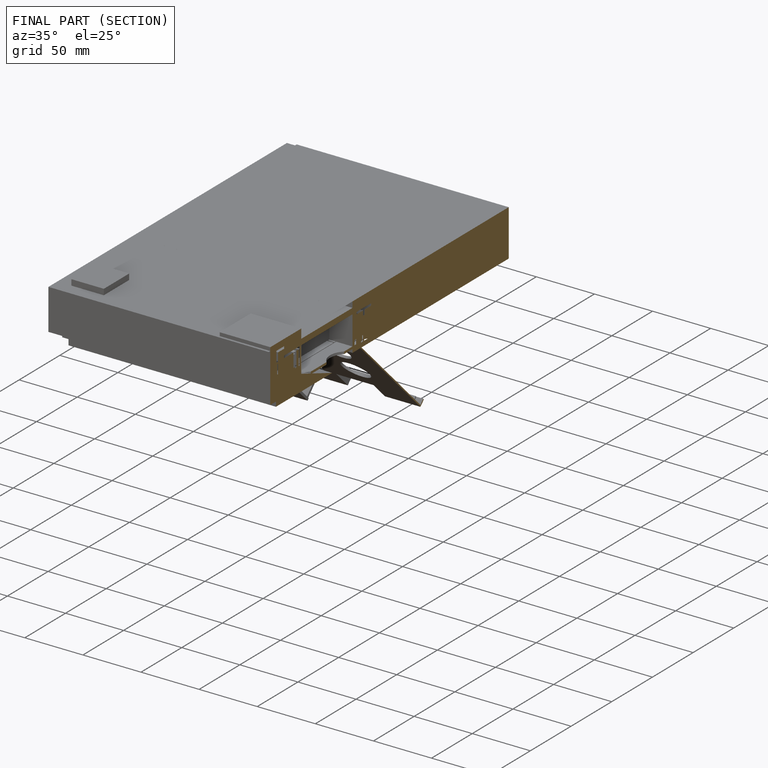
[diagram: finished part — half-section view (interior)]
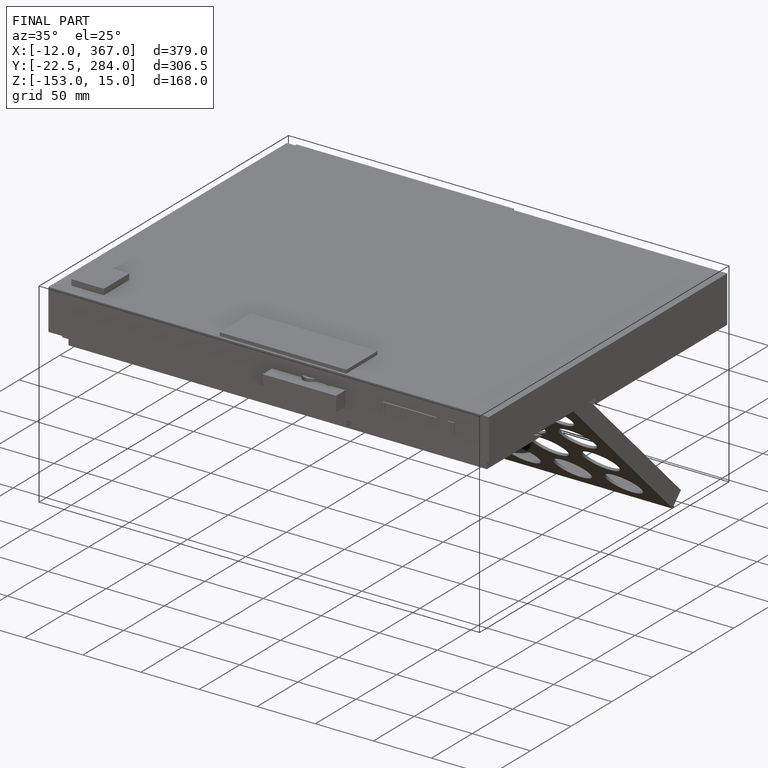
[diagram: finished part — iso view with bounding-box wireframe]
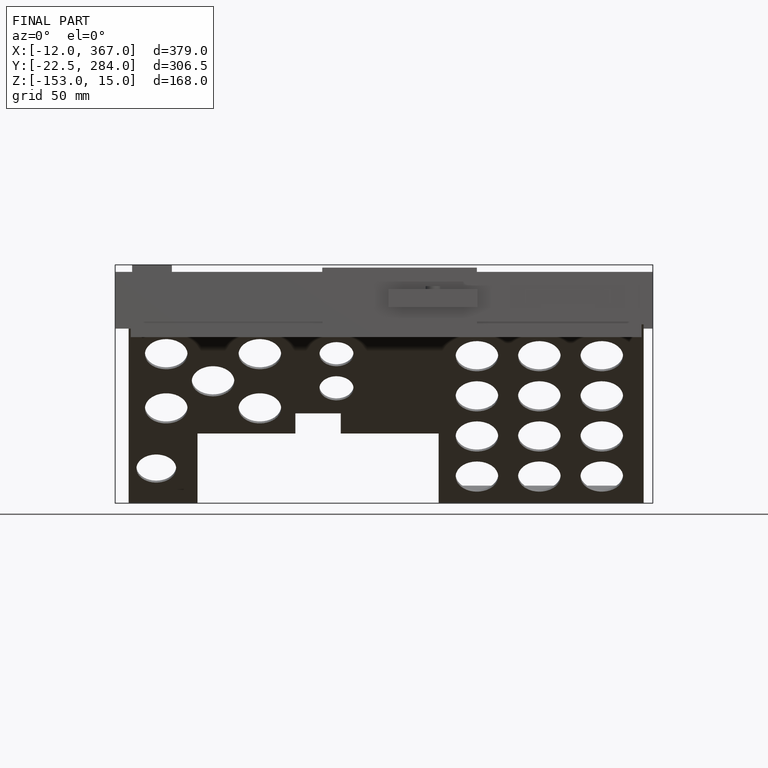
[diagram: finished part — front view with bounding-box wireframe]
